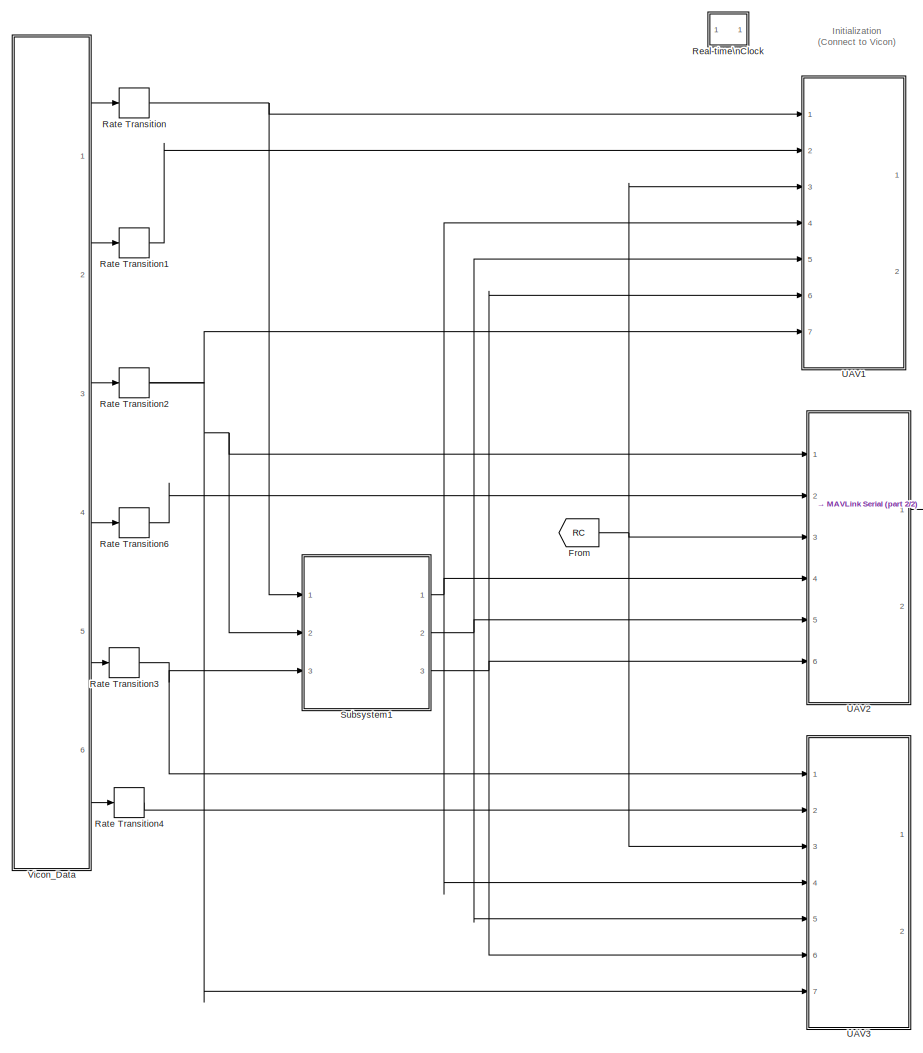
[diagram: root canvas - part 1/2, left side, full height]
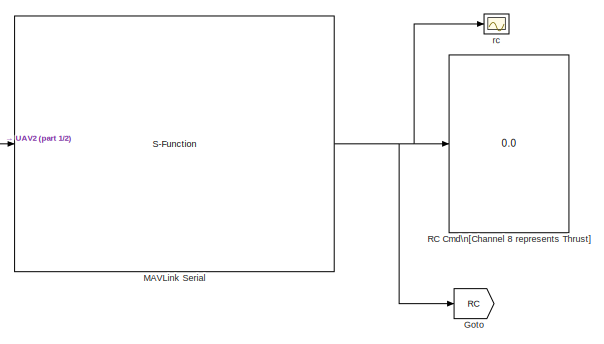
[diagram: root canvas - part 2/2, top right region]
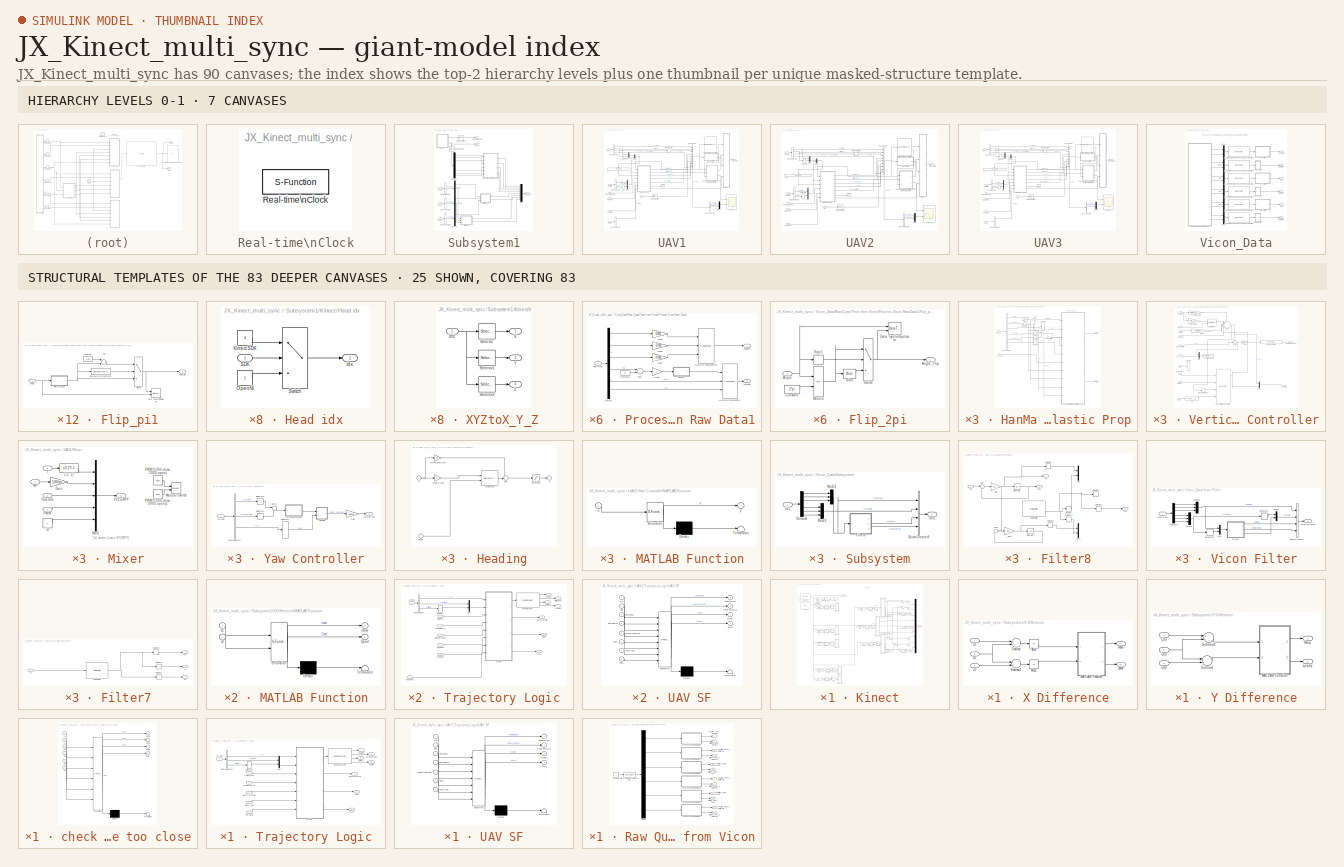
[diagram: thumbnail index - top-2 hierarchy levels (7 canvases) + 25 structural-template representatives of the remaining 83 canvases]
MODEL JX_Kinect_multi_sync
KIND model
CONFIG InitFcn = sample_time=0.005;%0.004;%0.0025;%0.02;\nDeltaT = 0.02;\ng = 9.81;\nH0 = g%0.3165;\nKl = 1;\n\nOmega_r = 1.6;%for Horizontal reference\nZeta_r = 1; %for Horizontal reference\nOmega = 1.8;%for Horizontal Control\nZeta = 0.5;    %for Horizontal Control\n\nOmega_h_r = 2.5; %for vertical reference\nZeta_h_r = 0.8;  %for vertical reference\nOmega_h = 2.7;    %for vertical control\nZeta_h = 0.8;        ...<+569ch>
BLOCK [From] From
  GotoTag = RC
  SID = 4
  TagVisibility = global
BLOCK [Goto] Goto
  GotoTag = RC
  SID = 5
  TagVisibility = global
BLOCK [S-Function] MAVLink Serial
  EnableBusSupport = off
  FunctionName = MAVLink_Interface_MultUAV
  MaskCallbackString = |||||
  MaskDisplay = % Block image\nimage(imread('10-inch Quad Heat Map.png'));\n\n%Label block\nfprintf('MAVLink Serial\\n%s\\n%dbps', COM_Port,  Baud_Rate)\n\n\n%Label input ports\n\nin = 1;\nif (Quad_1 == 1)\n    port_label('input', in, 'Quad 1');\n    in = in + 1;\nend\nif (Quad_2 == 1)\n    port_label('input', in, 'Quad 2');\n    in = in + 1;\nend\n\nif (Quad_3 == 1)\n    port_label('input', in, 'Quad 3');\n    i...<+141ch>
  MaskEnableString = on,on,on,on,on,on
  MaskIconFrame = on
  MaskIconOpaque = off
  MaskIconRotate = none
  MaskIconUnits = autoscale
  MaskInitialization = MSG_ID_NUM_INPUT = [uint8(196) uint8(197) uint8(198)];\nMSG_ID_NAME_INPUT = [Quad_1 Quad_2 Quad_3];\n\nMSG_ID_NUM_OUTPUT = [uint8(34)];\nMSG_ID_NAME_OUTPUT = [RC_SCALED];\n\nidx_input = find(MSG_ID_NAME_INPUT);\nMSG_INPUT = MSG_ID_NUM_INPUT(idx_input);\n\nidx_output = find(MSG_ID_NAME_OUTPUT);\nMSG_OUTPUT = MSG_ID_NUM_OUTPUT(idx_output);
  MaskPortRotate = default
  MaskPromptString = COM Port|Baud Rate|RC CHANNELS SCALED|Quad No 1|Quad No 2|Quad No 3
  MaskStyleString = edit,edit,checkbox,checkbox,checkbox,checkbox
  MaskTabNameString = Setting,Setting,Output Message,Input Message,Input Message,Input Message
  MaskToolTipString = on,on,on,on,on,on
  MaskTunableValueString = on,on,on,on,on,on
  MaskValueString = 'COM6'|57600|on|off|on|off
  MaskVariables = COM_Port=@1;Baud_Rate=@2;RC_SCALED=@3;Quad_1=@4;Quad_2=@5;Quad_3=@6;
  MaskVisibilityString = on,on,on,on,on,on
  Parameters = COM_Port,Baud_Rate,MSG_INPUT,MSG_OUTPUT
  Ports = [1, 1]
  SID = 54
BLOCK [Display] RC Cmd\n[Channel 8 represents Thrust]
  Decimation = 1
  Lockdown = off
  Ports = [1]
  SID = 55
BLOCK [RateTransition] Rate Transition
  OutPortSampleTime = 0.02
  SID = 1518
BLOCK [RateTransition] Rate Transition1
  OutPortSampleTime = 0.02
  SID = 1519
BLOCK [RateTransition] Rate Transition2
  OutPortSampleTime = 0.02
  SID = 1751
BLOCK [RateTransition] Rate Transition3
  OutPortSampleTime = 0.02
  SID = 4017
BLOCK [RateTransition] Rate Transition4
  OutPortSampleTime = 0.02
  SID = 4264
BLOCK [RateTransition] Rate Transition6
  OutPortSampleTime = 0.02
  SID = 3814
BLOCK [SubSystem] Real-time\nClock
  FunctionWithSeparateData = off
  MaskCallbackString = |
  MaskDescription = Real-time Synchronization Block
  MaskDisplay = plot(0,0,100,100,[40,60,60,54,54,64,69,76,82,77,81,83,83,81,78,74,70,64,57,49,41,35,32,30,30,31,34,40,47,47,40,40],[90,90,85,85,80,79,76,87,80,70,64,57,49,41,33,28,24,22,21,23,25,31,37,46,56,65,73,78,80,85,85,90],[69,53,53],[64,50,73])
  MaskEnableString = on,on
  MaskHelp = This block synchronizes simulation time with the PC real-time clock or UNIX system clock. The first dialog entry is the period at which the clock is checked to insure real-time synchronization. The second dialog entry is the number of seconds that the simulation time must be within real-time before a warning is printed.
  MaskHideContents = off
  MaskIconFrame = on
  MaskIconOpaque = on
  MaskIconRotate = none
  MaskIconUnits = autoscale
  MaskPortRotate = default
  MaskPromptString = Synchronize with real-time every n seconds:|Real-time warning tolerance (seconds):
  MaskStyleString = edit,edit
  MaskToolTipString = on,on
  MaskTunableValueString = on,on
  MaskType = Real-time Clock
  MaskValueString = 0.02|1
  MaskVariables = sample_time=@1;tolerance=@2;
  MaskVisibilityString = on,on
  MinAlgLoopOccurrences = off
  Opaque = off
  Ports = []
  PropExecContextOutsideSubsystem = off
  RTWSystemCode = Auto
  RequestExecContextInheritance = off
  SID = 607
  ShowPortLabels = none
BLOCK [S-Function] Real-time\nClock/Real-time\nClock
  EnableBusSupport = off
  FunctionName = rtclock
  Parameters = sample_time, tolerance
  Ports = []
  SID = 608
BLOCK [SubSystem] Subsystem1
  FunctionWithSeparateData = off
  MaskHideContents = off
  MinAlgLoopOccurrences = off
  Opaque = off
  Ports = [3, 3]
  PropExecContextOutsideSubsystem = off
  RTWSystemCode = Auto
  RequestExecContextInheritance = off
  SID = 4082
BLOCK [BusSelector] Subsystem1/Bus\nSelector
  OutputSignals = Position
  Ports = [1, 1]
  SID = 4093
BLOCK [BusSelector] Subsystem1/Bus\nSelector1
  OutputSignals = Position
  Ports = [1, 1]
  SID = 4094
BLOCK [BusSelector] Subsystem1/Bus\nSelector2
  OutputSignals = Position
  Ports = [1, 1]
  SID = 4095
BLOCK [Demux] Subsystem1/Demux
  DisplayOption = bar
  Outputs = 3
  Ports = [1, 3]
  SID = 4096
BLOCK [Demux] Subsystem1/Demux1
  DisplayOption = bar
  Outputs = 3
  Ports = [1, 3]
  SID = 4097
BLOCK [Demux] Subsystem1/Demux2
  DisplayOption = bar
  Outputs = 3
  Ports = [1, 3]
  SID = 4098
BLOCK [Demux] Subsystem1/Demux3
  DisplayOption = bar
  Outputs = 9
  Ports = [1, 9]
  SID = 4099
BLOCK [Outport] Subsystem1/KPos
  IconDisplay = Port number
  Port = 2
  SID = 4103
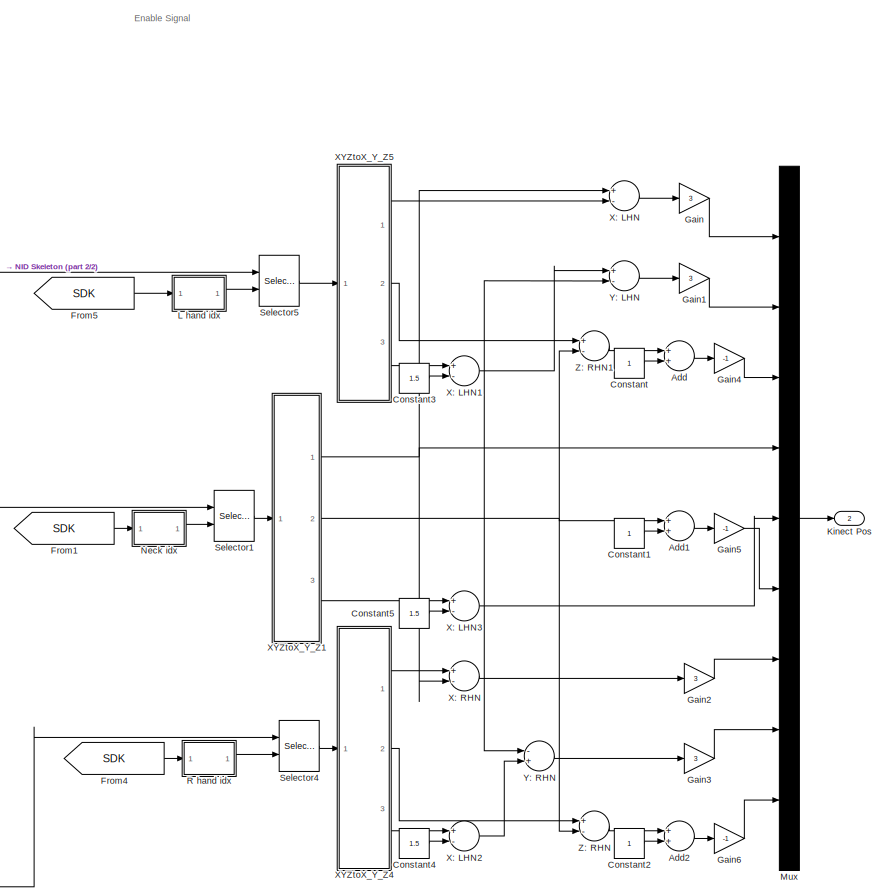
[diagram: Subsystem1/Kinect - part 1/2, middle right region]
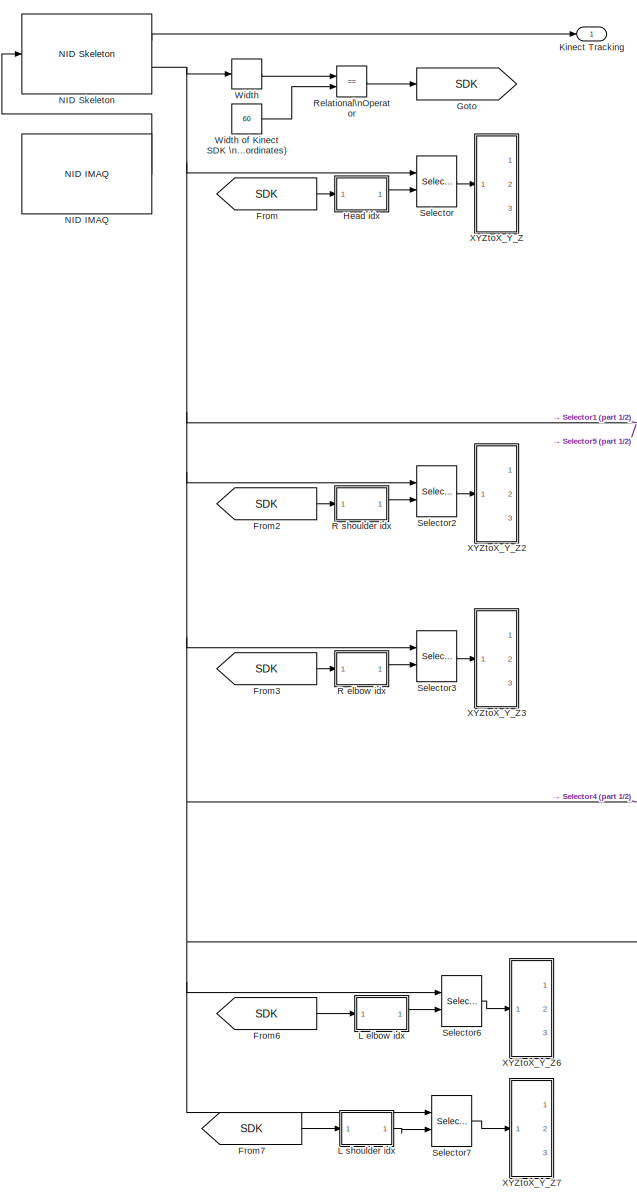
[diagram: Subsystem1/Kinect - part 2/2, left side, full height]
BLOCK [SubSystem] Subsystem1/Kinect
  FunctionWithSeparateData = off
  MaskHideContents = off
  MinAlgLoopOccurrences = off
  Opaque = off
  Ports = [0, 2]
  PropExecContextOutsideSubsystem = off
  RTWSystemCode = Auto
  RequestExecContextInheritance = off
  SID = 2087
BLOCK [Outport] Subsystem1/Kinect Tracking
  IconDisplay = Port number
  SID = 4083
BLOCK [Sum] Subsystem1/Kinect/Add
  InputSameDT = off
  OutDataTypeStr = Inherit: Inherit via internal rule
  Ports = [2, 1]
  SID = 3991
  SaturateOnIntegerOverflow = off
BLOCK [Sum] Subsystem1/Kinect/Add1
  InputSameDT = off
  OutDataTypeStr = Inherit: Inherit via internal rule
  Ports = [2, 1]
  SID = 3993
  SaturateOnIntegerOverflow = off
BLOCK [Sum] Subsystem1/Kinect/Add2
  InputSameDT = off
  OutDataTypeStr = Inherit: Inherit via internal rule
  Ports = [2, 1]
  SID = 3995
  SaturateOnIntegerOverflow = off
BLOCK [Constant] Subsystem1/Kinect/Constant
  SID = 3992
BLOCK [Constant] Subsystem1/Kinect/Constant1
  SID = 3994
BLOCK [Constant] Subsystem1/Kinect/Constant2
  SID = 3996
BLOCK [Constant] Subsystem1/Kinect/Constant3
  SID = 4509
  Value = 1.5
BLOCK [Constant] Subsystem1/Kinect/Constant4
  SID = 4511
  Value = 1.5
BLOCK [Constant] Subsystem1/Kinect/Constant5
  SID = 4513
  Value = 1.5
BLOCK [From] Subsystem1/Kinect/From
  GotoTag = SDK
  SID = 2120
BLOCK [From] Subsystem1/Kinect/From1
  GotoTag = SDK
  SID = 2121
BLOCK [From] Subsystem1/Kinect/From2
  GotoTag = SDK
  SID = 2122
BLOCK [From] Subsystem1/Kinect/From3
  GotoTag = SDK
  SID = 2123
BLOCK [From] Subsystem1/Kinect/From4
  GotoTag = SDK
  SID = 2124
BLOCK [From] Subsystem1/Kinect/From5
  GotoTag = SDK
  SID = 2125
BLOCK [From] Subsystem1/Kinect/From6
  GotoTag = SDK
  SID = 2126
BLOCK [From] Subsystem1/Kinect/From7
  GotoTag = SDK
  SID = 2127
BLOCK [Gain] Subsystem1/Kinect/Gain
  Gain = 3
  OutDataTypeStr = Inherit: Inherit via internal rule
  ParamDataTypeStr = Inherit: Inherit via internal rule
  SID = 4500
  SaturateOnIntegerOverflow = off
BLOCK [Gain] Subsystem1/Kinect/Gain1
  Gain = 3
  OutDataTypeStr = Inherit: Inherit via internal rule
  ParamDataTypeStr = Inherit: Inherit via internal rule
  SID = 4501
  SaturateOnIntegerOverflow = off
BLOCK [Gain] Subsystem1/Kinect/Gain2
  Gain = 3
  OutDataTypeStr = Inherit: Inherit via internal rule
  ParamDataTypeStr = Inherit: Inherit via internal rule
  SID = 4502
  SaturateOnIntegerOverflow = off
BLOCK [Gain] Subsystem1/Kinect/Gain3
  Gain = 3
  OutDataTypeStr = Inherit: Inherit via internal rule
  ParamDataTypeStr = Inherit: Inherit via internal rule
  SID = 4503
  SaturateOnIntegerOverflow = off
BLOCK [Gain] Subsystem1/Kinect/Gain4
  Gain = -1
  OutDataTypeStr = Inherit: Inherit via internal rule
  ParamDataTypeStr = Inherit: Inherit via internal rule
  SID = 4504
  SaturateOnIntegerOverflow = off
BLOCK [Gain] Subsystem1/Kinect/Gain5
  Gain = -1
  OutDataTypeStr = Inherit: Inherit via internal rule
  ParamDataTypeStr = Inherit: Inherit via internal rule
  SID = 4505
  SaturateOnIntegerOverflow = off
BLOCK [Gain] Subsystem1/Kinect/Gain6
  Gain = -1
  OutDataTypeStr = Inherit: Inherit via internal rule
  ParamDataTypeStr = Inherit: Inherit via internal rule
  SID = 4506
  SaturateOnIntegerOverflow = off
BLOCK [Goto] Subsystem1/Kinect/Goto
  GotoTag = SDK
  SID = 2128
  TagVisibility = local
BLOCK [SubSystem] Subsystem1/Kinect/Head idx
  FunctionWithSeparateData = off
  MaskHideContents = off
  MinAlgLoopOccurrences = off
  Opaque = off
  Ports = [1, 1]
  PropExecContextOutsideSubsystem = off
  RTWSystemCode = Auto
  RequestExecContextInheritance = off
  SID = 2173
BLOCK [Outport] Subsystem1/Kinect/Head idx/Idx
  IconDisplay = Port number
  SID = 2178
BLOCK [Constant] Subsystem1/Kinect/Head idx/Kinect SDK
  SID = 2175
  Value = 4
BLOCK [Constant] Subsystem1/Kinect/Head idx/OpenNI
  SID = 2176
BLOCK [Inport] Subsystem1/Kinect/Head idx/SDK
  IconDisplay = Port number
  SID = 2174
BLOCK [Switch] Subsystem1/Kinect/Head idx/Switch
  Criteria = u2 ~= 0
  InputSameDT = off
  SID = 2177
  SaturateOnIntegerOverflow = off
BLOCK [Outport] Subsystem1/Kinect/Kinect Pos
  IconDisplay = Port number
  Port = 2
  SID = 3971
BLOCK [Outport] Subsystem1/Kinect/Kinect Tracking
  IconDisplay = Port number
  SID = 4047
BLOCK [SubSystem] Subsystem1/Kinect/L elbow idx
  FunctionWithSeparateData = off
  MaskHideContents = off
  MinAlgLoopOccurrences = off
  Opaque = off
  Ports = [1, 1]
  PropExecContextOutsideSubsystem = off
  RTWSystemCode = Auto
  RequestExecContextInheritance = off
  SID = 2182
BLOCK [Outport] Subsystem1/Kinect/L elbow idx/Idx
  IconDisplay = Port number
  SID = 2187
BLOCK [Constant] Subsystem1/Kinect/L elbow idx/Kinect SDK
  SID = 2184
  Value = 6
BLOCK [Constant] Subsystem1/Kinect/L elbow idx/OpenNI
  SID = 2185
  Value = 8
BLOCK [Inport] Subsystem1/Kinect/L elbow idx/SDK
  IconDisplay = Port number
  SID = 2183
BLOCK [Switch] Subsystem1/Kinect/L elbow idx/Switch
  Criteria = u2 ~= 0
  InputSameDT = off
  SID = 2186
  SaturateOnIntegerOverflow = off
BLOCK [SubSystem] Subsystem1/Kinect/L hand idx
  FunctionWithSeparateData = off
  MaskHideContents = off
  MinAlgLoopOccurrences = off
  Opaque = off
  Ports = [1, 1]
  PropExecContextOutsideSubsystem = off
  RTWSystemCode = Auto
  RequestExecContextInheritance = off
  SID = 2191
BLOCK [Outport] Subsystem1/Kinect/L hand idx/Idx
  IconDisplay = Port number
  SID = 2196
BLOCK [Constant] Subsystem1/Kinect/L hand idx/Kinect SDK
  SID = 2193
  Value = 8
BLOCK [Constant] Subsystem1/Kinect/L hand idx/OpenNI
  SID = 2194
  Value = 9
BLOCK [Inport] Subsystem1/Kinect/L hand idx/SDK
  IconDisplay = Port number
  SID = 2192
BLOCK [Switch] Subsystem1/Kinect/L hand idx/Switch
  Criteria = u2 ~= 0
  InputSameDT = off
  SID = 2195
  SaturateOnIntegerOverflow = off
BLOCK [SubSystem] Subsystem1/Kinect/L shoulder idx
  FunctionWithSeparateData = off
  MaskHideContents = off
  MinAlgLoopOccurrences = off
  Opaque = off
  Ports = [1, 1]
  PropExecContextOutsideSubsystem = off
  RTWSystemCode = Auto
  RequestExecContextInheritance = off
  SID = 2200
BLOCK [Outport] Subsystem1/Kinect/L shoulder idx/Idx
  IconDisplay = Port number
  SID = 2205
BLOCK [Constant] Subsystem1/Kinect/L shoulder idx/Kinect SDK
  SID = 2202
  Value = 5
BLOCK [Constant] Subsystem1/Kinect/L shoulder idx/OpenNI
  SID = 2203
  Value = 7
BLOCK [Inport] Subsystem1/Kinect/L shoulder idx/SDK
  IconDisplay = Port number
  SID = 2201
BLOCK [Switch] Subsystem1/Kinect/L shoulder idx/Switch
  Criteria = u2 ~= 0
  InputSameDT = off
  SID = 2204
  SaturateOnIntegerOverflow = off
BLOCK [Mux] Subsystem1/Kinect/Mux
  DisplayOption = bar
  Inputs = 9
  Ports = [9, 1]
  SID = 4046
BLOCK [Reference] Subsystem1/Kinect/NID IMAQ  REF=nid_lib/NID IMAQ
  Ports = [0, 1]
  SID = 2207
  SourceBlock = nid_lib/NID IMAQ
  SourceType = NID IMAQ
  angle = 0
  angle_input = off
  angle_read = off
  imaq_depth = off
  imaq_image = off
  imaq_ir = off
  imaq_motion = off
  imaq_sample_time = 1/25
  imaq_skeleton = on
  infer_skeleton = off
  mirror_image = off
  near_mode = off
  needPsiPose = off
  res_fps = VGA (640x480): 30 FPS
  seated_mode = off
  skeleton_smooth = [0.5 0.5 0.5 0.05 0.04]
  view_point = off
BLOCK [Reference] Subsystem1/Kinect/NID Skeleton  REF=nid_lib/NID Skeleton
  Ports = [1, 2]
  SID = 2208
  SourceBlock = nid_lib/NID Skeleton
  SourceType = NID Skeleton
  conv_XYZ_RW = on
  num_of_skeleton_tracking = 1
  viewer = off
BLOCK [SubSystem] Subsystem1/Kinect/Neck idx
  FunctionWithSeparateData = off
  MaskHideContents = off
  MinAlgLoopOccurrences = off
  Opaque = off
  Ports = [1, 1]
  PropExecContextOutsideSubsystem = off
  RTWSystemCode = Auto
  RequestExecContextInheritance = off
  SID = 2213
BLOCK [Outport] Subsystem1/Kinect/Neck idx/Idx
  IconDisplay = Port number
  SID = 2218
BLOCK [Constant] Subsystem1/Kinect/Neck idx/Kinect SDK
  SID = 2215
  Value = 3
BLOCK [Constant] Subsystem1/Kinect/Neck idx/OpenNI
  SID = 2216
  Value = 2
BLOCK [Inport] Subsystem1/Kinect/Neck idx/SDK
  IconDisplay = Port number
  SID = 2214
BLOCK [Switch] Subsystem1/Kinect/Neck idx/Switch
  Criteria = u2 ~= 0
  InputSameDT = off
  SID = 2217
  SaturateOnIntegerOverflow = off
BLOCK [SubSystem] Subsystem1/Kinect/R elbow idx
  FunctionWithSeparateData = off
  MaskHideContents = off
  MinAlgLoopOccurrences = off
  Opaque = off
  Ports = [1, 1]
  PropExecContextOutsideSubsystem = off
  RTWSystemCode = Auto
  RequestExecContextInheritance = off
  SID = 2229
BLOCK [Outport] Subsystem1/Kinect/R elbow idx/Idx
  IconDisplay = Port number
  SID = 2234
BLOCK [Constant] Subsystem1/Kinect/R elbow idx/Kinect SDK
  SID = 2231
  Value = 10
BLOCK [Constant] Subsystem1/Kinect/R elbow idx/OpenNI
  SID = 2232
  Value = 5
BLOCK [Inport] Subsystem1/Kinect/R elbow idx/SDK
  IconDisplay = Port number
  SID = 2230
BLOCK [Switch] Subsystem1/Kinect/R elbow idx/Switch
  Criteria = u2 ~= 0
  InputSameDT = off
  SID = 2233
  SaturateOnIntegerOverflow = off
BLOCK [SubSystem] Subsystem1/Kinect/R hand idx
  FunctionWithSeparateData = off
  MaskHideContents = off
  MinAlgLoopOccurrences = off
  Opaque = off
  Ports = [1, 1]
  PropExecContextOutsideSubsystem = off
  RTWSystemCode = Auto
  RequestExecContextInheritance = off
  SID = 2238
BLOCK [Outport] Subsystem1/Kinect/R hand idx/Idx
  IconDisplay = Port number
  SID = 2243
BLOCK [Constant] Subsystem1/Kinect/R hand idx/Kinect SDK
  SID = 2240
  Value = 12
BLOCK [Constant] Subsystem1/Kinect/R hand idx/OpenNI
  SID = 2241
  Value = 6
BLOCK [Inport] Subsystem1/Kinect/R hand idx/SDK
  IconDisplay = Port number
  SID = 2239
BLOCK [Switch] Subsystem1/Kinect/R hand idx/Switch
  Criteria = u2 ~= 0
  InputSameDT = off
  SID = 2242
  SaturateOnIntegerOverflow = off
BLOCK [SubSystem] Subsystem1/Kinect/R shoulder idx
  FunctionWithSeparateData = off
  MaskHideContents = off
  MinAlgLoopOccurrences = off
  Opaque = off
  Ports = [1, 1]
  PropExecContextOutsideSubsystem = off
  RTWSystemCode = Auto
  RequestExecContextInheritance = off
  SID = 2248
BLOCK [Outport] Subsystem1/Kinect/R shoulder idx/Idx
  IconDisplay = Port number
  SID = 2253
BLOCK [Constant] Subsystem1/Kinect/R shoulder idx/Kinect SDK
  SID = 2250
  Value = 9
BLOCK [Constant] Subsystem1/Kinect/R shoulder idx/OpenNI
  SID = 2251
  Value = 4
BLOCK [Inport] Subsystem1/Kinect/R shoulder idx/SDK
  IconDisplay = Port number
  SID = 2249
BLOCK [Switch] Subsystem1/Kinect/R shoulder idx/Switch
  Criteria = u2 ~= 0
  InputSameDT = off
  SID = 2252
  SaturateOnIntegerOverflow = off
BLOCK [RelationalOperator] Subsystem1/Kinect/Relational\nOperator
  InputSameDT = off
  Operator = ==
  OutDataTypeStr = boolean
  Ports = [2, 1]
  SID = 2254
BLOCK [Selector] Subsystem1/Kinect/Selector
  IndexOptions = Select all,Index vector (port),Select all
  Indices = [1 3],1,1
  InputPortWidth = 3
  NumberOfDimensions = 3
  OutputSizes = 1,1,1
  Ports = [2, 1]
  SID = 2259
BLOCK [Selector] Subsystem1/Kinect/Selector1
  IndexOptions = Select all,Index vector (port),Select all
  Indices = [1 3],1,1
  InputPortWidth = 3
  NumberOfDimensions = 3
  OutputSizes = 1,1,1
  Ports = [2, 1]
  SID = 2260
BLOCK [Selector] Subsystem1/Kinect/Selector2
  IndexOptions = Select all,Index vector (port),Select all
  Indices = [1 3],1,1
  InputPortWidth = 3
  NumberOfDimensions = 3
  OutputSizes = 1,1,1
  Ports = [2, 1]
  SID = 2261
BLOCK [Selector] Subsystem1/Kinect/Selector3
  IndexOptions = Select all,Index vector (port),Select all
  Indices = [1 3],1,1
  InputPortWidth = 3
  NumberOfDimensions = 3
  OutputSizes = 1,1,1
  Ports = [2, 1]
  SID = 2262
BLOCK [Selector] Subsystem1/Kinect/Selector4
  IndexOptions = Select all,Index vector (port),Select all
  Indices = [1 3],1,1
  InputPortWidth = 3
  NumberOfDimensions = 3
  OutputSizes = 1,1,1
  Ports = [2, 1]
  SID = 2263
BLOCK [Selector] Subsystem1/Kinect/Selector5
  IndexOptions = Select all,Index vector (port),Select all
  Indices = [1 3],1,1
  InputPortWidth = 3
  NumberOfDimensions = 3
  OutputSizes = 1,1,1
  Ports = [2, 1]
  SID = 2264
BLOCK [Selector] Subsystem1/Kinect/Selector6
  IndexOptions = Select all,Index vector (port),Select all
  Indices = [1 3],1,1
  InputPortWidth = 3
  NumberOfDimensions = 3
  OutputSizes = 1,1,1
  Ports = [2, 1]
  SID = 2265
BLOCK [Selector] Subsystem1/Kinect/Selector7
  IndexOptions = Select all,Index vector (port),Select all
  Indices = [1 3],1,1
  InputPortWidth = 3
  NumberOfDimensions = 3
  OutputSizes = 1,1,1
  Ports = [2, 1]
  SID = 2266
BLOCK [Width] Subsystem1/Kinect/Width
  SID = 2478
BLOCK [Constant] Subsystem1/Kinect/Width of Kinect SDK \n(20 joints x 3 coordinates)
  SID = 2479
  Value = 60
BLOCK [Sum] Subsystem1/Kinect/X: LHN
  InputSameDT = off
  Inputs = +-
  OutDataTypeStr = Inherit: Inherit via internal rule
  Ports = [2, 1]
  SID = 4494
  SaturateOnIntegerOverflow = off
BLOCK [Sum] Subsystem1/Kinect/X: LHN1
  InputSameDT = off
  Inputs = +-
  OutDataTypeStr = Inherit: Inherit via internal rule
  Ports = [2, 1]
  SID = 4508
  SaturateOnIntegerOverflow = off
BLOCK [Sum] Subsystem1/Kinect/X: LHN2
  InputSameDT = off
  Inputs = +-
  OutDataTypeStr = Inherit: Inherit via internal rule
  Ports = [2, 1]
  SID = 4510
  SaturateOnIntegerOverflow = off
BLOCK [Sum] Subsystem1/Kinect/X: LHN3
  InputSameDT = off
  Inputs = +-
  OutDataTypeStr = Inherit: Inherit via internal rule
  Ports = [2, 1]
  SID = 4512
  SaturateOnIntegerOverflow = off
BLOCK [Sum] Subsystem1/Kinect/X: RHN
  InputSameDT = off
  Inputs = +-
  OutDataTypeStr = Inherit: Inherit via internal rule
  Ports = [2, 1]
  SID = 4495
  SaturateOnIntegerOverflow = off
BLOCK [SubSystem] Subsystem1/Kinect/XYZtoX_Y_Z
  FunctionWithSeparateData = off
  MaskHideContents = off
  MinAlgLoopOccurrences = off
  Opaque = off
  Ports = [1, 3]
  PropExecContextOutsideSubsystem = off
  RTWSystemCode = Auto
  RequestExecContextInheritance = off
  SID = 2480
BLOCK [Selector] Subsystem1/Kinect/XYZtoX_Y_Z/Selector
  IndexOptions = Index vector (dialog),Index vector (dialog),Index vector (dialog)
  Indices = 1,1,1
  InputPortWidth = 3
  NumberOfDimensions = 3
  OutputSizes = 1,1,1
  Ports = [1, 1]
  SID = 2482
BLOCK [Selector] Subsystem1/Kinect/XYZtoX_Y_Z/Selector1
  IndexOptions = Index vector (dialog),Index vector (dialog),Index vector (dialog)
  Indices = 1,1,2
  InputPortWidth = 3
  NumberOfDimensions = 3
  OutputSizes = 1,1,1
  Ports = [1, 1]
  SID = 2483
BLOCK [Selector] Subsystem1/Kinect/XYZtoX_Y_Z/Selector2
  IndexOptions = Index vector (dialog),Index vector (dialog),Index vector (dialog)
  Indices = 1,1,3
  InputPortWidth = 3
  NumberOfDimensions = 3
  OutputSizes = 1,1,1
  Ports = [1, 1]
  SID = 2484
BLOCK [Outport] Subsystem1/Kinect/XYZtoX_Y_Z/X
  IconDisplay = Port number
  SID = 2485
BLOCK [Inport] Subsystem1/Kinect/XYZtoX_Y_Z/XYZ
  IconDisplay = Port number
  SID = 2481
BLOCK [Outport] Subsystem1/Kinect/XYZtoX_Y_Z/Y
  IconDisplay = Port number
  Port = 2
  SID = 2486
BLOCK [Outport] Subsystem1/Kinect/XYZtoX_Y_Z/Z
  IconDisplay = Port number
  Port = 3
  SID = 2487
BLOCK [SubSystem] Subsystem1/Kinect/XYZtoX_Y_Z1
  FunctionWithSeparateData = off
  MaskHideContents = off
  MinAlgLoopOccurrences = off
  Opaque = off
  Ports = [1, 3]
  PropExecContextOutsideSubsystem = off
  RTWSystemCode = Auto
  RequestExecContextInheritance = off
  SID = 2488
BLOCK [Selector] Subsystem1/Kinect/XYZtoX_Y_Z1/Selector
  IndexOptions = Index vector (dialog),Index vector (dialog),Index vector (dialog)
  Indices = 1,1,1
  InputPortWidth = 3
  NumberOfDimensions = 3
  OutputSizes = 1,1,1
  Ports = [1, 1]
  SID = 2490
BLOCK [Selector] Subsystem1/Kinect/XYZtoX_Y_Z1/Selector1
  IndexOptions = Index vector (dialog),Index vector (dialog),Index vector (dialog)
  Indices = 1,1,2
  InputPortWidth = 3
  NumberOfDimensions = 3
  OutputSizes = 1,1,1
  Ports = [1, 1]
  SID = 2491
BLOCK [Selector] Subsystem1/Kinect/XYZtoX_Y_Z1/Selector2
  IndexOptions = Index vector (dialog),Index vector (dialog),Index vector (dialog)
  Indices = 1,1,3
  InputPortWidth = 3
  NumberOfDimensions = 3
  OutputSizes = 1,1,1
  Ports = [1, 1]
  SID = 2492
BLOCK [Outport] Subsystem1/Kinect/XYZtoX_Y_Z1/X
  IconDisplay = Port number
  SID = 2493
BLOCK [Inport] Subsystem1/Kinect/XYZtoX_Y_Z1/XYZ
  IconDisplay = Port number
  SID = 2489
BLOCK [Outport] Subsystem1/Kinect/XYZtoX_Y_Z1/Y
  IconDisplay = Port number
  Port = 2
  SID = 2494
BLOCK [Outport] Subsystem1/Kinect/XYZtoX_Y_Z1/Z
  IconDisplay = Port number
  Port = 3
  SID = 2495
BLOCK [SubSystem] Subsystem1/Kinect/XYZtoX_Y_Z2
  FunctionWithSeparateData = off
  MaskHideContents = off
  MinAlgLoopOccurrences = off
  Opaque = off
  Ports = [1, 3]
  PropExecContextOutsideSubsystem = off
  RTWSystemCode = Auto
  RequestExecContextInheritance = off
  SID = 2496
BLOCK [Selector] Subsystem1/Kinect/XYZtoX_Y_Z2/Selector
  IndexOptions = Index vector (dialog),Index vector (dialog),Index vector (dialog)
  Indices = 1,1,1
  InputPortWidth = 3
  NumberOfDimensions = 3
  OutputSizes = 1,1,1
  Ports = [1, 1]
  SID = 2498
BLOCK [Selector] Subsystem1/Kinect/XYZtoX_Y_Z2/Selector1
  IndexOptions = Index vector (dialog),Index vector (dialog),Index vector (dialog)
  Indices = 1,1,2
  InputPortWidth = 3
  NumberOfDimensions = 3
  OutputSizes = 1,1,1
  Ports = [1, 1]
  SID = 2499
BLOCK [Selector] Subsystem1/Kinect/XYZtoX_Y_Z2/Selector2
  IndexOptions = Index vector (dialog),Index vector (dialog),Index vector (dialog)
  Indices = 1,1,3
  InputPortWidth = 3
  NumberOfDimensions = 3
  OutputSizes = 1,1,1
  Ports = [1, 1]
  SID = 2500
BLOCK [Outport] Subsystem1/Kinect/XYZtoX_Y_Z2/X
  IconDisplay = Port number
  SID = 2501
BLOCK [Inport] Subsystem1/Kinect/XYZtoX_Y_Z2/XYZ
  IconDisplay = Port number
  SID = 2497
BLOCK [Outport] Subsystem1/Kinect/XYZtoX_Y_Z2/Y
  IconDisplay = Port number
  Port = 2
  SID = 2502
BLOCK [Outport] Subsystem1/Kinect/XYZtoX_Y_Z2/Z
  IconDisplay = Port number
  Port = 3
  SID = 2503
BLOCK [SubSystem] Subsystem1/Kinect/XYZtoX_Y_Z3
  FunctionWithSeparateData = off
  MaskHideContents = off
  MinAlgLoopOccurrences = off
  Opaque = off
  Ports = [1, 3]
  PropExecContextOutsideSubsystem = off
  RTWSystemCode = Auto
  RequestExecContextInheritance = off
  SID = 2504
BLOCK [Selector] Subsystem1/Kinect/XYZtoX_Y_Z3/Selector
  IndexOptions = Index vector (dialog),Index vector (dialog),Index vector (dialog)
  Indices = 1,1,1
  InputPortWidth = 3
  NumberOfDimensions = 3
  OutputSizes = 1,1,1
  Ports = [1, 1]
  SID = 2506
BLOCK [Selector] Subsystem1/Kinect/XYZtoX_Y_Z3/Selector1
  IndexOptions = Index vector (dialog),Index vector (dialog),Index vector (dialog)
  Indices = 1,1,2
  InputPortWidth = 3
  NumberOfDimensions = 3
  OutputSizes = 1,1,1
  Ports = [1, 1]
  SID = 2507
BLOCK [Selector] Subsystem1/Kinect/XYZtoX_Y_Z3/Selector2
  IndexOptions = Index vector (dialog),Index vector (dialog),Index vector (dialog)
  Indices = 1,1,3
  InputPortWidth = 3
  NumberOfDimensions = 3
  OutputSizes = 1,1,1
  Ports = [1, 1]
  SID = 2508
BLOCK [Outport] Subsystem1/Kinect/XYZtoX_Y_Z3/X
  IconDisplay = Port number
  SID = 2509
BLOCK [Inport] Subsystem1/Kinect/XYZtoX_Y_Z3/XYZ
  IconDisplay = Port number
  SID = 2505
BLOCK [Outport] Subsystem1/Kinect/XYZtoX_Y_Z3/Y
  IconDisplay = Port number
  Port = 2
  SID = 2510
BLOCK [Outport] Subsystem1/Kinect/XYZtoX_Y_Z3/Z
  IconDisplay = Port number
  Port = 3
  SID = 2511
BLOCK [SubSystem] Subsystem1/Kinect/XYZtoX_Y_Z4
  FunctionWithSeparateData = off
  MaskHideContents = off
  MinAlgLoopOccurrences = off
  Opaque = off
  Ports = [1, 3]
  PropExecContextOutsideSubsystem = off
  RTWSystemCode = Auto
  RequestExecContextInheritance = off
  SID = 2512
BLOCK [Selector] Subsystem1/Kinect/XYZtoX_Y_Z4/Selector
  IndexOptions = Index vector (dialog),Index vector (dialog),Index vector (dialog)
  Indices = 1,1,1
  InputPortWidth = 3
  NumberOfDimensions = 3
  OutputSizes = 1,1,1
  Ports = [1, 1]
  SID = 2514
BLOCK [Selector] Subsystem1/Kinect/XYZtoX_Y_Z4/Selector1
  IndexOptions = Index vector (dialog),Index vector (dialog),Index vector (dialog)
  Indices = 1,1,2
  InputPortWidth = 3
  NumberOfDimensions = 3
  OutputSizes = 1,1,1
  Ports = [1, 1]
  SID = 2515
BLOCK [Selector] Subsystem1/Kinect/XYZtoX_Y_Z4/Selector2
  IndexOptions = Index vector (dialog),Index vector (dialog),Index vector (dialog)
  Indices = 1,1,3
  InputPortWidth = 3
  NumberOfDimensions = 3
  OutputSizes = 1,1,1
  Ports = [1, 1]
  SID = 2516
BLOCK [Outport] Subsystem1/Kinect/XYZtoX_Y_Z4/X
  IconDisplay = Port number
  SID = 2517
BLOCK [Inport] Subsystem1/Kinect/XYZtoX_Y_Z4/XYZ
  IconDisplay = Port number
  SID = 2513
BLOCK [Outport] Subsystem1/Kinect/XYZtoX_Y_Z4/Y
  IconDisplay = Port number
  Port = 2
  SID = 2518
BLOCK [Outport] Subsystem1/Kinect/XYZtoX_Y_Z4/Z
  IconDisplay = Port number
  Port = 3
  SID = 2519
BLOCK [SubSystem] Subsystem1/Kinect/XYZtoX_Y_Z5
  FunctionWithSeparateData = off
  MaskHideContents = off
  MinAlgLoopOccurrences = off
  Opaque = off
  Ports = [1, 3]
  PropExecContextOutsideSubsystem = off
  RTWSystemCode = Auto
  RequestExecContextInheritance = off
  SID = 2520
BLOCK [Selector] Subsystem1/Kinect/XYZtoX_Y_Z5/Selector
  IndexOptions = Index vector (dialog),Index vector (dialog),Index vector (dialog)
  Indices = 1,1,1
  InputPortWidth = 3
  NumberOfDimensions = 3
  OutputSizes = 1,1,1
  Ports = [1, 1]
  SID = 2522
BLOCK [Selector] Subsystem1/Kinect/XYZtoX_Y_Z5/Selector1
  IndexOptions = Index vector (dialog),Index vector (dialog),Index vector (dialog)
  Indices = 1,1,2
  InputPortWidth = 3
  NumberOfDimensions = 3
  OutputSizes = 1,1,1
  Ports = [1, 1]
  SID = 2523
BLOCK [Selector] Subsystem1/Kinect/XYZtoX_Y_Z5/Selector2
  IndexOptions = Index vector (dialog),Index vector (dialog),Index vector (dialog)
  Indices = 1,1,3
  InputPortWidth = 3
  NumberOfDimensions = 3
  OutputSizes = 1,1,1
  Ports = [1, 1]
  SID = 2524
BLOCK [Outport] Subsystem1/Kinect/XYZtoX_Y_Z5/X
  IconDisplay = Port number
  SID = 2525
BLOCK [Inport] Subsystem1/Kinect/XYZtoX_Y_Z5/XYZ
  IconDisplay = Port number
  SID = 2521
BLOCK [Outport] Subsystem1/Kinect/XYZtoX_Y_Z5/Y
  IconDisplay = Port number
  Port = 2
  SID = 2526
BLOCK [Outport] Subsystem1/Kinect/XYZtoX_Y_Z5/Z
  IconDisplay = Port number
  Port = 3
  SID = 2527
BLOCK [SubSystem] Subsystem1/Kinect/XYZtoX_Y_Z6
  FunctionWithSeparateData = off
  MaskHideContents = off
  MinAlgLoopOccurrences = off
  Opaque = off
  Ports = [1, 3]
  PropExecContextOutsideSubsystem = off
  RTWSystemCode = Auto
  RequestExecContextInheritance = off
  SID = 2528
BLOCK [Selector] Subsystem1/Kinect/XYZtoX_Y_Z6/Selector
  IndexOptions = Index vector (dialog),Index vector (dialog),Index vector (dialog)
  Indices = 1,1,1
  InputPortWidth = 3
  NumberOfDimensions = 3
  OutputSizes = 1,1,1
  Ports = [1, 1]
  SID = 2530
BLOCK [Selector] Subsystem1/Kinect/XYZtoX_Y_Z6/Selector1
  IndexOptions = Index vector (dialog),Index vector (dialog),Index vector (dialog)
  Indices = 1,1,2
  InputPortWidth = 3
  NumberOfDimensions = 3
  OutputSizes = 1,1,1
  Ports = [1, 1]
  SID = 2531
BLOCK [Selector] Subsystem1/Kinect/XYZtoX_Y_Z6/Selector2
  IndexOptions = Index vector (dialog),Index vector (dialog),Index vector (dialog)
  Indices = 1,1,3
  InputPortWidth = 3
  NumberOfDimensions = 3
  OutputSizes = 1,1,1
  Ports = [1, 1]
  SID = 2532
BLOCK [Outport] Subsystem1/Kinect/XYZtoX_Y_Z6/X
  IconDisplay = Port number
  SID = 2533
BLOCK [Inport] Subsystem1/Kinect/XYZtoX_Y_Z6/XYZ
  IconDisplay = Port number
  SID = 2529
BLOCK [Outport] Subsystem1/Kinect/XYZtoX_Y_Z6/Y
  IconDisplay = Port number
  Port = 2
  SID = 2534
BLOCK [Outport] Subsystem1/Kinect/XYZtoX_Y_Z6/Z
  IconDisplay = Port number
  Port = 3
  SID = 2535
BLOCK [SubSystem] Subsystem1/Kinect/XYZtoX_Y_Z7
  FunctionWithSeparateData = off
  MaskHideContents = off
  MinAlgLoopOccurrences = off
  Opaque = off
  Ports = [1, 3]
  PropExecContextOutsideSubsystem = off
  RTWSystemCode = Auto
  RequestExecContextInheritance = off
  SID = 2536
BLOCK [Selector] Subsystem1/Kinect/XYZtoX_Y_Z7/Selector
  IndexOptions = Index vector (dialog),Index vector (dialog),Index vector (dialog)
  Indices = 1,1,1
  InputPortWidth = 3
  NumberOfDimensions = 3
  OutputSizes = 1,1,1
  Ports = [1, 1]
  SID = 2538
BLOCK [Selector] Subsystem1/Kinect/XYZtoX_Y_Z7/Selector1
  IndexOptions = Index vector (dialog),Index vector (dialog),Index vector (dialog)
  Indices = 1,1,2
  InputPortWidth = 3
  NumberOfDimensions = 3
  OutputSizes = 1,1,1
  Ports = [1, 1]
  SID = 2539
BLOCK [Selector] Subsystem1/Kinect/XYZtoX_Y_Z7/Selector2
  IndexOptions = Index vector (dialog),Index vector (dialog),Index vector (dialog)
  Indices = 1,1,3
  InputPortWidth = 3
  NumberOfDimensions = 3
  OutputSizes = 1,1,1
  Ports = [1, 1]
  SID = 2540
BLOCK [Outport] Subsystem1/Kinect/XYZtoX_Y_Z7/X
  IconDisplay = Port number
  SID = 2541
BLOCK [Inport] Subsystem1/Kinect/XYZtoX_Y_Z7/XYZ
  IconDisplay = Port number
  SID = 2537
BLOCK [Outport] Subsystem1/Kinect/XYZtoX_Y_Z7/Y
  IconDisplay = Port number
  Port = 2
  SID = 2542
BLOCK [Outport] Subsystem1/Kinect/XYZtoX_Y_Z7/Z
  IconDisplay = Port number
  Port = 3
  SID = 2543
BLOCK [Sum] Subsystem1/Kinect/Y: LHN
  InputSameDT = off
  Inputs = +-
  OutDataTypeStr = Inherit: Inherit via internal rule
  Ports = [2, 1]
  SID = 4497
  SaturateOnIntegerOverflow = off
BLOCK [Sum] Subsystem1/Kinect/Y: RHN
  InputSameDT = off
  Inputs = -+
  OutDataTypeStr = Inherit: Inherit via internal rule
  Ports = [2, 1]
  SID = 4496
  SaturateOnIntegerOverflow = off
BLOCK [Sum] Subsystem1/Kinect/Z: RHN
  InputSameDT = off
  Inputs = +-
  OutDataTypeStr = Inherit: Inherit via internal rule
  Ports = [2, 1]
  SID = 4498
  SaturateOnIntegerOverflow = off
BLOCK [Sum] Subsystem1/Kinect/Z: RHN1
  InputSameDT = off
  Inputs = +-
  OutDataTypeStr = Inherit: Inherit via internal rule
  Ports = [2, 1]
  SID = 4499
  SaturateOnIntegerOverflow = off
BLOCK [Mux] Subsystem1/Mux
  DisplayOption = bar
  Inputs = 8
  Ports = [8, 1]
  SID = 4100
BLOCK [Inport] Subsystem1/Quad1
  IconDisplay = Port number
  SID = 4090
BLOCK [Inport] Subsystem1/Quad2
  IconDisplay = Port number
  Port = 2
  SID = 4091
BLOCK [Inport] Subsystem1/Quad3
  IconDisplay = Port number
  Port = 3
  SID = 4092
BLOCK [RateTransition] Subsystem1/Rate Transition
  SID = 4507
BLOCK [RateTransition] Subsystem1/Rate Transition1
  SID = 4514
BLOCK [Outport] Subsystem1/Too Close
  IconDisplay = Port number
  Port = 3
  SID = 4102
BLOCK [SubSystem] Subsystem1/X Difference
  FunctionWithSeparateData = off
  MaskHideContents = off
  MinAlgLoopOccurrences = off
  Opaque = off
  Ports = [3, 2]
  PropExecContextOutsideSubsystem = off
  RTWSystemCode = Auto
  RequestExecContextInheritance = off
  SID = 4107
BLOCK [Abs] Subsystem1/X Difference/Abs
  SID = 4132
  SaturateOnIntegerOverflow = off
BLOCK [Abs] Subsystem1/X Difference/Abs2
  SID = 4134
  SaturateOnIntegerOverflow = off
BLOCK [SubSystem] Subsystem1/X Difference/MATLAB Function
  ErrorFcn = Stateflow.Translate.translate
  FunctionWithSeparateData = off
  MaskDescription = Embedded MATLAB block
  MaskDisplay = bgColor = Simulink.Root.ColorString2Rgb(get_param(gcbh, 'BackgroundColor')); image(imread('private/eml_membrane_16.png','png','BackgroundColor',bgColor(1:3)),'center'); disp([10 10 'xmax']);
  MaskHideContents = off
  MaskIconFrame = on
  MaskIconOpaque = off
  MaskIconRotate = none
  MaskIconUnits = normalized
  MaskPortRotate = default
  MaskSelfModifiable = on
  MaskType = Stateflow
  MinAlgLoopOccurrences = off
  Opaque = off
  PermitHierarchicalResolution = ExplicitOnly
  Ports = [2, 2]
  PropExecContextOutsideSubsystem = off
  RTWSystemCode = Auto
  RequestExecContextInheritance = off
  SID = 4137
  TreatAsAtomicUnit = on
BLOCK [Demux] Subsystem1/X Difference/MATLAB Function/ Demux 
  Outputs = 1
  Ports = [1, 1]
  SID = 4137::15
BLOCK [S-Function] Subsystem1/X Difference/MATLAB Function/ SFunction 
  EnableBusSupport = on
  FunctionName = sf_sfun
  PortCounts = [2 3]
  Ports = [2, 3]
  SID = 4137::14
  Tag = Stateflow S-Function JX_Kinect_multi_sync 5
BLOCK [Terminator] Subsystem1/X Difference/MATLAB Function/ Terminator 
  SID = 4137::17
BLOCK [Outport] Subsystem1/X Difference/MATLAB Function/Quad
  IconDisplay = Port number
  Port = 2
  SID = 4137::23
BLOCK [Outport] Subsystem1/X Difference/MATLAB Function/maxx
  IconDisplay = Port number
  SID = 4137::5
BLOCK [Inport] Subsystem1/X Difference/MATLAB Function/x1
  IconDisplay = Port number
  SID = 4137::1
BLOCK [Inport] Subsystem1/X Difference/MATLAB Function/x2
  IconDisplay = Port number
  Port = 2
  SID = 4137::18
BLOCK [Outport] Subsystem1/X Difference/Maxx
  IconDisplay = Port number
  SID = 4144
BLOCK [Inport] Subsystem1/X Difference/Q1
  IconDisplay = Port number
  SID = 4108
BLOCK [Inport] Subsystem1/X Difference/Q2
  IconDisplay = Port number
  Port = 2
  SID = 4109
BLOCK [Inport] Subsystem1/X Difference/Q3
  IconDisplay = Port number
  Port = 3
  SID = 4111
BLOCK [Sum] Subsystem1/X Difference/Subtract
  InputSameDT = off
  Inputs = +-
  OutDataTypeStr = Inherit: Inherit via internal rule
  Ports = [2, 1]
  SID = 4104
  SaturateOnIntegerOverflow = off
BLOCK [Sum] Subsystem1/X Difference/Subtract2
  InputSameDT = off
  Inputs = -+
  OutDataTypeStr = Inherit: Inherit via internal rule
  Ports = [2, 1]
  SID = 4106
  SaturateOnIntegerOverflow = off
BLOCK [Outport] Subsystem1/X Difference/quadx
  IconDisplay = Port number
  Port = 2
  SID = 4145
BLOCK [SubSystem] Subsystem1/Y Difference
  FunctionWithSeparateData = off
  MaskHideContents = off
  MinAlgLoopOccurrences = off
  Opaque = off
  Ports = [3, 2]
  PropExecContextOutsideSubsystem = off
  RTWSystemCode = Auto
  RequestExecContextInheritance = off
  SID = 4116
BLOCK [SubSystem] Subsystem1/Y Difference/MATLAB Function
  ErrorFcn = Stateflow.Translate.translate
  FunctionWithSeparateData = off
  MaskDescription = Embedded MATLAB block
  MaskDisplay = bgColor = Simulink.Root.ColorString2Rgb(get_param(gcbh, 'BackgroundColor')); image(imread('private/eml_membrane_16.png','png','BackgroundColor',bgColor(1:3)),'center'); disp([10 10 'xmax']);
  MaskHideContents = off
  MaskIconFrame = on
  MaskIconOpaque = off
  MaskIconRotate = none
  MaskIconUnits = normalized
  MaskPortRotate = default
  MaskSelfModifiable = on
  MaskType = Stateflow
  MinAlgLoopOccurrences = off
  Opaque = off
  PermitHierarchicalResolution = ExplicitOnly
  Ports = [2, 2]
  PropExecContextOutsideSubsystem = off
  RTWSystemCode = Auto
  RequestExecContextInheritance = off
  SID = 4141
  TreatAsAtomicUnit = on
BLOCK [Demux] Subsystem1/Y Difference/MATLAB Function/ Demux 
  Outputs = 1
  Ports = [1, 1]
  SID = 4141::15
BLOCK [S-Function] Subsystem1/Y Difference/MATLAB Function/ SFunction 
  EnableBusSupport = on
  FunctionName = sf_sfun
  PortCounts = [2 3]
  Ports = [2, 3]
  SID = 4141::14
  Tag = Stateflow S-Function JX_Kinect_multi_sync 6
BLOCK [Terminator] Subsystem1/Y Difference/MATLAB Function/ Terminator 
  SID = 4141::17
BLOCK [Outport] Subsystem1/Y Difference/MATLAB Function/maxy
  IconDisplay = Port number
  SID = 4141::5
BLOCK [Outport] Subsystem1/Y Difference/MATLAB Function/quady
  IconDisplay = Port number
  Port = 2
  SID = 4141::23
BLOCK [Inport] Subsystem1/Y Difference/MATLAB Function/y1
  IconDisplay = Port number
  SID = 4141::1
BLOCK [Inport] Subsystem1/Y Difference/MATLAB Function/y2
  IconDisplay = Port number
  Port = 2
  SID = 4141::18
BLOCK [Outport] Subsystem1/Y Difference/Maxy
  IconDisplay = Port number
  SID = 4142
BLOCK [Inport] Subsystem1/Y Difference/Q1y
  IconDisplay = Port number
  SID = 4117
BLOCK [Inport] Subsystem1/Y Difference/Q2y
  IconDisplay = Port number
  Port = 2
  SID = 4120
BLOCK [Inport] Subsystem1/Y Difference/Q3y
  IconDisplay = Port number
  Port = 3
  SID = 4121
BLOCK [Sum] Subsystem1/Y Difference/Subtract
  InputSameDT = off
  Inputs = -+
  OutDataTypeStr = Inherit: Inherit via internal rule
  Ports = [2, 1]
  SID = 4122
  SaturateOnIntegerOverflow = off
BLOCK [Sum] Subsystem1/Y Difference/Subtract2
  InputSameDT = off
  Inputs = +-
  OutDataTypeStr = Inherit: Inherit via internal rule
  Ports = [2, 1]
  SID = 4124
  SaturateOnIntegerOverflow = off
BLOCK [Outport] Subsystem1/Y Difference/quady
  IconDisplay = Port number
  Port = 2
  SID = 4146
BLOCK [SubSystem] Subsystem1/check if quad are too close
  ErrorFcn = Stateflow.Translate.translate
  FunctionWithSeparateData = off
  MaskDescription = Embedded MATLAB block
  MaskDisplay = bgColor = Simulink.Root.ColorString2Rgb(get_param(gcbh, 'BackgroundColor')); image(imread('private/eml_membrane_16.png','png','BackgroundColor',bgColor(1:3)),'center'); disp([10 10 'quad_dist']);
  MaskHideContents = off
  MaskIconFrame = on
  MaskIconOpaque = off
  MaskIconRotate = none
  MaskIconUnits = normalized
  MaskPortRotate = default
  MaskSelfModifiable = on
  MaskType = Stateflow
  MinAlgLoopOccurrences = off
  Opaque = off
  PermitHierarchicalResolution = ExplicitOnly
  Ports = [6, 4]
  PropExecContextOutsideSubsystem = off
  RTWSystemCode = Auto
  RequestExecContextInheritance = off
  SID = 4101
  TreatAsAtomicUnit = on
BLOCK [Demux] Subsystem1/check if quad are too close/ Demux 
  Outputs = 1
  Ports = [1, 1]
  SID = 4101::15
BLOCK [S-Function] Subsystem1/check if quad are too close/ SFunction 
  EnableBusSupport = on
  FunctionName = sf_sfun
  PortCounts = [6 5]
  Ports = [6, 5]
  SID = 4101::14
  Tag = Stateflow S-Function JX_Kinect_multi_sync 7
BLOCK [Terminator] Subsystem1/check if quad are too close/ Terminator 
  SID = 4101::17
BLOCK [Inport] Subsystem1/check if quad are too close/Lx
  IconDisplay = Port number
  SID = 4101::22
BLOCK [Inport] Subsystem1/check if quad are too close/Ly
  IconDisplay = Port number
  Port = 2
  SID = 4101::26
BLOCK [Inport] Subsystem1/check if quad are too close/Lz
  IconDisplay = Port number
  Port = 3
  SID = 4101::18
BLOCK [Outport] Subsystem1/check if quad are too close/Q1Q2
  IconDisplay = Port number
  SID = 4101::5
BLOCK [Outport] Subsystem1/check if quad are too close/Q1Q3
  IconDisplay = Port number
  Port = 2
  SID = 4101::23
BLOCK [Outport] Subsystem1/check if quad are too close/Q2Q3
  IconDisplay = Port number
  Port = 3
  SID = 4101::24
BLOCK [Inport] Subsystem1/check if quad are too close/Rx
  IconDisplay = Port number
  Port = 4
  SID = 4101::21
BLOCK [Inport] Subsystem1/check if quad are too close/Ry
  IconDisplay = Port number
  Port = 5
  SID = 4101::25
BLOCK [Inport] Subsystem1/check if quad are too close/Rz
  IconDisplay = Port number
  Port = 6
  SID = 4101::1
BLOCK [Outport] Subsystem1/check if quad are too close/TQB
  IconDisplay = Port number
  Port = 4
  SID = 4101::43
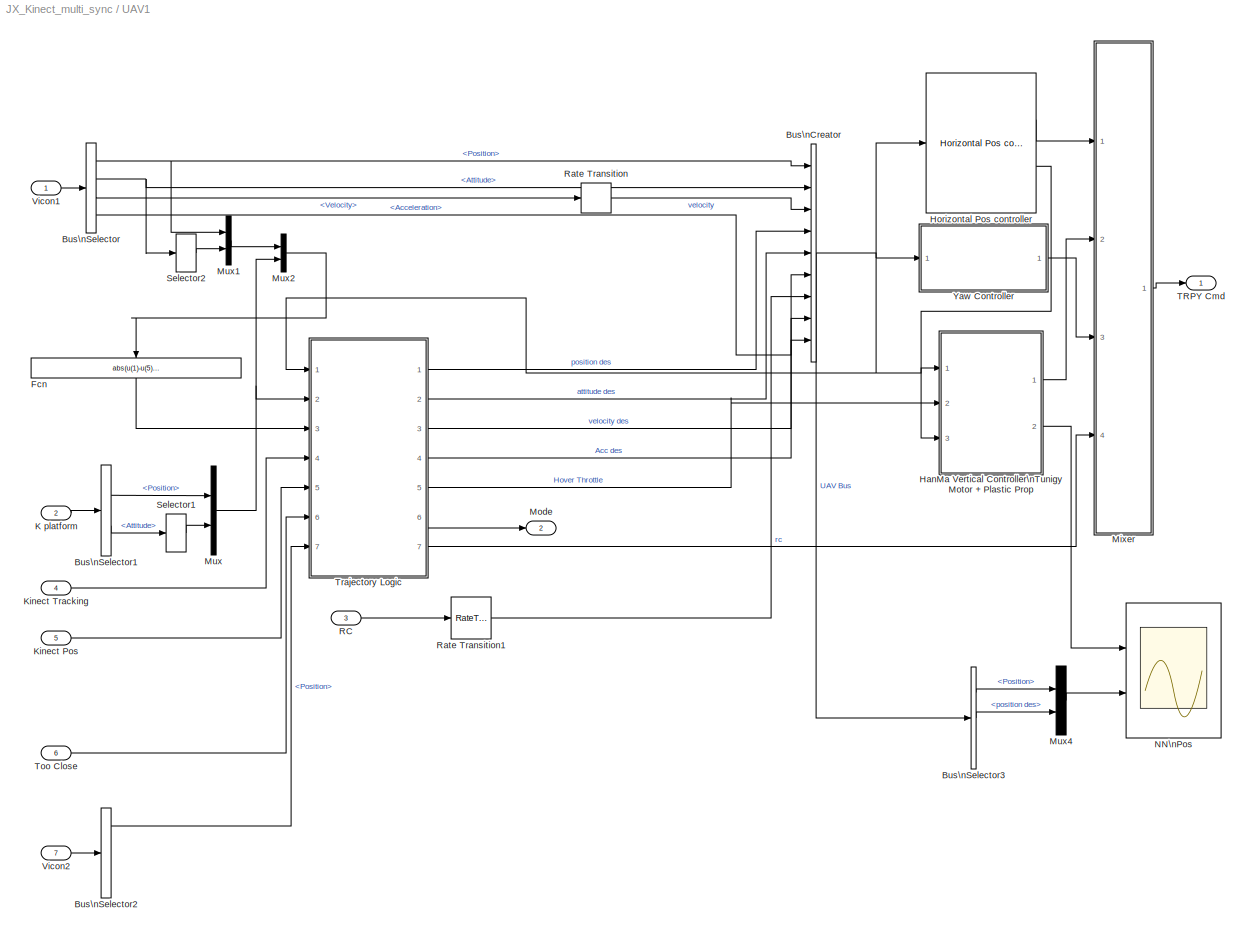
BLOCK [SubSystem] UAV1
  FunctionWithSeparateData = off
  MaskHideContents = off
  MinAlgLoopOccurrences = off
  Opaque = off
  Ports = [7, 2]
  PropExecContextOutsideSubsystem = off
  RTWSystemCode = Auto
  RequestExecContextInheritance = off
  SID = 1084
BLOCK [BusCreator] UAV1/Bus\nCreator
  DisplayOption = bar
  Inputs = 9
  Ports = [9, 1]
  SID = 2
BLOCK [BusSelector] UAV1/Bus\nSelector
  OutputSignals = Position,Attitude,Velocity,Acceleration
  Ports = [1, 4]
  SID = 1083
BLOCK [BusSelector] UAV1/Bus\nSelector1
  OutputSignals = Position,Attitude
  Ports = [1, 2]
  SID = 1508
BLOCK [BusSelector] UAV1/Bus\nSelector2
  OutputSignals = Position,Attitude,Velocity,Acceleration
  Ports = [1, 4]
  SID = 4490
BLOCK [BusSelector] UAV1/Bus\nSelector3
  OutputSignals = Position,position des,Attitude
  Ports = [1, 3]
  SID = 1767
BLOCK [Fcn] UAV1/Fcn
  Expr = abs(u(1)-u(5)) + abs(u(2)-u(6))
  SID = 1515
BLOCK [SubSystem] UAV1/HanMa Vertical Controller\nTunigy Motor + Plastic Prop
  FunctionWithSeparateData = off
  MaskCallbackString = |||
  MaskEnableString = on,on,on,on
  MaskHideContents = off
  MaskIconFrame = on
  MaskIconOpaque = on
  MaskIconRotate = none
  MaskIconUnits = autoscale
  MaskPortRotate = default
  MaskPromptString = Omega (P Gain  = Omega^2)|Zeta (D Gain = 2*Omega*Zeta)|I Gain|Mass
  MaskStyleString = edit,edit,edit,edit
  MaskTabNameString = Control Paramters,Control Paramters,Control Paramters,Mass
  MaskToolTipString = on,on,on,on
  MaskTunableValueString = on,on,on,on
  MaskValueString = Omega_h|Zeta_h|0|0.85
  MaskVariables = Omega_h=@1;Zeta_h=@2;PID_I_h=@3;mass=@4;
  MaskVisibilityString = on,on,on,on
  MinAlgLoopOccurrences = off
  Opaque = off
  Ports = [3, 2]
  PropExecContextOutsideSubsystem = off
  RTWSystemCode = Auto
  RequestExecContextInheritance = off
  SID = 2035
BLOCK [BusSelector] UAV1/HanMa Vertical Controller\nTunigy Motor + Plastic Prop/Bus\nSelector
  OutputSignals = Position,position des,rc,velocity,velocity des,Acc des
  Ports = [1, 6]
  SID = 2039
BLOCK [BusSelector] UAV1/HanMa Vertical Controller\nTunigy Motor + Plastic Prop/Bus\nSelector3
  OutputSignals = rc
  Ports = [1, 1]
  SID = 2040
BLOCK [Inport] UAV1/HanMa Vertical Controller\nTunigy Motor + Plastic Prop/Hover Throttle
  IconDisplay = Port number
  Port = 2
  SID = 2037
BLOCK [Outport] UAV1/HanMa Vertical Controller\nTunigy Motor + Plastic Prop/NN
  IconDisplay = Port number
  Port = 2
  SID = 2082
BLOCK [Selector] UAV1/HanMa Vertical Controller\nTunigy Motor + Plastic Prop/Selector1
  IndexOptions = Index vector (dialog)
  Indices = [3]
  InputPortWidth = 3
  OutputSizes = 1
  Ports = [1, 1]
  SID = 2041
BLOCK [Selector] UAV1/HanMa Vertical Controller\nTunigy Motor + Plastic Prop/Selector3
  IndexOptions = Index vector (dialog)
  Indices = [3]
  InputPortWidth = 3
  OutputSizes = 1
  Ports = [1, 1]
  SID = 2042
BLOCK [Selector] UAV1/HanMa Vertical Controller\nTunigy Motor + Plastic Prop/Selector4
  IndexOptions = Index vector (dialog)
  Indices = [3]
  InputPortWidth = 3
  OutputSizes = 1
  Ports = [1, 1]
  SID = 2043
BLOCK [Selector] UAV1/HanMa Vertical Controller\nTunigy Motor + Plastic Prop/Selector5
  IndexOptions = Index vector (dialog)
  Indices = [3]
  InputPortWidth = 3
  OutputSizes = 1
  Ports = [1, 1]
  SID = 2044
BLOCK [Selector] UAV1/HanMa Vertical Controller\nTunigy Motor + Plastic Prop/Selector6
  IndexOptions = Index vector (dialog)
  Indices = [3]
  InputPortWidth = 4
  OutputSizes = 1
  Ports = [1, 1]
  SID = 2045
BLOCK [Selector] UAV1/HanMa Vertical Controller\nTunigy Motor + Plastic Prop/Selector7
  IndexOptions = Index vector (dialog)
  Indices = [5]
  InputPortWidth = 8
  OutputSizes = 1
  Ports = [1, 1]
  SID = 2046
BLOCK [Sum] UAV1/HanMa Vertical Controller\nTunigy Motor + Plastic Prop/Sum
  IconShape = round
  InputSameDT = off
  Inputs = |-+
  OutDataTypeStr = Inherit: Inherit via internal rule
  Ports = [2, 1]
  SID = 2047
  SaturateOnIntegerOverflow = off
BLOCK [Sum] UAV1/HanMa Vertical Controller\nTunigy Motor + Plastic Prop/Sum1
  IconShape = round
  InputSameDT = off
  Inputs = |-+
  OutDataTypeStr = Inherit: Inherit via internal rule
  Ports = [2, 1]
  SID = 2048
  SaturateOnIntegerOverflow = off
BLOCK [Outport] UAV1/HanMa Vertical Controller\nTunigy Motor + Plastic Prop/T
  IconDisplay = Port number
  SID = 2080
BLOCK [Inport] UAV1/HanMa Vertical Controller\nTunigy Motor + Plastic Prop/UAV bus
  IconDisplay = Port number
  SID = 2036
BLOCK [SubSystem] UAV1/HanMa Vertical Controller\nTunigy Motor + Plastic Prop/Verticall Pos Controller
  FunctionWithSeparateData = off
  MaskHideContents = off
  MinAlgLoopOccurrences = off
  Opaque = off
  Ports = [10, 2]
  PropExecContextOutsideSubsystem = off
  RTWSystemCode = Auto
  RequestExecContextInheritance = off
  SID = 2049
BLOCK [Inport] UAV1/HanMa Vertical Controller\nTunigy Motor + Plastic Prop/Verticall Pos Controller/Acc des
  IconDisplay = Port number
  Port = 5
  SID = 2054
BLOCK [Gain] UAV1/HanMa Vertical Controller\nTunigy Motor + Plastic Prop/Verticall Pos Controller/D Gain
  Gain = 2*Omega_h*Zeta_h
  OutDataTypeStr = double
  ParamDataTypeStr = Inherit: Inherit via internal rule
  SID = 2061
  SaturateOnIntegerOverflow = off
BLOCK [Fcn] UAV1/HanMa Vertical Controller\nTunigy Motor + Plastic Prop/Verticall Pos Controller/Fcn1
  Expr = -0.04*c_y_tilt*u(1)
  SID = 2062
BLOCK [Fcn] UAV1/HanMa Vertical Controller\nTunigy Motor + Plastic Prop/Verticall Pos Controller/Force --> Control
  Expr = -0.0004*(u(1)^2) + 0.0334*u(1) + 0.0717
  SID = 2064
BLOCK [Inport] UAV1/HanMa Vertical Controller\nTunigy Motor + Plastic Prop/Verticall Pos Controller/Height
  IconDisplay = Port number
  Port = 8
  SID = 2057
BLOCK [Inport] UAV1/HanMa Vertical Controller\nTunigy Motor + Plastic Prop/Verticall Pos Controller/Height\nRef
  IconDisplay = Port number
  Port = 7
  SID = 2056
BLOCK [Inport] UAV1/HanMa Vertical Controller\nTunigy Motor + Plastic Prop/Verticall Pos Controller/Hover Throttle
  IconDisplay = Port number
  Port = 4
  SID = 2053
BLOCK [Gain] UAV1/HanMa Vertical Controller\nTunigy Motor + Plastic Prop/Verticall Pos Controller/Integral Gain
  DisableCoverage = on
  Gain = PID_I_h
  OutDataTypeStr = double
  ParamDataTypeStr = double
  SID = 2065
  SaturateOnIntegerOverflow = off
BLOCK [DiscreteIntegrator] UAV1/HanMa Vertical Controller\nTunigy Motor + Plastic Prop/Verticall Pos Controller/Integrator
  DisableCoverage = on
  ExternalReset = rising
  ICPrevOutput = DiscIntNeverNeededParam
  ICPrevScaledInput = DiscIntNeverNeededParam
  InitialConditionMode = State only (most efficient)
  InitialConditionSource = internal
  IntegratorMethod = Integration: Trapezoidal
  LowerSaturationLimit = -0.3
  OutDataTypeStr = double
  Ports = [2, 1]
  SID = 2066
  SampleTime = -1
  UpperSaturationLimit = 0.3
BLOCK [M-S-Function] UAV1/HanMa Vertical Controller\nTunigy Motor + Plastic Prop/Verticall Pos Controller/Level-2 M-file\nS-Function
  FunctionName = msfcn_Adaptive_NN_HeightOnly
  MaskDisplay = fprintf('Output Feedback NN \\n Control Block')
  MaskIconFrame = on
  MaskIconOpaque = on
  MaskIconRotate = none
  MaskIconUnits = autoscale
  MaskPortRotate = default
  Parameters = n,r,n2,NN_ST,GAMA_V,gama_V_e,GAMA_W,gama_W_e,alpha,c_f,c_y_tilt,NN_Deadzone_Z,NN_Z_y_min,NN_Z_y_max,NN_Z_v_min,NN_Z_v_max
  Ports = [4, 4]
  SID = 2067
BLOCK [Gain] UAV1/HanMa Vertical Controller\nTunigy Motor + Plastic Prop/Verticall Pos Controller/Mass
  DisableCoverage = on
  Gain = mass
  OutDataTypeStr = double
  ParamDataTypeStr = double
  SID = 2068
  SaturateOnIntegerOverflow = off
BLOCK [Mux] UAV1/HanMa Vertical Controller\nTunigy Motor + Plastic Prop/Verticall Pos Controller/Mux
  DisplayOption = bar
  Inputs = 2
  Ports = [2, 1]
  SID = 2069
BLOCK [Mux] UAV1/HanMa Vertical Controller\nTunigy Motor + Plastic Prop/Verticall Pos Controller/Mux1
  DisplayOption = bar
  Inputs = 2
  Ports = [2, 1]
  SID = 2070
BLOCK [Outport] UAV1/HanMa Vertical Controller\nTunigy Motor + Plastic Prop/Verticall Pos Controller/NN
  IconDisplay = Port number
  Port = 2
  SID = 2081
BLOCK [Inport] UAV1/HanMa Vertical Controller\nTunigy Motor + Plastic Prop/Verticall Pos Controller/Pos Error
  IconDisplay = Port number
  SID = 2050
BLOCK [Gain] UAV1/HanMa Vertical Controller\nTunigy Motor + Plastic Prop/Verticall Pos Controller/Proportional Gain
  DisableCoverage = on
  Gain = Omega_h^2
  OutDataTypeStr = double
  ParamDataTypeStr = double
  SID = 2071
  SaturateOnIntegerOverflow = off
BLOCK [Inport] UAV1/HanMa Vertical Controller\nTunigy Motor + Plastic Prop/Verticall Pos Controller/RC
  IconDisplay = Port number
  Port = 9
  SID = 2058
BLOCK [Inport] UAV1/HanMa Vertical Controller\nTunigy Motor + Plastic Prop/Verticall Pos Controller/Reset
  IconDisplay = Port number
  Port = 2
  SID = 2051
BLOCK [Selector] UAV1/HanMa Vertical Controller\nTunigy Motor + Plastic Prop/Verticall Pos Controller/Selector7
  IndexOptions = Index vector (dialog)
  Indices = [6]
  InputPortWidth = 8
  OutputSizes = 1
  Ports = [1, 1]
  SID = 2073
BLOCK [Sum] UAV1/HanMa Vertical Controller\nTunigy Motor + Plastic Prop/Verticall Pos Controller/Sum1
  AccumDataTypeStr = double
  DisableCoverage = on
  IconShape = round
  InputSameDT = off
  Inputs = ----+|
  OutDataTypeStr = double
  Ports = [5, 1]
  SID = 2074
  SampleTime = 0.02
  SaturateOnIntegerOverflow = off
BLOCK [Sum] UAV1/HanMa Vertical Controller\nTunigy Motor + Plastic Prop/Verticall Pos Controller/Sum2
  AccumDataTypeStr = double
  DisableCoverage = on
  IconShape = round
  InputSameDT = off
  Inputs = ++|
  OutDataTypeStr = double
  Ports = [2, 1]
  SID = 2075
  SampleTime = 0.02
  SaturateOnIntegerOverflow = off
BLOCK [Outport] UAV1/HanMa Vertical Controller\nTunigy Motor + Plastic Prop/Verticall Pos Controller/T  Commands [0, 1]
  IconDisplay = Port number
  SID = 2079
BLOCK [Fcn] UAV1/HanMa Vertical Controller\nTunigy Motor + Plastic Prop/Verticall Pos Controller/Total Acc des
  Expr = sqrt(u(1)^2+u(2)^2)
  SID = 2077
BLOCK [TransportDelay] UAV1/HanMa Vertical Controller\nTunigy Motor + Plastic Prop/Verticall Pos Controller/Transport\nDelay
  DelayTime = 0.02
  Ports = [1, 1]
  SID = 2078
BLOCK [Inport] UAV1/HanMa Vertical Controller\nTunigy Motor + Plastic Prop/Verticall Pos Controller/Vel
  IconDisplay = Port number
  Port = 10
  SID = 2059
BLOCK [Inport] UAV1/HanMa Vertical Controller\nTunigy Motor + Plastic Prop/Verticall Pos Controller/Vel Error
  IconDisplay = Port number
  Port = 3
  SID = 2052
BLOCK [Inport] UAV1/HanMa Vertical Controller\nTunigy Motor + Plastic Prop/Verticall Pos Controller/XY_Acc_d
  IconDisplay = Port number
  Port = 6
  SID = 2055
BLOCK [Inport] UAV1/HanMa Vertical Controller\nTunigy Motor + Plastic Prop/XY_Acc_d
  IconDisplay = Port number
  Port = 3
  SID = 2038
BLOCK [Reference] UAV1/Horizontal Pos controller  REF=X330_Control/Horizontal Pos controller
  FunctionWithSeparateData = off
  GeneratePreprocessorConditionals = off
  Max_RP = Max_RP
  Omega = Omega
  PID_i = 2
  Ports = [1, 2]
  RTWMemSecDataConstants = Inherit from model
  RTWMemSecDataInternal = Inherit from model
  RTWMemSecDataParameters = Inherit from model
  RTWMemSecFuncExecute = Inherit from model
  RTWMemSecFuncInitTerm = Inherit from model
  SID = 1970
  ShowPortLabels = FromPortIcon
  SourceBlock = X330_Control/Horizontal Pos controller
  SystemSampleTime = -1
  Zeta = Zeta
BLOCK [Inport] UAV1/K platform
  IconDisplay = Port number
  Port = 2
  SID = 1088
BLOCK [Inport] UAV1/Kinect Pos
  IconDisplay = Port number
  Port = 5
  SID = 4081
BLOCK [Inport] UAV1/Kinect Tracking
  IconDisplay = Port number
  Port = 4
  SID = 2721
BLOCK [SubSystem] UAV1/Mixer
  FunctionWithSeparateData = off
  MaskHideContents = off
  MinAlgLoopOccurrences = off
  Opaque = off
  Ports = [4, 1]
  PropExecContextOutsideSubsystem = off
  RTWSystemCode = Auto
  RequestExecContextInheritance = off
  SID = 60
BLOCK [Gain] UAV1/Mixer/Gain
  Gain = 180/pi
  OutDataTypeStr = Inherit: Inherit via internal rule
  ParamDataTypeStr = Inherit: Inherit via internal rule
  SID = 1540
  SaturateOnIntegerOverflow = off
BLOCK [Reference] UAV1/Mixer/Manual Switch  REF=simulink/Signal\nRouting/Manual Switch
  FunctionWithSeparateData = off
  GeneratePreprocessorConditionals = off
  Ports = [2, 1]
  RTWMemSecDataConstants = Inherit from model
  RTWMemSecDataInternal = Inherit from model
  RTWMemSecDataParameters = Inherit from model
  RTWMemSecFuncExecute = Inherit from model
  RTWMemSecFuncInitTerm = Inherit from model
  SID = 1434
  ShowPortLabels = FromPortIcon
  SourceBlock = simulink/Signal\nRouting/Manual Switch
  SourceType = Manual Switch
  SystemSampleTime = -1
  action = 0
  sw = 1
  varsize = off
BLOCK [Mux] UAV1/Mixer/Mux1
  DisplayOption = bar
  Inputs = 5
  Ports = [5, 1]
  SID = 64
BLOCK [Inport] UAV1/Mixer/PWM
  IconDisplay = Port number
  Port = 4
  SID = 1437
BLOCK [Constant] UAV1/Mixer/PWM (1000-close; 2000-open)
  SID = 621
  SampleTime = 0.02
  Value = 1600
BLOCK [Constant] UAV1/Mixer/PWM (1000-close; 2000-open)1
  SID = 1435
  SampleTime = 0.02
  Value = 1200
BLOCK [Inport] UAV1/Mixer/RP
  IconDisplay = Port number
  SID = 61
BLOCK [Inport] UAV1/Mixer/T
  IconDisplay = Port number
  Port = 2
  SID = 62
BLOCK [Outport] UAV1/Mixer/XYZ\nRPY
  IconDisplay = Port number
  SID = 68
BLOCK [Inport] UAV1/Mixer/Yaw rate
  IconDisplay = Port number
  Port = 3
  SID = 63
BLOCK [Fcn] UAV1/Mixer/[-1, 1]
  Expr = u(1)*2-1
  SID = 1612
BLOCK [Constant] UAV1/Mixer/id
  SID = 67
  SampleTime = 0.02
BLOCK [Outport] UAV1/Mode
  IconDisplay = Port number
  Port = 2
  SID = 1089
BLOCK [Mux] UAV1/Mux
  DisplayOption = bar
  Inputs = 2
  Ports = [2, 1]
  SID = 1509
BLOCK [Mux] UAV1/Mux1
  DisplayOption = bar
  Inputs = 2
  Ports = [2, 1]
  SID = 1512
BLOCK [Mux] UAV1/Mux2
  DisplayOption = bar
  Inputs = 2
  Ports = [2, 1]
  SID = 1514
BLOCK [Mux] UAV1/Mux4
  DisplayOption = bar
  Inputs = 2
  Ports = [2, 1]
  SID = 1768
BLOCK [Scope] UAV1/NN\nPos
  DataFormat = StructureWithTime
  Floating = off
  LimitDataPoints = off
  NumInputPorts = 2
  Ports = [2]
  SID = 2083
  SampleTime = 0
  SaveName = ScopeData3
  TimeRange = 90
  YMax = 10~2
  YMin = -5~-2
BLOCK [Inport] UAV1/RC
  IconDisplay = Port number
  Port = 3
  SID = 1090
BLOCK [RateTransition] UAV1/Rate Transition
  OutPortSampleTime = 0.02
  SID = 56
BLOCK [RateTransition] UAV1/Rate Transition1
  OutPortSampleTime = 0.02
  SID = 57
BLOCK [Selector] UAV1/Selector1
  IndexOptions = Index vector (dialog)
  Indices = [3]
  InputPortWidth = 3
  OutputSizes = 1
  Ports = [1, 1]
  SID = 1510
BLOCK [Selector] UAV1/Selector2
  IndexOptions = Index vector (dialog)
  Indices = [3]
  InputPortWidth = 3
  OutputSizes = 1
  Ports = [1, 1]
  SID = 1513
BLOCK [Outport] UAV1/TRPY Cmd
  IconDisplay = Port number
  SID = 1086
BLOCK [Inport] UAV1/Too Close
  IconDisplay = Port number
  Port = 6
  SID = 4077
BLOCK [SubSystem] UAV1/Trajectory Logic
  FunctionWithSeparateData = off
  MaskHideContents = off
  MinAlgLoopOccurrences = off
  Opaque = off
  Ports = [7, 7]
  PropExecContextOutsideSubsystem = off
  RTWSystemCode = Auto
  RequestExecContextInheritance = off
  SID = 573
BLOCK [Outport] UAV1/Trajectory Logic/AccRef
  IconDisplay = Port number
  Port = 4
  SID = 577
BLOCK [BusSelector] UAV1/Trajectory Logic/Bus\nSelector
  OutputSignals = rc,Position,Attitude
  Ports = [1, 3]
  SID = 583
BLOCK [Outport] UAV1/Trajectory Logic/HoverThrottle
  IconDisplay = Port number
  Port = 5
  SID = 579
BLOCK [Inport] UAV1/Trajectory Logic/K platform
  IconDisplay = Port number
  Port = 2
  SID = 580
BLOCK [Inport] UAV1/Trajectory Logic/Kinect Pos
  IconDisplay = Port number
  Port = 5
  SID = 4080
BLOCK [Inport] UAV1/Trajectory Logic/Kinect Tracking
  IconDisplay = Port number
  Port = 4
  SID = 2720
BLOCK [Inport] UAV1/Trajectory Logic/Landing Error
  IconDisplay = Port number
  Port = 3
  SID = 1517
BLOCK [Outport] UAV1/Trajectory Logic/Mode
  IconDisplay = Port number
  Port = 6
  SID = 581
BLOCK [Mux] UAV1/Trajectory Logic/Mux
  DisplayOption = bar
  Inputs = 2
  Ports = [2, 1]
  SID = 593
BLOCK [Outport] UAV1/Trajectory Logic/PWM
  IconDisplay = Port number
  Port = 7
  SID = 1436
BLOCK [Outport] UAV1/Trajectory Logic/PosRef
  IconDisplay = Port number
  SID = 574
BLOCK [Reference] UAV1/Trajectory Logic/PosRefSystem  REF=X330_Control/PosRefSystem
  Acc_Max = Acc_Max
  Acc_h_Max = Acc_Max_h
  FunctionWithSeparateData = off
  GeneratePreprocessorConditionals = off
  Omega_h_r = Omega_h_r
  Omega_r = Omega_r
  Ports = [1, 4]
  RTWMemSecDataConstants = Inherit from model
  RTWMemSecDataInternal = Inherit from model
  RTWMemSecDataParameters = Inherit from model
  RTWMemSecFuncExecute = Inherit from model
  RTWMemSecFuncInitTerm = Inherit from model
  SID = 2019
  ShowPortLabels = FromPortIcon
  SourceBlock = X330_Control/PosRefSystem
  SystemSampleTime = -1
  Zeta_h_r = Zeta_h_r
  Zeta_r = Zeta_r
BLOCK [Selector] UAV1/Trajectory Logic/Selector1
  IndexOptions = Index vector (dialog)
  Indices = [3]
  InputPortWidth = 3
  OutputSizes = 1
  Ports = [1, 1]
  SID = 592
BLOCK [Inport] UAV1/Trajectory Logic/Too Close
  IconDisplay = Port number
  Port = 6
  SID = 4079
BLOCK [Inport] UAV1/Trajectory Logic/UAV Bus
  IconDisplay = Port number
  SID = 582
BLOCK [SubSystem] UAV1/Trajectory Logic/UAV SF
  ErrorFcn = Stateflow.Translate.translate
  FunctionWithSeparateData = off
  MaskDescription = Stateflow diagram
  MaskDisplay = plot(sf('Private','sfblk','xIcon'),sf('Private','sfblk','yIcon'));text(0.5,0,sf('Private', 'sfblk', 'tIcon'),'HorizontalAl','Center','VerticalAl','Bottom');
  MaskHideContents = off
  MaskIconFrame = off
  MaskIconOpaque = off
  MaskIconRotate = none
  MaskIconUnits = autoscale
  MaskPortRotate = default
  MaskSelfModifiable = on
  MaskType = Stateflow
  MinAlgLoopOccurrences = off
  Opaque = off
  PermitHierarchicalResolution = ExplicitOnly
  Ports = [8, 4]
  PropExecContextOutsideSubsystem = off
  RTWSystemCode = Auto
  RequestExecContextInheritance = off
  SID = 572
  TreatAsAtomicUnit = on
BLOCK [Demux] UAV1/Trajectory Logic/UAV SF/ Demux 
  Outputs = 1
  Ports = [1, 1]
  SID = 572::8
BLOCK [S-Function] UAV1/Trajectory Logic/UAV SF/ SFunction 
  EnableBusSupport = on
  FunctionName = sf_sfun
  Parameters = DeltaT,H0,Kl,PI
  PortCounts = [8 5]
  Ports = [8, 5]
  SID = 572::7
  Tag = Stateflow S-Function JX_Kinect_multi_sync 3
BLOCK [Terminator] UAV1/Trajectory Logic/UAV SF/ Terminator 
  SID = 572::107
BLOCK [Outport] UAV1/Trajectory Logic/UAV SF/HoverThrottle
  IconDisplay = Port number
  Port = 2
  SID = 572::17
BLOCK [Inport] UAV1/Trajectory Logic/UAV SF/KPos
  IconDisplay = Port number
  Port = 6
  SID = 572::98
BLOCK [Inport] UAV1/Trajectory Logic/UAV SF/KinectTracking
  IconDisplay = Port number
  Port = 5
  SID = 572::99
BLOCK [Outport] UAV1/Trajectory Logic/UAV SF/Mode
  IconDisplay = Port number
  Port = 3
  SID = 572::18
BLOCK [Outport] UAV1/Trajectory Logic/UAV SF/PWM
  IconDisplay = Port number
  Port = 4
  SID = 572::35
BLOCK [Inport] UAV1/Trajectory Logic/UAV SF/PerchError
  IconDisplay = Port number
  Port = 4
  SID = 572::36
BLOCK [Inport] UAV1/Trajectory Logic/UAV SF/PerchPos
  IconDisplay = Port number
  Port = 3
  SID = 572::23
BLOCK [Inport] UAV1/Trajectory Logic/UAV SF/Pos
  IconDisplay = Port number
  Port = 2
  SID = 572::20
BLOCK [Inport] UAV1/Trajectory Logic/UAV SF/Pos2
  IconDisplay = Port number
  Port = 8
  SID = 572::108
BLOCK [Outport] UAV1/Trajectory Logic/UAV SF/PosDesired
  IconDisplay = Port number
  SID = 572::16
BLOCK [Inport] UAV1/Trajectory Logic/UAV SF/RC
  IconDisplay = Port number
  SID = 572::70
BLOCK [Inport] UAV1/Trajectory Logic/UAV SF/TooClose
  IconDisplay = Port number
  Port = 7
  SID = 572::100
BLOCK [Outport] UAV1/Trajectory Logic/VelRef
  IconDisplay = Port number
  Port = 3
  SID = 575
BLOCK [Inport] UAV1/Trajectory Logic/Vicon2Pos
  IconDisplay = Port number
  Port = 7
  SID = 4492
BLOCK [Outport] UAV1/Trajectory Logic/attitude des
  IconDisplay = Port number
  Port = 2
  SID = 591
BLOCK [Inport] UAV1/Vicon1
  IconDisplay = Port number
  SID = 1085
BLOCK [Inport] UAV1/Vicon2
  IconDisplay = Port number
  Port = 7
  SID = 4491
BLOCK [SubSystem] UAV1/Yaw Controller
  FunctionWithSeparateData = off
  MaskHideContents = off
  MinAlgLoopOccurrences = off
  Opaque = off
  Ports = [1, 1]
  PropExecContextOutsideSubsystem = off
  RTWSystemCode = Auto
  RequestExecContextInheritance = off
  SID = 328
BLOCK [BusSelector] UAV1/Yaw Controller/Bus\nSelector1
  OutputSignals = Attitude,attitude des,rc
  Ports = [1, 3]
  SID = 330
BLOCK [Gain] UAV1/Yaw Controller/Gain
  Gain = 180/pi
  OutDataTypeStr = Inherit: Inherit via internal rule
  ParamDataTypeStr = Inherit: Inherit via internal rule
  SID = 333
  SaturateOnIntegerOverflow = off
BLOCK [SubSystem] UAV1/Yaw Controller/Heading
  AncestorBlock = simulink/Continuous/PID Controller
  DeleteFcn = pidpack.PIDConfig.closeTuner(gcbh)
  DialogController = pidpack.PIDConfig.pidDDGCreate
  DialogControllerArgs = DataTag0
  FunctionWithSeparateData = off
  MaskCallbackString = |||||||||||||||||||||||||||||||||||||||||||||||||||||||||||||||||||||||||||||||||||||||||||||||||||||
  MaskCapabilities = slmaskedcaps(gcbh)
  MaskDescription = This block implements continuous- and discrete-time PID control algorithms and includes advanced features such as anti-windup, external reset, and signal tracking. You can tune the PID gains automatically using the 'Tune...' button (requires Simulink Control Design).  <repeated x3 — deduplicated; at blocks: Heading>
  MaskDisplay = disp('PI(z)')\nport_label('input',1, '');\nport_label('output',1, '');plot([0 4 4 7]+2,[0 0 8 8]+8);\nplot([1 4 6]+2,[3 6 3]+8);\nplot([0 4 6 10]+32,[0 0 8 8]+18);\n
  MaskEnableString = on,on,on,on,on,on,on,on,on,on,on,on,on,on,on,on,on,off,off,off,off,off,on,off,on,on,on,on,on,on,on,on,on,on,on,on,on,on,on,on,on,on,on,on,on,on,on,on,on,on,on,on,on,on,on,on,on,on,on,on,on,on,on,on,on,on,on,on,on,on,on,on,on,on,on,on,on,on,on,on,on,on,on,on,on,on,on,on,on,on,on,on,on,on,off,off,off,on,on,off,off,off  <repeated x3 — deduplicated; at blocks: Heading>
  MaskHideContents = off
  MaskIconFrame = on
  MaskIconOpaque = on
  MaskIconRotate = none
  MaskIconUnits = pixels
  MaskInitialization = pidpack.PIDConfig.configPID(gcbh);
  MaskPortRotate = default
  MaskPromptString = Controller:|Time domain:|Sample time (-1 for inherited):|Integrator method:|Filter method:|Form:|Proportional (P):|Integral (I):|Derivative (D):|Filter coefficient (N):|Source:|Integrator:|Filter:|External reset:|Ignore reset when linearizing|Enable zero-crossing detection|Limit output|Upper saturation limit:|Lower saturation limit:|Ignore saturation when linearizing|Anti-windup method:|Back-calcu...<+1875ch>  <repeated x3 — deduplicated; at blocks: Heading>
  MaskRunInitForIconRedraw = on
  MaskSelfModifiable = on
  MaskStyleString = popup(PID|PI|PD|P|I),popup(Continuous-time|Discrete-time),edit,popup(Forward Euler|Backward Euler|Trapezoidal),popup(Forward Euler|Backward Euler|Trapezoidal),popup(Ideal|Parallel),edit,edit,edit,edit,popup(internal|external),edit,edit,popup(none|rising|falling|either|level),checkbox,checkbox,checkbox,edit,edit,checkbox,popup(none|back-calculation|clamping),edit,checkbox,edit,popup(Ceiling|Converg...<+6354ch>  <repeated x3 — deduplicated; at blocks: Heading>
  MaskToolTipString = on,on,on,on,on,on,on,on,on,on,on,on,on,on,on,on,on,on,on,on,on,on,on,on,on,on,on,on,on,on,on,on,on,on,on,on,on,on,on,on,on,on,on,on,on,on,on,on,on,on,on,on,on,on,on,on,on,on,on,on,on,on,on,on,on,on,on,on,on,on,on,on,on,on,on,on,on,on,on,on,on,on,on,on,on,on,on,on,on,on,on,on,on,on,on,on,on,on,on,on,on,on  <repeated x3 — deduplicated; at blocks: Heading>
  MaskTunableValueString = off,off,off,off,off,off,on,on,on,on,off,off,off,off,off,off,off,off,off,off,off,on,off,on,off,off,off,off,off,off,off,off,off,off,off,off,off,off,off,off,off,off,off,off,off,off,off,off,off,off,off,off,off,off,off,off,off,off,off,off,off,off,off,off,off,off,off,off,off,off,off,off,off,off,off,off,off,off,off,off,off,off,off,off,off,off,off,off,off,off,off,off,off,off,off,off,off,off,off,off,off,of...<+1ch>  <repeated x3 — deduplicated; at blocks: Heading>
  MaskType = PID 1dof
  MaskValueString = PI|Discrete-time|0.02|Trapezoidal|Trapezoidal|Parallel|3|1|0|100|internal|0|0|rising|off|on|on|300*pi/180|-300*pi/180|off|none|1|off|1|Floor|off|off|[]|[]|Inherit: Inherit via internal rule|[]|[]|Inherit: Inherit via internal rule|[]|[]|Inherit: Inherit via internal rule|[]|[]|Inherit: Inherit via internal rule|[]|[]|Inherit: Inherit via internal rule|[]|[]|Inherit: Inherit via internal rule|[]|[]...<+759ch>  <repeated x3 — deduplicated; at blocks: Heading>
  MaskVariables = Controller=&1;TimeDomain=&2;SampleTime=@3;IntegratorMethod=&4;FilterMethod=&5;Form=&6;P=@7;I=@8;D=@9;N=@10;InitialConditionSource=&11;InitialConditionForIntegrator=@12;InitialConditionForFilter=@13;ExternalReset=&14;IgnoreLimit=&15;ZeroCross=&16;LimitOutput=&17;UpperSaturationLimit=@18;LowerSaturationLimit=@19;LinearizeAsGain=&20;AntiWindupMode=&21;Kb=@22;TrackingMode=&23;Kt=@24;RndMeth=&25;Satura...<+1582ch>  <repeated x3 — deduplicated; at blocks: Heading>
  MaskVisibilityString = on,on,off,off,off,on,on,on,on,on,on,on,on,on,on,on,on,on,on,on,on,off,on,on,on,on,on,on,on,on,on,on,on,on,on,on,on,on,on,off,off,off,off,off,off,on,on,on,on,on,on,on,on,on,on,on,on,off,off,off,off,off,off,off,off,off,off,off,off,on,on,on,off,off,off,off,off,off,off,off,off,on,on,on,on,off,off,off,on,off,off,off,on,off,off,off,off,on,off,off,off,off  <repeated x3 — deduplicated; at blocks: Heading>
  MinAlgLoopOccurrences = off
  ModelCloseFcn = pidpack.PIDConfig.closeTuner(gcbh)
  NameChangeFcn = pidpack.PIDConfig.updateTunerName(gcbh)
  Opaque = off
  Ports = [2, 1]
  PropExecContextOutsideSubsystem = off
  RTWSystemCode = Auto
  RequestExecContextInheritance = off
  SID = 334
BLOCK [Gain] UAV1/Yaw Controller/Heading/Integral Gain
  DisableCoverage = on
  Gain = I
  OutDataTypeStr = IOutDataTypeStr
  OutMax = IOutMax
  OutMin = IOutMin
  ParamDataTypeStr = IParamDataTypeStr
  ParamMax = IParamMax
  ParamMin = IParamMin
  SID = 334:1680
  SaturateOnIntegerOverflow = off
BLOCK [DiscreteIntegrator] UAV1/Yaw Controller/Heading/Integrator
  DisableCoverage = on
  ExternalReset = rising
  ICPrevOutput = DiscIntNeverNeededParam
  ICPrevScaledInput = DiscIntNeverNeededParam
  InitialCondition = InitialConditionForIntegrator
  InitialConditionMode = State only (most efficient)
  InitialConditionSource = internal
  IntegratorMethod = Integration: Trapezoidal
  OutDataTypeStr = IntegratorOutDataTypeStr
  OutMax = IntegratorOutMax
  OutMin = IntegratorOutMin
  Ports = [2, 1]
  SID = 334:1681
  SampleTime = -1
BLOCK [Gain] UAV1/Yaw Controller/Heading/Proportional Gain
  DisableCoverage = on
  Gain = P
  OutDataTypeStr = POutDataTypeStr
  OutMax = POutMax
  OutMin = POutMin
  ParamDataTypeStr = PParamDataTypeStr
  ParamMax = PParamMax
  ParamMin = PParamMin
  SID = 334:1679
  SaturateOnIntegerOverflow = off
BLOCK [Inport] UAV1/Yaw Controller/Heading/RESET
  IconDisplay = Port number
  Port = 2
  SID = 334:1677
  SampleTime = SampleTime
BLOCK [Saturate] UAV1/Yaw Controller/Heading/Saturation
  InputPortMap = u0
  LinearizeAsGain = off
  LowerLimit = LowerSaturationLimit
  OutDataTypeStr = SaturationOutDataTypeStr
  OutMax = SaturationOutMax
  OutMin = SaturationOutMin
  Ports = [1, 1]
  SID = 334:1682
  UpperLimit = UpperSaturationLimit
BLOCK [Sum] UAV1/Yaw Controller/Heading/Sum
  AccumDataTypeStr = SumAccumDataTypeStr
  DisableCoverage = on
  IconShape = round
  InputSameDT = off
  Inputs = ++|
  OutDataTypeStr = SumOutDataTypeStr
  OutMax = SumOutMax
  OutMin = SumOutMin
  Ports = [2, 1]
  SID = 334:1678
  SaturateOnIntegerOverflow = off
BLOCK [Inport] UAV1/Yaw Controller/Heading/u
  IconDisplay = Port number
  SID = 334:1
  SampleTime = SampleTime
BLOCK [Outport] UAV1/Yaw Controller/Heading/y
  IconDisplay = Port number
  InitialOutput = 0
  SID = 334:10
BLOCK [SubSystem] UAV1/Yaw Controller/MATLAB Function
  ErrorFcn = Stateflow.Translate.translate
  FunctionWithSeparateData = off
  MaskDescription = Embedded MATLAB block
  MaskDisplay = bgColor = Simulink.Root.ColorString2Rgb(get_param(gcbh, 'BackgroundColor')); image(imread('private/eml_membrane_16.png','png','BackgroundColor',bgColor(1:3)),'center'); disp([10 10 'fcn']);  <repeated x3 — deduplicated; at blocks: MATLAB Function>
  MaskHideContents = off
  MaskIconFrame = on
  MaskIconOpaque = off
  MaskIconRotate = none
  MaskIconUnits = normalized
  MaskPortRotate = default
  MaskSelfModifiable = on
  MaskType = Stateflow
  MinAlgLoopOccurrences = off
  Opaque = off
  PermitHierarchicalResolution = ExplicitOnly
  Ports = [1, 1]
  PropExecContextOutsideSubsystem = off
  RTWSystemCode = Auto
  RequestExecContextInheritance = off
  SID = 335
  TreatAsAtomicUnit = on
BLOCK [Demux] UAV1/Yaw Controller/MATLAB Function/ Demux 
  Outputs = 1
  Ports = [1, 1]
  SID = 335::15
BLOCK [S-Function] UAV1/Yaw Controller/MATLAB Function/ SFunction 
  EnableBusSupport = on
  FunctionName = sf_sfun
  PortCounts = [1 2]
  Ports = [1, 2]
  SID = 335::14
  Tag = Stateflow S-Function JX_Kinect_multi_sync 1
BLOCK [Terminator] UAV1/Yaw Controller/MATLAB Function/ Terminator 
  SID = 335::17
BLOCK [Inport] UAV1/Yaw Controller/MATLAB Function/u
  IconDisplay = Port number
  SID = 335::1
BLOCK [Outport] UAV1/Yaw Controller/MATLAB Function/y
  IconDisplay = Port number
  SID = 335::5
BLOCK [Selector] UAV1/Yaw Controller/Selector5
  IndexOptions = Index vector (dialog)
  Indices = [3]
  InputPortWidth = 3
  OutputSizes = 1
  Ports = [1, 1]
  SID = 336
BLOCK [Selector] UAV1/Yaw Controller/Selector6
  IndexOptions = Index vector (dialog)
  Indices = [3]
  InputPortWidth = 3
  OutputSizes = 1
  Ports = [1, 1]
  SID = 337
BLOCK [Selector] UAV1/Yaw Controller/Selector7
  IndexOptions = Index vector (dialog)
  Indices = [5]
  InputPortWidth = 8
  OutputSizes = 1
  Ports = [1, 1]
  SID = 338
BLOCK [Sum] UAV1/Yaw Controller/Sum1
  IconShape = round
  InputSameDT = off
  Inputs = |-+
  OutDataTypeStr = Inherit: Inherit via internal rule
  Ports = [2, 1]
  SID = 339
  SaturateOnIntegerOverflow = off
BLOCK [Inport] UAV1/Yaw Controller/UAV Bus
  IconDisplay = Port number
  SID = 329
BLOCK [Outport] UAV1/Yaw Controller/Yaw rate des
  IconDisplay = Port number
  SID = 340
BLOCK [SubSystem] UAV2
  FunctionWithSeparateData = off
  MaskHideContents = off
  MinAlgLoopOccurrences = off
  Opaque = off
  Ports = [6, 2]
  PropExecContextOutsideSubsystem = off
  RTWSystemCode = Auto
  RequestExecContextInheritance = off
  SID = 4376
BLOCK [BusCreator] UAV2/Bus\nCreator
  DisplayOption = bar
  Inputs = 9
  Ports = [9, 1]
  SID = 4383
BLOCK [BusSelector] UAV2/Bus\nSelector
  OutputSignals = Position,Attitude,Velocity,Acceleration
  Ports = [1, 4]
  SID = 4384
BLOCK [BusSelector] UAV2/Bus\nSelector1
  OutputSignals = Position,Attitude
  Ports = [1, 2]
  SID = 4385
BLOCK [BusSelector] UAV2/Bus\nSelector3
  OutputSignals = Position,position des,Attitude
  Ports = [1, 3]
  SID = 4386
BLOCK [Fcn] UAV2/Fcn
  Expr = abs(u(1)-u(5)) + abs(u(2)-u(6))
  SID = 4387
BLOCK [SubSystem] UAV2/HanMa Vertical Controller\nTunigy Motor + Plastic Prop
  FunctionWithSeparateData = off
  MaskCallbackString = |||
  MaskEnableString = on,on,on,on
  MaskHideContents = off
  MaskIconFrame = on
  MaskIconOpaque = on
  MaskIconRotate = none
  MaskIconUnits = autoscale
  MaskPortRotate = default
  MaskPromptString = Omega (P Gain  = Omega^2)|Zeta (D Gain = 2*Omega*Zeta)|I Gain|Mass
  MaskStyleString = edit,edit,edit,edit
  MaskTabNameString = Control Paramters,Control Paramters,Control Paramters,Mass
  MaskToolTipString = on,on,on,on
  MaskTunableValueString = on,on,on,on
  MaskValueString = Omega_h|Zeta_h|0|0.85
  MaskVariables = Omega_h=@1;Zeta_h=@2;PID_I_h=@3;mass=@4;
  MaskVisibilityString = on,on,on,on
  MinAlgLoopOccurrences = off
  Opaque = off
  Ports = [3, 2]
  PropExecContextOutsideSubsystem = off
  RTWSystemCode = Auto
  RequestExecContextInheritance = off
  SID = 4388
BLOCK [BusSelector] UAV2/HanMa Vertical Controller\nTunigy Motor + Plastic Prop/Bus\nSelector
  OutputSignals = Position,position des,rc,velocity,velocity des,Acc des
  Ports = [1, 6]
  SID = 4392
BLOCK [BusSelector] UAV2/HanMa Vertical Controller\nTunigy Motor + Plastic Prop/Bus\nSelector3
  OutputSignals = rc
  Ports = [1, 1]
  SID = 4393
BLOCK [Inport] UAV2/HanMa Vertical Controller\nTunigy Motor + Plastic Prop/Hover Throttle
  IconDisplay = Port number
  Port = 2
  SID = 4390
BLOCK [Outport] UAV2/HanMa Vertical Controller\nTunigy Motor + Plastic Prop/NN
  IconDisplay = Port number
  Port = 2
  SID = 4431
BLOCK [Selector] UAV2/HanMa Vertical Controller\nTunigy Motor + Plastic Prop/Selector1
  IndexOptions = Index vector (dialog)
  Indices = [3]
  InputPortWidth = 3
  OutputSizes = 1
  Ports = [1, 1]
  SID = 4394
BLOCK [Selector] UAV2/HanMa Vertical Controller\nTunigy Motor + Plastic Prop/Selector3
  IndexOptions = Index vector (dialog)
  Indices = [3]
  InputPortWidth = 3
  OutputSizes = 1
  Ports = [1, 1]
  SID = 4395
BLOCK [Selector] UAV2/HanMa Vertical Controller\nTunigy Motor + Plastic Prop/Selector4
  IndexOptions = Index vector (dialog)
  Indices = [3]
  InputPortWidth = 3
  OutputSizes = 1
  Ports = [1, 1]
  SID = 4396
BLOCK [Selector] UAV2/HanMa Vertical Controller\nTunigy Motor + Plastic Prop/Selector5
  IndexOptions = Index vector (dialog)
  Indices = [3]
  InputPortWidth = 3
  OutputSizes = 1
  Ports = [1, 1]
  SID = 4397
BLOCK [Selector] UAV2/HanMa Vertical Controller\nTunigy Motor + Plastic Prop/Selector6
  IndexOptions = Index vector (dialog)
  Indices = [3]
  InputPortWidth = 4
  OutputSizes = 1
  Ports = [1, 1]
  SID = 4398
BLOCK [Selector] UAV2/HanMa Vertical Controller\nTunigy Motor + Plastic Prop/Selector7
  IndexOptions = Index vector (dialog)
  Indices = [5]
  InputPortWidth = 8
  OutputSizes = 1
  Ports = [1, 1]
  SID = 4399
BLOCK [Sum] UAV2/HanMa Vertical Controller\nTunigy Motor + Plastic Prop/Sum
  IconShape = round
  InputSameDT = off
  Inputs = |-+
  OutDataTypeStr = Inherit: Inherit via internal rule
  Ports = [2, 1]
  SID = 4400
  SaturateOnIntegerOverflow = off
BLOCK [Sum] UAV2/HanMa Vertical Controller\nTunigy Motor + Plastic Prop/Sum1
  IconShape = round
  InputSameDT = off
  Inputs = |-+
  OutDataTypeStr = Inherit: Inherit via internal rule
  Ports = [2, 1]
  SID = 4401
  SaturateOnIntegerOverflow = off
BLOCK [Outport] UAV2/HanMa Vertical Controller\nTunigy Motor + Plastic Prop/T
  IconDisplay = Port number
  SID = 4430
BLOCK [Inport] UAV2/HanMa Vertical Controller\nTunigy Motor + Plastic Prop/UAV bus
  IconDisplay = Port number
  SID = 4389
BLOCK [SubSystem] UAV2/HanMa Vertical Controller\nTunigy Motor + Plastic Prop/Verticall Pos Controller
  FunctionWithSeparateData = off
  MaskHideContents = off
  MinAlgLoopOccurrences = off
  Opaque = off
  Ports = [10, 2]
  PropExecContextOutsideSubsystem = off
  RTWSystemCode = Auto
  RequestExecContextInheritance = off
  SID = 4402
BLOCK [Inport] UAV2/HanMa Vertical Controller\nTunigy Motor + Plastic Prop/Verticall Pos Controller/Acc des
  IconDisplay = Port number
  Port = 5
  SID = 4407
BLOCK [Gain] UAV2/HanMa Vertical Controller\nTunigy Motor + Plastic Prop/Verticall Pos Controller/D Gain
  Gain = 2*Omega_h*Zeta_h
  OutDataTypeStr = double
  ParamDataTypeStr = Inherit: Inherit via internal rule
  SID = 4413
  SaturateOnIntegerOverflow = off
BLOCK [Fcn] UAV2/HanMa Vertical Controller\nTunigy Motor + Plastic Prop/Verticall Pos Controller/Fcn1
  Expr = -0.04*c_y_tilt*u(1)
  SID = 4414
BLOCK [Fcn] UAV2/HanMa Vertical Controller\nTunigy Motor + Plastic Prop/Verticall Pos Controller/Force --> Control
  Expr = -0.0004*(u(1)^2) + 0.0334*u(1) + 0.0717
  SID = 4415
BLOCK [Inport] UAV2/HanMa Vertical Controller\nTunigy Motor + Plastic Prop/Verticall Pos Controller/Height
  IconDisplay = Port number
  Port = 8
  SID = 4410
BLOCK [Inport] UAV2/HanMa Vertical Controller\nTunigy Motor + Plastic Prop/Verticall Pos Controller/Height\nRef
  IconDisplay = Port number
  Port = 7
  SID = 4409
BLOCK [Inport] UAV2/HanMa Vertical Controller\nTunigy Motor + Plastic Prop/Verticall Pos Controller/Hover Throttle
  IconDisplay = Port number
  Port = 4
  SID = 4406
BLOCK [Gain] UAV2/HanMa Vertical Controller\nTunigy Motor + Plastic Prop/Verticall Pos Controller/Integral Gain
  DisableCoverage = on
  Gain = PID_I_h
  OutDataTypeStr = double
  ParamDataTypeStr = double
  SID = 4416
  SaturateOnIntegerOverflow = off
BLOCK [DiscreteIntegrator] UAV2/HanMa Vertical Controller\nTunigy Motor + Plastic Prop/Verticall Pos Controller/Integrator
  DisableCoverage = on
  ExternalReset = rising
  ICPrevOutput = DiscIntNeverNeededParam
  ICPrevScaledInput = DiscIntNeverNeededParam
  InitialConditionMode = State only (most efficient)
  InitialConditionSource = internal
  IntegratorMethod = Integration: Trapezoidal
  LowerSaturationLimit = -0.3
  OutDataTypeStr = double
  Ports = [2, 1]
  SID = 4417
  SampleTime = -1
  UpperSaturationLimit = 0.3
BLOCK [M-S-Function] UAV2/HanMa Vertical Controller\nTunigy Motor + Plastic Prop/Verticall Pos Controller/Level-2 M-file\nS-Function
  FunctionName = msfcn_Adaptive_NN_HeightOnly
  MaskDisplay = fprintf('Output Feedback NN \\n Control Block')
  MaskIconFrame = on
  MaskIconOpaque = on
  MaskIconRotate = none
  MaskIconUnits = autoscale
  MaskPortRotate = default
  Parameters = n,r,n2,NN_ST,GAMA_V,gama_V_e,GAMA_W,gama_W_e,alpha,c_f,c_y_tilt,NN_Deadzone_Z,NN_Z_y_min,NN_Z_y_max,NN_Z_v_min,NN_Z_v_max
  Ports = [4, 4]
  SID = 4418
BLOCK [Gain] UAV2/HanMa Vertical Controller\nTunigy Motor + Plastic Prop/Verticall Pos Controller/Mass
  DisableCoverage = on
  Gain = mass
  OutDataTypeStr = double
  ParamDataTypeStr = double
  SID = 4419
  SaturateOnIntegerOverflow = off
BLOCK [Mux] UAV2/HanMa Vertical Controller\nTunigy Motor + Plastic Prop/Verticall Pos Controller/Mux
  DisplayOption = bar
  Inputs = 2
  Ports = [2, 1]
  SID = 4420
BLOCK [Mux] UAV2/HanMa Vertical Controller\nTunigy Motor + Plastic Prop/Verticall Pos Controller/Mux1
  DisplayOption = bar
  Inputs = 2
  Ports = [2, 1]
  SID = 4421
BLOCK [Outport] UAV2/HanMa Vertical Controller\nTunigy Motor + Plastic Prop/Verticall Pos Controller/NN
  IconDisplay = Port number
  Port = 2
  SID = 4429
BLOCK [Inport] UAV2/HanMa Vertical Controller\nTunigy Motor + Plastic Prop/Verticall Pos Controller/Pos Error
  IconDisplay = Port number
  SID = 4403
BLOCK [Gain] UAV2/HanMa Vertical Controller\nTunigy Motor + Plastic Prop/Verticall Pos Controller/Proportional Gain
  DisableCoverage = on
  Gain = Omega_h^2
  OutDataTypeStr = double
  ParamDataTypeStr = double
  SID = 4422
  SaturateOnIntegerOverflow = off
BLOCK [Inport] UAV2/HanMa Vertical Controller\nTunigy Motor + Plastic Prop/Verticall Pos Controller/RC
  IconDisplay = Port number
  Port = 9
  SID = 4411
BLOCK [Inport] UAV2/HanMa Vertical Controller\nTunigy Motor + Plastic Prop/Verticall Pos Controller/Reset
  IconDisplay = Port number
  Port = 2
  SID = 4404
BLOCK [Selector] UAV2/HanMa Vertical Controller\nTunigy Motor + Plastic Prop/Verticall Pos Controller/Selector7
  IndexOptions = Index vector (dialog)
  Indices = [6]
  InputPortWidth = 8
  OutputSizes = 1
  Ports = [1, 1]
  SID = 4423
BLOCK [Sum] UAV2/HanMa Vertical Controller\nTunigy Motor + Plastic Prop/Verticall Pos Controller/Sum1
  AccumDataTypeStr = double
  DisableCoverage = on
  IconShape = round
  InputSameDT = off
  Inputs = ----+|
  OutDataTypeStr = double
  Ports = [5, 1]
  SID = 4424
  SampleTime = 0.02
  SaturateOnIntegerOverflow = off
BLOCK [Sum] UAV2/HanMa Vertical Controller\nTunigy Motor + Plastic Prop/Verticall Pos Controller/Sum2
  AccumDataTypeStr = double
  DisableCoverage = on
  IconShape = round
  InputSameDT = off
  Inputs = ++|
  OutDataTypeStr = double
  Ports = [2, 1]
  SID = 4425
  SampleTime = 0.02
  SaturateOnIntegerOverflow = off
BLOCK [Outport] UAV2/HanMa Vertical Controller\nTunigy Motor + Plastic Prop/Verticall Pos Controller/T  Commands [0, 1]
  IconDisplay = Port number
  SID = 4428
BLOCK [Fcn] UAV2/HanMa Vertical Controller\nTunigy Motor + Plastic Prop/Verticall Pos Controller/Total Acc des
  Expr = sqrt(u(1)^2+u(2)^2)
  SID = 4426
BLOCK [TransportDelay] UAV2/HanMa Vertical Controller\nTunigy Motor + Plastic Prop/Verticall Pos Controller/Transport\nDelay
  DelayTime = 0.02
  Ports = [1, 1]
  SID = 4427
BLOCK [Inport] UAV2/HanMa Vertical Controller\nTunigy Motor + Plastic Prop/Verticall Pos Controller/Vel
  IconDisplay = Port number
  Port = 10
  SID = 4412
BLOCK [Inport] UAV2/HanMa Vertical Controller\nTunigy Motor + Plastic Prop/Verticall Pos Controller/Vel Error
  IconDisplay = Port number
  Port = 3
  SID = 4405
BLOCK [Inport] UAV2/HanMa Vertical Controller\nTunigy Motor + Plastic Prop/Verticall Pos Controller/XY_Acc_d
  IconDisplay = Port number
  Port = 6
  SID = 4408
BLOCK [Inport] UAV2/HanMa Vertical Controller\nTunigy Motor + Plastic Prop/XY_Acc_d
  IconDisplay = Port number
  Port = 3
  SID = 4391
BLOCK [Reference] UAV2/Horizontal Pos controller  REF=X330_Control/Horizontal Pos controller
  FunctionWithSeparateData = off
  GeneratePreprocessorConditionals = off
  Max_RP = Max_RP
  Omega = Omega
  PID_i = 2
  Ports = [1, 2]
  RTWMemSecDataConstants = Inherit from model
  RTWMemSecDataInternal = Inherit from model
  RTWMemSecDataParameters = Inherit from model
  RTWMemSecFuncExecute = Inherit from model
  RTWMemSecFuncInitTerm = Inherit from model
  SID = 4432
  ShowPortLabels = FromPortIcon
  SourceBlock = X330_Control/Horizontal Pos controller
  SystemSampleTime = -1
  Zeta = Zeta
BLOCK [Inport] UAV2/K platform
  IconDisplay = Port number
  Port = 2
  SID = 4378
BLOCK [Inport] UAV2/Kinect Pos
  IconDisplay = Port number
  Port = 5
  SID = 4381
BLOCK [Inport] UAV2/Kinect Tracking
  IconDisplay = Port number
  Port = 4
  SID = 4380
BLOCK [SubSystem] UAV2/Mixer
  FunctionWithSeparateData = off
  MaskHideContents = off
  MinAlgLoopOccurrences = off
  Opaque = off
  Ports = [4, 1]
  PropExecContextOutsideSubsystem = off
  RTWSystemCode = Auto
  RequestExecContextInheritance = off
  SID = 4433
BLOCK [Gain] UAV2/Mixer/Gain
  Gain = 180/pi
  OutDataTypeStr = Inherit: Inherit via internal rule
  ParamDataTypeStr = Inherit: Inherit via internal rule
  SID = 4438
  SaturateOnIntegerOverflow = off
BLOCK [Reference] UAV2/Mixer/Manual Switch  REF=simulink/Signal\nRouting/Manual Switch
  FunctionWithSeparateData = off
  GeneratePreprocessorConditionals = off
  Ports = [2, 1]
  RTWMemSecDataConstants = Inherit from model
  RTWMemSecDataInternal = Inherit from model
  RTWMemSecDataParameters = Inherit from model
  RTWMemSecFuncExecute = Inherit from model
  RTWMemSecFuncInitTerm = Inherit from model
  SID = 4439
  ShowPortLabels = FromPortIcon
  SourceBlock = simulink/Signal\nRouting/Manual Switch
  SourceType = Manual Switch
  SystemSampleTime = -1
  action = 0
  sw = 1
  varsize = off
BLOCK [Mux] UAV2/Mixer/Mux1
  DisplayOption = bar
  Inputs = 5
  Ports = [5, 1]
  SID = 4440
BLOCK [Inport] UAV2/Mixer/PWM
  IconDisplay = Port number
  Port = 4
  SID = 4437
BLOCK [Constant] UAV2/Mixer/PWM (1000-close; 2000-open)
  SID = 4441
  SampleTime = 0.02
  Value = 1600
BLOCK [Constant] UAV2/Mixer/PWM (1000-close; 2000-open)1
  SID = 4442
  SampleTime = 0.02
  Value = 1200
BLOCK [Inport] UAV2/Mixer/RP
  IconDisplay = Port number
  SID = 4434
BLOCK [Inport] UAV2/Mixer/T
  IconDisplay = Port number
  Port = 2
  SID = 4435
BLOCK [Outport] UAV2/Mixer/XYZ\nRPY
  IconDisplay = Port number
  SID = 4445
BLOCK [Inport] UAV2/Mixer/Yaw rate
  IconDisplay = Port number
  Port = 3
  SID = 4436
BLOCK [Fcn] UAV2/Mixer/[-1, 1]
  Expr = u(1)*2-1
  SID = 4443
BLOCK [Constant] UAV2/Mixer/id
  SID = 4444
  SampleTime = 0.02
  Value = 2
BLOCK [Outport] UAV2/Mode
  IconDisplay = Port number
  Port = 2
  SID = 4486
BLOCK [Mux] UAV2/Mux
  DisplayOption = bar
  Inputs = 2
  Ports = [2, 1]
  SID = 4446
BLOCK [Mux] UAV2/Mux1
  DisplayOption = bar
  Inputs = 2
  Ports = [2, 1]
  SID = 4447
BLOCK [Mux] UAV2/Mux2
  DisplayOption = bar
  Inputs = 2
  Ports = [2, 1]
  SID = 4448
BLOCK [Mux] UAV2/Mux4
  DisplayOption = bar
  Inputs = 2
  Ports = [2, 1]
  SID = 4449
BLOCK [Scope] UAV2/NN\nPos
  DataFormat = StructureWithTime
  Floating = off
  LimitDataPoints = off
  NumInputPorts = 2
  Ports = [2]
  SID = 4450
  SampleTime = 0
  SaveName = ScopeData3
  TimeRange = 90
  YMax = 10~2
  YMin = -5~-2
BLOCK [Inport] UAV2/RC
  IconDisplay = Port number
  Port = 3
  SID = 4379
BLOCK [RateTransition] UAV2/Rate Transition
  OutPortSampleTime = 0.02
  SID = 4451
BLOCK [RateTransition] UAV2/Rate Transition1
  OutPortSampleTime = 0.02
  SID = 4452
BLOCK [Selector] UAV2/Selector1
  IndexOptions = Index vector (dialog)
  Indices = [3]
  InputPortWidth = 3
  OutputSizes = 1
  Ports = [1, 1]
  SID = 4453
BLOCK [Selector] UAV2/Selector2
  IndexOptions = Index vector (dialog)
  Indices = [3]
  InputPortWidth = 3
  OutputSizes = 1
  Ports = [1, 1]
  SID = 4454
BLOCK [Outport] UAV2/TRPY Cmd
  IconDisplay = Port number
  SID = 4485
BLOCK [Inport] UAV2/Too Close
  IconDisplay = Port number
  Port = 6
  SID = 4382
BLOCK [SubSystem] UAV2/Trajectory Logic
  FunctionWithSeparateData = off
  MaskHideContents = off
  MinAlgLoopOccurrences = off
  Opaque = off
  Ports = [6, 7]
  PropExecContextOutsideSubsystem = off
  RTWSystemCode = Auto
  RequestExecContextInheritance = off
  SID = 4455
BLOCK [Outport] UAV2/Trajectory Logic/AccRef
  IconDisplay = Port number
  Port = 4
  SID = 4470
BLOCK [BusSelector] UAV2/Trajectory Logic/Bus\nSelector
  OutputSignals = rc,Position,Attitude
  Ports = [1, 3]
  SID = 4462
BLOCK [Outport] UAV2/Trajectory Logic/HoverThrottle
  IconDisplay = Port number
  Port = 5
  SID = 4471
BLOCK [Inport] UAV2/Trajectory Logic/K platform
  IconDisplay = Port number
  Port = 2
  SID = 4457
BLOCK [Inport] UAV2/Trajectory Logic/Kinect Pos
  IconDisplay = Port number
  Port = 5
  SID = 4460
BLOCK [Inport] UAV2/Trajectory Logic/Kinect Tracking
  IconDisplay = Port number
  Port = 4
  SID = 4459
BLOCK [Inport] UAV2/Trajectory Logic/Landing Error
  IconDisplay = Port number
  Port = 3
  SID = 4458
BLOCK [Outport] UAV2/Trajectory Logic/Mode
  IconDisplay = Port number
  Port = 6
  SID = 4472
BLOCK [Mux] UAV2/Trajectory Logic/Mux
  DisplayOption = bar
  Inputs = 2
  Ports = [2, 1]
  SID = 4463
BLOCK [Outport] UAV2/Trajectory Logic/PWM
  IconDisplay = Port number
  Port = 7
  SID = 4473
BLOCK [Outport] UAV2/Trajectory Logic/PosRef
  IconDisplay = Port number
  SID = 4467
BLOCK [Reference] UAV2/Trajectory Logic/PosRefSystem  REF=X330_Control/PosRefSystem
  Acc_Max = Acc_Max
  Acc_h_Max = Acc_Max_h
  FunctionWithSeparateData = off
  GeneratePreprocessorConditionals = off
  Omega_h_r = Omega_h_r
  Omega_r = Omega_r
  Ports = [1, 4]
  RTWMemSecDataConstants = Inherit from model
  RTWMemSecDataInternal = Inherit from model
  RTWMemSecDataParameters = Inherit from model
  RTWMemSecFuncExecute = Inherit from model
  RTWMemSecFuncInitTerm = Inherit from model
  SID = 4464
  ShowPortLabels = FromPortIcon
  SourceBlock = X330_Control/PosRefSystem
  SystemSampleTime = -1
  Zeta_h_r = Zeta_h_r
  Zeta_r = Zeta_r
BLOCK [Selector] UAV2/Trajectory Logic/Selector1
  IndexOptions = Index vector (dialog)
  Indices = [3]
  InputPortWidth = 3
  OutputSizes = 1
  Ports = [1, 1]
  SID = 4465
BLOCK [Inport] UAV2/Trajectory Logic/Too Close
  IconDisplay = Port number
  Port = 6
  SID = 4461
BLOCK [Inport] UAV2/Trajectory Logic/UAV Bus
  IconDisplay = Port number
  SID = 4456
BLOCK [SubSystem] UAV2/Trajectory Logic/UAV SF
  ErrorFcn = Stateflow.Translate.translate
  FunctionWithSeparateData = off
  MaskDescription = Stateflow diagram
  MaskDisplay = plot(sf('Private','sfblk','xIcon'),sf('Private','sfblk','yIcon'));text(0.5,0,sf('Private', 'sfblk', 'tIcon'),'HorizontalAl','Center','VerticalAl','Bottom');
  MaskHideContents = off
  MaskIconFrame = off
  MaskIconOpaque = off
  MaskIconRotate = none
  MaskIconUnits = autoscale
  MaskPortRotate = default
  MaskSelfModifiable = on
  MaskType = Stateflow
  MinAlgLoopOccurrences = off
  Opaque = off
  PermitHierarchicalResolution = ExplicitOnly
  Ports = [7, 4]
  PropExecContextOutsideSubsystem = off
  RTWSystemCode = Auto
  RequestExecContextInheritance = off
  SID = 4466
  TreatAsAtomicUnit = on
BLOCK [Demux] UAV2/Trajectory Logic/UAV SF/ Demux 
  Outputs = 1
  Ports = [1, 1]
  SID = 4466::8
BLOCK [S-Function] UAV2/Trajectory Logic/UAV SF/ SFunction 
  EnableBusSupport = on
  FunctionName = sf_sfun
  Parameters = DeltaT,H0,Kl,PI
  PortCounts = [7 5]
  Ports = [7, 5]
  SID = 4466::7
  Tag = Stateflow S-Function JX_Kinect_multi_sync 2
BLOCK [Terminator] UAV2/Trajectory Logic/UAV SF/ Terminator 
  SID = 4466::107
BLOCK [Outport] UAV2/Trajectory Logic/UAV SF/HoverThrottle
  IconDisplay = Port number
  Port = 2
  SID = 4466::17
BLOCK [Inport] UAV2/Trajectory Logic/UAV SF/KPos
  IconDisplay = Port number
  Port = 6
  SID = 4466::98
BLOCK [Inport] UAV2/Trajectory Logic/UAV SF/KinectTracking
  IconDisplay = Port number
  Port = 5
  SID = 4466::99
BLOCK [Outport] UAV2/Trajectory Logic/UAV SF/Mode
  IconDisplay = Port number
  Port = 3
  SID = 4466::18
BLOCK [Outport] UAV2/Trajectory Logic/UAV SF/PWM
  IconDisplay = Port number
  Port = 4
  SID = 4466::35
BLOCK [Inport] UAV2/Trajectory Logic/UAV SF/PerchError
  IconDisplay = Port number
  Port = 4
  SID = 4466::36
BLOCK [Inport] UAV2/Trajectory Logic/UAV SF/PerchPos
  IconDisplay = Port number
  Port = 3
  SID = 4466::23
BLOCK [Inport] UAV2/Trajectory Logic/UAV SF/Pos
  IconDisplay = Port number
  Port = 2
  SID = 4466::20
BLOCK [Outport] UAV2/Trajectory Logic/UAV SF/PosDesired
  IconDisplay = Port number
  SID = 4466::16
BLOCK [Inport] UAV2/Trajectory Logic/UAV SF/RC
  IconDisplay = Port number
  SID = 4466::70
BLOCK [Inport] UAV2/Trajectory Logic/UAV SF/TooClose
  IconDisplay = Port number
  Port = 7
  SID = 4466::100
BLOCK [Outport] UAV2/Trajectory Logic/VelRef
  IconDisplay = Port number
  Port = 3
  SID = 4469
BLOCK [Outport] UAV2/Trajectory Logic/attitude des
  IconDisplay = Port number
  Port = 2
  SID = 4468
BLOCK [Inport] UAV2/Vicon2
  IconDisplay = Port number
  SID = 4377
BLOCK [SubSystem] UAV2/Yaw Controller
  FunctionWithSeparateData = off
  MaskHideContents = off
  MinAlgLoopOccurrences = off
  Opaque = off
  Ports = [1, 1]
  PropExecContextOutsideSubsystem = off
  RTWSystemCode = Auto
  RequestExecContextInheritance = off
  SID = 4474
BLOCK [BusSelector] UAV2/Yaw Controller/Bus\nSelector1
  OutputSignals = Attitude,attitude des,rc
  Ports = [1, 3]
  SID = 4476
BLOCK [Gain] UAV2/Yaw Controller/Gain
  Gain = 180/pi
  OutDataTypeStr = Inherit: Inherit via internal rule
  ParamDataTypeStr = Inherit: Inherit via internal rule
  SID = 4477
  SaturateOnIntegerOverflow = off
BLOCK [SubSystem] UAV2/Yaw Controller/Heading
  AncestorBlock = simulink/Continuous/PID Controller
  DeleteFcn = pidpack.PIDConfig.closeTuner(gcbh)
  DialogController = pidpack.PIDConfig.pidDDGCreate
  DialogControllerArgs = DataTag1
  FunctionWithSeparateData = off
  MaskCallbackString = |||||||||||||||||||||||||||||||||||||||||||||||||||||||||||||||||||||||||||||||||||||||||||||||||||||
  MaskCapabilities = slmaskedcaps(gcbh)
  MaskDisplay = disp('PI(z)')\nport_label('input',1, '');\nport_label('output',1, '');plot([0 4 4 7]+2,[0 0 8 8]+8);\nplot([1 4 6]+2,[3 6 3]+8);\nplot([0 4 6 10]+32,[0 0 8 8]+18);\n
  MaskHideContents = off
  MaskIconFrame = on
  MaskIconOpaque = on
  MaskIconRotate = none
  MaskIconUnits = pixels
  MaskInitialization = pidpack.PIDConfig.configPID(gcbh);
  MaskPortRotate = default
  MaskRunInitForIconRedraw = on
  MaskSelfModifiable = on
  MaskType = PID 1dof
  MinAlgLoopOccurrences = off
  ModelCloseFcn = pidpack.PIDConfig.closeTuner(gcbh)
  NameChangeFcn = pidpack.PIDConfig.updateTunerName(gcbh)
  Opaque = off
  Ports = [2, 1]
  PropExecContextOutsideSubsystem = off
  RTWSystemCode = Auto
  RequestExecContextInheritance = off
  SID = 4478
BLOCK [Gain] UAV2/Yaw Controller/Heading/Integral Gain
  DisableCoverage = on
  Gain = I
  OutDataTypeStr = IOutDataTypeStr
  OutMax = IOutMax
  OutMin = IOutMin
  ParamDataTypeStr = IParamDataTypeStr
  ParamMax = IParamMax
  ParamMin = IParamMin
  SID = 4478:1680
  SaturateOnIntegerOverflow = off
BLOCK [DiscreteIntegrator] UAV2/Yaw Controller/Heading/Integrator
  DisableCoverage = on
  ExternalReset = rising
  ICPrevOutput = DiscIntNeverNeededParam
  ICPrevScaledInput = DiscIntNeverNeededParam
  InitialCondition = InitialConditionForIntegrator
  InitialConditionMode = State only (most efficient)
  InitialConditionSource = internal
  IntegratorMethod = Integration: Trapezoidal
  OutDataTypeStr = IntegratorOutDataTypeStr
  OutMax = IntegratorOutMax
  OutMin = IntegratorOutMin
  Ports = [2, 1]
  SID = 4478:1681
  SampleTime = -1
BLOCK [Gain] UAV2/Yaw Controller/Heading/Proportional Gain
  DisableCoverage = on
  Gain = P
  OutDataTypeStr = POutDataTypeStr
  OutMax = POutMax
  OutMin = POutMin
  ParamDataTypeStr = PParamDataTypeStr
  ParamMax = PParamMax
  ParamMin = PParamMin
  SID = 4478:1679
  SaturateOnIntegerOverflow = off
BLOCK [Inport] UAV2/Yaw Controller/Heading/RESET
  IconDisplay = Port number
  Port = 2
  SID = 4478:1677
  SampleTime = SampleTime
BLOCK [Saturate] UAV2/Yaw Controller/Heading/Saturation
  InputPortMap = u0
  LinearizeAsGain = off
  LowerLimit = LowerSaturationLimit
  OutDataTypeStr = SaturationOutDataTypeStr
  OutMax = SaturationOutMax
  OutMin = SaturationOutMin
  Ports = [1, 1]
  SID = 4478:1682
  UpperLimit = UpperSaturationLimit
BLOCK [Sum] UAV2/Yaw Controller/Heading/Sum
  AccumDataTypeStr = SumAccumDataTypeStr
  DisableCoverage = on
  IconShape = round
  InputSameDT = off
  Inputs = ++|
  OutDataTypeStr = SumOutDataTypeStr
  OutMax = SumOutMax
  OutMin = SumOutMin
  Ports = [2, 1]
  SID = 4478:1678
  SaturateOnIntegerOverflow = off
BLOCK [Inport] UAV2/Yaw Controller/Heading/u
  IconDisplay = Port number
  SID = 4478:1
  SampleTime = SampleTime
BLOCK [Outport] UAV2/Yaw Controller/Heading/y
  IconDisplay = Port number
  InitialOutput = 0
  SID = 4478:10
BLOCK [SubSystem] UAV2/Yaw Controller/MATLAB Function
  ErrorFcn = Stateflow.Translate.translate
  FunctionWithSeparateData = off
  MaskDescription = Embedded MATLAB block
  MaskHideContents = off
  MaskIconFrame = on
  MaskIconOpaque = off
  MaskIconRotate = none
  MaskIconUnits = normalized
  MaskPortRotate = default
  MaskSelfModifiable = on
  MaskType = Stateflow
  MinAlgLoopOccurrences = off
  Opaque = off
  PermitHierarchicalResolution = ExplicitOnly
  Ports = [1, 1]
  PropExecContextOutsideSubsystem = off
  RTWSystemCode = Auto
  RequestExecContextInheritance = off
  SID = 4479
  TreatAsAtomicUnit = on
BLOCK [Demux] UAV2/Yaw Controller/MATLAB Function/ Demux 
  Outputs = 1
  Ports = [1, 1]
  SID = 4479::15
BLOCK [S-Function] UAV2/Yaw Controller/MATLAB Function/ SFunction 
  EnableBusSupport = on
  FunctionName = sf_sfun
  PortCounts = [1 2]
  Ports = [1, 2]
  SID = 4479::14
  Tag = Stateflow S-Function JX_Kinect_multi_sync 4
BLOCK [Terminator] UAV2/Yaw Controller/MATLAB Function/ Terminator 
  SID = 4479::17
BLOCK [Inport] UAV2/Yaw Controller/MATLAB Function/u
  IconDisplay = Port number
  SID = 4479::1
BLOCK [Outport] UAV2/Yaw Controller/MATLAB Function/y
  IconDisplay = Port number
  SID = 4479::5
BLOCK [Selector] UAV2/Yaw Controller/Selector5
  IndexOptions = Index vector (dialog)
  Indices = [3]
  InputPortWidth = 3
  OutputSizes = 1
  Ports = [1, 1]
  SID = 4480
BLOCK [Selector] UAV2/Yaw Controller/Selector6
  IndexOptions = Index vector (dialog)
  Indices = [3]
  InputPortWidth = 3
  OutputSizes = 1
  Ports = [1, 1]
  SID = 4481
BLOCK [Selector] UAV2/Yaw Controller/Selector7
  IndexOptions = Index vector (dialog)
  Indices = [5]
  InputPortWidth = 8
  OutputSizes = 1
  Ports = [1, 1]
  SID = 4482
BLOCK [Sum] UAV2/Yaw Controller/Sum1
  IconShape = round
  InputSameDT = off
  Inputs = |-+
  OutDataTypeStr = Inherit: Inherit via internal rule
  Ports = [2, 1]
  SID = 4483
  SaturateOnIntegerOverflow = off
BLOCK [Inport] UAV2/Yaw Controller/UAV Bus
  IconDisplay = Port number
  SID = 4475
BLOCK [Outport] UAV2/Yaw Controller/Yaw rate des
  IconDisplay = Port number
  SID = 4484
BLOCK [SubSystem] UAV3
  FunctionWithSeparateData = off
  MaskHideContents = off
  MinAlgLoopOccurrences = off
  Opaque = off
  Ports = [7, 2]
  PropExecContextOutsideSubsystem = off
  RTWSystemCode = Auto
  RequestExecContextInheritance = off
  SID = 4265
BLOCK [BusCreator] UAV3/Bus\nCreator
  DisplayOption = bar
  Inputs = 9
  Ports = [9, 1]
  SID = 4272
BLOCK [BusSelector] UAV3/Bus\nSelector
  OutputSignals = Position,Attitude,Velocity,Acceleration
  Ports = [1, 4]
  SID = 4273
BLOCK [BusSelector] UAV3/Bus\nSelector1
  OutputSignals = Position,Attitude
  Ports = [1, 2]
  SID = 4274
BLOCK [BusSelector] UAV3/Bus\nSelector2
  OutputSignals = Position,Attitude,Velocity,Acceleration
  Ports = [1, 4]
  SID = 4489
BLOCK [BusSelector] UAV3/Bus\nSelector3
  OutputSignals = Position,position des,Attitude
  Ports = [1, 3]
  SID = 4275
BLOCK [Fcn] UAV3/Fcn
  Expr = abs(u(1)-u(5)) + abs(u(2)-u(6))
  SID = 4276
BLOCK [SubSystem] UAV3/HanMa Vertical Controller\nTunigy Motor + Plastic Prop
  FunctionWithSeparateData = off
  MaskCallbackString = |||
  MaskEnableString = on,on,on,on
  MaskHideContents = off
  MaskIconFrame = on
  MaskIconOpaque = on
  MaskIconRotate = none
  MaskIconUnits = autoscale
  MaskPortRotate = default
  MaskPromptString = Omega (P Gain  = Omega^2)|Zeta (D Gain = 2*Omega*Zeta)|I Gain|Mass
  MaskStyleString = edit,edit,edit,edit
  MaskTabNameString = Control Paramters,Control Paramters,Control Paramters,Mass
  MaskToolTipString = on,on,on,on
  MaskTunableValueString = on,on,on,on
  MaskValueString = Omega_h|Zeta_h|0|0.85
  MaskVariables = Omega_h=@1;Zeta_h=@2;PID_I_h=@3;mass=@4;
  MaskVisibilityString = on,on,on,on
  MinAlgLoopOccurrences = off
  Opaque = off
  Ports = [3, 2]
  PropExecContextOutsideSubsystem = off
  RTWSystemCode = Auto
  RequestExecContextInheritance = off
  SID = 4277
BLOCK [BusSelector] UAV3/HanMa Vertical Controller\nTunigy Motor + Plastic Prop/Bus\nSelector
  OutputSignals = Position,position des,rc,velocity,velocity des,Acc des
  Ports = [1, 6]
  SID = 4281
BLOCK [BusSelector] UAV3/HanMa Vertical Controller\nTunigy Motor + Plastic Prop/Bus\nSelector3
  OutputSignals = rc
  Ports = [1, 1]
  SID = 4282
BLOCK [Inport] UAV3/HanMa Vertical Controller\nTunigy Motor + Plastic Prop/Hover Throttle
  IconDisplay = Port number
  Port = 2
  SID = 4279
BLOCK [Outport] UAV3/HanMa Vertical Controller\nTunigy Motor + Plastic Prop/NN
  IconDisplay = Port number
  Port = 2
  SID = 4320
BLOCK [Selector] UAV3/HanMa Vertical Controller\nTunigy Motor + Plastic Prop/Selector1
  IndexOptions = Index vector (dialog)
  Indices = [3]
  InputPortWidth = 3
  OutputSizes = 1
  Ports = [1, 1]
  SID = 4283
BLOCK [Selector] UAV3/HanMa Vertical Controller\nTunigy Motor + Plastic Prop/Selector3
  IndexOptions = Index vector (dialog)
  Indices = [3]
  InputPortWidth = 3
  OutputSizes = 1
  Ports = [1, 1]
  SID = 4284
BLOCK [Selector] UAV3/HanMa Vertical Controller\nTunigy Motor + Plastic Prop/Selector4
  IndexOptions = Index vector (dialog)
  Indices = [3]
  InputPortWidth = 3
  OutputSizes = 1
  Ports = [1, 1]
  SID = 4285
BLOCK [Selector] UAV3/HanMa Vertical Controller\nTunigy Motor + Plastic Prop/Selector5
  IndexOptions = Index vector (dialog)
  Indices = [3]
  InputPortWidth = 3
  OutputSizes = 1
  Ports = [1, 1]
  SID = 4286
BLOCK [Selector] UAV3/HanMa Vertical Controller\nTunigy Motor + Plastic Prop/Selector6
  IndexOptions = Index vector (dialog)
  Indices = [3]
  InputPortWidth = 4
  OutputSizes = 1
  Ports = [1, 1]
  SID = 4287
BLOCK [Selector] UAV3/HanMa Vertical Controller\nTunigy Motor + Plastic Prop/Selector7
  IndexOptions = Index vector (dialog)
  Indices = [5]
  InputPortWidth = 8
  OutputSizes = 1
  Ports = [1, 1]
  SID = 4288
BLOCK [Sum] UAV3/HanMa Vertical Controller\nTunigy Motor + Plastic Prop/Sum
  IconShape = round
  InputSameDT = off
  Inputs = |-+
  OutDataTypeStr = Inherit: Inherit via internal rule
  Ports = [2, 1]
  SID = 4289
  SaturateOnIntegerOverflow = off
BLOCK [Sum] UAV3/HanMa Vertical Controller\nTunigy Motor + Plastic Prop/Sum1
  IconShape = round
  InputSameDT = off
  Inputs = |-+
  OutDataTypeStr = Inherit: Inherit via internal rule
  Ports = [2, 1]
  SID = 4290
  SaturateOnIntegerOverflow = off
BLOCK [Outport] UAV3/HanMa Vertical Controller\nTunigy Motor + Plastic Prop/T
  IconDisplay = Port number
  SID = 4319
BLOCK [Inport] UAV3/HanMa Vertical Controller\nTunigy Motor + Plastic Prop/UAV bus
  IconDisplay = Port number
  SID = 4278
BLOCK [SubSystem] UAV3/HanMa Vertical Controller\nTunigy Motor + Plastic Prop/Verticall Pos Controller
  FunctionWithSeparateData = off
  MaskHideContents = off
  MinAlgLoopOccurrences = off
  Opaque = off
  Ports = [10, 2]
  PropExecContextOutsideSubsystem = off
  RTWSystemCode = Auto
  RequestExecContextInheritance = off
  SID = 4291
BLOCK [Inport] UAV3/HanMa Vertical Controller\nTunigy Motor + Plastic Prop/Verticall Pos Controller/Acc des
  IconDisplay = Port number
  Port = 5
  SID = 4296
BLOCK [Gain] UAV3/HanMa Vertical Controller\nTunigy Motor + Plastic Prop/Verticall Pos Controller/D Gain
  Gain = 2*Omega_h*Zeta_h
  OutDataTypeStr = double
  ParamDataTypeStr = Inherit: Inherit via internal rule
  SID = 4302
  SaturateOnIntegerOverflow = off
BLOCK [Fcn] UAV3/HanMa Vertical Controller\nTunigy Motor + Plastic Prop/Verticall Pos Controller/Fcn1
  Expr = -0.04*c_y_tilt*u(1)
  SID = 4303
BLOCK [Fcn] UAV3/HanMa Vertical Controller\nTunigy Motor + Plastic Prop/Verticall Pos Controller/Force --> Control
  Expr = -0.0004*(u(1)^2) + 0.0334*u(1) + 0.0717
  SID = 4304
BLOCK [Inport] UAV3/HanMa Vertical Controller\nTunigy Motor + Plastic Prop/Verticall Pos Controller/Height
  IconDisplay = Port number
  Port = 8
  SID = 4299
BLOCK [Inport] UAV3/HanMa Vertical Controller\nTunigy Motor + Plastic Prop/Verticall Pos Controller/Height\nRef
  IconDisplay = Port number
  Port = 7
  SID = 4298
BLOCK [Inport] UAV3/HanMa Vertical Controller\nTunigy Motor + Plastic Prop/Verticall Pos Controller/Hover Throttle
  IconDisplay = Port number
  Port = 4
  SID = 4295
BLOCK [Gain] UAV3/HanMa Vertical Controller\nTunigy Motor + Plastic Prop/Verticall Pos Controller/Integral Gain
  DisableCoverage = on
  Gain = PID_I_h
  OutDataTypeStr = double
  ParamDataTypeStr = double
  SID = 4305
  SaturateOnIntegerOverflow = off
BLOCK [DiscreteIntegrator] UAV3/HanMa Vertical Controller\nTunigy Motor + Plastic Prop/Verticall Pos Controller/Integrator
  DisableCoverage = on
  ExternalReset = rising
  ICPrevOutput = DiscIntNeverNeededParam
  ICPrevScaledInput = DiscIntNeverNeededParam
  InitialConditionMode = State only (most efficient)
  InitialConditionSource = internal
  IntegratorMethod = Integration: Trapezoidal
  LowerSaturationLimit = -0.3
  OutDataTypeStr = double
  Ports = [2, 1]
  SID = 4306
  SampleTime = -1
  UpperSaturationLimit = 0.3
BLOCK [M-S-Function] UAV3/HanMa Vertical Controller\nTunigy Motor + Plastic Prop/Verticall Pos Controller/Level-2 M-file\nS-Function
  FunctionName = msfcn_Adaptive_NN_HeightOnly
  MaskDisplay = fprintf('Output Feedback NN \\n Control Block')
  MaskIconFrame = on
  MaskIconOpaque = on
  MaskIconRotate = none
  MaskIconUnits = autoscale
  MaskPortRotate = default
  Parameters = n,r,n2,NN_ST,GAMA_V,gama_V_e,GAMA_W,gama_W_e,alpha,c_f,c_y_tilt,NN_Deadzone_Z,NN_Z_y_min,NN_Z_y_max,NN_Z_v_min,NN_Z_v_max
  Ports = [4, 4]
  SID = 4307
BLOCK [Gain] UAV3/HanMa Vertical Controller\nTunigy Motor + Plastic Prop/Verticall Pos Controller/Mass
  DisableCoverage = on
  Gain = mass
  OutDataTypeStr = double
  ParamDataTypeStr = double
  SID = 4308
  SaturateOnIntegerOverflow = off
BLOCK [Mux] UAV3/HanMa Vertical Controller\nTunigy Motor + Plastic Prop/Verticall Pos Controller/Mux
  DisplayOption = bar
  Inputs = 2
  Ports = [2, 1]
  SID = 4309
BLOCK [Mux] UAV3/HanMa Vertical Controller\nTunigy Motor + Plastic Prop/Verticall Pos Controller/Mux1
  DisplayOption = bar
  Inputs = 2
  Ports = [2, 1]
  SID = 4310
BLOCK [Outport] UAV3/HanMa Vertical Controller\nTunigy Motor + Plastic Prop/Verticall Pos Controller/NN
  IconDisplay = Port number
  Port = 2
  SID = 4318
BLOCK [Inport] UAV3/HanMa Vertical Controller\nTunigy Motor + Plastic Prop/Verticall Pos Controller/Pos Error
  IconDisplay = Port number
  SID = 4292
BLOCK [Gain] UAV3/HanMa Vertical Controller\nTunigy Motor + Plastic Prop/Verticall Pos Controller/Proportional Gain
  DisableCoverage = on
  Gain = Omega_h^2
  OutDataTypeStr = double
  ParamDataTypeStr = double
  SID = 4311
  SaturateOnIntegerOverflow = off
BLOCK [Inport] UAV3/HanMa Vertical Controller\nTunigy Motor + Plastic Prop/Verticall Pos Controller/RC
  IconDisplay = Port number
  Port = 9
  SID = 4300
BLOCK [Inport] UAV3/HanMa Vertical Controller\nTunigy Motor + Plastic Prop/Verticall Pos Controller/Reset
  IconDisplay = Port number
  Port = 2
  SID = 4293
BLOCK [Selector] UAV3/HanMa Vertical Controller\nTunigy Motor + Plastic Prop/Verticall Pos Controller/Selector7
  IndexOptions = Index vector (dialog)
  Indices = [6]
  InputPortWidth = 8
  OutputSizes = 1
  Ports = [1, 1]
  SID = 4312
BLOCK [Sum] UAV3/HanMa Vertical Controller\nTunigy Motor + Plastic Prop/Verticall Pos Controller/Sum1
  AccumDataTypeStr = double
  DisableCoverage = on
  IconShape = round
  InputSameDT = off
  Inputs = ----+|
  OutDataTypeStr = double
  Ports = [5, 1]
  SID = 4313
  SampleTime = 0.02
  SaturateOnIntegerOverflow = off
BLOCK [Sum] UAV3/HanMa Vertical Controller\nTunigy Motor + Plastic Prop/Verticall Pos Controller/Sum2
  AccumDataTypeStr = double
  DisableCoverage = on
  IconShape = round
  InputSameDT = off
  Inputs = ++|
  OutDataTypeStr = double
  Ports = [2, 1]
  SID = 4314
  SampleTime = 0.02
  SaturateOnIntegerOverflow = off
BLOCK [Outport] UAV3/HanMa Vertical Controller\nTunigy Motor + Plastic Prop/Verticall Pos Controller/T  Commands [0, 1]
  IconDisplay = Port number
  SID = 4317
BLOCK [Fcn] UAV3/HanMa Vertical Controller\nTunigy Motor + Plastic Prop/Verticall Pos Controller/Total Acc des
  Expr = sqrt(u(1)^2+u(2)^2)
  SID = 4315
BLOCK [TransportDelay] UAV3/HanMa Vertical Controller\nTunigy Motor + Plastic Prop/Verticall Pos Controller/Transport\nDelay
  DelayTime = 0.02
  Ports = [1, 1]
  SID = 4316
BLOCK [Inport] UAV3/HanMa Vertical Controller\nTunigy Motor + Plastic Prop/Verticall Pos Controller/Vel
  IconDisplay = Port number
  Port = 10
  SID = 4301
BLOCK [Inport] UAV3/HanMa Vertical Controller\nTunigy Motor + Plastic Prop/Verticall Pos Controller/Vel Error
  IconDisplay = Port number
  Port = 3
  SID = 4294
BLOCK [Inport] UAV3/HanMa Vertical Controller\nTunigy Motor + Plastic Prop/Verticall Pos Controller/XY_Acc_d
  IconDisplay = Port number
  Port = 6
  SID = 4297
BLOCK [Inport] UAV3/HanMa Vertical Controller\nTunigy Motor + Plastic Prop/XY_Acc_d
  IconDisplay = Port number
  Port = 3
  SID = 4280
BLOCK [Reference] UAV3/Horizontal Pos controller  REF=X330_Control/Horizontal Pos controller
  FunctionWithSeparateData = off
  GeneratePreprocessorConditionals = off
  Max_RP = Max_RP
  Omega = Omega
  PID_i = 2
  Ports = [1, 2]
  RTWMemSecDataConstants = Inherit from model
  RTWMemSecDataInternal = Inherit from model
  RTWMemSecDataParameters = Inherit from model
  RTWMemSecFuncExecute = Inherit from model
  RTWMemSecFuncInitTerm = Inherit from model
  SID = 4321
  ShowPortLabels = FromPortIcon
  SourceBlock = X330_Control/Horizontal Pos controller
  SystemSampleTime = -1
  Zeta = Zeta
BLOCK [Inport] UAV3/K platform
  IconDisplay = Port number
  Port = 2
  SID = 4267
BLOCK [Inport] UAV3/Kinect Pos
  IconDisplay = Port number
  Port = 5
  SID = 4270
BLOCK [Inport] UAV3/Kinect Tracking
  IconDisplay = Port number
  Port = 4
  SID = 4269
BLOCK [SubSystem] UAV3/Mixer
  FunctionWithSeparateData = off
  MaskHideContents = off
  MinAlgLoopOccurrences = off
  Opaque = off
  Ports = [4, 1]
  PropExecContextOutsideSubsystem = off
  RTWSystemCode = Auto
  RequestExecContextInheritance = off
  SID = 4322
BLOCK [Gain] UAV3/Mixer/Gain
  Gain = 180/pi
  OutDataTypeStr = Inherit: Inherit via internal rule
  ParamDataTypeStr = Inherit: Inherit via internal rule
  SID = 4327
  SaturateOnIntegerOverflow = off
BLOCK [Reference] UAV3/Mixer/Manual Switch  REF=simulink/Signal\nRouting/Manual Switch
  FunctionWithSeparateData = off
  GeneratePreprocessorConditionals = off
  Ports = [2, 1]
  RTWMemSecDataConstants = Inherit from model
  RTWMemSecDataInternal = Inherit from model
  RTWMemSecDataParameters = Inherit from model
  RTWMemSecFuncExecute = Inherit from model
  RTWMemSecFuncInitTerm = Inherit from model
  SID = 4328
  ShowPortLabels = FromPortIcon
  SourceBlock = simulink/Signal\nRouting/Manual Switch
  SourceType = Manual Switch
  SystemSampleTime = -1
  action = 0
  sw = 1
  varsize = off
BLOCK [Mux] UAV3/Mixer/Mux1
  DisplayOption = bar
  Inputs = 5
  Ports = [5, 1]
  SID = 4329
BLOCK [Inport] UAV3/Mixer/PWM
  IconDisplay = Port number
  Port = 4
  SID = 4326
BLOCK [Constant] UAV3/Mixer/PWM (1000-close; 2000-open)
  SID = 4330
  SampleTime = 0.02
  Value = 1600
BLOCK [Constant] UAV3/Mixer/PWM (1000-close; 2000-open)1
  SID = 4331
  SampleTime = 0.02
  Value = 1200
BLOCK [Inport] UAV3/Mixer/RP
  IconDisplay = Port number
  SID = 4323
BLOCK [Inport] UAV3/Mixer/T
  IconDisplay = Port number
  Port = 2
  SID = 4324
BLOCK [Outport] UAV3/Mixer/XYZ\nRPY
  IconDisplay = Port number
  SID = 4334
BLOCK [Inport] UAV3/Mixer/Yaw rate
  IconDisplay = Port number
  Port = 3
  SID = 4325
BLOCK [Fcn] UAV3/Mixer/[-1, 1]
  Expr = u(1)*2-1
  SID = 4332
BLOCK [Constant] UAV3/Mixer/id
  SID = 4333
  SampleTime = 0.02
  Value = 3
BLOCK [Outport] UAV3/Mode
  IconDisplay = Port number
  Port = 2
  SID = 4375
BLOCK [Mux] UAV3/Mux
  DisplayOption = bar
  Inputs = 2
  Ports = [2, 1]
  SID = 4335
BLOCK [Mux] UAV3/Mux1
  DisplayOption = bar
  Inputs = 2
  Ports = [2, 1]
  SID = 4336
BLOCK [Mux] UAV3/Mux2
  DisplayOption = bar
  Inputs = 2
  Ports = [2, 1]
  SID = 4337
BLOCK [Mux] UAV3/Mux4
  DisplayOption = bar
  Inputs = 2
  Ports = [2, 1]
  SID = 4338
BLOCK [Scope] UAV3/NN\nPos
  DataFormat = StructureWithTime
  Floating = off
  LimitDataPoints = off
  NumInputPorts = 2
  Ports = [2]
  SID = 4339
  SampleTime = 0
  SaveName = ScopeData3
  TimeRange = 90
  YMax = 10~2
  YMin = -5~-2
BLOCK [Inport] UAV3/RC
  IconDisplay = Port number
  Port = 3
  SID = 4268
BLOCK [RateTransition] UAV3/Rate Transition
  OutPortSampleTime = 0.02
  SID = 4340
BLOCK [RateTransition] UAV3/Rate Transition1
  OutPortSampleTime = 0.02
  SID = 4341
BLOCK [Selector] UAV3/Selector1
  IndexOptions = Index vector (dialog)
  Indices = [3]
  InputPortWidth = 3
  OutputSizes = 1
  Ports = [1, 1]
  SID = 4342
BLOCK [Selector] UAV3/Selector2
  IndexOptions = Index vector (dialog)
  Indices = [3]
  InputPortWidth = 3
  OutputSizes = 1
  Ports = [1, 1]
  SID = 4343
BLOCK [Outport] UAV3/TRPY Cmd
  IconDisplay = Port number
  SID = 4374
BLOCK [Inport] UAV3/Too Close
  IconDisplay = Port number
  Port = 6
  SID = 4271
BLOCK [SubSystem] UAV3/Trajectory Logic
  FunctionWithSeparateData = off
  MaskHideContents = off
  MinAlgLoopOccurrences = off
  Opaque = off
  Ports = [7, 7]
  PropExecContextOutsideSubsystem = off
  RTWSystemCode = Auto
  RequestExecContextInheritance = off
  SID = 4344
BLOCK [Outport] UAV3/Trajectory Logic/AccRef
  IconDisplay = Port number
  Port = 4
  SID = 4359
BLOCK [BusSelector] UAV3/Trajectory Logic/Bus\nSelector
  OutputSignals = rc,Position,Attitude
  Ports = [1, 3]
  SID = 4351
BLOCK [Outport] UAV3/Trajectory Logic/HoverThrottle
  IconDisplay = Port number
  Port = 5
  SID = 4360
BLOCK [Inport] UAV3/Trajectory Logic/K platform
  IconDisplay = Port number
  Port = 2
  SID = 4346
BLOCK [Inport] UAV3/Trajectory Logic/Kinect Pos
  IconDisplay = Port number
  Port = 5
  SID = 4349
BLOCK [Inport] UAV3/Trajectory Logic/Kinect Tracking
  IconDisplay = Port number
  Port = 4
  SID = 4348
BLOCK [Inport] UAV3/Trajectory Logic/Landing Error
  IconDisplay = Port number
  Port = 3
  SID = 4347
BLOCK [Outport] UAV3/Trajectory Logic/Mode
  IconDisplay = Port number
  Port = 6
  SID = 4361
BLOCK [Mux] UAV3/Trajectory Logic/Mux
  DisplayOption = bar
  Inputs = 2
  Ports = [2, 1]
  SID = 4352
BLOCK [Outport] UAV3/Trajectory Logic/PWM
  IconDisplay = Port number
  Port = 7
  SID = 4362
BLOCK [Outport] UAV3/Trajectory Logic/PosRef
  IconDisplay = Port number
  SID = 4356
BLOCK [Reference] UAV3/Trajectory Logic/PosRefSystem  REF=X330_Control/PosRefSystem
  Acc_Max = Acc_Max
  Acc_h_Max = Acc_Max_h
  FunctionWithSeparateData = off
  GeneratePreprocessorConditionals = off
  Omega_h_r = Omega_h_r
  Omega_r = Omega_r
  Ports = [1, 4]
  RTWMemSecDataConstants = Inherit from model
  RTWMemSecDataInternal = Inherit from model
  RTWMemSecDataParameters = Inherit from model
  RTWMemSecFuncExecute = Inherit from model
  RTWMemSecFuncInitTerm = Inherit from model
  SID = 4353
  ShowPortLabels = FromPortIcon
  SourceBlock = X330_Control/PosRefSystem
  SystemSampleTime = -1
  Zeta_h_r = Zeta_h_r
  Zeta_r = Zeta_r
BLOCK [Selector] UAV3/Trajectory Logic/Selector1
  IndexOptions = Index vector (dialog)
  Indices = [3]
  InputPortWidth = 3
  OutputSizes = 1
  Ports = [1, 1]
  SID = 4354
BLOCK [Inport] UAV3/Trajectory Logic/Too Close
  IconDisplay = Port number
  Port = 6
  SID = 4350
BLOCK [Inport] UAV3/Trajectory Logic/UAV Bus
  IconDisplay = Port number
  SID = 4345
BLOCK [SubSystem] UAV3/Trajectory Logic/UAV SF
  ErrorFcn = Stateflow.Translate.translate
  FunctionWithSeparateData = off
  MaskDescription = Stateflow diagram
  MaskDisplay = plot(sf('Private','sfblk','xIcon'),sf('Private','sfblk','yIcon'));text(0.5,0,sf('Private', 'sfblk', 'tIcon'),'HorizontalAl','Center','VerticalAl','Bottom');
  MaskHideContents = off
  MaskIconFrame = off
  MaskIconOpaque = off
  MaskIconRotate = none
  MaskIconUnits = autoscale
  MaskPortRotate = default
  MaskSelfModifiable = on
  MaskType = Stateflow
  MinAlgLoopOccurrences = off
  Opaque = off
  PermitHierarchicalResolution = ExplicitOnly
  Ports = [8, 4]
  PropExecContextOutsideSubsystem = off
  RTWSystemCode = Auto
  RequestExecContextInheritance = off
  SID = 4355
  TreatAsAtomicUnit = on
BLOCK [Demux] UAV3/Trajectory Logic/UAV SF/ Demux 
  Outputs = 1
  Ports = [1, 1]
  SID = 4355::8
BLOCK [S-Function] UAV3/Trajectory Logic/UAV SF/ SFunction 
  EnableBusSupport = on
  FunctionName = sf_sfun
  Parameters = DeltaT,H0,Kl,PI
  PortCounts = [8 5]
  Ports = [8, 5]
  SID = 4355::7
  Tag = Stateflow S-Function JX_Kinect_multi_sync 8
BLOCK [Terminator] UAV3/Trajectory Logic/UAV SF/ Terminator 
  SID = 4355::107
BLOCK [Outport] UAV3/Trajectory Logic/UAV SF/HoverThrottle
  IconDisplay = Port number
  Port = 2
  SID = 4355::17
BLOCK [Inport] UAV3/Trajectory Logic/UAV SF/KPos
  IconDisplay = Port number
  Port = 6
  SID = 4355::98
BLOCK [Inport] UAV3/Trajectory Logic/UAV SF/KinectTracking
  IconDisplay = Port number
  Port = 5
  SID = 4355::99
BLOCK [Outport] UAV3/Trajectory Logic/UAV SF/Mode
  IconDisplay = Port number
  Port = 3
  SID = 4355::18
BLOCK [Outport] UAV3/Trajectory Logic/UAV SF/PWM
  IconDisplay = Port number
  Port = 4
  SID = 4355::35
BLOCK [Inport] UAV3/Trajectory Logic/UAV SF/PerchError
  IconDisplay = Port number
  Port = 4
  SID = 4355::36
BLOCK [Inport] UAV3/Trajectory Logic/UAV SF/PerchPos
  IconDisplay = Port number
  Port = 3
  SID = 4355::23
BLOCK [Inport] UAV3/Trajectory Logic/UAV SF/Pos
  IconDisplay = Port number
  Port = 2
  SID = 4355::20
BLOCK [Inport] UAV3/Trajectory Logic/UAV SF/Pos2
  IconDisplay = Port number
  Port = 8
  SID = 4355::108
BLOCK [Outport] UAV3/Trajectory Logic/UAV SF/PosDesired
  IconDisplay = Port number
  SID = 4355::16
BLOCK [Inport] UAV3/Trajectory Logic/UAV SF/RC
  IconDisplay = Port number
  SID = 4355::70
BLOCK [Inport] UAV3/Trajectory Logic/UAV SF/TooClose
  IconDisplay = Port number
  Port = 7
  SID = 4355::100
BLOCK [Outport] UAV3/Trajectory Logic/VelRef
  IconDisplay = Port number
  Port = 3
  SID = 4358
BLOCK [Inport] UAV3/Trajectory Logic/Vicon2Pos
  IconDisplay = Port number
  Port = 7
  SID = 4493
BLOCK [Outport] UAV3/Trajectory Logic/attitude des
  IconDisplay = Port number
  Port = 2
  SID = 4357
BLOCK [Inport] UAV3/Vicon2
  IconDisplay = Port number
  Port = 7
  SID = 4488
BLOCK [Inport] UAV3/Vicon3
  IconDisplay = Port number
  SID = 4266
BLOCK [SubSystem] UAV3/Yaw Controller
  FunctionWithSeparateData = off
  MaskHideContents = off
  MinAlgLoopOccurrences = off
  Opaque = off
  Ports = [1, 1]
  PropExecContextOutsideSubsystem = off
  RTWSystemCode = Auto
  RequestExecContextInheritance = off
  SID = 4363
BLOCK [BusSelector] UAV3/Yaw Controller/Bus\nSelector1
  OutputSignals = Attitude,attitude des,rc
  Ports = [1, 3]
  SID = 4365
BLOCK [Gain] UAV3/Yaw Controller/Gain
  Gain = 180/pi
  OutDataTypeStr = Inherit: Inherit via internal rule
  ParamDataTypeStr = Inherit: Inherit via internal rule
  SID = 4366
  SaturateOnIntegerOverflow = off
BLOCK [SubSystem] UAV3/Yaw Controller/Heading
  AncestorBlock = simulink/Continuous/PID Controller
  DeleteFcn = pidpack.PIDConfig.closeTuner(gcbh)
  DialogController = pidpack.PIDConfig.pidDDGCreate
  DialogControllerArgs = DataTag2
  FunctionWithSeparateData = off
  MaskCallbackString = |||||||||||||||||||||||||||||||||||||||||||||||||||||||||||||||||||||||||||||||||||||||||||||||||||||
  MaskCapabilities = slmaskedcaps(gcbh)
  MaskDisplay = disp('PI(z)')\nport_label('input',1, '');\nport_label('output',1, '');plot([0 4 4 7]+2,[0 0 8 8]+8);\nplot([1 4 6]+2,[3 6 3]+8);\nplot([0 4 6 10]+32,[0 0 8 8]+18);\n
  MaskHideContents = off
  MaskIconFrame = on
  MaskIconOpaque = on
  MaskIconRotate = none
  MaskIconUnits = pixels
  MaskInitialization = pidpack.PIDConfig.configPID(gcbh);
  MaskPortRotate = default
  MaskRunInitForIconRedraw = on
  MaskSelfModifiable = on
  MaskType = PID 1dof
  MinAlgLoopOccurrences = off
  ModelCloseFcn = pidpack.PIDConfig.closeTuner(gcbh)
  NameChangeFcn = pidpack.PIDConfig.updateTunerName(gcbh)
  Opaque = off
  Ports = [2, 1]
  PropExecContextOutsideSubsystem = off
  RTWSystemCode = Auto
  RequestExecContextInheritance = off
  SID = 4367
BLOCK [Gain] UAV3/Yaw Controller/Heading/Integral Gain
  DisableCoverage = on
  Gain = I
  OutDataTypeStr = IOutDataTypeStr
  OutMax = IOutMax
  OutMin = IOutMin
  ParamDataTypeStr = IParamDataTypeStr
  ParamMax = IParamMax
  ParamMin = IParamMin
  SID = 4367:1680
  SaturateOnIntegerOverflow = off
BLOCK [DiscreteIntegrator] UAV3/Yaw Controller/Heading/Integrator
  DisableCoverage = on
  ExternalReset = rising
  ICPrevOutput = DiscIntNeverNeededParam
  ICPrevScaledInput = DiscIntNeverNeededParam
  InitialCondition = InitialConditionForIntegrator
  InitialConditionMode = State only (most efficient)
  InitialConditionSource = internal
  IntegratorMethod = Integration: Trapezoidal
  OutDataTypeStr = IntegratorOutDataTypeStr
  OutMax = IntegratorOutMax
  OutMin = IntegratorOutMin
  Ports = [2, 1]
  SID = 4367:1681
  SampleTime = -1
BLOCK [Gain] UAV3/Yaw Controller/Heading/Proportional Gain
  DisableCoverage = on
  Gain = P
  OutDataTypeStr = POutDataTypeStr
  OutMax = POutMax
  OutMin = POutMin
  ParamDataTypeStr = PParamDataTypeStr
  ParamMax = PParamMax
  ParamMin = PParamMin
  SID = 4367:1679
  SaturateOnIntegerOverflow = off
BLOCK [Inport] UAV3/Yaw Controller/Heading/RESET
  IconDisplay = Port number
  Port = 2
  SID = 4367:1677
  SampleTime = SampleTime
BLOCK [Saturate] UAV3/Yaw Controller/Heading/Saturation
  InputPortMap = u0
  LinearizeAsGain = off
  LowerLimit = LowerSaturationLimit
  OutDataTypeStr = SaturationOutDataTypeStr
  OutMax = SaturationOutMax
  OutMin = SaturationOutMin
  Ports = [1, 1]
  SID = 4367:1682
  UpperLimit = UpperSaturationLimit
BLOCK [Sum] UAV3/Yaw Controller/Heading/Sum
  AccumDataTypeStr = SumAccumDataTypeStr
  DisableCoverage = on
  IconShape = round
  InputSameDT = off
  Inputs = ++|
  OutDataTypeStr = SumOutDataTypeStr
  OutMax = SumOutMax
  OutMin = SumOutMin
  Ports = [2, 1]
  SID = 4367:1678
  SaturateOnIntegerOverflow = off
BLOCK [Inport] UAV3/Yaw Controller/Heading/u
  IconDisplay = Port number
  SID = 4367:1
  SampleTime = SampleTime
BLOCK [Outport] UAV3/Yaw Controller/Heading/y
  IconDisplay = Port number
  InitialOutput = 0
  SID = 4367:10
BLOCK [SubSystem] UAV3/Yaw Controller/MATLAB Function
  ErrorFcn = Stateflow.Translate.translate
  FunctionWithSeparateData = off
  MaskDescription = Embedded MATLAB block
  MaskHideContents = off
  MaskIconFrame = on
  MaskIconOpaque = off
  MaskIconRotate = none
  MaskIconUnits = normalized
  MaskPortRotate = default
  MaskSelfModifiable = on
  MaskType = Stateflow
  MinAlgLoopOccurrences = off
  Opaque = off
  PermitHierarchicalResolution = ExplicitOnly
  Ports = [1, 1]
  PropExecContextOutsideSubsystem = off
  RTWSystemCode = Auto
  RequestExecContextInheritance = off
  SID = 4368
  TreatAsAtomicUnit = on
BLOCK [Demux] UAV3/Yaw Controller/MATLAB Function/ Demux 
  Outputs = 1
  Ports = [1, 1]
  SID = 4368::15
BLOCK [S-Function] UAV3/Yaw Controller/MATLAB Function/ SFunction 
  EnableBusSupport = on
  FunctionName = sf_sfun
  PortCounts = [1 2]
  Ports = [1, 2]
  SID = 4368::14
  Tag = Stateflow S-Function JX_Kinect_multi_sync 9
BLOCK [Terminator] UAV3/Yaw Controller/MATLAB Function/ Terminator 
  SID = 4368::17
BLOCK [Inport] UAV3/Yaw Controller/MATLAB Function/u
  IconDisplay = Port number
  SID = 4368::1
BLOCK [Outport] UAV3/Yaw Controller/MATLAB Function/y
  IconDisplay = Port number
  SID = 4368::5
BLOCK [Selector] UAV3/Yaw Controller/Selector5
  IndexOptions = Index vector (dialog)
  Indices = [3]
  InputPortWidth = 3
  OutputSizes = 1
  Ports = [1, 1]
  SID = 4369
BLOCK [Selector] UAV3/Yaw Controller/Selector6
  IndexOptions = Index vector (dialog)
  Indices = [3]
  InputPortWidth = 3
  OutputSizes = 1
  Ports = [1, 1]
  SID = 4370
BLOCK [Selector] UAV3/Yaw Controller/Selector7
  IndexOptions = Index vector (dialog)
  Indices = [5]
  InputPortWidth = 8
  OutputSizes = 1
  Ports = [1, 1]
  SID = 4371
BLOCK [Sum] UAV3/Yaw Controller/Sum1
  IconShape = round
  InputSameDT = off
  Inputs = |-+
  OutDataTypeStr = Inherit: Inherit via internal rule
  Ports = [2, 1]
  SID = 4372
  SaturateOnIntegerOverflow = off
BLOCK [Inport] UAV3/Yaw Controller/UAV Bus
  IconDisplay = Port number
  SID = 4364
BLOCK [Outport] UAV3/Yaw Controller/Yaw rate des
  IconDisplay = Port number
  SID = 4373
BLOCK [SubSystem] Vicon_Data
  FunctionWithSeparateData = off
  MaskHideContents = off
  MinAlgLoopOccurrences = off
  Opaque = off
  Ports = [0, 6]
  PropExecContextOutsideSubsystem = off
  RTWSystemCode = Auto
  RequestExecContextInheritance = off
  SID = 1770
BLOCK [Outport] Vicon_Data/JX_400
  IconDisplay = Port number
  SID = 1967
BLOCK [Outport] Vicon_Data/K platform1
  IconDisplay = Port number
  Port = 2
  SID = 1968
BLOCK [Outport] Vicon_Data/K platform2
  IconDisplay = Port number
  Port = 4
  SID = 3813
BLOCK [Outport] Vicon_Data/K platform3
  IconDisplay = Port number
  Port = 6
  SID = 3948
BLOCK [M-S-Function] Vicon_Data/Logic to fix signal loss \nand object local axis flip1
  FunctionName = Vicon_Filter
  Ports = [1, 1]
  SID = 1827
BLOCK [M-S-Function] Vicon_Data/Logic to fix signal loss \nand object local axis flip2
  FunctionName = Vicon_Filter
  Ports = [1, 1]
  SID = 3784
BLOCK [M-S-Function] Vicon_Data/Logic to fix signal loss \nand object local axis flip3
  FunctionName = Vicon_Filter
  Ports = [1, 1]
  SID = 3895
BLOCK [M-S-Function] Vicon_Data/Logic to fix signal loss \nand object local axis flip4
  FunctionName = Vicon_Filter
  Ports = [1, 1]
  SID = 3896
BLOCK [M-S-Function] Vicon_Data/Logic to fix signal loss \nand object local axis flip7
  FunctionName = Vicon_Filter
  Ports = [1, 1]
  SID = 1828
BLOCK [M-S-Function] Vicon_Data/Logic to fix signal loss \nand object local axis flip8
  FunctionName = Vicon_Filter
  Ports = [1, 1]
  SID = 1829
BLOCK [Mux] Vicon_Data/Mux1
  DisplayOption = bar
  Inputs = 2
  Ports = [2, 1]
  SID = 3785
BLOCK [Mux] Vicon_Data/Mux19
  DisplayOption = bar
  Inputs = 2
  Ports = [2, 1]
  SID = 1832
BLOCK [Mux] Vicon_Data/Mux2
  DisplayOption = bar
  Inputs = 2
  Ports = [2, 1]
  SID = 1833
BLOCK [Mux] Vicon_Data/Mux22
  DisplayOption = bar
  Inputs = 2
  Ports = [2, 1]
  SID = 1836
BLOCK [Mux] Vicon_Data/Mux3
  DisplayOption = bar
  Inputs = 2
  Ports = [2, 1]
  SID = 3897
BLOCK [Mux] Vicon_Data/Mux4
  DisplayOption = bar
  Inputs = 2
  Ports = [2, 1]
  SID = 3898
BLOCK [SubSystem] Vicon_Data/Raw Quad Pose from Vicon
  FunctionWithSeparateData = off
  MaskHideContents = off
  MinAlgLoopOccurrences = off
  Opaque = off
  Ports = [0, 12]
  PropExecContextOutsideSubsystem = off
  RTWSystemCode = Auto
  RequestExecContextInheritance = off
  SID = 1841
BLOCK [Outport] Vicon_Data/Raw Quad Pose from Vicon/Attitude_Vicon_JianXing
  IconDisplay = Port number
  Port = 2
  SID = 1960
BLOCK [Outport] Vicon_Data/Raw Quad Pose from Vicon/Attitude_Vicon_K platform1
  IconDisplay = Port number
  Port = 4
  SID = 1962
BLOCK [Outport] Vicon_Data/Raw Quad Pose from Vicon/Attitude_Vicon_K platform2
  IconDisplay = Port number
  Port = 8
  SID = 3747
BLOCK [Outport] Vicon_Data/Raw Quad Pose from Vicon/Attitude_Vicon_K platform3
  IconDisplay = Port number
  Port = 12
  SID = 3894
BLOCK [Outport] Vicon_Data/Raw Quad Pose from Vicon/Attitude_Vicon_Test
  IconDisplay = Port number
  Port = 6
  SID = 1964
BLOCK [Outport] Vicon_Data/Raw Quad Pose from Vicon/Attitude_Vicon_Test1
  IconDisplay = Port number
  Port = 10
  SID = 3892
BLOCK [Constant] Vicon_Data/Raw Quad Pose from Vicon/Constant
  SID = 1842
BLOCK [Demux] Vicon_Data/Raw Quad Pose from Vicon/Demux
  DisplayOption = bar
  Outputs = 6
  Ports = [1, 6]
  SID = 1843
BLOCK [MATLABFcn] Vicon_Data/Raw Quad Pose from Vicon/Interpreted MATLAB\nFunction
  MATLABFcn = JXmultiSyncKinect14122013
  Ports = [1, 1]
  SID = 1844
BLOCK [Outport] Vicon_Data/Raw Quad Pose from Vicon/Position_Vicon_JianXing
  IconDisplay = Port number
  SID = 1959
BLOCK [Outport] Vicon_Data/Raw Quad Pose from Vicon/Position_Vicon_K platform1
  IconDisplay = Port number
  Port = 3
  SID = 1961
BLOCK [Outport] Vicon_Data/Raw Quad Pose from Vicon/Position_Vicon_K platform2
  IconDisplay = Port number
  Port = 7
  SID = 3746
BLOCK [Outport] Vicon_Data/Raw Quad Pose from Vicon/Position_Vicon_K platform3
  IconDisplay = Port number
  Port = 11
  SID = 3893
BLOCK [Outport] Vicon_Data/Raw Quad Pose from Vicon/Position_Vicon_Test
  IconDisplay = Port number
  Port = 5
  SID = 1963
BLOCK [Outport] Vicon_Data/Raw Quad Pose from Vicon/Position_Vicon_Test1
  IconDisplay = Port number
  Port = 9
  SID = 3891
BLOCK [SubSystem] Vicon_Data/Raw Quad Pose from Vicon/Process Vicon Raw Data1
  FunctionWithSeparateData = off
  MaskHideContents = off
  MinAlgLoopOccurrences = off
  Opaque = off
  Ports = [1, 2]
  PropExecContextOutsideSubsystem = off
  RTWSystemCode = Auto
  RequestExecContextInheritance = off
  SID = 1845
BLOCK [Sum] Vicon_Data/Raw Quad Pose from Vicon/Process Vicon Raw Data1/Add1
  InputSameDT = off
  Inputs = -+
  OutDataTypeStr = Inherit: Inherit via internal rule
  Ports = [2, 1]
  SID = 1847
  SaturateOnIntegerOverflow = off
BLOCK [Outport] Vicon_Data/Raw Quad Pose from Vicon/Process Vicon Raw Data1/Attitude
  IconDisplay = Port number
  Port = 2
  SID = 1882
BLOCK [Constant] Vicon_Data/Raw Quad Pose from Vicon/Process Vicon Raw Data1/Constant1
  OutDataTypeStr = double
  SID = 1848
  Value = pi
BLOCK [Demux] Vicon_Data/Raw Quad Pose from Vicon/Process Vicon Raw Data1/Demux
  DisplayOption = bar
  Outputs = 6
  Ports = [1, 6]
  SID = 1849
BLOCK [SubSystem] Vicon_Data/Raw Quad Pose from Vicon/Process Vicon Raw Data1/Flip_pi1
  FunctionWithSeparateData = off
  MaskDescription = Flips the inputs into the range -pi to pi
  MaskDisplay = disp('Flip_pi')
  MaskHelp = Flips the inputs into the range -pi to pi
  MaskHideContents = off
  MaskIconFrame = on
  MaskIconOpaque = on
  MaskIconRotate = none
  MaskIconUnits = autoscale
  MaskPortRotate = default
  MaskType = Flip -pi to pi
  MinAlgLoopOccurrences = off
  Opaque = off
  Ports = [1, 1]
  PropExecContextOutsideSubsystem = off
  RTWSystemCode = Auto
  RequestExecContextInheritance = off
  SID = 1850
BLOCK [Sum] Vicon_Data/Raw Quad Pose from Vicon/Process Vicon Raw Data1/Flip_pi1/Add
  InputSameDT = off
  Inputs = -+
  OutDataTypeStr = Inherit: Inherit via internal rule
  Ports = [2, 1]
  SID = 1852
  SaturateOnIntegerOverflow = off
BLOCK [Inport] Vicon_Data/Raw Quad Pose from Vicon/Process Vicon Raw Data1/Flip_pi1/Angle
  IconDisplay = Port number
  SID = 1851
BLOCK [Outport] Vicon_Data/Raw Quad Pose from Vicon/Process Vicon Raw Data1/Flip_pi1/Angle_Flip
  IconDisplay = Port number
  SID = 1874
BLOCK [Reference] Vicon_Data/Raw Quad Pose from Vicon/Process Vicon Raw Data1/Flip_pi1/Compare\nTo Constant1  REF=simulink/Logic and Bit\nOperations/Compare\nTo Constant
  FunctionWithSeparateData = off
  GeneratePreprocessorConditionals = off
  LogicOutDataTypeMode = uint8
  Ports = [1, 1]
  RTWMemSecDataConstants = Inherit from model
  RTWMemSecDataInternal = Inherit from model
  RTWMemSecDataParameters = Inherit from model
  RTWMemSecFuncExecute = Inherit from model
  RTWMemSecFuncInitTerm = Inherit from model
  SID = 1853
  ShowPortLabels = FromPortIcon
  SourceBlock = simulink/Logic and Bit\nOperations/Compare\nTo Constant
  SourceType = Compare To Constant
  SystemSampleTime = -1
  ZeroCross = off
  const = pi
  relop = >
BLOCK [Constant] Vicon_Data/Raw Quad Pose from Vicon/Process Vicon Raw Data1/Flip_pi1/Constant
  SID = 1854
  Value = 2*pi
BLOCK [DataTypeDuplicate] Vicon_Data/Raw Quad Pose from Vicon/Process Vicon Raw Data1/Flip_pi1/Data Type\nDuplicate
  Ports = [2]
  SID = 1855
BLOCK [SubSystem] Vicon_Data/Raw Quad Pose from Vicon/Process Vicon Raw Data1/Flip_pi1/Flip_0_to_2pi
  FunctionWithSeparateData = off
  MaskDescription = Flips the inputs into the range zero to +2pi
  MaskDisplay = disp('Flip_0_2pi')
  MaskHelp = Flips the inputs into the range zero to +2pi
  MaskHideContents = off
  MaskIconFrame = on
  MaskIconOpaque = on
  MaskIconRotate = none
  MaskIconUnits = autoscale
  MaskPortRotate = default
  MaskType = Flip zero to 2pi
  MinAlgLoopOccurrences = off
  Opaque = off
  Ports = [1, 1]
  PropExecContextOutsideSubsystem = off
  RTWSystemCode = Auto
  RequestExecContextInheritance = off
  SID = 1856
BLOCK [Sum] Vicon_Data/Raw Quad Pose from Vicon/Process Vicon Raw Data1/Flip_pi1/Flip_0_to_2pi/Add
  InputSameDT = off
  OutDataTypeStr = Inherit: Inherit via internal rule
  Ports = [2, 1]
  SID = 1858
  SaturateOnIntegerOverflow = off
BLOCK [Inport] Vicon_Data/Raw Quad Pose from Vicon/Process Vicon Raw Data1/Flip_pi1/Flip_0_to_2pi/Angle
  IconDisplay = Port number
  SID = 1857
BLOCK [Outport] Vicon_Data/Raw Quad Pose from Vicon/Process Vicon Raw Data1/Flip_pi1/Flip_0_to_2pi/Angle_Flip
  IconDisplay = Port number
  SID = 1872
BLOCK [Reference] Vicon_Data/Raw Quad Pose from Vicon/Process Vicon Raw Data1/Flip_pi1/Flip_0_to_2pi/Compare\nTo Constant1  REF=simulink/Logic and Bit\nOperations/Compare\nTo Constant
  FunctionWithSeparateData = off
  GeneratePreprocessorConditionals = off
  LogicOutDataTypeMode = uint8
  Ports = [1, 1]
  RTWMemSecDataConstants = Inherit from model
  RTWMemSecDataInternal = Inherit from model
  RTWMemSecDataParameters = Inherit from model
  RTWMemSecFuncExecute = Inherit from model
  RTWMemSecFuncInitTerm = Inherit from model
  SID = 1859
  ShowPortLabels = FromPortIcon
  SourceBlock = simulink/Logic and Bit\nOperations/Compare\nTo Constant
  SourceType = Compare To Constant
  SystemSampleTime = -1
  ZeroCross = off
  const = 0
  relop = <
BLOCK [Constant] Vicon_Data/Raw Quad Pose from Vicon/Process Vicon Raw Data1/Flip_pi1/Flip_0_to_2pi/Constant
  SID = 1860
  Value = 2*pi
BLOCK [DataTypeDuplicate] Vicon_Data/Raw Quad Pose from Vicon/Process Vicon Raw Data1/Flip_pi1/Flip_0_to_2pi/Data Type\nDuplicate
  Ports = [2]
  SID = 1861
BLOCK [SubSystem] Vicon_Data/Raw Quad Pose from Vicon/Process Vicon Raw Data1/Flip_pi1/Flip_0_to_2pi/Flip_2pi
  FunctionWithSeparateData = off
  MaskDescription = Flips the inputs into the range -2pi to +2pi
  MaskDisplay = disp('Flip_2pi')
  MaskHelp = Flips the inputs into the range -2pi to +2pi
  MaskHideContents = off
  MaskIconFrame = on
  MaskIconOpaque = on
  MaskIconRotate = none
  MaskIconUnits = autoscale
  MaskPortRotate = default
  MaskType = Flip -2pi to 2pi
  MinAlgLoopOccurrences = off
  Opaque = off
  Ports = [1, 1]
  PropExecContextOutsideSubsystem = off
  RTWSystemCode = Auto
  RequestExecContextInheritance = off
  SID = 1862
BLOCK [Inport] Vicon_Data/Raw Quad Pose from Vicon/Process Vicon Raw Data1/Flip_pi1/Flip_0_to_2pi/Flip_2pi/Angle
  IconDisplay = Port number
  SID = 1863
BLOCK [Outport] Vicon_Data/Raw Quad Pose from Vicon/Process Vicon Raw Data1/Flip_pi1/Flip_0_to_2pi/Flip_2pi/Angle_Flip
  IconDisplay = Port number
  SID = 1870
BLOCK [Bias] Vicon_Data/Raw Quad Pose from Vicon/Process Vicon Raw Data1/Flip_pi1/Flip_0_to_2pi/Flip_2pi/Bias
  Bias = -2*pi
  SID = 1864
  SaturateOnIntegerOverflow = off
BLOCK [Constant] Vicon_Data/Raw Quad Pose from Vicon/Process Vicon Raw Data1/Flip_pi1/Flip_0_to_2pi/Flip_2pi/Constant
  SID = 1865
  Value = 2*pi
BLOCK [DataTypeDuplicate] Vicon_Data/Raw Quad Pose from Vicon/Process Vicon Raw Data1/Flip_pi1/Flip_0_to_2pi/Flip_2pi/Data Type\nDuplicate
  Ports = [2]
  SID = 1866
BLOCK [Math] Vicon_Data/Raw Quad Pose from Vicon/Process Vicon Raw Data1/Flip_pi1/Flip_0_to_2pi/Flip_2pi/Modulo
  Operator = mod
  Ports = [2, 1]
  SID = 1867
BLOCK [Signum] Vicon_Data/Raw Quad Pose from Vicon/Process Vicon Raw Data1/Flip_pi1/Flip_0_to_2pi/Flip_2pi/Sign1
  SID = 1868
BLOCK [Switch] Vicon_Data/Raw Quad Pose from Vicon/Process Vicon Raw Data1/Flip_pi1/Flip_0_to_2pi/Flip_2pi/Switch
  InputSameDT = off
  SID = 1869
  SaturateOnIntegerOverflow = off
BLOCK [Switch] Vicon_Data/Raw Quad Pose from Vicon/Process Vicon Raw Data1/Flip_pi1/Flip_0_to_2pi/Switch
  Criteria = u2 ~= 0
  InputSameDT = off
  SID = 1871
  SaturateOnIntegerOverflow = off
BLOCK [Switch] Vicon_Data/Raw Quad Pose from Vicon/Process Vicon Raw Data1/Flip_pi1/Switch
  Criteria = u2 ~= 0
  InputSameDT = off
  SID = 1873
  SaturateOnIntegerOverflow = off
BLOCK [Gain] Vicon_Data/Raw Quad Pose from Vicon/Process Vicon Raw Data1/Gain1
  Gain = 0.001
  OutDataTypeStr = Inherit: Inherit via internal rule
  ParamDataTypeStr = Inherit: Inherit via internal rule
  SID = 1875
  SaturateOnIntegerOverflow = off
BLOCK [Gain] Vicon_Data/Raw Quad Pose from Vicon/Process Vicon Raw Data1/Gain3
  Gain = -1
  OutDataTypeStr = Inherit: Inherit via internal rule
  ParamDataTypeStr = Inherit: Inherit via internal rule
  SID = 1876
  SaturateOnIntegerOverflow = off
BLOCK [Gain] Vicon_Data/Raw Quad Pose from Vicon/Process Vicon Raw Data1/Gain6
  Gain = -0.001
  OutDataTypeStr = Inherit: Inherit via internal rule
  ParamDataTypeStr = Inherit: Inherit via internal rule
  SID = 1877
  SaturateOnIntegerOverflow = off
BLOCK [Gain] Vicon_Data/Raw Quad Pose from Vicon/Process Vicon Raw Data1/Gain7
  Gain = -0.001
  OutDataTypeStr = Inherit: Inherit via internal rule
  ParamDataTypeStr = Inherit: Inherit via internal rule
  SID = 1878
  SaturateOnIntegerOverflow = off
BLOCK [Concatenate] Vicon_Data/Raw Quad Pose from Vicon/Process Vicon Raw Data1/Matrix\nConcatenate1
  Mode = Multidimensional array
  NumInputs = 3
  Ports = [3, 1]
  SID = 1879
BLOCK [Concatenate] Vicon_Data/Raw Quad Pose from Vicon/Process Vicon Raw Data1/Matrix\nConcatenate13
  Mode = Multidimensional array
  NumInputs = 3
  Ports = [3, 1]
  SID = 1880
BLOCK [Outport] Vicon_Data/Raw Quad Pose from Vicon/Process Vicon Raw Data1/Position
  IconDisplay = Port number
  SID = 1881
BLOCK [Inport] Vicon_Data/Raw Quad Pose from Vicon/Process Vicon Raw Data1/Vicon Raw
  IconDisplay = Port number
  SID = 1846
BLOCK [SubSystem] Vicon_Data/Raw Quad Pose from Vicon/Process Vicon Raw Data2
  FunctionWithSeparateData = off
  MaskHideContents = off
  MinAlgLoopOccurrences = off
  Opaque = off
  Ports = [1, 2]
  PropExecContextOutsideSubsystem = off
  RTWSystemCode = Auto
  RequestExecContextInheritance = off
  SID = 3708
BLOCK [Sum] Vicon_Data/Raw Quad Pose from Vicon/Process Vicon Raw Data2/Add1
  InputSameDT = off
  Inputs = -+
  OutDataTypeStr = Inherit: Inherit via internal rule
  Ports = [2, 1]
  SID = 3710
  SaturateOnIntegerOverflow = off
BLOCK [Outport] Vicon_Data/Raw Quad Pose from Vicon/Process Vicon Raw Data2/Attitude
  IconDisplay = Port number
  Port = 2
  SID = 3745
BLOCK [Constant] Vicon_Data/Raw Quad Pose from Vicon/Process Vicon Raw Data2/Constant1
  OutDataTypeStr = double
  SID = 3711
  Value = pi
BLOCK [Demux] Vicon_Data/Raw Quad Pose from Vicon/Process Vicon Raw Data2/Demux
  DisplayOption = bar
  Outputs = 6
  Ports = [1, 6]
  SID = 3712
BLOCK [SubSystem] Vicon_Data/Raw Quad Pose from Vicon/Process Vicon Raw Data2/Flip_pi1
  FunctionWithSeparateData = off
  MaskDescription = Flips the inputs into the range -pi to pi
  MaskDisplay = disp('Flip_pi')
  MaskHelp = Flips the inputs into the range -pi to pi
  MaskHideContents = off
  MaskIconFrame = on
  MaskIconOpaque = on
  MaskIconRotate = none
  MaskIconUnits = autoscale
  MaskPortRotate = default
  MaskType = Flip -pi to pi
  MinAlgLoopOccurrences = off
  Opaque = off
  Ports = [1, 1]
  PropExecContextOutsideSubsystem = off
  RTWSystemCode = Auto
  RequestExecContextInheritance = off
  SID = 3713
BLOCK [Sum] Vicon_Data/Raw Quad Pose from Vicon/Process Vicon Raw Data2/Flip_pi1/Add
  InputSameDT = off
  Inputs = -+
  OutDataTypeStr = Inherit: Inherit via internal rule
  Ports = [2, 1]
  SID = 3715
  SaturateOnIntegerOverflow = off
BLOCK [Inport] Vicon_Data/Raw Quad Pose from Vicon/Process Vicon Raw Data2/Flip_pi1/Angle
  IconDisplay = Port number
  SID = 3714
BLOCK [Outport] Vicon_Data/Raw Quad Pose from Vicon/Process Vicon Raw Data2/Flip_pi1/Angle_Flip
  IconDisplay = Port number
  SID = 3737
BLOCK [Reference] Vicon_Data/Raw Quad Pose from Vicon/Process Vicon Raw Data2/Flip_pi1/Compare\nTo Constant1  REF=simulink/Logic and Bit\nOperations/Compare\nTo Constant
  FunctionWithSeparateData = off
  GeneratePreprocessorConditionals = off
  LogicOutDataTypeMode = uint8
  Ports = [1, 1]
  RTWMemSecDataConstants = Inherit from model
  RTWMemSecDataInternal = Inherit from model
  RTWMemSecDataParameters = Inherit from model
  RTWMemSecFuncExecute = Inherit from model
  RTWMemSecFuncInitTerm = Inherit from model
  SID = 3716
  ShowPortLabels = FromPortIcon
  SourceBlock = simulink/Logic and Bit\nOperations/Compare\nTo Constant
  SourceType = Compare To Constant
  SystemSampleTime = -1
  ZeroCross = off
  const = pi
  relop = >
BLOCK [Constant] Vicon_Data/Raw Quad Pose from Vicon/Process Vicon Raw Data2/Flip_pi1/Constant
  SID = 3717
  Value = 2*pi
BLOCK [DataTypeDuplicate] Vicon_Data/Raw Quad Pose from Vicon/Process Vicon Raw Data2/Flip_pi1/Data Type\nDuplicate
  Ports = [2]
  SID = 3718
BLOCK [SubSystem] Vicon_Data/Raw Quad Pose from Vicon/Process Vicon Raw Data2/Flip_pi1/Flip_0_to_2pi
  FunctionWithSeparateData = off
  MaskDescription = Flips the inputs into the range zero to +2pi
  MaskDisplay = disp('Flip_0_2pi')
  MaskHelp = Flips the inputs into the range zero to +2pi
  MaskHideContents = off
  MaskIconFrame = on
  MaskIconOpaque = on
  MaskIconRotate = none
  MaskIconUnits = autoscale
  MaskPortRotate = default
  MaskType = Flip zero to 2pi
  MinAlgLoopOccurrences = off
  Opaque = off
  Ports = [1, 1]
  PropExecContextOutsideSubsystem = off
  RTWSystemCode = Auto
  RequestExecContextInheritance = off
  SID = 3719
BLOCK [Sum] Vicon_Data/Raw Quad Pose from Vicon/Process Vicon Raw Data2/Flip_pi1/Flip_0_to_2pi/Add
  InputSameDT = off
  OutDataTypeStr = Inherit: Inherit via internal rule
  Ports = [2, 1]
  SID = 3721
  SaturateOnIntegerOverflow = off
BLOCK [Inport] Vicon_Data/Raw Quad Pose from Vicon/Process Vicon Raw Data2/Flip_pi1/Flip_0_to_2pi/Angle
  IconDisplay = Port number
  SID = 3720
BLOCK [Outport] Vicon_Data/Raw Quad Pose from Vicon/Process Vicon Raw Data2/Flip_pi1/Flip_0_to_2pi/Angle_Flip
  IconDisplay = Port number
  SID = 3735
BLOCK [Reference] Vicon_Data/Raw Quad Pose from Vicon/Process Vicon Raw Data2/Flip_pi1/Flip_0_to_2pi/Compare\nTo Constant1  REF=simulink/Logic and Bit\nOperations/Compare\nTo Constant
  FunctionWithSeparateData = off
  GeneratePreprocessorConditionals = off
  LogicOutDataTypeMode = uint8
  Ports = [1, 1]
  RTWMemSecDataConstants = Inherit from model
  RTWMemSecDataInternal = Inherit from model
  RTWMemSecDataParameters = Inherit from model
  RTWMemSecFuncExecute = Inherit from model
  RTWMemSecFuncInitTerm = Inherit from model
  SID = 3722
  ShowPortLabels = FromPortIcon
  SourceBlock = simulink/Logic and Bit\nOperations/Compare\nTo Constant
  SourceType = Compare To Constant
  SystemSampleTime = -1
  ZeroCross = off
  const = 0
  relop = <
BLOCK [Constant] Vicon_Data/Raw Quad Pose from Vicon/Process Vicon Raw Data2/Flip_pi1/Flip_0_to_2pi/Constant
  SID = 3723
  Value = 2*pi
BLOCK [DataTypeDuplicate] Vicon_Data/Raw Quad Pose from Vicon/Process Vicon Raw Data2/Flip_pi1/Flip_0_to_2pi/Data Type\nDuplicate
  Ports = [2]
  SID = 3724
BLOCK [SubSystem] Vicon_Data/Raw Quad Pose from Vicon/Process Vicon Raw Data2/Flip_pi1/Flip_0_to_2pi/Flip_2pi
  FunctionWithSeparateData = off
  MaskDescription = Flips the inputs into the range -2pi to +2pi
  MaskDisplay = disp('Flip_2pi')
  MaskHelp = Flips the inputs into the range -2pi to +2pi
  MaskHideContents = off
  MaskIconFrame = on
  MaskIconOpaque = on
  MaskIconRotate = none
  MaskIconUnits = autoscale
  MaskPortRotate = default
  MaskType = Flip -2pi to 2pi
  MinAlgLoopOccurrences = off
  Opaque = off
  Ports = [1, 1]
  PropExecContextOutsideSubsystem = off
  RTWSystemCode = Auto
  RequestExecContextInheritance = off
  SID = 3725
BLOCK [Inport] Vicon_Data/Raw Quad Pose from Vicon/Process Vicon Raw Data2/Flip_pi1/Flip_0_to_2pi/Flip_2pi/Angle
  IconDisplay = Port number
  SID = 3726
BLOCK [Outport] Vicon_Data/Raw Quad Pose from Vicon/Process Vicon Raw Data2/Flip_pi1/Flip_0_to_2pi/Flip_2pi/Angle_Flip
  IconDisplay = Port number
  SID = 3733
BLOCK [Bias] Vicon_Data/Raw Quad Pose from Vicon/Process Vicon Raw Data2/Flip_pi1/Flip_0_to_2pi/Flip_2pi/Bias
  Bias = -2*pi
  SID = 3727
  SaturateOnIntegerOverflow = off
BLOCK [Constant] Vicon_Data/Raw Quad Pose from Vicon/Process Vicon Raw Data2/Flip_pi1/Flip_0_to_2pi/Flip_2pi/Constant
  SID = 3728
  Value = 2*pi
BLOCK [DataTypeDuplicate] Vicon_Data/Raw Quad Pose from Vicon/Process Vicon Raw Data2/Flip_pi1/Flip_0_to_2pi/Flip_2pi/Data Type\nDuplicate
  Ports = [2]
  SID = 3729
BLOCK [Math] Vicon_Data/Raw Quad Pose from Vicon/Process Vicon Raw Data2/Flip_pi1/Flip_0_to_2pi/Flip_2pi/Modulo
  Operator = mod
  Ports = [2, 1]
  SID = 3730
BLOCK [Signum] Vicon_Data/Raw Quad Pose from Vicon/Process Vicon Raw Data2/Flip_pi1/Flip_0_to_2pi/Flip_2pi/Sign1
  SID = 3731
BLOCK [Switch] Vicon_Data/Raw Quad Pose from Vicon/Process Vicon Raw Data2/Flip_pi1/Flip_0_to_2pi/Flip_2pi/Switch
  InputSameDT = off
  SID = 3732
  SaturateOnIntegerOverflow = off
BLOCK [Switch] Vicon_Data/Raw Quad Pose from Vicon/Process Vicon Raw Data2/Flip_pi1/Flip_0_to_2pi/Switch
  Criteria = u2 ~= 0
  InputSameDT = off
  SID = 3734
  SaturateOnIntegerOverflow = off
BLOCK [Switch] Vicon_Data/Raw Quad Pose from Vicon/Process Vicon Raw Data2/Flip_pi1/Switch
  Criteria = u2 ~= 0
  InputSameDT = off
  SID = 3736
  SaturateOnIntegerOverflow = off
BLOCK [Gain] Vicon_Data/Raw Quad Pose from Vicon/Process Vicon Raw Data2/Gain1
  Gain = 0.001
  OutDataTypeStr = Inherit: Inherit via internal rule
  ParamDataTypeStr = Inherit: Inherit via internal rule
  SID = 3738
  SaturateOnIntegerOverflow = off
BLOCK [Gain] Vicon_Data/Raw Quad Pose from Vicon/Process Vicon Raw Data2/Gain3
  Gain = -1
  OutDataTypeStr = Inherit: Inherit via internal rule
  ParamDataTypeStr = Inherit: Inherit via internal rule
  SID = 3739
  SaturateOnIntegerOverflow = off
BLOCK [Gain] Vicon_Data/Raw Quad Pose from Vicon/Process Vicon Raw Data2/Gain6
  Gain = -0.001
  OutDataTypeStr = Inherit: Inherit via internal rule
  ParamDataTypeStr = Inherit: Inherit via internal rule
  SID = 3740
  SaturateOnIntegerOverflow = off
BLOCK [Gain] Vicon_Data/Raw Quad Pose from Vicon/Process Vicon Raw Data2/Gain7
  Gain = -0.001
  OutDataTypeStr = Inherit: Inherit via internal rule
  ParamDataTypeStr = Inherit: Inherit via internal rule
  SID = 3741
  SaturateOnIntegerOverflow = off
BLOCK [Concatenate] Vicon_Data/Raw Quad Pose from Vicon/Process Vicon Raw Data2/Matrix\nConcatenate1
  Mode = Multidimensional array
  NumInputs = 3
  Ports = [3, 1]
  SID = 3742
BLOCK [Concatenate] Vicon_Data/Raw Quad Pose from Vicon/Process Vicon Raw Data2/Matrix\nConcatenate13
  Mode = Multidimensional array
  NumInputs = 3
  Ports = [3, 1]
  SID = 3743
BLOCK [Outport] Vicon_Data/Raw Quad Pose from Vicon/Process Vicon Raw Data2/Position
  IconDisplay = Port number
  SID = 3744
BLOCK [Inport] Vicon_Data/Raw Quad Pose from Vicon/Process Vicon Raw Data2/Vicon Raw
  IconDisplay = Port number
  SID = 3709
BLOCK [SubSystem] Vicon_Data/Raw Quad Pose from Vicon/Process Vicon Raw Data3
  FunctionWithSeparateData = off
  MaskHideContents = off
  MinAlgLoopOccurrences = off
  Opaque = off
  Ports = [1, 2]
  PropExecContextOutsideSubsystem = off
  RTWSystemCode = Auto
  RequestExecContextInheritance = off
  SID = 3815
BLOCK [Sum] Vicon_Data/Raw Quad Pose from Vicon/Process Vicon Raw Data3/Add1
  InputSameDT = off
  Inputs = -+
  OutDataTypeStr = Inherit: Inherit via internal rule
  Ports = [2, 1]
  SID = 3817
  SaturateOnIntegerOverflow = off
BLOCK [Outport] Vicon_Data/Raw Quad Pose from Vicon/Process Vicon Raw Data3/Attitude
  IconDisplay = Port number
  Port = 2
  SID = 3852
BLOCK [Constant] Vicon_Data/Raw Quad Pose from Vicon/Process Vicon Raw Data3/Constant1
  OutDataTypeStr = double
  SID = 3818
  Value = pi
BLOCK [Demux] Vicon_Data/Raw Quad Pose from Vicon/Process Vicon Raw Data3/Demux
  DisplayOption = bar
  Outputs = 6
  Ports = [1, 6]
  SID = 3819
BLOCK [SubSystem] Vicon_Data/Raw Quad Pose from Vicon/Process Vicon Raw Data3/Flip_pi1
  FunctionWithSeparateData = off
  MaskDescription = Flips the inputs into the range -pi to pi
  MaskDisplay = disp('Flip_pi')
  MaskHelp = Flips the inputs into the range -pi to pi
  MaskHideContents = off
  MaskIconFrame = on
  MaskIconOpaque = on
  MaskIconRotate = none
  MaskIconUnits = autoscale
  MaskPortRotate = default
  MaskType = Flip -pi to pi
  MinAlgLoopOccurrences = off
  Opaque = off
  Ports = [1, 1]
  PropExecContextOutsideSubsystem = off
  RTWSystemCode = Auto
  RequestExecContextInheritance = off
  SID = 3820
BLOCK [Sum] Vicon_Data/Raw Quad Pose from Vicon/Process Vicon Raw Data3/Flip_pi1/Add
  InputSameDT = off
  Inputs = -+
  OutDataTypeStr = Inherit: Inherit via internal rule
  Ports = [2, 1]
  SID = 3822
  SaturateOnIntegerOverflow = off
BLOCK [Inport] Vicon_Data/Raw Quad Pose from Vicon/Process Vicon Raw Data3/Flip_pi1/Angle
  IconDisplay = Port number
  SID = 3821
BLOCK [Outport] Vicon_Data/Raw Quad Pose from Vicon/Process Vicon Raw Data3/Flip_pi1/Angle_Flip
  IconDisplay = Port number
  SID = 3844
BLOCK [Reference] Vicon_Data/Raw Quad Pose from Vicon/Process Vicon Raw Data3/Flip_pi1/Compare\nTo Constant1  REF=simulink/Logic and Bit\nOperations/Compare\nTo Constant
  FunctionWithSeparateData = off
  GeneratePreprocessorConditionals = off
  LogicOutDataTypeMode = uint8
  Ports = [1, 1]
  RTWMemSecDataConstants = Inherit from model
  RTWMemSecDataInternal = Inherit from model
  RTWMemSecDataParameters = Inherit from model
  RTWMemSecFuncExecute = Inherit from model
  RTWMemSecFuncInitTerm = Inherit from model
  SID = 3823
  ShowPortLabels = FromPortIcon
  SourceBlock = simulink/Logic and Bit\nOperations/Compare\nTo Constant
  SourceType = Compare To Constant
  SystemSampleTime = -1
  ZeroCross = off
  const = pi
  relop = >
BLOCK [Constant] Vicon_Data/Raw Quad Pose from Vicon/Process Vicon Raw Data3/Flip_pi1/Constant
  SID = 3824
  Value = 2*pi
BLOCK [DataTypeDuplicate] Vicon_Data/Raw Quad Pose from Vicon/Process Vicon Raw Data3/Flip_pi1/Data Type\nDuplicate
  Ports = [2]
  SID = 3825
BLOCK [SubSystem] Vicon_Data/Raw Quad Pose from Vicon/Process Vicon Raw Data3/Flip_pi1/Flip_0_to_2pi
  FunctionWithSeparateData = off
  MaskDescription = Flips the inputs into the range zero to +2pi
  MaskDisplay = disp('Flip_0_2pi')
  MaskHelp = Flips the inputs into the range zero to +2pi
  MaskHideContents = off
  MaskIconFrame = on
  MaskIconOpaque = on
  MaskIconRotate = none
  MaskIconUnits = autoscale
  MaskPortRotate = default
  MaskType = Flip zero to 2pi
  MinAlgLoopOccurrences = off
  Opaque = off
  Ports = [1, 1]
  PropExecContextOutsideSubsystem = off
  RTWSystemCode = Auto
  RequestExecContextInheritance = off
  SID = 3826
BLOCK [Sum] Vicon_Data/Raw Quad Pose from Vicon/Process Vicon Raw Data3/Flip_pi1/Flip_0_to_2pi/Add
  InputSameDT = off
  OutDataTypeStr = Inherit: Inherit via internal rule
  Ports = [2, 1]
  SID = 3828
  SaturateOnIntegerOverflow = off
BLOCK [Inport] Vicon_Data/Raw Quad Pose from Vicon/Process Vicon Raw Data3/Flip_pi1/Flip_0_to_2pi/Angle
  IconDisplay = Port number
  SID = 3827
BLOCK [Outport] Vicon_Data/Raw Quad Pose from Vicon/Process Vicon Raw Data3/Flip_pi1/Flip_0_to_2pi/Angle_Flip
  IconDisplay = Port number
  SID = 3842
BLOCK [Reference] Vicon_Data/Raw Quad Pose from Vicon/Process Vicon Raw Data3/Flip_pi1/Flip_0_to_2pi/Compare\nTo Constant1  REF=simulink/Logic and Bit\nOperations/Compare\nTo Constant
  FunctionWithSeparateData = off
  GeneratePreprocessorConditionals = off
  LogicOutDataTypeMode = uint8
  Ports = [1, 1]
  RTWMemSecDataConstants = Inherit from model
  RTWMemSecDataInternal = Inherit from model
  RTWMemSecDataParameters = Inherit from model
  RTWMemSecFuncExecute = Inherit from model
  RTWMemSecFuncInitTerm = Inherit from model
  SID = 3829
  ShowPortLabels = FromPortIcon
  SourceBlock = simulink/Logic and Bit\nOperations/Compare\nTo Constant
  SourceType = Compare To Constant
  SystemSampleTime = -1
  ZeroCross = off
  const = 0
  relop = <
BLOCK [Constant] Vicon_Data/Raw Quad Pose from Vicon/Process Vicon Raw Data3/Flip_pi1/Flip_0_to_2pi/Constant
  SID = 3830
  Value = 2*pi
BLOCK [DataTypeDuplicate] Vicon_Data/Raw Quad Pose from Vicon/Process Vicon Raw Data3/Flip_pi1/Flip_0_to_2pi/Data Type\nDuplicate
  Ports = [2]
  SID = 3831
BLOCK [SubSystem] Vicon_Data/Raw Quad Pose from Vicon/Process Vicon Raw Data3/Flip_pi1/Flip_0_to_2pi/Flip_2pi
  FunctionWithSeparateData = off
  MaskDescription = Flips the inputs into the range -2pi to +2pi
  MaskDisplay = disp('Flip_2pi')
  MaskHelp = Flips the inputs into the range -2pi to +2pi
  MaskHideContents = off
  MaskIconFrame = on
  MaskIconOpaque = on
  MaskIconRotate = none
  MaskIconUnits = autoscale
  MaskPortRotate = default
  MaskType = Flip -2pi to 2pi
  MinAlgLoopOccurrences = off
  Opaque = off
  Ports = [1, 1]
  PropExecContextOutsideSubsystem = off
  RTWSystemCode = Auto
  RequestExecContextInheritance = off
  SID = 3832
BLOCK [Inport] Vicon_Data/Raw Quad Pose from Vicon/Process Vicon Raw Data3/Flip_pi1/Flip_0_to_2pi/Flip_2pi/Angle
  IconDisplay = Port number
  SID = 3833
BLOCK [Outport] Vicon_Data/Raw Quad Pose from Vicon/Process Vicon Raw Data3/Flip_pi1/Flip_0_to_2pi/Flip_2pi/Angle_Flip
  IconDisplay = Port number
  SID = 3840
BLOCK [Bias] Vicon_Data/Raw Quad Pose from Vicon/Process Vicon Raw Data3/Flip_pi1/Flip_0_to_2pi/Flip_2pi/Bias
  Bias = -2*pi
  SID = 3834
  SaturateOnIntegerOverflow = off
BLOCK [Constant] Vicon_Data/Raw Quad Pose from Vicon/Process Vicon Raw Data3/Flip_pi1/Flip_0_to_2pi/Flip_2pi/Constant
  SID = 3835
  Value = 2*pi
BLOCK [DataTypeDuplicate] Vicon_Data/Raw Quad Pose from Vicon/Process Vicon Raw Data3/Flip_pi1/Flip_0_to_2pi/Flip_2pi/Data Type\nDuplicate
  Ports = [2]
  SID = 3836
BLOCK [Math] Vicon_Data/Raw Quad Pose from Vicon/Process Vicon Raw Data3/Flip_pi1/Flip_0_to_2pi/Flip_2pi/Modulo
  Operator = mod
  Ports = [2, 1]
  SID = 3837
BLOCK [Signum] Vicon_Data/Raw Quad Pose from Vicon/Process Vicon Raw Data3/Flip_pi1/Flip_0_to_2pi/Flip_2pi/Sign1
  SID = 3838
BLOCK [Switch] Vicon_Data/Raw Quad Pose from Vicon/Process Vicon Raw Data3/Flip_pi1/Flip_0_to_2pi/Flip_2pi/Switch
  InputSameDT = off
  SID = 3839
  SaturateOnIntegerOverflow = off
BLOCK [Switch] Vicon_Data/Raw Quad Pose from Vicon/Process Vicon Raw Data3/Flip_pi1/Flip_0_to_2pi/Switch
  Criteria = u2 ~= 0
  InputSameDT = off
  SID = 3841
  SaturateOnIntegerOverflow = off
BLOCK [Switch] Vicon_Data/Raw Quad Pose from Vicon/Process Vicon Raw Data3/Flip_pi1/Switch
  Criteria = u2 ~= 0
  InputSameDT = off
  SID = 3843
  SaturateOnIntegerOverflow = off
BLOCK [Gain] Vicon_Data/Raw Quad Pose from Vicon/Process Vicon Raw Data3/Gain1
  Gain = 0.001
  OutDataTypeStr = Inherit: Inherit via internal rule
  ParamDataTypeStr = Inherit: Inherit via internal rule
  SID = 3845
  SaturateOnIntegerOverflow = off
BLOCK [Gain] Vicon_Data/Raw Quad Pose from Vicon/Process Vicon Raw Data3/Gain3
  Gain = -1
  OutDataTypeStr = Inherit: Inherit via internal rule
  ParamDataTypeStr = Inherit: Inherit via internal rule
  SID = 3846
  SaturateOnIntegerOverflow = off
BLOCK [Gain] Vicon_Data/Raw Quad Pose from Vicon/Process Vicon Raw Data3/Gain6
  Gain = -0.001
  OutDataTypeStr = Inherit: Inherit via internal rule
  ParamDataTypeStr = Inherit: Inherit via internal rule
  SID = 3847
  SaturateOnIntegerOverflow = off
BLOCK [Gain] Vicon_Data/Raw Quad Pose from Vicon/Process Vicon Raw Data3/Gain7
  Gain = -0.001
  OutDataTypeStr = Inherit: Inherit via internal rule
  ParamDataTypeStr = Inherit: Inherit via internal rule
  SID = 3848
  SaturateOnIntegerOverflow = off
BLOCK [Concatenate] Vicon_Data/Raw Quad Pose from Vicon/Process Vicon Raw Data3/Matrix\nConcatenate1
  Mode = Multidimensional array
  NumInputs = 3
  Ports = [3, 1]
  SID = 3849
BLOCK [Concatenate] Vicon_Data/Raw Quad Pose from Vicon/Process Vicon Raw Data3/Matrix\nConcatenate13
  Mode = Multidimensional array
  NumInputs = 3
  Ports = [3, 1]
  SID = 3850
BLOCK [Outport] Vicon_Data/Raw Quad Pose from Vicon/Process Vicon Raw Data3/Position
  IconDisplay = Port number
  SID = 3851
BLOCK [Inport] Vicon_Data/Raw Quad Pose from Vicon/Process Vicon Raw Data3/Vicon Raw
  IconDisplay = Port number
  SID = 3816
BLOCK [SubSystem] Vicon_Data/Raw Quad Pose from Vicon/Process Vicon Raw Data4
  FunctionWithSeparateData = off
  MaskHideContents = off
  MinAlgLoopOccurrences = off
  Opaque = off
  Ports = [1, 2]
  PropExecContextOutsideSubsystem = off
  RTWSystemCode = Auto
  RequestExecContextInheritance = off
  SID = 3853
BLOCK [Sum] Vicon_Data/Raw Quad Pose from Vicon/Process Vicon Raw Data4/Add1
  InputSameDT = off
  Inputs = -+
  OutDataTypeStr = Inherit: Inherit via internal rule
  Ports = [2, 1]
  SID = 3855
  SaturateOnIntegerOverflow = off
BLOCK [Outport] Vicon_Data/Raw Quad Pose from Vicon/Process Vicon Raw Data4/Attitude
  IconDisplay = Port number
  Port = 2
  SID = 3890
BLOCK [Constant] Vicon_Data/Raw Quad Pose from Vicon/Process Vicon Raw Data4/Constant1
  OutDataTypeStr = double
  SID = 3856
  Value = pi
BLOCK [Demux] Vicon_Data/Raw Quad Pose from Vicon/Process Vicon Raw Data4/Demux
  DisplayOption = bar
  Outputs = 6
  Ports = [1, 6]
  SID = 3857
BLOCK [SubSystem] Vicon_Data/Raw Quad Pose from Vicon/Process Vicon Raw Data4/Flip_pi1
  FunctionWithSeparateData = off
  MaskDescription = Flips the inputs into the range -pi to pi
  MaskDisplay = disp('Flip_pi')
  MaskHelp = Flips the inputs into the range -pi to pi
  MaskHideContents = off
  MaskIconFrame = on
  MaskIconOpaque = on
  MaskIconRotate = none
  MaskIconUnits = autoscale
  MaskPortRotate = default
  MaskType = Flip -pi to pi
  MinAlgLoopOccurrences = off
  Opaque = off
  Ports = [1, 1]
  PropExecContextOutsideSubsystem = off
  RTWSystemCode = Auto
  RequestExecContextInheritance = off
  SID = 3858
BLOCK [Sum] Vicon_Data/Raw Quad Pose from Vicon/Process Vicon Raw Data4/Flip_pi1/Add
  InputSameDT = off
  Inputs = -+
  OutDataTypeStr = Inherit: Inherit via internal rule
  Ports = [2, 1]
  SID = 3860
  SaturateOnIntegerOverflow = off
BLOCK [Inport] Vicon_Data/Raw Quad Pose from Vicon/Process Vicon Raw Data4/Flip_pi1/Angle
  IconDisplay = Port number
  SID = 3859
BLOCK [Outport] Vicon_Data/Raw Quad Pose from Vicon/Process Vicon Raw Data4/Flip_pi1/Angle_Flip
  IconDisplay = Port number
  SID = 3882
BLOCK [Reference] Vicon_Data/Raw Quad Pose from Vicon/Process Vicon Raw Data4/Flip_pi1/Compare\nTo Constant1  REF=simulink/Logic and Bit\nOperations/Compare\nTo Constant
  FunctionWithSeparateData = off
  GeneratePreprocessorConditionals = off
  LogicOutDataTypeMode = uint8
  Ports = [1, 1]
  RTWMemSecDataConstants = Inherit from model
  RTWMemSecDataInternal = Inherit from model
  RTWMemSecDataParameters = Inherit from model
  RTWMemSecFuncExecute = Inherit from model
  RTWMemSecFuncInitTerm = Inherit from model
  SID = 3861
  ShowPortLabels = FromPortIcon
  SourceBlock = simulink/Logic and Bit\nOperations/Compare\nTo Constant
  SourceType = Compare To Constant
  SystemSampleTime = -1
  ZeroCross = off
  const = pi
  relop = >
BLOCK [Constant] Vicon_Data/Raw Quad Pose from Vicon/Process Vicon Raw Data4/Flip_pi1/Constant
  SID = 3862
  Value = 2*pi
BLOCK [DataTypeDuplicate] Vicon_Data/Raw Quad Pose from Vicon/Process Vicon Raw Data4/Flip_pi1/Data Type\nDuplicate
  Ports = [2]
  SID = 3863
BLOCK [SubSystem] Vicon_Data/Raw Quad Pose from Vicon/Process Vicon Raw Data4/Flip_pi1/Flip_0_to_2pi
  FunctionWithSeparateData = off
  MaskDescription = Flips the inputs into the range zero to +2pi
  MaskDisplay = disp('Flip_0_2pi')
  MaskHelp = Flips the inputs into the range zero to +2pi
  MaskHideContents = off
  MaskIconFrame = on
  MaskIconOpaque = on
  MaskIconRotate = none
  MaskIconUnits = autoscale
  MaskPortRotate = default
  MaskType = Flip zero to 2pi
  MinAlgLoopOccurrences = off
  Opaque = off
  Ports = [1, 1]
  PropExecContextOutsideSubsystem = off
  RTWSystemCode = Auto
  RequestExecContextInheritance = off
  SID = 3864
BLOCK [Sum] Vicon_Data/Raw Quad Pose from Vicon/Process Vicon Raw Data4/Flip_pi1/Flip_0_to_2pi/Add
  InputSameDT = off
  OutDataTypeStr = Inherit: Inherit via internal rule
  Ports = [2, 1]
  SID = 3866
  SaturateOnIntegerOverflow = off
BLOCK [Inport] Vicon_Data/Raw Quad Pose from Vicon/Process Vicon Raw Data4/Flip_pi1/Flip_0_to_2pi/Angle
  IconDisplay = Port number
  SID = 3865
BLOCK [Outport] Vicon_Data/Raw Quad Pose from Vicon/Process Vicon Raw Data4/Flip_pi1/Flip_0_to_2pi/Angle_Flip
  IconDisplay = Port number
  SID = 3880
BLOCK [Reference] Vicon_Data/Raw Quad Pose from Vicon/Process Vicon Raw Data4/Flip_pi1/Flip_0_to_2pi/Compare\nTo Constant1  REF=simulink/Logic and Bit\nOperations/Compare\nTo Constant
  FunctionWithSeparateData = off
  GeneratePreprocessorConditionals = off
  LogicOutDataTypeMode = uint8
  Ports = [1, 1]
  RTWMemSecDataConstants = Inherit from model
  RTWMemSecDataInternal = Inherit from model
  RTWMemSecDataParameters = Inherit from model
  RTWMemSecFuncExecute = Inherit from model
  RTWMemSecFuncInitTerm = Inherit from model
  SID = 3867
  ShowPortLabels = FromPortIcon
  SourceBlock = simulink/Logic and Bit\nOperations/Compare\nTo Constant
  SourceType = Compare To Constant
  SystemSampleTime = -1
  ZeroCross = off
  const = 0
  relop = <
BLOCK [Constant] Vicon_Data/Raw Quad Pose from Vicon/Process Vicon Raw Data4/Flip_pi1/Flip_0_to_2pi/Constant
  SID = 3868
  Value = 2*pi
BLOCK [DataTypeDuplicate] Vicon_Data/Raw Quad Pose from Vicon/Process Vicon Raw Data4/Flip_pi1/Flip_0_to_2pi/Data Type\nDuplicate
  Ports = [2]
  SID = 3869
BLOCK [SubSystem] Vicon_Data/Raw Quad Pose from Vicon/Process Vicon Raw Data4/Flip_pi1/Flip_0_to_2pi/Flip_2pi
  FunctionWithSeparateData = off
  MaskDescription = Flips the inputs into the range -2pi to +2pi
  MaskDisplay = disp('Flip_2pi')
  MaskHelp = Flips the inputs into the range -2pi to +2pi
  MaskHideContents = off
  MaskIconFrame = on
  MaskIconOpaque = on
  MaskIconRotate = none
  MaskIconUnits = autoscale
  MaskPortRotate = default
  MaskType = Flip -2pi to 2pi
  MinAlgLoopOccurrences = off
  Opaque = off
  Ports = [1, 1]
  PropExecContextOutsideSubsystem = off
  RTWSystemCode = Auto
  RequestExecContextInheritance = off
  SID = 3870
BLOCK [Inport] Vicon_Data/Raw Quad Pose from Vicon/Process Vicon Raw Data4/Flip_pi1/Flip_0_to_2pi/Flip_2pi/Angle
  IconDisplay = Port number
  SID = 3871
BLOCK [Outport] Vicon_Data/Raw Quad Pose from Vicon/Process Vicon Raw Data4/Flip_pi1/Flip_0_to_2pi/Flip_2pi/Angle_Flip
  IconDisplay = Port number
  SID = 3878
BLOCK [Bias] Vicon_Data/Raw Quad Pose from Vicon/Process Vicon Raw Data4/Flip_pi1/Flip_0_to_2pi/Flip_2pi/Bias
  Bias = -2*pi
  SID = 3872
  SaturateOnIntegerOverflow = off
BLOCK [Constant] Vicon_Data/Raw Quad Pose from Vicon/Process Vicon Raw Data4/Flip_pi1/Flip_0_to_2pi/Flip_2pi/Constant
  SID = 3873
  Value = 2*pi
BLOCK [DataTypeDuplicate] Vicon_Data/Raw Quad Pose from Vicon/Process Vicon Raw Data4/Flip_pi1/Flip_0_to_2pi/Flip_2pi/Data Type\nDuplicate
  Ports = [2]
  SID = 3874
BLOCK [Math] Vicon_Data/Raw Quad Pose from Vicon/Process Vicon Raw Data4/Flip_pi1/Flip_0_to_2pi/Flip_2pi/Modulo
  Operator = mod
  Ports = [2, 1]
  SID = 3875
BLOCK [Signum] Vicon_Data/Raw Quad Pose from Vicon/Process Vicon Raw Data4/Flip_pi1/Flip_0_to_2pi/Flip_2pi/Sign1
  SID = 3876
BLOCK [Switch] Vicon_Data/Raw Quad Pose from Vicon/Process Vicon Raw Data4/Flip_pi1/Flip_0_to_2pi/Flip_2pi/Switch
  InputSameDT = off
  SID = 3877
  SaturateOnIntegerOverflow = off
BLOCK [Switch] Vicon_Data/Raw Quad Pose from Vicon/Process Vicon Raw Data4/Flip_pi1/Flip_0_to_2pi/Switch
  Criteria = u2 ~= 0
  InputSameDT = off
  SID = 3879
  SaturateOnIntegerOverflow = off
BLOCK [Switch] Vicon_Data/Raw Quad Pose from Vicon/Process Vicon Raw Data4/Flip_pi1/Switch
  Criteria = u2 ~= 0
  InputSameDT = off
  SID = 3881
  SaturateOnIntegerOverflow = off
BLOCK [Gain] Vicon_Data/Raw Quad Pose from Vicon/Process Vicon Raw Data4/Gain1
  Gain = 0.001
  OutDataTypeStr = Inherit: Inherit via internal rule
  ParamDataTypeStr = Inherit: Inherit via internal rule
  SID = 3883
  SaturateOnIntegerOverflow = off
BLOCK [Gain] Vicon_Data/Raw Quad Pose from Vicon/Process Vicon Raw Data4/Gain3
  Gain = -1
  OutDataTypeStr = Inherit: Inherit via internal rule
  ParamDataTypeStr = Inherit: Inherit via internal rule
  SID = 3884
  SaturateOnIntegerOverflow = off
BLOCK [Gain] Vicon_Data/Raw Quad Pose from Vicon/Process Vicon Raw Data4/Gain6
  Gain = -0.001
  OutDataTypeStr = Inherit: Inherit via internal rule
  ParamDataTypeStr = Inherit: Inherit via internal rule
  SID = 3885
  SaturateOnIntegerOverflow = off
BLOCK [Gain] Vicon_Data/Raw Quad Pose from Vicon/Process Vicon Raw Data4/Gain7
  Gain = -0.001
  OutDataTypeStr = Inherit: Inherit via internal rule
  ParamDataTypeStr = Inherit: Inherit via internal rule
  SID = 3886
  SaturateOnIntegerOverflow = off
BLOCK [Concatenate] Vicon_Data/Raw Quad Pose from Vicon/Process Vicon Raw Data4/Matrix\nConcatenate1
  Mode = Multidimensional array
  NumInputs = 3
  Ports = [3, 1]
  SID = 3887
BLOCK [Concatenate] Vicon_Data/Raw Quad Pose from Vicon/Process Vicon Raw Data4/Matrix\nConcatenate13
  Mode = Multidimensional array
  NumInputs = 3
  Ports = [3, 1]
  SID = 3888
BLOCK [Outport] Vicon_Data/Raw Quad Pose from Vicon/Process Vicon Raw Data4/Position
  IconDisplay = Port number
  SID = 3889
BLOCK [Inport] Vicon_Data/Raw Quad Pose from Vicon/Process Vicon Raw Data4/Vicon Raw
  IconDisplay = Port number
  SID = 3854
BLOCK [SubSystem] Vicon_Data/Raw Quad Pose from Vicon/Process Vicon Raw Data6
  FunctionWithSeparateData = off
  MaskHideContents = off
  MinAlgLoopOccurrences = off
  Opaque = off
  Ports = [1, 2]
  PropExecContextOutsideSubsystem = off
  RTWSystemCode = Auto
  RequestExecContextInheritance = off
  SID = 1883
BLOCK [Sum] Vicon_Data/Raw Quad Pose from Vicon/Process Vicon Raw Data6/Add1
  InputSameDT = off
  Inputs = -+
  OutDataTypeStr = Inherit: Inherit via internal rule
  Ports = [2, 1]
  SID = 1885
  SaturateOnIntegerOverflow = off
BLOCK [Outport] Vicon_Data/Raw Quad Pose from Vicon/Process Vicon Raw Data6/Attitude
  IconDisplay = Port number
  Port = 2
  SID = 1920
BLOCK [Constant] Vicon_Data/Raw Quad Pose from Vicon/Process Vicon Raw Data6/Constant1
  OutDataTypeStr = double
  SID = 1886
  Value = pi
BLOCK [Demux] Vicon_Data/Raw Quad Pose from Vicon/Process Vicon Raw Data6/Demux
  DisplayOption = bar
  Outputs = 6
  Ports = [1, 6]
  SID = 1887
BLOCK [SubSystem] Vicon_Data/Raw Quad Pose from Vicon/Process Vicon Raw Data6/Flip_pi1
  FunctionWithSeparateData = off
  MaskDescription = Flips the inputs into the range -pi to pi
  MaskDisplay = disp('Flip_pi')
  MaskHelp = Flips the inputs into the range -pi to pi
  MaskHideContents = off
  MaskIconFrame = on
  MaskIconOpaque = on
  MaskIconRotate = none
  MaskIconUnits = autoscale
  MaskPortRotate = default
  MaskType = Flip -pi to pi
  MinAlgLoopOccurrences = off
  Opaque = off
  Ports = [1, 1]
  PropExecContextOutsideSubsystem = off
  RTWSystemCode = Auto
  RequestExecContextInheritance = off
  SID = 1888
BLOCK [Sum] Vicon_Data/Raw Quad Pose from Vicon/Process Vicon Raw Data6/Flip_pi1/Add
  InputSameDT = off
  Inputs = -+
  OutDataTypeStr = Inherit: Inherit via internal rule
  Ports = [2, 1]
  SID = 1890
  SaturateOnIntegerOverflow = off
BLOCK [Inport] Vicon_Data/Raw Quad Pose from Vicon/Process Vicon Raw Data6/Flip_pi1/Angle
  IconDisplay = Port number
  SID = 1889
BLOCK [Outport] Vicon_Data/Raw Quad Pose from Vicon/Process Vicon Raw Data6/Flip_pi1/Angle_Flip
  IconDisplay = Port number
  SID = 1912
BLOCK [Reference] Vicon_Data/Raw Quad Pose from Vicon/Process Vicon Raw Data6/Flip_pi1/Compare\nTo Constant1  REF=simulink/Logic and Bit\nOperations/Compare\nTo Constant
  FunctionWithSeparateData = off
  GeneratePreprocessorConditionals = off
  LogicOutDataTypeMode = uint8
  Ports = [1, 1]
  RTWMemSecDataConstants = Inherit from model
  RTWMemSecDataInternal = Inherit from model
  RTWMemSecDataParameters = Inherit from model
  RTWMemSecFuncExecute = Inherit from model
  RTWMemSecFuncInitTerm = Inherit from model
  SID = 1891
  ShowPortLabels = FromPortIcon
  SourceBlock = simulink/Logic and Bit\nOperations/Compare\nTo Constant
  SourceType = Compare To Constant
  SystemSampleTime = -1
  ZeroCross = off
  const = pi
  relop = >
BLOCK [Constant] Vicon_Data/Raw Quad Pose from Vicon/Process Vicon Raw Data6/Flip_pi1/Constant
  SID = 1892
  Value = 2*pi
BLOCK [DataTypeDuplicate] Vicon_Data/Raw Quad Pose from Vicon/Process Vicon Raw Data6/Flip_pi1/Data Type\nDuplicate
  Ports = [2]
  SID = 1893
BLOCK [SubSystem] Vicon_Data/Raw Quad Pose from Vicon/Process Vicon Raw Data6/Flip_pi1/Flip_0_to_2pi
  FunctionWithSeparateData = off
  MaskDescription = Flips the inputs into the range zero to +2pi
  MaskDisplay = disp('Flip_0_2pi')
  MaskHelp = Flips the inputs into the range zero to +2pi
  MaskHideContents = off
  MaskIconFrame = on
  MaskIconOpaque = on
  MaskIconRotate = none
  MaskIconUnits = autoscale
  MaskPortRotate = default
  MaskType = Flip zero to 2pi
  MinAlgLoopOccurrences = off
  Opaque = off
  Ports = [1, 1]
  PropExecContextOutsideSubsystem = off
  RTWSystemCode = Auto
  RequestExecContextInheritance = off
  SID = 1894
BLOCK [Sum] Vicon_Data/Raw Quad Pose from Vicon/Process Vicon Raw Data6/Flip_pi1/Flip_0_to_2pi/Add
  InputSameDT = off
  OutDataTypeStr = Inherit: Inherit via internal rule
  Ports = [2, 1]
  SID = 1896
  SaturateOnIntegerOverflow = off
BLOCK [Inport] Vicon_Data/Raw Quad Pose from Vicon/Process Vicon Raw Data6/Flip_pi1/Flip_0_to_2pi/Angle
  IconDisplay = Port number
  SID = 1895
BLOCK [Outport] Vicon_Data/Raw Quad Pose from Vicon/Process Vicon Raw Data6/Flip_pi1/Flip_0_to_2pi/Angle_Flip
  IconDisplay = Port number
  SID = 1910
BLOCK [Reference] Vicon_Data/Raw Quad Pose from Vicon/Process Vicon Raw Data6/Flip_pi1/Flip_0_to_2pi/Compare\nTo Constant1  REF=simulink/Logic and Bit\nOperations/Compare\nTo Constant
  FunctionWithSeparateData = off
  GeneratePreprocessorConditionals = off
  LogicOutDataTypeMode = uint8
  Ports = [1, 1]
  RTWMemSecDataConstants = Inherit from model
  RTWMemSecDataInternal = Inherit from model
  RTWMemSecDataParameters = Inherit from model
  RTWMemSecFuncExecute = Inherit from model
  RTWMemSecFuncInitTerm = Inherit from model
  SID = 1897
  ShowPortLabels = FromPortIcon
  SourceBlock = simulink/Logic and Bit\nOperations/Compare\nTo Constant
  SourceType = Compare To Constant
  SystemSampleTime = -1
  ZeroCross = off
  const = 0
  relop = <
BLOCK [Constant] Vicon_Data/Raw Quad Pose from Vicon/Process Vicon Raw Data6/Flip_pi1/Flip_0_to_2pi/Constant
  SID = 1898
  Value = 2*pi
BLOCK [DataTypeDuplicate] Vicon_Data/Raw Quad Pose from Vicon/Process Vicon Raw Data6/Flip_pi1/Flip_0_to_2pi/Data Type\nDuplicate
  Ports = [2]
  SID = 1899
BLOCK [SubSystem] Vicon_Data/Raw Quad Pose from Vicon/Process Vicon Raw Data6/Flip_pi1/Flip_0_to_2pi/Flip_2pi
  FunctionWithSeparateData = off
  MaskDescription = Flips the inputs into the range -2pi to +2pi
  MaskDisplay = disp('Flip_2pi')
  MaskHelp = Flips the inputs into the range -2pi to +2pi
  MaskHideContents = off
  MaskIconFrame = on
  MaskIconOpaque = on
  MaskIconRotate = none
  MaskIconUnits = autoscale
  MaskPortRotate = default
  MaskType = Flip -2pi to 2pi
  MinAlgLoopOccurrences = off
  Opaque = off
  Ports = [1, 1]
  PropExecContextOutsideSubsystem = off
  RTWSystemCode = Auto
  RequestExecContextInheritance = off
  SID = 1900
BLOCK [Inport] Vicon_Data/Raw Quad Pose from Vicon/Process Vicon Raw Data6/Flip_pi1/Flip_0_to_2pi/Flip_2pi/Angle
  IconDisplay = Port number
  SID = 1901
BLOCK [Outport] Vicon_Data/Raw Quad Pose from Vicon/Process Vicon Raw Data6/Flip_pi1/Flip_0_to_2pi/Flip_2pi/Angle_Flip
  IconDisplay = Port number
  SID = 1908
BLOCK [Bias] Vicon_Data/Raw Quad Pose from Vicon/Process Vicon Raw Data6/Flip_pi1/Flip_0_to_2pi/Flip_2pi/Bias
  Bias = -2*pi
  SID = 1902
  SaturateOnIntegerOverflow = off
BLOCK [Constant] Vicon_Data/Raw Quad Pose from Vicon/Process Vicon Raw Data6/Flip_pi1/Flip_0_to_2pi/Flip_2pi/Constant
  SID = 1903
  Value = 2*pi
BLOCK [DataTypeDuplicate] Vicon_Data/Raw Quad Pose from Vicon/Process Vicon Raw Data6/Flip_pi1/Flip_0_to_2pi/Flip_2pi/Data Type\nDuplicate
  Ports = [2]
  SID = 1904
BLOCK [Math] Vicon_Data/Raw Quad Pose from Vicon/Process Vicon Raw Data6/Flip_pi1/Flip_0_to_2pi/Flip_2pi/Modulo
  Operator = mod
  Ports = [2, 1]
  SID = 1905
BLOCK [Signum] Vicon_Data/Raw Quad Pose from Vicon/Process Vicon Raw Data6/Flip_pi1/Flip_0_to_2pi/Flip_2pi/Sign1
  SID = 1906
BLOCK [Switch] Vicon_Data/Raw Quad Pose from Vicon/Process Vicon Raw Data6/Flip_pi1/Flip_0_to_2pi/Flip_2pi/Switch
  InputSameDT = off
  SID = 1907
  SaturateOnIntegerOverflow = off
BLOCK [Switch] Vicon_Data/Raw Quad Pose from Vicon/Process Vicon Raw Data6/Flip_pi1/Flip_0_to_2pi/Switch
  Criteria = u2 ~= 0
  InputSameDT = off
  SID = 1909
  SaturateOnIntegerOverflow = off
BLOCK [Switch] Vicon_Data/Raw Quad Pose from Vicon/Process Vicon Raw Data6/Flip_pi1/Switch
  Criteria = u2 ~= 0
  InputSameDT = off
  SID = 1911
  SaturateOnIntegerOverflow = off
BLOCK [Gain] Vicon_Data/Raw Quad Pose from Vicon/Process Vicon Raw Data6/Gain1
  Gain = 0.001
  OutDataTypeStr = Inherit: Inherit via internal rule
  ParamDataTypeStr = Inherit: Inherit via internal rule
  SID = 1913
  SaturateOnIntegerOverflow = off
BLOCK [Gain] Vicon_Data/Raw Quad Pose from Vicon/Process Vicon Raw Data6/Gain3
  Gain = -1
  OutDataTypeStr = Inherit: Inherit via internal rule
  ParamDataTypeStr = Inherit: Inherit via internal rule
  SID = 1914
  SaturateOnIntegerOverflow = off
BLOCK [Gain] Vicon_Data/Raw Quad Pose from Vicon/Process Vicon Raw Data6/Gain6
  Gain = -0.001
  OutDataTypeStr = Inherit: Inherit via internal rule
  ParamDataTypeStr = Inherit: Inherit via internal rule
  SID = 1915
  SaturateOnIntegerOverflow = off
BLOCK [Gain] Vicon_Data/Raw Quad Pose from Vicon/Process Vicon Raw Data6/Gain7
  Gain = -0.001
  OutDataTypeStr = Inherit: Inherit via internal rule
  ParamDataTypeStr = Inherit: Inherit via internal rule
  SID = 1916
  SaturateOnIntegerOverflow = off
BLOCK [Concatenate] Vicon_Data/Raw Quad Pose from Vicon/Process Vicon Raw Data6/Matrix\nConcatenate1
  Mode = Multidimensional array
  NumInputs = 3
  Ports = [3, 1]
  SID = 1917
BLOCK [Concatenate] Vicon_Data/Raw Quad Pose from Vicon/Process Vicon Raw Data6/Matrix\nConcatenate13
  Mode = Multidimensional array
  NumInputs = 3
  Ports = [3, 1]
  SID = 1918
BLOCK [Outport] Vicon_Data/Raw Quad Pose from Vicon/Process Vicon Raw Data6/Position
  IconDisplay = Port number
  SID = 1919
BLOCK [Inport] Vicon_Data/Raw Quad Pose from Vicon/Process Vicon Raw Data6/Vicon Raw
  IconDisplay = Port number
  SID = 1884
BLOCK [SubSystem] Vicon_Data/Raw Quad Pose from Vicon/Process Vicon Raw Data7
  FunctionWithSeparateData = off
  MaskHideContents = off
  MinAlgLoopOccurrences = off
  Opaque = off
  Ports = [1, 2]
  PropExecContextOutsideSubsystem = off
  RTWSystemCode = Auto
  RequestExecContextInheritance = off
  SID = 1921
BLOCK [Sum] Vicon_Data/Raw Quad Pose from Vicon/Process Vicon Raw Data7/Add1
  InputSameDT = off
  Inputs = -+
  OutDataTypeStr = Inherit: Inherit via internal rule
  Ports = [2, 1]
  SID = 1923
  SaturateOnIntegerOverflow = off
BLOCK [Outport] Vicon_Data/Raw Quad Pose from Vicon/Process Vicon Raw Data7/Attitude
  IconDisplay = Port number
  Port = 2
  SID = 1958
BLOCK [Constant] Vicon_Data/Raw Quad Pose from Vicon/Process Vicon Raw Data7/Constant1
  OutDataTypeStr = double
  SID = 1924
  Value = pi
BLOCK [Demux] Vicon_Data/Raw Quad Pose from Vicon/Process Vicon Raw Data7/Demux
  DisplayOption = bar
  Outputs = 6
  Ports = [1, 6]
  SID = 1925
BLOCK [SubSystem] Vicon_Data/Raw Quad Pose from Vicon/Process Vicon Raw Data7/Flip_pi1
  FunctionWithSeparateData = off
  MaskDescription = Flips the inputs into the range -pi to pi
  MaskDisplay = disp('Flip_pi')
  MaskHelp = Flips the inputs into the range -pi to pi
  MaskHideContents = off
  MaskIconFrame = on
  MaskIconOpaque = on
  MaskIconRotate = none
  MaskIconUnits = autoscale
  MaskPortRotate = default
  MaskType = Flip -pi to pi
  MinAlgLoopOccurrences = off
  Opaque = off
  Ports = [1, 1]
  PropExecContextOutsideSubsystem = off
  RTWSystemCode = Auto
  RequestExecContextInheritance = off
  SID = 1926
BLOCK [Sum] Vicon_Data/Raw Quad Pose from Vicon/Process Vicon Raw Data7/Flip_pi1/Add
  InputSameDT = off
  Inputs = -+
  OutDataTypeStr = Inherit: Inherit via internal rule
  Ports = [2, 1]
  SID = 1928
  SaturateOnIntegerOverflow = off
BLOCK [Inport] Vicon_Data/Raw Quad Pose from Vicon/Process Vicon Raw Data7/Flip_pi1/Angle
  IconDisplay = Port number
  SID = 1927
BLOCK [Outport] Vicon_Data/Raw Quad Pose from Vicon/Process Vicon Raw Data7/Flip_pi1/Angle_Flip
  IconDisplay = Port number
  SID = 1950
BLOCK [Reference] Vicon_Data/Raw Quad Pose from Vicon/Process Vicon Raw Data7/Flip_pi1/Compare\nTo Constant1  REF=simulink/Logic and Bit\nOperations/Compare\nTo Constant
  FunctionWithSeparateData = off
  GeneratePreprocessorConditionals = off
  LogicOutDataTypeMode = uint8
  Ports = [1, 1]
  RTWMemSecDataConstants = Inherit from model
  RTWMemSecDataInternal = Inherit from model
  RTWMemSecDataParameters = Inherit from model
  RTWMemSecFuncExecute = Inherit from model
  RTWMemSecFuncInitTerm = Inherit from model
  SID = 1929
  ShowPortLabels = FromPortIcon
  SourceBlock = simulink/Logic and Bit\nOperations/Compare\nTo Constant
  SourceType = Compare To Constant
  SystemSampleTime = -1
  ZeroCross = off
  const = pi
  relop = >
BLOCK [Constant] Vicon_Data/Raw Quad Pose from Vicon/Process Vicon Raw Data7/Flip_pi1/Constant
  SID = 1930
  Value = 2*pi
BLOCK [DataTypeDuplicate] Vicon_Data/Raw Quad Pose from Vicon/Process Vicon Raw Data7/Flip_pi1/Data Type\nDuplicate
  Ports = [2]
  SID = 1931
BLOCK [SubSystem] Vicon_Data/Raw Quad Pose from Vicon/Process Vicon Raw Data7/Flip_pi1/Flip_0_to_2pi
  FunctionWithSeparateData = off
  MaskDescription = Flips the inputs into the range zero to +2pi
  MaskDisplay = disp('Flip_0_2pi')
  MaskHelp = Flips the inputs into the range zero to +2pi
  MaskHideContents = off
  MaskIconFrame = on
  MaskIconOpaque = on
  MaskIconRotate = none
  MaskIconUnits = autoscale
  MaskPortRotate = default
  MaskType = Flip zero to 2pi
  MinAlgLoopOccurrences = off
  Opaque = off
  Ports = [1, 1]
  PropExecContextOutsideSubsystem = off
  RTWSystemCode = Auto
  RequestExecContextInheritance = off
  SID = 1932
BLOCK [Sum] Vicon_Data/Raw Quad Pose from Vicon/Process Vicon Raw Data7/Flip_pi1/Flip_0_to_2pi/Add
  InputSameDT = off
  OutDataTypeStr = Inherit: Inherit via internal rule
  Ports = [2, 1]
  SID = 1934
  SaturateOnIntegerOverflow = off
BLOCK [Inport] Vicon_Data/Raw Quad Pose from Vicon/Process Vicon Raw Data7/Flip_pi1/Flip_0_to_2pi/Angle
  IconDisplay = Port number
  SID = 1933
BLOCK [Outport] Vicon_Data/Raw Quad Pose from Vicon/Process Vicon Raw Data7/Flip_pi1/Flip_0_to_2pi/Angle_Flip
  IconDisplay = Port number
  SID = 1948
BLOCK [Reference] Vicon_Data/Raw Quad Pose from Vicon/Process Vicon Raw Data7/Flip_pi1/Flip_0_to_2pi/Compare\nTo Constant1  REF=simulink/Logic and Bit\nOperations/Compare\nTo Constant
  FunctionWithSeparateData = off
  GeneratePreprocessorConditionals = off
  LogicOutDataTypeMode = uint8
  Ports = [1, 1]
  RTWMemSecDataConstants = Inherit from model
  RTWMemSecDataInternal = Inherit from model
  RTWMemSecDataParameters = Inherit from model
  RTWMemSecFuncExecute = Inherit from model
  RTWMemSecFuncInitTerm = Inherit from model
  SID = 1935
  ShowPortLabels = FromPortIcon
  SourceBlock = simulink/Logic and Bit\nOperations/Compare\nTo Constant
  SourceType = Compare To Constant
  SystemSampleTime = -1
  ZeroCross = off
  const = 0
  relop = <
BLOCK [Constant] Vicon_Data/Raw Quad Pose from Vicon/Process Vicon Raw Data7/Flip_pi1/Flip_0_to_2pi/Constant
  SID = 1936
  Value = 2*pi
BLOCK [DataTypeDuplicate] Vicon_Data/Raw Quad Pose from Vicon/Process Vicon Raw Data7/Flip_pi1/Flip_0_to_2pi/Data Type\nDuplicate
  Ports = [2]
  SID = 1937
BLOCK [SubSystem] Vicon_Data/Raw Quad Pose from Vicon/Process Vicon Raw Data7/Flip_pi1/Flip_0_to_2pi/Flip_2pi
  FunctionWithSeparateData = off
  MaskDescription = Flips the inputs into the range -2pi to +2pi
  MaskDisplay = disp('Flip_2pi')
  MaskHelp = Flips the inputs into the range -2pi to +2pi
  MaskHideContents = off
  MaskIconFrame = on
  MaskIconOpaque = on
  MaskIconRotate = none
  MaskIconUnits = autoscale
  MaskPortRotate = default
  MaskType = Flip -2pi to 2pi
  MinAlgLoopOccurrences = off
  Opaque = off
  Ports = [1, 1]
  PropExecContextOutsideSubsystem = off
  RTWSystemCode = Auto
  RequestExecContextInheritance = off
  SID = 1938
BLOCK [Inport] Vicon_Data/Raw Quad Pose from Vicon/Process Vicon Raw Data7/Flip_pi1/Flip_0_to_2pi/Flip_2pi/Angle
  IconDisplay = Port number
  SID = 1939
BLOCK [Outport] Vicon_Data/Raw Quad Pose from Vicon/Process Vicon Raw Data7/Flip_pi1/Flip_0_to_2pi/Flip_2pi/Angle_Flip
  IconDisplay = Port number
  SID = 1946
BLOCK [Bias] Vicon_Data/Raw Quad Pose from Vicon/Process Vicon Raw Data7/Flip_pi1/Flip_0_to_2pi/Flip_2pi/Bias
  Bias = -2*pi
  SID = 1940
  SaturateOnIntegerOverflow = off
BLOCK [Constant] Vicon_Data/Raw Quad Pose from Vicon/Process Vicon Raw Data7/Flip_pi1/Flip_0_to_2pi/Flip_2pi/Constant
  SID = 1941
  Value = 2*pi
BLOCK [DataTypeDuplicate] Vicon_Data/Raw Quad Pose from Vicon/Process Vicon Raw Data7/Flip_pi1/Flip_0_to_2pi/Flip_2pi/Data Type\nDuplicate
  Ports = [2]
  SID = 1942
BLOCK [Math] Vicon_Data/Raw Quad Pose from Vicon/Process Vicon Raw Data7/Flip_pi1/Flip_0_to_2pi/Flip_2pi/Modulo
  Operator = mod
  Ports = [2, 1]
  SID = 1943
BLOCK [Signum] Vicon_Data/Raw Quad Pose from Vicon/Process Vicon Raw Data7/Flip_pi1/Flip_0_to_2pi/Flip_2pi/Sign1
  SID = 1944
BLOCK [Switch] Vicon_Data/Raw Quad Pose from Vicon/Process Vicon Raw Data7/Flip_pi1/Flip_0_to_2pi/Flip_2pi/Switch
  InputSameDT = off
  SID = 1945
  SaturateOnIntegerOverflow = off
BLOCK [Switch] Vicon_Data/Raw Quad Pose from Vicon/Process Vicon Raw Data7/Flip_pi1/Flip_0_to_2pi/Switch
  Criteria = u2 ~= 0
  InputSameDT = off
  SID = 1947
  SaturateOnIntegerOverflow = off
BLOCK [Switch] Vicon_Data/Raw Quad Pose from Vicon/Process Vicon Raw Data7/Flip_pi1/Switch
  Criteria = u2 ~= 0
  InputSameDT = off
  SID = 1949
  SaturateOnIntegerOverflow = off
BLOCK [Gain] Vicon_Data/Raw Quad Pose from Vicon/Process Vicon Raw Data7/Gain1
  Gain = 0.001
  OutDataTypeStr = Inherit: Inherit via internal rule
  ParamDataTypeStr = Inherit: Inherit via internal rule
  SID = 1951
  SaturateOnIntegerOverflow = off
BLOCK [Gain] Vicon_Data/Raw Quad Pose from Vicon/Process Vicon Raw Data7/Gain3
  Gain = -1
  OutDataTypeStr = Inherit: Inherit via internal rule
  ParamDataTypeStr = Inherit: Inherit via internal rule
  SID = 1952
  SaturateOnIntegerOverflow = off
BLOCK [Gain] Vicon_Data/Raw Quad Pose from Vicon/Process Vicon Raw Data7/Gain6
  Gain = -0.001
  OutDataTypeStr = Inherit: Inherit via internal rule
  ParamDataTypeStr = Inherit: Inherit via internal rule
  SID = 1953
  SaturateOnIntegerOverflow = off
BLOCK [Gain] Vicon_Data/Raw Quad Pose from Vicon/Process Vicon Raw Data7/Gain7
  Gain = -0.001
  OutDataTypeStr = Inherit: Inherit via internal rule
  ParamDataTypeStr = Inherit: Inherit via internal rule
  SID = 1954
  SaturateOnIntegerOverflow = off
BLOCK [Concatenate] Vicon_Data/Raw Quad Pose from Vicon/Process Vicon Raw Data7/Matrix\nConcatenate1
  Mode = Multidimensional array
  NumInputs = 3
  Ports = [3, 1]
  SID = 1955
BLOCK [Concatenate] Vicon_Data/Raw Quad Pose from Vicon/Process Vicon Raw Data7/Matrix\nConcatenate13
  Mode = Multidimensional array
  NumInputs = 3
  Ports = [3, 1]
  SID = 1956
BLOCK [Outport] Vicon_Data/Raw Quad Pose from Vicon/Process Vicon Raw Data7/Position
  IconDisplay = Port number
  SID = 1957
BLOCK [Inport] Vicon_Data/Raw Quad Pose from Vicon/Process Vicon Raw Data7/Vicon Raw
  IconDisplay = Port number
  SID = 1922
BLOCK [SubSystem] Vicon_Data/Subsystem
  FunctionWithSeparateData = off
  MaskHideContents = off
  MinAlgLoopOccurrences = off
  Opaque = off
  Ports = [1, 1]
  PropExecContextOutsideSubsystem = off
  RTWSystemCode = Auto
  RequestExecContextInheritance = off
  SID = 3780
BLOCK [BusCreator] Vicon_Data/Subsystem/Bus\nCreator8
  DisplayOption = bar
  Ports = [4, 1]
  SID = 3756
BLOCK [Demux] Vicon_Data/Subsystem/Demux8
  DisplayOption = bar
  Outputs = 6
  Ports = [1, 6]
  SID = 3757
BLOCK [SubSystem] Vicon_Data/Subsystem/Filter8
  FunctionWithSeparateData = off
  MaskHideContents = off
  MinAlgLoopOccurrences = off
  Opaque = off
  Ports = [1, 3]
  PropExecContextOutsideSubsystem = off
  RTWSystemCode = Auto
  RequestExecContextInheritance = off
  SID = 3758
BLOCK [Outport] Vicon_Data/Subsystem/Filter8/Acc
  IconDisplay = Port number
  Port = 3
  SID = 3777
BLOCK [Gain] Vicon_Data/Subsystem/Filter8/Gain
  Gain = 15
  OutDataTypeStr = Inherit: Inherit via internal rule
  ParamDataTypeStr = Inherit: Inherit via internal rule
  SID = 3760
  SaturateOnIntegerOverflow = off
BLOCK [Gain] Vicon_Data/Subsystem/Filter8/Gain1
  Gain = 20
  OutDataTypeStr = Inherit: Inherit via internal rule
  ParamDataTypeStr = Inherit: Inherit via internal rule
  SID = 3761
  SaturateOnIntegerOverflow = off
BLOCK [Inport] Vicon_Data/Subsystem/Filter8/In1
  IconDisplay = Port number
  SID = 3759
BLOCK [Integrator] Vicon_Data/Subsystem/Filter8/Integrator
  Ports = [1, 1]
  SID = 3762
BLOCK [Integrator] Vicon_Data/Subsystem/Filter8/Integrator1
  Ports = [1, 1]
  SID = 3763
BLOCK [Reference] Vicon_Data/Subsystem/Filter8/Kalman Filter  REF=dspadpt3/Kalman Filter
  A = [1 sample_time sample_time*sample_time/2 zeros(1,6);0 1 sample_time zeros(1,6);0 0 1 zeros(1,6);0 0 0 1 sample_time sample_time*sample_time/2 0 0 0;zeros(1,4) 1 sample_time zeros(1,3);zeros(1,5) 1 zeros(1,3);zeros(1,6) 1 sample_time sample_time*sample_time/2;zeros(1,7) 1 sample_time;zeros(1,8) 1]  <repeated x3 — deduplicated; at blocks: Kalman Filter>
  FunctionWithSeparateData = off
  GeneratePreprocessorConditionals = off
  H = [1 zeros(1,8); zeros(1,3) 1 zeros(1,5);zeros(1,6) 1 0 0]
  P = zeros(9)
  Ports = [1, 2]
  Q = diag([0 0.001 0.001 0 0.001 0.001 0 0.001 0.001])
  R = 0.001*eye(3)
  RTWMemSecDataConstants = Inherit from model
  RTWMemSecDataInternal = Inherit from model
  RTWMemSecDataParameters = Inherit from model
  RTWMemSecFuncExecute = Inherit from model
  RTWMemSecFuncInitTerm = Inherit from model
  SID = 3764
  ShowPortLabels = FromPortIcon
  SourceBlock = dspadpt3/Kalman Filter
  SourceType = Kalman Filter
  SystemSampleTime = -1
  X = zeros([9, 1])
  isOutputEstError = off
  isOutputEstMeasure = on
  isOutputEstState = on
  isOutputPrdError = off
  isOutputPrdMeasure = off
  isOutputPrdState = off
  isReset = on
  num_targets = 1
  sourceEnable = Always
  sourceMeasure = Specify via Dialog
BLOCK [Mux] Vicon_Data/Subsystem/Filter8/Mux
  DisplayOption = bar
  Inputs = 2
  Ports = [2, 1]
  SID = 3765
BLOCK [Mux] Vicon_Data/Subsystem/Filter8/Mux1
  DisplayOption = bar
  Inputs = 2
  Ports = [2, 1]
  SID = 3766
BLOCK [Outport] Vicon_Data/Subsystem/Filter8/Pos
  IconDisplay = Port number
  SID = 3775
BLOCK [Selector] Vicon_Data/Subsystem/Filter8/Selector1
  IndexOptions = Index vector (dialog)
  Indices = [2]
  InputPortWidth = 3
  OutputSizes = 1
  Ports = [1, 1]
  SID = 3767
BLOCK [Selector] Vicon_Data/Subsystem/Filter8/Selector2
  IndexOptions = Index vector (dialog)
  Indices = [5]
  InputPortWidth = 9
  OutputSizes = 1
  Ports = [1, 1]
  SID = 3768
BLOCK [Selector] Vicon_Data/Subsystem/Filter8/Selector3
  IndexOptions = Index vector (dialog)
  Indices = [2]
  InputPortWidth = 3
  OutputSizes = 1
  Ports = [1, 1]
  SID = 3769
BLOCK [Selector] Vicon_Data/Subsystem/Filter8/Selector4
  IndexOptions = Index vector (dialog)
  Indices = [6]
  InputPortWidth = 9
  OutputSizes = 1
  Ports = [1, 1]
  SID = 3770
BLOCK [Selector] Vicon_Data/Subsystem/Filter8/Selector5
  IndexOptions = Index vector (dialog)
  Indices = [2 5 8]
  InputPortWidth = 9
  OutputSizes = 1
  Ports = [1, 1]
  SID = 3771
BLOCK [Selector] Vicon_Data/Subsystem/Filter8/Selector6
  IndexOptions = Index vector (dialog)
  Indices = [3 6 9]
  InputPortWidth = 9
  OutputSizes = 1
  Ports = [1, 1]
  SID = 3772
BLOCK [Sum] Vicon_Data/Subsystem/Filter8/Sum
  IconShape = round
  InputSameDT = off
  Inputs = |+-
  OutDataTypeStr = Inherit: Inherit via internal rule
  Ports = [2, 1]
  SID = 3773
  SaturateOnIntegerOverflow = off
BLOCK [Sum] Vicon_Data/Subsystem/Filter8/Sum1
  IconShape = round
  InputSameDT = off
  Inputs = |+-
  OutDataTypeStr = Inherit: Inherit via internal rule
  Ports = [2, 1]
  SID = 3774
  SaturateOnIntegerOverflow = off
BLOCK [Outport] Vicon_Data/Subsystem/Filter8/Vel
  IconDisplay = Port number
  Port = 2
  SID = 3776
BLOCK [Inport] Vicon_Data/Subsystem/In1
  IconDisplay = Port number
  SID = 3781
BLOCK [Mux] Vicon_Data/Subsystem/Mux23
  DisplayOption = bar
  Inputs = 3
  Ports = [3, 1]
  SID = 3778
BLOCK [Mux] Vicon_Data/Subsystem/Mux24
  DisplayOption = bar
  Inputs = 3
  Ports = [3, 1]
  SID = 3779
BLOCK [Outport] Vicon_Data/Subsystem/Out1
  IconDisplay = Port number
  SID = 3782
BLOCK [SubSystem] Vicon_Data/Subsystem1
  FunctionWithSeparateData = off
  MaskHideContents = off
  MinAlgLoopOccurrences = off
  Opaque = off
  Ports = [1, 1]
  PropExecContextOutsideSubsystem = off
  RTWSystemCode = Auto
  RequestExecContextInheritance = off
  SID = 3786
BLOCK [BusCreator] Vicon_Data/Subsystem1/Bus\nCreator8
  DisplayOption = bar
  Ports = [4, 1]
  SID = 3788
BLOCK [Demux] Vicon_Data/Subsystem1/Demux8
  DisplayOption = bar
  Outputs = 6
  Ports = [1, 6]
  SID = 3789
BLOCK [SubSystem] Vicon_Data/Subsystem1/Filter8
  FunctionWithSeparateData = off
  MaskHideContents = off
  MinAlgLoopOccurrences = off
  Opaque = off
  Ports = [1, 3]
  PropExecContextOutsideSubsystem = off
  RTWSystemCode = Auto
  RequestExecContextInheritance = off
  SID = 3790
BLOCK [Outport] Vicon_Data/Subsystem1/Filter8/Acc
  IconDisplay = Port number
  Port = 3
  SID = 3809
BLOCK [Gain] Vicon_Data/Subsystem1/Filter8/Gain
  Gain = 15
  OutDataTypeStr = Inherit: Inherit via internal rule
  ParamDataTypeStr = Inherit: Inherit via internal rule
  SID = 3792
  SaturateOnIntegerOverflow = off
BLOCK [Gain] Vicon_Data/Subsystem1/Filter8/Gain1
  Gain = 20
  OutDataTypeStr = Inherit: Inherit via internal rule
  ParamDataTypeStr = Inherit: Inherit via internal rule
  SID = 3793
  SaturateOnIntegerOverflow = off
BLOCK [Inport] Vicon_Data/Subsystem1/Filter8/In1
  IconDisplay = Port number
  SID = 3791
BLOCK [Integrator] Vicon_Data/Subsystem1/Filter8/Integrator
  Ports = [1, 1]
  SID = 3794
BLOCK [Integrator] Vicon_Data/Subsystem1/Filter8/Integrator1
  Ports = [1, 1]
  SID = 3795
BLOCK [Reference] Vicon_Data/Subsystem1/Filter8/Kalman Filter  REF=dspadpt3/Kalman Filter
  FunctionWithSeparateData = off
  GeneratePreprocessorConditionals = off
  H = [1 zeros(1,8); zeros(1,3) 1 zeros(1,5);zeros(1,6) 1 0 0]
  P = zeros(9)
  Ports = [1, 2]
  Q = diag([0 0.001 0.001 0 0.001 0.001 0 0.001 0.001])
  R = 0.001*eye(3)
  RTWMemSecDataConstants = Inherit from model
  RTWMemSecDataInternal = Inherit from model
  RTWMemSecDataParameters = Inherit from model
  RTWMemSecFuncExecute = Inherit from model
  RTWMemSecFuncInitTerm = Inherit from model
  SID = 3796
  ShowPortLabels = FromPortIcon
  SourceBlock = dspadpt3/Kalman Filter
  SourceType = Kalman Filter
  SystemSampleTime = -1
  X = zeros([9, 1])
  isOutputEstError = off
  isOutputEstMeasure = on
  isOutputEstState = on
  isOutputPrdError = off
  isOutputPrdMeasure = off
  isOutputPrdState = off
  isReset = on
  num_targets = 1
  sourceEnable = Always
  sourceMeasure = Specify via Dialog
BLOCK [Mux] Vicon_Data/Subsystem1/Filter8/Mux
  DisplayOption = bar
  Inputs = 2
  Ports = [2, 1]
  SID = 3797
BLOCK [Mux] Vicon_Data/Subsystem1/Filter8/Mux1
  DisplayOption = bar
  Inputs = 2
  Ports = [2, 1]
  SID = 3798
BLOCK [Outport] Vicon_Data/Subsystem1/Filter8/Pos
  IconDisplay = Port number
  SID = 3807
BLOCK [Selector] Vicon_Data/Subsystem1/Filter8/Selector1
  IndexOptions = Index vector (dialog)
  Indices = [2]
  InputPortWidth = 3
  OutputSizes = 1
  Ports = [1, 1]
  SID = 3799
BLOCK [Selector] Vicon_Data/Subsystem1/Filter8/Selector2
  IndexOptions = Index vector (dialog)
  Indices = [5]
  InputPortWidth = 9
  OutputSizes = 1
  Ports = [1, 1]
  SID = 3800
BLOCK [Selector] Vicon_Data/Subsystem1/Filter8/Selector3
  IndexOptions = Index vector (dialog)
  Indices = [2]
  InputPortWidth = 3
  OutputSizes = 1
  Ports = [1, 1]
  SID = 3801
BLOCK [Selector] Vicon_Data/Subsystem1/Filter8/Selector4
  IndexOptions = Index vector (dialog)
  Indices = [6]
  InputPortWidth = 9
  OutputSizes = 1
  Ports = [1, 1]
  SID = 3802
BLOCK [Selector] Vicon_Data/Subsystem1/Filter8/Selector5
  IndexOptions = Index vector (dialog)
  Indices = [2 5 8]
  InputPortWidth = 9
  OutputSizes = 1
  Ports = [1, 1]
  SID = 3803
BLOCK [Selector] Vicon_Data/Subsystem1/Filter8/Selector6
  IndexOptions = Index vector (dialog)
  Indices = [3 6 9]
  InputPortWidth = 9
  OutputSizes = 1
  Ports = [1, 1]
  SID = 3804
BLOCK [Sum] Vicon_Data/Subsystem1/Filter8/Sum
  IconShape = round
  InputSameDT = off
  Inputs = |+-
  OutDataTypeStr = Inherit: Inherit via internal rule
  Ports = [2, 1]
  SID = 3805
  SaturateOnIntegerOverflow = off
BLOCK [Sum] Vicon_Data/Subsystem1/Filter8/Sum1
  IconShape = round
  InputSameDT = off
  Inputs = |+-
  OutDataTypeStr = Inherit: Inherit via internal rule
  Ports = [2, 1]
  SID = 3806
  SaturateOnIntegerOverflow = off
BLOCK [Outport] Vicon_Data/Subsystem1/Filter8/Vel
  IconDisplay = Port number
  Port = 2
  SID = 3808
BLOCK [Inport] Vicon_Data/Subsystem1/In1
  IconDisplay = Port number
  SID = 3787
BLOCK [Mux] Vicon_Data/Subsystem1/Mux23
  DisplayOption = bar
  Inputs = 3
  Ports = [3, 1]
  SID = 3810
BLOCK [Mux] Vicon_Data/Subsystem1/Mux24
  DisplayOption = bar
  Inputs = 3
  Ports = [3, 1]
  SID = 3811
BLOCK [Outport] Vicon_Data/Subsystem1/Out1
  IconDisplay = Port number
  SID = 3812
BLOCK [SubSystem] Vicon_Data/Subsystem2
  FunctionWithSeparateData = off
  MaskHideContents = off
  MinAlgLoopOccurrences = off
  Opaque = off
  Ports = [1, 1]
  PropExecContextOutsideSubsystem = off
  RTWSystemCode = Auto
  RequestExecContextInheritance = off
  SID = 3899
BLOCK [BusCreator] Vicon_Data/Subsystem2/Bus\nCreator8
  DisplayOption = bar
  Ports = [4, 1]
  SID = 3901
BLOCK [Demux] Vicon_Data/Subsystem2/Demux8
  DisplayOption = bar
  Outputs = 6
  Ports = [1, 6]
  SID = 3902
BLOCK [SubSystem] Vicon_Data/Subsystem2/Filter8
  FunctionWithSeparateData = off
  MaskHideContents = off
  MinAlgLoopOccurrences = off
  Opaque = off
  Ports = [1, 3]
  PropExecContextOutsideSubsystem = off
  RTWSystemCode = Auto
  RequestExecContextInheritance = off
  SID = 3903
BLOCK [Outport] Vicon_Data/Subsystem2/Filter8/Acc
  IconDisplay = Port number
  Port = 3
  SID = 3922
BLOCK [Gain] Vicon_Data/Subsystem2/Filter8/Gain
  Gain = 15
  OutDataTypeStr = Inherit: Inherit via internal rule
  ParamDataTypeStr = Inherit: Inherit via internal rule
  SID = 3905
  SaturateOnIntegerOverflow = off
BLOCK [Gain] Vicon_Data/Subsystem2/Filter8/Gain1
  Gain = 20
  OutDataTypeStr = Inherit: Inherit via internal rule
  ParamDataTypeStr = Inherit: Inherit via internal rule
  SID = 3906
  SaturateOnIntegerOverflow = off
BLOCK [Inport] Vicon_Data/Subsystem2/Filter8/In1
  IconDisplay = Port number
  SID = 3904
BLOCK [Integrator] Vicon_Data/Subsystem2/Filter8/Integrator
  Ports = [1, 1]
  SID = 3907
BLOCK [Integrator] Vicon_Data/Subsystem2/Filter8/Integrator1
  Ports = [1, 1]
  SID = 3908
BLOCK [Reference] Vicon_Data/Subsystem2/Filter8/Kalman Filter  REF=dspadpt3/Kalman Filter
  FunctionWithSeparateData = off
  GeneratePreprocessorConditionals = off
  H = [1 zeros(1,8); zeros(1,3) 1 zeros(1,5);zeros(1,6) 1 0 0]
  P = zeros(9)
  Ports = [1, 2]
  Q = diag([0 0.001 0.001 0 0.001 0.001 0 0.001 0.001])
  R = 0.001*eye(3)
  RTWMemSecDataConstants = Inherit from model
  RTWMemSecDataInternal = Inherit from model
  RTWMemSecDataParameters = Inherit from model
  RTWMemSecFuncExecute = Inherit from model
  RTWMemSecFuncInitTerm = Inherit from model
  SID = 3909
  ShowPortLabels = FromPortIcon
  SourceBlock = dspadpt3/Kalman Filter
  SourceType = Kalman Filter
  SystemSampleTime = -1
  X = zeros([9, 1])
  isOutputEstError = off
  isOutputEstMeasure = on
  isOutputEstState = on
  isOutputPrdError = off
  isOutputPrdMeasure = off
  isOutputPrdState = off
  isReset = on
  num_targets = 1
  sourceEnable = Always
  sourceMeasure = Specify via Dialog
BLOCK [Mux] Vicon_Data/Subsystem2/Filter8/Mux
  DisplayOption = bar
  Inputs = 2
  Ports = [2, 1]
  SID = 3910
BLOCK [Mux] Vicon_Data/Subsystem2/Filter8/Mux1
  DisplayOption = bar
  Inputs = 2
  Ports = [2, 1]
  SID = 3911
BLOCK [Outport] Vicon_Data/Subsystem2/Filter8/Pos
  IconDisplay = Port number
  SID = 3920
BLOCK [Selector] Vicon_Data/Subsystem2/Filter8/Selector1
  IndexOptions = Index vector (dialog)
  Indices = [2]
  InputPortWidth = 3
  OutputSizes = 1
  Ports = [1, 1]
  SID = 3912
BLOCK [Selector] Vicon_Data/Subsystem2/Filter8/Selector2
  IndexOptions = Index vector (dialog)
  Indices = [5]
  InputPortWidth = 9
  OutputSizes = 1
  Ports = [1, 1]
  SID = 3913
BLOCK [Selector] Vicon_Data/Subsystem2/Filter8/Selector3
  IndexOptions = Index vector (dialog)
  Indices = [2]
  InputPortWidth = 3
  OutputSizes = 1
  Ports = [1, 1]
  SID = 3914
BLOCK [Selector] Vicon_Data/Subsystem2/Filter8/Selector4
  IndexOptions = Index vector (dialog)
  Indices = [6]
  InputPortWidth = 9
  OutputSizes = 1
  Ports = [1, 1]
  SID = 3915
BLOCK [Selector] Vicon_Data/Subsystem2/Filter8/Selector5
  IndexOptions = Index vector (dialog)
  Indices = [2 5 8]
  InputPortWidth = 9
  OutputSizes = 1
  Ports = [1, 1]
  SID = 3916
BLOCK [Selector] Vicon_Data/Subsystem2/Filter8/Selector6
  IndexOptions = Index vector (dialog)
  Indices = [3 6 9]
  InputPortWidth = 9
  OutputSizes = 1
  Ports = [1, 1]
  SID = 3917
BLOCK [Sum] Vicon_Data/Subsystem2/Filter8/Sum
  IconShape = round
  InputSameDT = off
  Inputs = |+-
  OutDataTypeStr = Inherit: Inherit via internal rule
  Ports = [2, 1]
  SID = 3918
  SaturateOnIntegerOverflow = off
BLOCK [Sum] Vicon_Data/Subsystem2/Filter8/Sum1
  IconShape = round
  InputSameDT = off
  Inputs = |+-
  OutDataTypeStr = Inherit: Inherit via internal rule
  Ports = [2, 1]
  SID = 3919
  SaturateOnIntegerOverflow = off
BLOCK [Outport] Vicon_Data/Subsystem2/Filter8/Vel
  IconDisplay = Port number
  Port = 2
  SID = 3921
BLOCK [Inport] Vicon_Data/Subsystem2/In1
  IconDisplay = Port number
  SID = 3900
BLOCK [Mux] Vicon_Data/Subsystem2/Mux23
  DisplayOption = bar
  Inputs = 3
  Ports = [3, 1]
  SID = 3923
BLOCK [Mux] Vicon_Data/Subsystem2/Mux24
  DisplayOption = bar
  Inputs = 3
  Ports = [3, 1]
  SID = 3924
BLOCK [Outport] Vicon_Data/Subsystem2/Out1
  IconDisplay = Port number
  SID = 3925
BLOCK [SubSystem] Vicon_Data/Vicon Filter
  FunctionWithSeparateData = off
  MaskHideContents = off
  MinAlgLoopOccurrences = off
  Opaque = off
  Ports = [1, 1]
  PropExecContextOutsideSubsystem = off
  RTWSystemCode = Auto
  RequestExecContextInheritance = off
  SID = 3171
BLOCK [BusCreator] Vicon_Data/Vicon Filter/Bus\nCreator7
  DisplayOption = bar
  Ports = [4, 1]
  SID = 1772
BLOCK [Demux] Vicon_Data/Vicon Filter/Demux7
  DisplayOption = bar
  Outputs = 6
  Ports = [1, 6]
  SID = 1775
BLOCK [SubSystem] Vicon_Data/Vicon Filter/Filter7
  FunctionWithSeparateData = off
  MaskHideContents = off
  MinAlgLoopOccurrences = off
  Opaque = off
  Ports = [1, 3]
  PropExecContextOutsideSubsystem = off
  RTWSystemCode = Auto
  RequestExecContextInheritance = off
  SID = 1797
BLOCK [Outport] Vicon_Data/Vicon Filter/Filter7/Acc
  IconDisplay = Port number
  Port = 2
  SID = 1804
BLOCK [Inport] Vicon_Data/Vicon Filter/Filter7/In1
  IconDisplay = Port number
  SID = 1798
BLOCK [Reference] Vicon_Data/Vicon Filter/Filter7/Kalman Filter  REF=dspadpt3/Kalman Filter
  A = [1 sample_time sample_time*sample_time/2 zeros(1,9);0 1 sample_time zeros(1,9);0 0 1 zeros(1,9);0 0 0 1 sample_time sample_time*sample_time/2 zeros(1,6);zeros(1,4) 1 sample_time zeros(1,6);zeros(1,5) 1 zeros(1,6);zeros(1,6) 1 sample_time sample_time*sample_time/2 zeros(1,3);zeros(1,7) 1 sample_time zeros(1,3);zeros(1,8) 1 zeros(1,3);zeros(1,9) 1 sample_time sample_time*sample_time/2;zeros(1,10) 1 ...<+27ch>  <repeated x3 — deduplicated; at blocks: Kalman Filter>
  FunctionWithSeparateData = off
  GeneratePreprocessorConditionals = off
  H = [1 zeros(1,11); zeros(1,3) 1 zeros(1,8);zeros(1,6) 1 zeros(1,5);zeros(1,9) 1 0 0]
  P = zeros(12)
  Ports = [1, 1]
  Q = diag([0 0.001 0.001 0 0.001 0.001 0 0.001 0.001 0 0.001 0.001]);
  R = diag([0.001 0.001 0.001 0.05])
  RTWMemSecDataConstants = Inherit from model
  RTWMemSecDataInternal = Inherit from model
  RTWMemSecDataParameters = Inherit from model
  RTWMemSecFuncExecute = Inherit from model
  RTWMemSecFuncInitTerm = Inherit from model
  SID = 1799
  ShowPortLabels = FromPortIcon
  SourceBlock = dspadpt3/Kalman Filter
  SourceType = Kalman Filter
  SystemSampleTime = -1
  X = zeros([12, 1])
  isOutputEstError = off
  isOutputEstMeasure = off
  isOutputEstState = on
  isOutputPrdError = off
  isOutputPrdMeasure = off
  isOutputPrdState = off
  isReset = on
  num_targets = 1
  sourceEnable = Always
  sourceMeasure = Specify via Dialog
BLOCK [Outport] Vicon_Data/Vicon Filter/Filter7/Psi
  IconDisplay = Port number
  Port = 3
  SID = 1805
BLOCK [Selector] Vicon_Data/Vicon Filter/Filter7/Selector1
  IndexOptions = Index vector (dialog)
  Indices = [10]
  InputPortWidth = 12
  OutputSizes = 1
  Ports = [1, 1]
  SID = 1800
BLOCK [Selector] Vicon_Data/Vicon Filter/Filter7/Selector5
  IndexOptions = Index vector (dialog)
  Indices = [2 5 8]
  InputPortWidth = 12
  OutputSizes = 1
  Ports = [1, 1]
  SID = 1801
BLOCK [Selector] Vicon_Data/Vicon Filter/Filter7/Selector6
  IndexOptions = Index vector (dialog)
  Indices = [3 6 9]
  InputPortWidth = 12
  OutputSizes = 1
  Ports = [1, 1]
  SID = 1802
BLOCK [Outport] Vicon_Data/Vicon Filter/Filter7/Vel
  IconDisplay = Port number
  SID = 1803
BLOCK [Mux] Vicon_Data/Vicon Filter/Mux
  DisplayOption = bar
  Inputs = 2
  Ports = [2, 1]
  SID = 1830
BLOCK [Mux] Vicon_Data/Vicon Filter/Mux1
  DisplayOption = bar
  Inputs = 2
  Ports = [2, 1]
  SID = 1831
BLOCK [Mux] Vicon_Data/Vicon Filter/Mux20
  DisplayOption = bar
  Inputs = 3
  Ports = [3, 1]
  SID = 1834
BLOCK [Mux] Vicon_Data/Vicon Filter/Mux21
  DisplayOption = bar
  Inputs = 3
  Ports = [3, 1]
  SID = 1835
BLOCK [Selector] Vicon_Data/Vicon Filter/Selector1
  IndexOptions = Index vector (dialog)
  Indices = [1 2]
  InputPortWidth = 3
  OutputSizes = 1
  Ports = [1, 1]
  SID = 1965
BLOCK [Selector] Vicon_Data/Vicon Filter/Selector2
  IndexOptions = Index vector (dialog)
  Indices = [3]
  InputPortWidth = 3
  OutputSizes = 1
  Ports = [1, 1]
  SID = 1966
BLOCK [Outport] Vicon_Data/Vicon Filter/Vicon Filtered
  IconDisplay = Port number
  SID = 3173
BLOCK [Inport] Vicon_Data/Vicon Filter/Vicon Raw
  IconDisplay = Port number
  SID = 3172
BLOCK [SubSystem] Vicon_Data/Vicon Filter1
  FunctionWithSeparateData = off
  MaskHideContents = off
  MinAlgLoopOccurrences = off
  Opaque = off
  Ports = [1, 1]
  PropExecContextOutsideSubsystem = off
  RTWSystemCode = Auto
  RequestExecContextInheritance = off
  SID = 3174
BLOCK [BusCreator] Vicon_Data/Vicon Filter1/Bus\nCreator7
  DisplayOption = bar
  Ports = [4, 1]
  SID = 3176
BLOCK [Demux] Vicon_Data/Vicon Filter1/Demux7
  DisplayOption = bar
  Outputs = 6
  Ports = [1, 6]
  SID = 3177
BLOCK [SubSystem] Vicon_Data/Vicon Filter1/Filter7
  FunctionWithSeparateData = off
  MaskHideContents = off
  MinAlgLoopOccurrences = off
  Opaque = off
  Ports = [1, 3]
  PropExecContextOutsideSubsystem = off
  RTWSystemCode = Auto
  RequestExecContextInheritance = off
  SID = 3178
BLOCK [Outport] Vicon_Data/Vicon Filter1/Filter7/Acc
  IconDisplay = Port number
  Port = 2
  SID = 3185
BLOCK [Inport] Vicon_Data/Vicon Filter1/Filter7/In1
  IconDisplay = Port number
  SID = 3179
BLOCK [Reference] Vicon_Data/Vicon Filter1/Filter7/Kalman Filter  REF=dspadpt3/Kalman Filter
  FunctionWithSeparateData = off
  GeneratePreprocessorConditionals = off
  H = [1 zeros(1,11); zeros(1,3) 1 zeros(1,8);zeros(1,6) 1 zeros(1,5);zeros(1,9) 1 0 0]
  P = zeros(12)
  Ports = [1, 1]
  Q = diag([0 0.001 0.001 0 0.001 0.001 0 0.001 0.001 0 0.001 0.001]);
  R = diag([0.001 0.001 0.001 0.05])
  RTWMemSecDataConstants = Inherit from model
  RTWMemSecDataInternal = Inherit from model
  RTWMemSecDataParameters = Inherit from model
  RTWMemSecFuncExecute = Inherit from model
  RTWMemSecFuncInitTerm = Inherit from model
  SID = 3180
  ShowPortLabels = FromPortIcon
  SourceBlock = dspadpt3/Kalman Filter
  SourceType = Kalman Filter
  SystemSampleTime = -1
  X = zeros([12, 1])
  isOutputEstError = off
  isOutputEstMeasure = off
  isOutputEstState = on
  isOutputPrdError = off
  isOutputPrdMeasure = off
  isOutputPrdState = off
  isReset = on
  num_targets = 1
  sourceEnable = Always
  sourceMeasure = Specify via Dialog
BLOCK [Outport] Vicon_Data/Vicon Filter1/Filter7/Psi
  IconDisplay = Port number
  Port = 3
  SID = 3186
BLOCK [Selector] Vicon_Data/Vicon Filter1/Filter7/Selector1
  IndexOptions = Index vector (dialog)
  Indices = [10]
  InputPortWidth = 12
  OutputSizes = 1
  Ports = [1, 1]
  SID = 3181
BLOCK [Selector] Vicon_Data/Vicon Filter1/Filter7/Selector5
  IndexOptions = Index vector (dialog)
  Indices = [2 5 8]
  InputPortWidth = 12
  OutputSizes = 1
  Ports = [1, 1]
  SID = 3182
BLOCK [Selector] Vicon_Data/Vicon Filter1/Filter7/Selector6
  IndexOptions = Index vector (dialog)
  Indices = [3 6 9]
  InputPortWidth = 12
  OutputSizes = 1
  Ports = [1, 1]
  SID = 3183
BLOCK [Outport] Vicon_Data/Vicon Filter1/Filter7/Vel
  IconDisplay = Port number
  SID = 3184
BLOCK [Mux] Vicon_Data/Vicon Filter1/Mux
  DisplayOption = bar
  Inputs = 2
  Ports = [2, 1]
  SID = 3188
BLOCK [Mux] Vicon_Data/Vicon Filter1/Mux1
  DisplayOption = bar
  Inputs = 2
  Ports = [2, 1]
  SID = 3189
BLOCK [Mux] Vicon_Data/Vicon Filter1/Mux20
  DisplayOption = bar
  Inputs = 3
  Ports = [3, 1]
  SID = 3190
BLOCK [Mux] Vicon_Data/Vicon Filter1/Mux21
  DisplayOption = bar
  Inputs = 3
  Ports = [3, 1]
  SID = 3191
BLOCK [Selector] Vicon_Data/Vicon Filter1/Selector1
  IndexOptions = Index vector (dialog)
  Indices = [1 2]
  InputPortWidth = 3
  OutputSizes = 1
  Ports = [1, 1]
  SID = 3192
BLOCK [Selector] Vicon_Data/Vicon Filter1/Selector2
  IndexOptions = Index vector (dialog)
  Indices = [3]
  InputPortWidth = 3
  OutputSizes = 1
  Ports = [1, 1]
  SID = 3193
BLOCK [Outport] Vicon_Data/Vicon Filter1/Vicon Filtered
  IconDisplay = Port number
  SID = 3194
BLOCK [Inport] Vicon_Data/Vicon Filter1/Vicon Raw
  IconDisplay = Port number
  SID = 3175
BLOCK [SubSystem] Vicon_Data/Vicon Filter2
  FunctionWithSeparateData = off
  MaskHideContents = off
  MinAlgLoopOccurrences = off
  Opaque = off
  Ports = [1, 1]
  PropExecContextOutsideSubsystem = off
  RTWSystemCode = Auto
  RequestExecContextInheritance = off
  SID = 3926
BLOCK [BusCreator] Vicon_Data/Vicon Filter2/Bus\nCreator7
  DisplayOption = bar
  Ports = [4, 1]
  SID = 3928
BLOCK [Demux] Vicon_Data/Vicon Filter2/Demux7
  DisplayOption = bar
  Outputs = 6
  Ports = [1, 6]
  SID = 3929
BLOCK [SubSystem] Vicon_Data/Vicon Filter2/Filter7
  FunctionWithSeparateData = off
  MaskHideContents = off
  MinAlgLoopOccurrences = off
  Opaque = off
  Ports = [1, 3]
  PropExecContextOutsideSubsystem = off
  RTWSystemCode = Auto
  RequestExecContextInheritance = off
  SID = 3930
BLOCK [Outport] Vicon_Data/Vicon Filter2/Filter7/Acc
  IconDisplay = Port number
  Port = 2
  SID = 3937
BLOCK [Inport] Vicon_Data/Vicon Filter2/Filter7/In1
  IconDisplay = Port number
  SID = 3931
BLOCK [Reference] Vicon_Data/Vicon Filter2/Filter7/Kalman Filter  REF=dspadpt3/Kalman Filter
  FunctionWithSeparateData = off
  GeneratePreprocessorConditionals = off
  H = [1 zeros(1,11); zeros(1,3) 1 zeros(1,8);zeros(1,6) 1 zeros(1,5);zeros(1,9) 1 0 0]
  P = zeros(12)
  Ports = [1, 1]
  Q = diag([0 0.001 0.001 0 0.001 0.001 0 0.001 0.001 0 0.001 0.001]);
  R = diag([0.001 0.001 0.001 0.05])
  RTWMemSecDataConstants = Inherit from model
  RTWMemSecDataInternal = Inherit from model
  RTWMemSecDataParameters = Inherit from model
  RTWMemSecFuncExecute = Inherit from model
  RTWMemSecFuncInitTerm = Inherit from model
  SID = 3932
  ShowPortLabels = FromPortIcon
  SourceBlock = dspadpt3/Kalman Filter
  SourceType = Kalman Filter
  SystemSampleTime = -1
  X = zeros([12, 1])
  isOutputEstError = off
  isOutputEstMeasure = off
  isOutputEstState = on
  isOutputPrdError = off
  isOutputPrdMeasure = off
  isOutputPrdState = off
  isReset = on
  num_targets = 1
  sourceEnable = Always
  sourceMeasure = Specify via Dialog
BLOCK [Outport] Vicon_Data/Vicon Filter2/Filter7/Psi
  IconDisplay = Port number
  Port = 3
  SID = 3938
BLOCK [Selector] Vicon_Data/Vicon Filter2/Filter7/Selector1
  IndexOptions = Index vector (dialog)
  Indices = [10]
  InputPortWidth = 12
  OutputSizes = 1
  Ports = [1, 1]
  SID = 3933
BLOCK [Selector] Vicon_Data/Vicon Filter2/Filter7/Selector5
  IndexOptions = Index vector (dialog)
  Indices = [2 5 8]
  InputPortWidth = 12
  OutputSizes = 1
  Ports = [1, 1]
  SID = 3934
BLOCK [Selector] Vicon_Data/Vicon Filter2/Filter7/Selector6
  IndexOptions = Index vector (dialog)
  Indices = [3 6 9]
  InputPortWidth = 12
  OutputSizes = 1
  Ports = [1, 1]
  SID = 3935
BLOCK [Outport] Vicon_Data/Vicon Filter2/Filter7/Vel
  IconDisplay = Port number
  SID = 3936
BLOCK [Mux] Vicon_Data/Vicon Filter2/Mux
  DisplayOption = bar
  Inputs = 2
  Ports = [2, 1]
  SID = 3940
BLOCK [Mux] Vicon_Data/Vicon Filter2/Mux1
  DisplayOption = bar
  Inputs = 2
  Ports = [2, 1]
  SID = 3941
BLOCK [Mux] Vicon_Data/Vicon Filter2/Mux20
  DisplayOption = bar
  Inputs = 3
  Ports = [3, 1]
  SID = 3942
BLOCK [Mux] Vicon_Data/Vicon Filter2/Mux21
  DisplayOption = bar
  Inputs = 3
  Ports = [3, 1]
  SID = 3943
BLOCK [Selector] Vicon_Data/Vicon Filter2/Selector1
  IndexOptions = Index vector (dialog)
  Indices = [1 2]
  InputPortWidth = 3
  OutputSizes = 1
  Ports = [1, 1]
  SID = 3944
BLOCK [Selector] Vicon_Data/Vicon Filter2/Selector2
  IndexOptions = Index vector (dialog)
  Indices = [3]
  InputPortWidth = 3
  OutputSizes = 1
  Ports = [1, 1]
  SID = 3945
BLOCK [Outport] Vicon_Data/Vicon Filter2/Vicon Filtered
  IconDisplay = Port number
  SID = 3946
BLOCK [Inport] Vicon_Data/Vicon Filter2/Vicon Raw
  IconDisplay = Port number
  SID = 3927
BLOCK [Outport] Vicon_Data/test
  IconDisplay = Port number
  Port = 3
  SID = 3195
BLOCK [Outport] Vicon_Data/test1
  IconDisplay = Port number
  Port = 5
  SID = 3947
BLOCK [Scope] rc
  DataFormat = StructureWithTime
  Floating = off
  LimitDataPoints = off
  NumInputPorts = 1
  Ports = [1]
  SID = 1363
  SampleTime = 0
  SaveName = ScopeData1
  TimeRange = 10
  YMax = 0.1
  YMin = -1
ANNOTATION (root): Initialization\n(Connect to Vicon)
ANNOTATION Subsystem1/Kinect: Enable Signal
ANNOTATION UAV1/HanMa Vertical Controller\nTunigy Motor + Plastic Prop: Manual Thrust
ANNOTATION UAV1/Mixer: 7x1 vector (usec, XYZRPY)
ANNOTATION UAV2/HanMa Vertical Controller\nTunigy Motor + Plastic Prop: Manual Thrust
ANNOTATION UAV2/Mixer: 7x1 vector (usec, XYZRPY)
ANNOTATION UAV3/HanMa Vertical Controller\nTunigy Motor + Plastic Prop: Manual Thrust
ANNOTATION UAV3/Mixer: 7x1 vector (usec, XYZRPY)
ANNOTATION Vicon_Data: Process Vicon Raw Data to take care of signal loss and object local axis flip
ANNOTATION Vicon_Data/Raw Quad Pose from Vicon/Process Vicon Raw Data1: X
ANNOTATION Vicon_Data/Raw Quad Pose from Vicon/Process Vicon Raw Data1: Y
ANNOTATION Vicon_Data/Raw Quad Pose from Vicon/Process Vicon Raw Data1: Z
ANNOTATION Vicon_Data/Raw Quad Pose from Vicon/Process Vicon Raw Data2: X
ANNOTATION Vicon_Data/Raw Quad Pose from Vicon/Process Vicon Raw Data2: Y
ANNOTATION Vicon_Data/Raw Quad Pose from Vicon/Process Vicon Raw Data2: Z
ANNOTATION Vicon_Data/Raw Quad Pose from Vicon/Process Vicon Raw Data3: X
ANNOTATION Vicon_Data/Raw Quad Pose from Vicon/Process Vicon Raw Data3: Y
ANNOTATION Vicon_Data/Raw Quad Pose from Vicon/Process Vicon Raw Data3: Z
ANNOTATION Vicon_Data/Raw Quad Pose from Vicon/Process Vicon Raw Data4: X
ANNOTATION Vicon_Data/Raw Quad Pose from Vicon/Process Vicon Raw Data4: Y
ANNOTATION Vicon_Data/Raw Quad Pose from Vicon/Process Vicon Raw Data4: Z
ANNOTATION Vicon_Data/Raw Quad Pose from Vicon/Process Vicon Raw Data6: X
ANNOTATION Vicon_Data/Raw Quad Pose from Vicon/Process Vicon Raw Data6: Y
ANNOTATION Vicon_Data/Raw Quad Pose from Vicon/Process Vicon Raw Data6: Z
ANNOTATION Vicon_Data/Raw Quad Pose from Vicon/Process Vicon Raw Data7: X
ANNOTATION Vicon_Data/Raw Quad Pose from Vicon/Process Vicon Raw Data7: Y
ANNOTATION Vicon_Data/Raw Quad Pose from Vicon/Process Vicon Raw Data7: Z
NET From:1 -> UAV1:3, UAV2:3, UAV3:3
NET MAVLink Serial:1 -> Goto:1, RC Cmd\n[Channel 8 represents Thrust]:1, rc:1
LINE Rate Transition1:1 -> UAV1:2
NET Rate Transition2:1 -> Subsystem1:2, UAV1:7, UAV2:1, UAV3:7
NET Rate Transition3:1 -> Subsystem1:3, UAV3:1
LINE Rate Transition4:1 -> UAV3:2
LINE Rate Transition6:1 -> UAV2:2
NET Rate Transition:1 -> Subsystem1:1, UAV1:1
LINE Subsystem1/Bus\nSelector1:1 -> Subsystem1/Demux1:1
LINE Subsystem1/Bus\nSelector2:1 -> Subsystem1/Demux2:1
LINE Subsystem1/Bus\nSelector:1 -> Subsystem1/Demux:1
LINE Subsystem1/Demux1:1 -> Subsystem1/X Difference:2
LINE Subsystem1/Demux1:2 -> Subsystem1/Y Difference:2
LINE Subsystem1/Demux2:1 -> Subsystem1/X Difference:3
LINE Subsystem1/Demux2:2 -> Subsystem1/Y Difference:3
LINE Subsystem1/Demux3:1 -> Subsystem1/check if quad are too close:1
LINE Subsystem1/Demux3:2 -> Subsystem1/check if quad are too close:2
LINE Subsystem1/Demux3:3 -> Subsystem1/check if quad are too close:3
LINE Subsystem1/Demux3:7 -> Subsystem1/check if quad are too close:4
LINE Subsystem1/Demux3:8 -> Subsystem1/check if quad are too close:5
LINE Subsystem1/Demux3:9 -> Subsystem1/check if quad are too close:6
LINE Subsystem1/Demux:1 -> Subsystem1/X Difference:1
LINE Subsystem1/Demux:2 -> Subsystem1/Y Difference:1
LINE Subsystem1/Kinect/Add1:1 -> Subsystem1/Kinect/Gain5:1
LINE Subsystem1/Kinect/Add2:1 -> Subsystem1/Kinect/Gain6:1
LINE Subsystem1/Kinect/Add:1 -> Subsystem1/Kinect/Gain4:1
LINE Subsystem1/Kinect/Constant1:1 -> Subsystem1/Kinect/Add1:2
LINE Subsystem1/Kinect/Constant2:1 -> Subsystem1/Kinect/Add2:2
LINE Subsystem1/Kinect/Constant3:1 -> Subsystem1/Kinect/X: LHN1:2
LINE Subsystem1/Kinect/Constant4:1 -> Subsystem1/Kinect/X: LHN2:2
LINE Subsystem1/Kinect/Constant5:1 -> Subsystem1/Kinect/X: LHN3:2
LINE Subsystem1/Kinect/Constant:1 -> Subsystem1/Kinect/Add:2
LINE Subsystem1/Kinect/From1:1 -> Subsystem1/Kinect/Neck idx:1
LINE Subsystem1/Kinect/From2:1 -> Subsystem1/Kinect/R shoulder idx:1
LINE Subsystem1/Kinect/From3:1 -> Subsystem1/Kinect/R elbow idx:1
LINE Subsystem1/Kinect/From4:1 -> Subsystem1/Kinect/R hand idx:1
LINE Subsystem1/Kinect/From5:1 -> Subsystem1/Kinect/L hand idx:1
LINE Subsystem1/Kinect/From6:1 -> Subsystem1/Kinect/L elbow idx:1
LINE Subsystem1/Kinect/From7:1 -> Subsystem1/Kinect/L shoulder idx:1
LINE Subsystem1/Kinect/From:1 -> Subsystem1/Kinect/Head idx:1
LINE Subsystem1/Kinect/Gain1:1 -> Subsystem1/Kinect/Mux:2
LINE Subsystem1/Kinect/Gain2:1 -> Subsystem1/Kinect/Mux:7
LINE Subsystem1/Kinect/Gain3:1 -> Subsystem1/Kinect/Mux:8
LINE Subsystem1/Kinect/Gain4:1 -> Subsystem1/Kinect/Mux:3
LINE Subsystem1/Kinect/Gain5:1 -> Subsystem1/Kinect/Mux:6
LINE Subsystem1/Kinect/Gain6:1 -> Subsystem1/Kinect/Mux:9
LINE Subsystem1/Kinect/Gain:1 -> Subsystem1/Kinect/Mux:1
LINE Subsystem1/Kinect/Head idx/Kinect SDK:1 -> Subsystem1/Kinect/Head idx/Switch:1
LINE Subsystem1/Kinect/Head idx/OpenNI:1 -> Subsystem1/Kinect/Head idx/Switch:3
LINE Subsystem1/Kinect/Head idx/SDK:1 -> Subsystem1/Kinect/Head idx/Switch:2
LINE Subsystem1/Kinect/Head idx/Switch:1 -> Subsystem1/Kinect/Head idx/Idx:1
LINE Subsystem1/Kinect/Head idx:1 -> Subsystem1/Kinect/Selector:2
LINE Subsystem1/Kinect/L elbow idx/Kinect SDK:1 -> Subsystem1/Kinect/L elbow idx/Switch:1
LINE Subsystem1/Kinect/L elbow idx/OpenNI:1 -> Subsystem1/Kinect/L elbow idx/Switch:3
LINE Subsystem1/Kinect/L elbow idx/SDK:1 -> Subsystem1/Kinect/L elbow idx/Switch:2
LINE Subsystem1/Kinect/L elbow idx/Switch:1 -> Subsystem1/Kinect/L elbow idx/Idx:1
LINE Subsystem1/Kinect/L elbow idx:1 -> Subsystem1/Kinect/Selector6:2
LINE Subsystem1/Kinect/L hand idx/Kinect SDK:1 -> Subsystem1/Kinect/L hand idx/Switch:1
LINE Subsystem1/Kinect/L hand idx/OpenNI:1 -> Subsystem1/Kinect/L hand idx/Switch:3
LINE Subsystem1/Kinect/L hand idx/SDK:1 -> Subsystem1/Kinect/L hand idx/Switch:2
LINE Subsystem1/Kinect/L hand idx/Switch:1 -> Subsystem1/Kinect/L hand idx/Idx:1
LINE Subsystem1/Kinect/L hand idx:1 -> Subsystem1/Kinect/Selector5:2
LINE Subsystem1/Kinect/L shoulder idx/Kinect SDK:1 -> Subsystem1/Kinect/L shoulder idx/Switch:1
LINE Subsystem1/Kinect/L shoulder idx/OpenNI:1 -> Subsystem1/Kinect/L shoulder idx/Switch:3
LINE Subsystem1/Kinect/L shoulder idx/SDK:1 -> Subsystem1/Kinect/L shoulder idx/Switch:2
LINE Subsystem1/Kinect/L shoulder idx/Switch:1 -> Subsystem1/Kinect/L shoulder idx/Idx:1
LINE Subsystem1/Kinect/L shoulder idx:1 -> Subsystem1/Kinect/Selector7:2
LINE Subsystem1/Kinect/Mux:1 -> Subsystem1/Kinect/Kinect Pos:1
LINE Subsystem1/Kinect/NID IMAQ:1 -> Subsystem1/Kinect/NID Skeleton:1
LINE Subsystem1/Kinect/NID Skeleton:1 -> Subsystem1/Kinect/Kinect Tracking:1
NET Subsystem1/Kinect/NID Skeleton:2 -> Subsystem1/Kinect/Selector1:1, Subsystem1/Kinect/Selector2:1, Subsystem1/Kinect/Selector3:1, Subsystem1/Kinect/Selector4:1, Subsystem1/Kinect/Selector5:1, Subsystem1/Kinect/Selector6:1, Subsystem1/Kinect/Selector7:1, Subsystem1/Kinect/Selector:1, Subsystem1/Kinect/Width:1
LINE Subsystem1/Kinect/Neck idx/Kinect SDK:1 -> Subsystem1/Kinect/Neck idx/Switch:1
LINE Subsystem1/Kinect/Neck idx/OpenNI:1 -> Subsystem1/Kinect/Neck idx/Switch:3
LINE Subsystem1/Kinect/Neck idx/SDK:1 -> Subsystem1/Kinect/Neck idx/Switch:2
LINE Subsystem1/Kinect/Neck idx/Switch:1 -> Subsystem1/Kinect/Neck idx/Idx:1
LINE Subsystem1/Kinect/Neck idx:1 -> Subsystem1/Kinect/Selector1:2
LINE Subsystem1/Kinect/R elbow idx/Kinect SDK:1 -> Subsystem1/Kinect/R elbow idx/Switch:1
LINE Subsystem1/Kinect/R elbow idx/OpenNI:1 -> Subsystem1/Kinect/R elbow idx/Switch:3
LINE Subsystem1/Kinect/R elbow idx/SDK:1 -> Subsystem1/Kinect/R elbow idx/Switch:2
LINE Subsystem1/Kinect/R elbow idx/Switch:1 -> Subsystem1/Kinect/R elbow idx/Idx:1
LINE Subsystem1/Kinect/R elbow idx:1 -> Subsystem1/Kinect/Selector3:2
LINE Subsystem1/Kinect/R hand idx/Kinect SDK:1 -> Subsystem1/Kinect/R hand idx/Switch:1
LINE Subsystem1/Kinect/R hand idx/OpenNI:1 -> Subsystem1/Kinect/R hand idx/Switch:3
LINE Subsystem1/Kinect/R hand idx/SDK:1 -> Subsystem1/Kinect/R hand idx/Switch:2
LINE Subsystem1/Kinect/R hand idx/Switch:1 -> Subsystem1/Kinect/R hand idx/Idx:1
LINE Subsystem1/Kinect/R hand idx:1 -> Subsystem1/Kinect/Selector4:2
LINE Subsystem1/Kinect/R shoulder idx/Kinect SDK:1 -> Subsystem1/Kinect/R shoulder idx/Switch:1
LINE Subsystem1/Kinect/R shoulder idx/OpenNI:1 -> Subsystem1/Kinect/R shoulder idx/Switch:3
LINE Subsystem1/Kinect/R shoulder idx/SDK:1 -> Subsystem1/Kinect/R shoulder idx/Switch:2
LINE Subsystem1/Kinect/R shoulder idx/Switch:1 -> Subsystem1/Kinect/R shoulder idx/Idx:1
LINE Subsystem1/Kinect/R shoulder idx:1 -> Subsystem1/Kinect/Selector2:2
LINE Subsystem1/Kinect/Relational\nOperator:1 -> Subsystem1/Kinect/Goto:1
LINE Subsystem1/Kinect/Selector1:1 -> Subsystem1/Kinect/XYZtoX_Y_Z1:1
LINE Subsystem1/Kinect/Selector2:1 -> Subsystem1/Kinect/XYZtoX_Y_Z2:1
LINE Subsystem1/Kinect/Selector3:1 -> Subsystem1/Kinect/XYZtoX_Y_Z3:1
LINE Subsystem1/Kinect/Selector4:1 -> Subsystem1/Kinect/XYZtoX_Y_Z4:1
LINE Subsystem1/Kinect/Selector5:1 -> Subsystem1/Kinect/XYZtoX_Y_Z5:1
LINE Subsystem1/Kinect/Selector6:1 -> Subsystem1/Kinect/XYZtoX_Y_Z6:1
LINE Subsystem1/Kinect/Selector7:1 -> Subsystem1/Kinect/XYZtoX_Y_Z7:1
LINE Subsystem1/Kinect/Selector:1 -> Subsystem1/Kinect/XYZtoX_Y_Z:1
LINE Subsystem1/Kinect/Width of Kinect SDK \n(20 joints x 3 coordinates):1 -> Subsystem1/Kinect/Relational\nOperator:2
LINE Subsystem1/Kinect/Width:1 -> Subsystem1/Kinect/Relational\nOperator:1
LINE Subsystem1/Kinect/X: LHN1:1 -> Subsystem1/Kinect/Y: LHN:1
LINE Subsystem1/Kinect/X: LHN2:1 -> Subsystem1/Kinect/Y: RHN:2
NET Subsystem1/Kinect/X: LHN3:1 -> Subsystem1/Kinect/Mux:5, Subsystem1/Kinect/Y: LHN:2, Subsystem1/Kinect/Y: RHN:1
LINE Subsystem1/Kinect/X: LHN:1 -> Subsystem1/Kinect/Gain:1
LINE Subsystem1/Kinect/X: RHN:1 -> Subsystem1/Kinect/Gain2:1
LINE Subsystem1/Kinect/XYZtoX_Y_Z/Selector1:1 -> Subsystem1/Kinect/XYZtoX_Y_Z/Y:1
LINE Subsystem1/Kinect/XYZtoX_Y_Z/Selector2:1 -> Subsystem1/Kinect/XYZtoX_Y_Z/Z:1
LINE Subsystem1/Kinect/XYZtoX_Y_Z/Selector:1 -> Subsystem1/Kinect/XYZtoX_Y_Z/X:1
NET Subsystem1/Kinect/XYZtoX_Y_Z/XYZ:1 -> Subsystem1/Kinect/XYZtoX_Y_Z/Selector1:1, Subsystem1/Kinect/XYZtoX_Y_Z/Selector2:1, Subsystem1/Kinect/XYZtoX_Y_Z/Selector:1
LINE Subsystem1/Kinect/XYZtoX_Y_Z1/Selector1:1 -> Subsystem1/Kinect/XYZtoX_Y_Z1/Y:1
LINE Subsystem1/Kinect/XYZtoX_Y_Z1/Selector2:1 -> Subsystem1/Kinect/XYZtoX_Y_Z1/Z:1
LINE Subsystem1/Kinect/XYZtoX_Y_Z1/Selector:1 -> Subsystem1/Kinect/XYZtoX_Y_Z1/X:1
NET Subsystem1/Kinect/XYZtoX_Y_Z1/XYZ:1 -> Subsystem1/Kinect/XYZtoX_Y_Z1/Selector1:1, Subsystem1/Kinect/XYZtoX_Y_Z1/Selector2:1, Subsystem1/Kinect/XYZtoX_Y_Z1/Selector:1
NET Subsystem1/Kinect/XYZtoX_Y_Z1:1 -> Subsystem1/Kinect/Mux:4, Subsystem1/Kinect/X: LHN:1, Subsystem1/Kinect/X: RHN:2
NET Subsystem1/Kinect/XYZtoX_Y_Z1:2 -> Subsystem1/Kinect/Add1:1, Subsystem1/Kinect/Z: RHN1:2, Subsystem1/Kinect/Z: RHN:2
LINE Subsystem1/Kinect/XYZtoX_Y_Z1:3 -> Subsystem1/Kinect/X: LHN3:1
LINE Subsystem1/Kinect/XYZtoX_Y_Z2/Selector1:1 -> Subsystem1/Kinect/XYZtoX_Y_Z2/Y:1
LINE Subsystem1/Kinect/XYZtoX_Y_Z2/Selector2:1 -> Subsystem1/Kinect/XYZtoX_Y_Z2/Z:1
LINE Subsystem1/Kinect/XYZtoX_Y_Z2/Selector:1 -> Subsystem1/Kinect/XYZtoX_Y_Z2/X:1
NET Subsystem1/Kinect/XYZtoX_Y_Z2/XYZ:1 -> Subsystem1/Kinect/XYZtoX_Y_Z2/Selector1:1, Subsystem1/Kinect/XYZtoX_Y_Z2/Selector2:1, Subsystem1/Kinect/XYZtoX_Y_Z2/Selector:1
LINE Subsystem1/Kinect/XYZtoX_Y_Z3/Selector1:1 -> Subsystem1/Kinect/XYZtoX_Y_Z3/Y:1
LINE Subsystem1/Kinect/XYZtoX_Y_Z3/Selector2:1 -> Subsystem1/Kinect/XYZtoX_Y_Z3/Z:1
LINE Subsystem1/Kinect/XYZtoX_Y_Z3/Selector:1 -> Subsystem1/Kinect/XYZtoX_Y_Z3/X:1
NET Subsystem1/Kinect/XYZtoX_Y_Z3/XYZ:1 -> Subsystem1/Kinect/XYZtoX_Y_Z3/Selector1:1, Subsystem1/Kinect/XYZtoX_Y_Z3/Selector2:1, Subsystem1/Kinect/XYZtoX_Y_Z3/Selector:1
LINE Subsystem1/Kinect/XYZtoX_Y_Z4/Selector1:1 -> Subsystem1/Kinect/XYZtoX_Y_Z4/Y:1
LINE Subsystem1/Kinect/XYZtoX_Y_Z4/Selector2:1 -> Subsystem1/Kinect/XYZtoX_Y_Z4/Z:1
LINE Subsystem1/Kinect/XYZtoX_Y_Z4/Selector:1 -> Subsystem1/Kinect/XYZtoX_Y_Z4/X:1
NET Subsystem1/Kinect/XYZtoX_Y_Z4/XYZ:1 -> Subsystem1/Kinect/XYZtoX_Y_Z4/Selector1:1, Subsystem1/Kinect/XYZtoX_Y_Z4/Selector2:1, Subsystem1/Kinect/XYZtoX_Y_Z4/Selector:1
LINE Subsystem1/Kinect/XYZtoX_Y_Z4:1 -> Subsystem1/Kinect/X: RHN:1
LINE Subsystem1/Kinect/XYZtoX_Y_Z4:2 -> Subsystem1/Kinect/Z: RHN:1
LINE Subsystem1/Kinect/XYZtoX_Y_Z4:3 -> Subsystem1/Kinect/X: LHN2:1
LINE Subsystem1/Kinect/XYZtoX_Y_Z5/Selector1:1 -> Subsystem1/Kinect/XYZtoX_Y_Z5/Y:1
LINE Subsystem1/Kinect/XYZtoX_Y_Z5/Selector2:1 -> Subsystem1/Kinect/XYZtoX_Y_Z5/Z:1
LINE Subsystem1/Kinect/XYZtoX_Y_Z5/Selector:1 -> Subsystem1/Kinect/XYZtoX_Y_Z5/X:1
NET Subsystem1/Kinect/XYZtoX_Y_Z5/XYZ:1 -> Subsystem1/Kinect/XYZtoX_Y_Z5/Selector1:1, Subsystem1/Kinect/XYZtoX_Y_Z5/Selector2:1, Subsystem1/Kinect/XYZtoX_Y_Z5/Selector:1
LINE Subsystem1/Kinect/XYZtoX_Y_Z5:1 -> Subsystem1/Kinect/X: LHN:2
LINE Subsystem1/Kinect/XYZtoX_Y_Z5:2 -> Subsystem1/Kinect/Z: RHN1:1
LINE Subsystem1/Kinect/XYZtoX_Y_Z5:3 -> Subsystem1/Kinect/X: LHN1:1
LINE Subsystem1/Kinect/XYZtoX_Y_Z6/Selector1:1 -> Subsystem1/Kinect/XYZtoX_Y_Z6/Y:1
LINE Subsystem1/Kinect/XYZtoX_Y_Z6/Selector2:1 -> Subsystem1/Kinect/XYZtoX_Y_Z6/Z:1
LINE Subsystem1/Kinect/XYZtoX_Y_Z6/Selector:1 -> Subsystem1/Kinect/XYZtoX_Y_Z6/X:1
NET Subsystem1/Kinect/XYZtoX_Y_Z6/XYZ:1 -> Subsystem1/Kinect/XYZtoX_Y_Z6/Selector1:1, Subsystem1/Kinect/XYZtoX_Y_Z6/Selector2:1, Subsystem1/Kinect/XYZtoX_Y_Z6/Selector:1
LINE Subsystem1/Kinect/XYZtoX_Y_Z7/Selector1:1 -> Subsystem1/Kinect/XYZtoX_Y_Z7/Y:1
LINE Subsystem1/Kinect/XYZtoX_Y_Z7/Selector2:1 -> Subsystem1/Kinect/XYZtoX_Y_Z7/Z:1
LINE Subsystem1/Kinect/XYZtoX_Y_Z7/Selector:1 -> Subsystem1/Kinect/XYZtoX_Y_Z7/X:1
NET Subsystem1/Kinect/XYZtoX_Y_Z7/XYZ:1 -> Subsystem1/Kinect/XYZtoX_Y_Z7/Selector1:1, Subsystem1/Kinect/XYZtoX_Y_Z7/Selector2:1, Subsystem1/Kinect/XYZtoX_Y_Z7/Selector:1
LINE Subsystem1/Kinect/Y: LHN:1 -> Subsystem1/Kinect/Gain1:1
LINE Subsystem1/Kinect/Y: RHN:1 -> Subsystem1/Kinect/Gain3:1
LINE Subsystem1/Kinect/Z: RHN1:1 -> Subsystem1/Kinect/Add:1
LINE Subsystem1/Kinect/Z: RHN:1 -> Subsystem1/Kinect/Add2:1
LINE Subsystem1/Kinect:1 -> Subsystem1/Rate Transition1:1
NET Subsystem1/Kinect:2 -> Subsystem1/KPos:1, Subsystem1/Rate Transition:1
LINE Subsystem1/Mux:1 -> Subsystem1/Too Close:1
LINE Subsystem1/Quad1:1 -> Subsystem1/Bus\nSelector:1
LINE Subsystem1/Quad2:1 -> Subsystem1/Bus\nSelector1:1
LINE Subsystem1/Quad3:1 -> Subsystem1/Bus\nSelector2:1
LINE Subsystem1/Rate Transition1:1 -> Subsystem1/Kinect Tracking:1
LINE Subsystem1/Rate Transition:1 -> Subsystem1/Demux3:1
LINE Subsystem1/X Difference/Abs2:1 -> Subsystem1/X Difference/MATLAB Function:2
LINE Subsystem1/X Difference/Abs:1 -> Subsystem1/X Difference/MATLAB Function:1
LINE Subsystem1/X Difference/MATLAB Function/ Demux :1 -> Subsystem1/X Difference/MATLAB Function/ Terminator :1
LINE Subsystem1/X Difference/MATLAB Function/ SFunction :1 -> Subsystem1/X Difference/MATLAB Function/ Demux :1
LINE Subsystem1/X Difference/MATLAB Function/ SFunction :2 -> Subsystem1/X Difference/MATLAB Function/maxx:1
LINE Subsystem1/X Difference/MATLAB Function/ SFunction :3 -> Subsystem1/X Difference/MATLAB Function/Quad:1
LINE Subsystem1/X Difference/MATLAB Function/x1:1 -> Subsystem1/X Difference/MATLAB Function/ SFunction :1
LINE Subsystem1/X Difference/MATLAB Function/x2:1 -> Subsystem1/X Difference/MATLAB Function/ SFunction :2
LINE Subsystem1/X Difference/MATLAB Function:1 -> Subsystem1/X Difference/Maxx:1
LINE Subsystem1/X Difference/MATLAB Function:2 -> Subsystem1/X Difference/quadx:1
LINE Subsystem1/X Difference/Q1:1 -> Subsystem1/X Difference/Subtract:1
NET Subsystem1/X Difference/Q2:1 -> Subsystem1/X Difference/Subtract2:1, Subsystem1/X Difference/Subtract:2
LINE Subsystem1/X Difference/Q3:1 -> Subsystem1/X Difference/Subtract2:2
LINE Subsystem1/X Difference/Subtract2:1 -> Subsystem1/X Difference/Abs2:1
LINE Subsystem1/X Difference/Subtract:1 -> Subsystem1/X Difference/Abs:1
LINE Subsystem1/X Difference:1 -> Subsystem1/Mux:5
LINE Subsystem1/X Difference:2 -> Subsystem1/Mux:7
LINE Subsystem1/Y Difference/MATLAB Function/ Demux :1 -> Subsystem1/Y Difference/MATLAB Function/ Terminator :1
LINE Subsystem1/Y Difference/MATLAB Function/ SFunction :1 -> Subsystem1/Y Difference/MATLAB Function/ Demux :1
LINE Subsystem1/Y Difference/MATLAB Function/ SFunction :2 -> Subsystem1/Y Difference/MATLAB Function/maxy:1
LINE Subsystem1/Y Difference/MATLAB Function/ SFunction :3 -> Subsystem1/Y Difference/MATLAB Function/quady:1
LINE Subsystem1/Y Difference/MATLAB Function/y1:1 -> Subsystem1/Y Difference/MATLAB Function/ SFunction :1
LINE Subsystem1/Y Difference/MATLAB Function/y2:1 -> Subsystem1/Y Difference/MATLAB Function/ SFunction :2
LINE Subsystem1/Y Difference/MATLAB Function:1 -> Subsystem1/Y Difference/Maxy:1
LINE Subsystem1/Y Difference/MATLAB Function:2 -> Subsystem1/Y Difference/quady:1
LINE Subsystem1/Y Difference/Q1y:1 -> Subsystem1/Y Difference/Subtract2:1
NET Subsystem1/Y Difference/Q2y:1 -> Subsystem1/Y Difference/Subtract2:2, Subsystem1/Y Difference/Subtract:1
LINE Subsystem1/Y Difference/Q3y:1 -> Subsystem1/Y Difference/Subtract:2
LINE Subsystem1/Y Difference/Subtract2:1 -> Subsystem1/Y Difference/MATLAB Function:1
LINE Subsystem1/Y Difference/Subtract:1 -> Subsystem1/Y Difference/MATLAB Function:2
LINE Subsystem1/Y Difference:1 -> Subsystem1/Mux:6
LINE Subsystem1/Y Difference:2 -> Subsystem1/Mux:8
LINE Subsystem1/check if quad are too close/ Demux :1 -> Subsystem1/check if quad are too close/ Terminator :1
LINE Subsystem1/check if quad are too close/ SFunction :1 -> Subsystem1/check if quad are too close/ Demux :1
LINE Subsystem1/check if quad are too close/ SFunction :2 -> Subsystem1/check if quad are too close/Q1Q2:1
LINE Subsystem1/check if quad are too close/ SFunction :3 -> Subsystem1/check if quad are too close/Q1Q3:1
LINE Subsystem1/check if quad are too close/ SFunction :4 -> Subsystem1/check if quad are too close/Q2Q3:1
LINE Subsystem1/check if quad are too close/ SFunction :5 -> Subsystem1/check if quad are too close/TQB:1
LINE Subsystem1/check if quad are too close/Lx:1 -> Subsystem1/check if quad are too close/ SFunction :1
LINE Subsystem1/check if quad are too close/Ly:1 -> Subsystem1/check if quad are too close/ SFunction :2
LINE Subsystem1/check if quad are too close/Lz:1 -> Subsystem1/check if quad are too close/ SFunction :3
LINE Subsystem1/check if quad are too close/Rx:1 -> Subsystem1/check if quad are too close/ SFunction :4
LINE Subsystem1/check if quad are too close/Ry:1 -> Subsystem1/check if quad are too close/ SFunction :5
LINE Subsystem1/check if quad are too close/Rz:1 -> Subsystem1/check if quad are too close/ SFunction :6
LINE Subsystem1/check if quad are too close:1 -> Subsystem1/Mux:1
LINE Subsystem1/check if quad are too close:2 -> Subsystem1/Mux:2
LINE Subsystem1/check if quad are too close:3 -> Subsystem1/Mux:3
LINE Subsystem1/check if quad are too close:4 -> Subsystem1/Mux:4
NET Subsystem1:1 -> UAV1:4, UAV2:4, UAV3:4
NET Subsystem1:2 -> UAV1:5, UAV2:5, UAV3:5
NET Subsystem1:3 -> UAV1:6, UAV2:6, UAV3:6
NET UAV1/Bus\nCreator:1 -> UAV1/Bus\nSelector3:1, UAV1/HanMa Vertical Controller\nTunigy Motor + Plastic Prop:1, UAV1/Horizontal Pos controller:1, UAV1/Trajectory Logic:1, UAV1/Yaw Controller:1
LINE UAV1/Bus\nSelector1:1 -> UAV1/Mux:1
LINE UAV1/Bus\nSelector1:2 -> UAV1/Selector1:1
LINE UAV1/Bus\nSelector2:1 -> UAV1/Trajectory Logic:7
LINE UAV1/Bus\nSelector3:1 -> UAV1/Mux4:1
LINE UAV1/Bus\nSelector3:2 -> UAV1/Mux4:2
NET UAV1/Bus\nSelector:1 -> UAV1/Bus\nCreator:1, UAV1/Mux1:1
NET UAV1/Bus\nSelector:2 -> UAV1/Bus\nCreator:2, UAV1/Selector2:1
LINE UAV1/Bus\nSelector:3 -> UAV1/Rate Transition:1
LINE UAV1/Bus\nSelector:4 -> UAV1/Bus\nCreator:8
LINE UAV1/Fcn:1 -> UAV1/Trajectory Logic:3
NET UAV1/HanMa Vertical Controller\nTunigy Motor + Plastic Prop/Bus\nSelector3:1 -> UAV1/HanMa Vertical Controller\nTunigy Motor + Plastic Prop/Selector7:1, UAV1/HanMa Vertical Controller\nTunigy Motor + Plastic Prop/Verticall Pos Controller:9
LINE UAV1/HanMa Vertical Controller\nTunigy Motor + Plastic Prop/Bus\nSelector:1 -> UAV1/HanMa Vertical Controller\nTunigy Motor + Plastic Prop/Selector4:1
LINE UAV1/HanMa Vertical Controller\nTunigy Motor + Plastic Prop/Bus\nSelector:2 -> UAV1/HanMa Vertical Controller\nTunigy Motor + Plastic Prop/Selector1:1
LINE UAV1/HanMa Vertical Controller\nTunigy Motor + Plastic Prop/Bus\nSelector:3 -> UAV1/HanMa Vertical Controller\nTunigy Motor + Plastic Prop/Bus\nSelector3:1
LINE UAV1/HanMa Vertical Controller\nTunigy Motor + Plastic Prop/Bus\nSelector:4 -> UAV1/HanMa Vertical Controller\nTunigy Motor + Plastic Prop/Selector3:1
LINE UAV1/HanMa Vertical Controller\nTunigy Motor + Plastic Prop/Bus\nSelector:5 -> UAV1/HanMa Vertical Controller\nTunigy Motor + Plastic Prop/Selector5:1
LINE UAV1/HanMa Vertical Controller\nTunigy Motor + Plastic Prop/Bus\nSelector:6 -> UAV1/HanMa Vertical Controller\nTunigy Motor + Plastic Prop/Selector6:1
LINE UAV1/HanMa Vertical Controller\nTunigy Motor + Plastic Prop/Hover Throttle:1 -> UAV1/HanMa Vertical Controller\nTunigy Motor + Plastic Prop/Verticall Pos Controller:4
NET UAV1/HanMa Vertical Controller\nTunigy Motor + Plastic Prop/Selector1:1 -> UAV1/HanMa Vertical Controller\nTunigy Motor + Plastic Prop/Sum:2, UAV1/HanMa Vertical Controller\nTunigy Motor + Plastic Prop/Verticall Pos Controller:7
LINE UAV1/HanMa Vertical Controller\nTunigy Motor + Plastic Prop/Selector3:1 -> UAV1/HanMa Vertical Controller\nTunigy Motor + Plastic Prop/Sum1:1
NET UAV1/HanMa Vertical Controller\nTunigy Motor + Plastic Prop/Selector4:1 -> UAV1/HanMa Vertical Controller\nTunigy Motor + Plastic Prop/Sum:1, UAV1/HanMa Vertical Controller\nTunigy Motor + Plastic Prop/Verticall Pos Controller:8
LINE UAV1/HanMa Vertical Controller\nTunigy Motor + Plastic Prop/Selector5:1 -> UAV1/HanMa Vertical Controller\nTunigy Motor + Plastic Prop/Sum1:2
LINE UAV1/HanMa Vertical Controller\nTunigy Motor + Plastic Prop/Selector6:1 -> UAV1/HanMa Vertical Controller\nTunigy Motor + Plastic Prop/Verticall Pos Controller:5
LINE UAV1/HanMa Vertical Controller\nTunigy Motor + Plastic Prop/Selector7:1 -> UAV1/HanMa Vertical Controller\nTunigy Motor + Plastic Prop/Verticall Pos Controller:2
NET UAV1/HanMa Vertical Controller\nTunigy Motor + Plastic Prop/Sum1:1 -> UAV1/HanMa Vertical Controller\nTunigy Motor + Plastic Prop/Verticall Pos Controller:10, UAV1/HanMa Vertical Controller\nTunigy Motor + Plastic Prop/Verticall Pos Controller:3
LINE UAV1/HanMa Vertical Controller\nTunigy Motor + Plastic Prop/Sum:1 -> UAV1/HanMa Vertical Controller\nTunigy Motor + Plastic Prop/Verticall Pos Controller:1
LINE UAV1/HanMa Vertical Controller\nTunigy Motor + Plastic Prop/UAV bus:1 -> UAV1/HanMa Vertical Controller\nTunigy Motor + Plastic Prop/Bus\nSelector:1
LINE UAV1/HanMa Vertical Controller\nTunigy Motor + Plastic Prop/Verticall Pos Controller/Acc des:1 -> UAV1/HanMa Vertical Controller\nTunigy Motor + Plastic Prop/Verticall Pos Controller/Sum1:4
LINE UAV1/HanMa Vertical Controller\nTunigy Motor + Plastic Prop/Verticall Pos Controller/D Gain:1 -> UAV1/HanMa Vertical Controller\nTunigy Motor + Plastic Prop/Verticall Pos Controller/Sum1:3
LINE UAV1/HanMa Vertical Controller\nTunigy Motor + Plastic Prop/Verticall Pos Controller/Fcn1:1 -> UAV1/HanMa Vertical Controller\nTunigy Motor + Plastic Prop/Verticall Pos Controller/Level-2 M-file\nS-Function:4
LINE UAV1/HanMa Vertical Controller\nTunigy Motor + Plastic Prop/Verticall Pos Controller/Force --> Control:1 -> UAV1/HanMa Vertical Controller\nTunigy Motor + Plastic Prop/Verticall Pos Controller/T  Commands [0, 1]:1
LINE UAV1/HanMa Vertical Controller\nTunigy Motor + Plastic Prop/Verticall Pos Controller/Height:1 -> UAV1/HanMa Vertical Controller\nTunigy Motor + Plastic Prop/Verticall Pos Controller/Level-2 M-file\nS-Function:2
LINE UAV1/HanMa Vertical Controller\nTunigy Motor + Plastic Prop/Verticall Pos Controller/Height\nRef:1 -> UAV1/HanMa Vertical Controller\nTunigy Motor + Plastic Prop/Verticall Pos Controller/Level-2 M-file\nS-Function:1
LINE UAV1/HanMa Vertical Controller\nTunigy Motor + Plastic Prop/Verticall Pos Controller/Hover Throttle:1 -> UAV1/HanMa Vertical Controller\nTunigy Motor + Plastic Prop/Verticall Pos Controller/Sum2:2
LINE UAV1/HanMa Vertical Controller\nTunigy Motor + Plastic Prop/Verticall Pos Controller/Integral Gain:1 -> UAV1/HanMa Vertical Controller\nTunigy Motor + Plastic Prop/Verticall Pos Controller/Integrator:1
LINE UAV1/HanMa Vertical Controller\nTunigy Motor + Plastic Prop/Verticall Pos Controller/Integrator:1 -> UAV1/HanMa Vertical Controller\nTunigy Motor + Plastic Prop/Verticall Pos Controller/Sum1:2
NET UAV1/HanMa Vertical Controller\nTunigy Motor + Plastic Prop/Verticall Pos Controller/Level-2 M-file\nS-Function:1 -> UAV1/HanMa Vertical Controller\nTunigy Motor + Plastic Prop/Verticall Pos Controller/Mux1:2, UAV1/HanMa Vertical Controller\nTunigy Motor + Plastic Prop/Verticall Pos Controller/Sum1:5
LINE UAV1/HanMa Vertical Controller\nTunigy Motor + Plastic Prop/Verticall Pos Controller/Mass:1 -> UAV1/HanMa Vertical Controller\nTunigy Motor + Plastic Prop/Verticall Pos Controller/Force --> Control:1
LINE UAV1/HanMa Vertical Controller\nTunigy Motor + Plastic Prop/Verticall Pos Controller/Mux1:1 -> UAV1/HanMa Vertical Controller\nTunigy Motor + Plastic Prop/Verticall Pos Controller/NN:1
LINE UAV1/HanMa Vertical Controller\nTunigy Motor + Plastic Prop/Verticall Pos Controller/Mux:1 -> UAV1/HanMa Vertical Controller\nTunigy Motor + Plastic Prop/Verticall Pos Controller/Total Acc des:1
NET UAV1/HanMa Vertical Controller\nTunigy Motor + Plastic Prop/Verticall Pos Controller/Pos Error:1 -> UAV1/HanMa Vertical Controller\nTunigy Motor + Plastic Prop/Verticall Pos Controller/Integral Gain:1, UAV1/HanMa Vertical Controller\nTunigy Motor + Plastic Prop/Verticall Pos Controller/Proportional Gain:1
LINE UAV1/HanMa Vertical Controller\nTunigy Motor + Plastic Prop/Verticall Pos Controller/Proportional Gain:1 -> UAV1/HanMa Vertical Controller\nTunigy Motor + Plastic Prop/Verticall Pos Controller/Sum1:1
LINE UAV1/HanMa Vertical Controller\nTunigy Motor + Plastic Prop/Verticall Pos Controller/RC:1 -> UAV1/HanMa Vertical Controller\nTunigy Motor + Plastic Prop/Verticall Pos Controller/Selector7:1
LINE UAV1/HanMa Vertical Controller\nTunigy Motor + Plastic Prop/Verticall Pos Controller/Reset:1 -> UAV1/HanMa Vertical Controller\nTunigy Motor + Plastic Prop/Verticall Pos Controller/Integrator:2
NET UAV1/HanMa Vertical Controller\nTunigy Motor + Plastic Prop/Verticall Pos Controller/Sum1:1 -> UAV1/HanMa Vertical Controller\nTunigy Motor + Plastic Prop/Verticall Pos Controller/Mux1:1, UAV1/HanMa Vertical Controller\nTunigy Motor + Plastic Prop/Verticall Pos Controller/Sum2:1, UAV1/HanMa Vertical Controller\nTunigy Motor + Plastic Prop/Verticall Pos Controller/Transport\nDelay:1
NET UAV1/HanMa Vertical Controller\nTunigy Motor + Plastic Prop/Verticall Pos Controller/Sum2:1 -> UAV1/HanMa Vertical Controller\nTunigy Motor + Plastic Prop/Verticall Pos Controller/Mass:1, UAV1/HanMa Vertical Controller\nTunigy Motor + Plastic Prop/Verticall Pos Controller/Mux:1
LINE UAV1/HanMa Vertical Controller\nTunigy Motor + Plastic Prop/Verticall Pos Controller/Transport\nDelay:1 -> UAV1/HanMa Vertical Controller\nTunigy Motor + Plastic Prop/Verticall Pos Controller/Level-2 M-file\nS-Function:3
LINE UAV1/HanMa Vertical Controller\nTunigy Motor + Plastic Prop/Verticall Pos Controller/Vel Error:1 -> UAV1/HanMa Vertical Controller\nTunigy Motor + Plastic Prop/Verticall Pos Controller/D Gain:1
LINE UAV1/HanMa Vertical Controller\nTunigy Motor + Plastic Prop/Verticall Pos Controller/Vel:1 -> UAV1/HanMa Vertical Controller\nTunigy Motor + Plastic Prop/Verticall Pos Controller/Fcn1:1
LINE UAV1/HanMa Vertical Controller\nTunigy Motor + Plastic Prop/Verticall Pos Controller/XY_Acc_d:1 -> UAV1/HanMa Vertical Controller\nTunigy Motor + Plastic Prop/Verticall Pos Controller/Mux:2
LINE UAV1/HanMa Vertical Controller\nTunigy Motor + Plastic Prop/Verticall Pos Controller:1 -> UAV1/HanMa Vertical Controller\nTunigy Motor + Plastic Prop/T:1
LINE UAV1/HanMa Vertical Controller\nTunigy Motor + Plastic Prop/Verticall Pos Controller:2 -> UAV1/HanMa Vertical Controller\nTunigy Motor + Plastic Prop/NN:1
LINE UAV1/HanMa Vertical Controller\nTunigy Motor + Plastic Prop/XY_Acc_d:1 -> UAV1/HanMa Vertical Controller\nTunigy Motor + Plastic Prop/Verticall Pos Controller:6
LINE UAV1/HanMa Vertical Controller\nTunigy Motor + Plastic Prop:1 -> UAV1/Mixer:2
LINE UAV1/HanMa Vertical Controller\nTunigy Motor + Plastic Prop:2 -> UAV1/NN\nPos:1
LINE UAV1/Horizontal Pos controller:1 -> UAV1/Mixer:1
LINE UAV1/Horizontal Pos controller:2 -> UAV1/HanMa Vertical Controller\nTunigy Motor + Plastic Prop:3
LINE UAV1/K platform:1 -> UAV1/Bus\nSelector1:1
LINE UAV1/Kinect Pos:1 -> UAV1/Trajectory Logic:5
LINE UAV1/Kinect Tracking:1 -> UAV1/Trajectory Logic:4
LINE UAV1/Mixer/Gain:1 -> UAV1/Mixer/Mux1:2
LINE UAV1/Mixer/Mux1:1 -> UAV1/Mixer/XYZ\nRPY:1
LINE UAV1/Mixer/PWM (1000-close; 2000-open)1:1 -> UAV1/Mixer/Manual Switch:2
LINE UAV1/Mixer/PWM (1000-close; 2000-open):1 -> UAV1/Mixer/Manual Switch:1
LINE UAV1/Mixer/PWM:1 -> UAV1/Mixer/Mux1:4
LINE UAV1/Mixer/RP:1 -> UAV1/Mixer/Gain:1
LINE UAV1/Mixer/T:1 -> UAV1/Mixer/[-1, 1]:1
LINE UAV1/Mixer/Yaw rate:1 -> UAV1/Mixer/Mux1:3
LINE UAV1/Mixer/[-1, 1]:1 -> UAV1/Mixer/Mux1:1
LINE UAV1/Mixer/id:1 -> UAV1/Mixer/Mux1:5
LINE UAV1/Mixer:1 -> UAV1/TRPY Cmd:1
LINE UAV1/Mux1:1 -> UAV1/Mux2:1
LINE UAV1/Mux2:1 -> UAV1/Fcn:1
LINE UAV1/Mux4:1 -> UAV1/NN\nPos:2
NET UAV1/Mux:1 -> UAV1/Mux2:2, UAV1/Trajectory Logic:2
LINE UAV1/RC:1 -> UAV1/Rate Transition1:1
LINE UAV1/Rate Transition1:1 -> UAV1/Bus\nCreator:7
LINE UAV1/Rate Transition:1 -> UAV1/Bus\nCreator:3
LINE UAV1/Selector1:1 -> UAV1/Mux:2
LINE UAV1/Selector2:1 -> UAV1/Mux1:2
LINE UAV1/Too Close:1 -> UAV1/Trajectory Logic:6
LINE UAV1/Trajectory Logic/Bus\nSelector:1 -> UAV1/Trajectory Logic/UAV SF:1
LINE UAV1/Trajectory Logic/Bus\nSelector:2 -> UAV1/Trajectory Logic/Mux:1
LINE UAV1/Trajectory Logic/Bus\nSelector:3 -> UAV1/Trajectory Logic/Selector1:1
LINE UAV1/Trajectory Logic/K platform:1 -> UAV1/Trajectory Logic/UAV SF:3
LINE UAV1/Trajectory Logic/Kinect Pos:1 -> UAV1/Trajectory Logic/UAV SF:6
LINE UAV1/Trajectory Logic/Kinect Tracking:1 -> UAV1/Trajectory Logic/UAV SF:5
LINE UAV1/Trajectory Logic/Landing Error:1 -> UAV1/Trajectory Logic/UAV SF:4
LINE UAV1/Trajectory Logic/Mux:1 -> UAV1/Trajectory Logic/UAV SF:2
LINE UAV1/Trajectory Logic/PosRefSystem:1 -> UAV1/Trajectory Logic/PosRef:1
LINE UAV1/Trajectory Logic/PosRefSystem:2 -> UAV1/Trajectory Logic/attitude des:1
LINE UAV1/Trajectory Logic/PosRefSystem:3 -> UAV1/Trajectory Logic/VelRef:1
LINE UAV1/Trajectory Logic/PosRefSystem:4 -> UAV1/Trajectory Logic/AccRef:1
LINE UAV1/Trajectory Logic/Selector1:1 -> UAV1/Trajectory Logic/Mux:2
LINE UAV1/Trajectory Logic/Too Close:1 -> UAV1/Trajectory Logic/UAV SF:7
LINE UAV1/Trajectory Logic/UAV Bus:1 -> UAV1/Trajectory Logic/Bus\nSelector:1
LINE UAV1/Trajectory Logic/UAV SF/ Demux :1 -> UAV1/Trajectory Logic/UAV SF/ Terminator :1
LINE UAV1/Trajectory Logic/UAV SF/ SFunction :1 -> UAV1/Trajectory Logic/UAV SF/ Demux :1
LINE UAV1/Trajectory Logic/UAV SF/ SFunction :2 -> UAV1/Trajectory Logic/UAV SF/PosDesired:1
LINE UAV1/Trajectory Logic/UAV SF/ SFunction :3 -> UAV1/Trajectory Logic/UAV SF/HoverThrottle:1
LINE UAV1/Trajectory Logic/UAV SF/ SFunction :4 -> UAV1/Trajectory Logic/UAV SF/Mode:1
LINE UAV1/Trajectory Logic/UAV SF/ SFunction :5 -> UAV1/Trajectory Logic/UAV SF/PWM:1
LINE UAV1/Trajectory Logic/UAV SF/KPos:1 -> UAV1/Trajectory Logic/UAV SF/ SFunction :6
LINE UAV1/Trajectory Logic/UAV SF/KinectTracking:1 -> UAV1/Trajectory Logic/UAV SF/ SFunction :5
LINE UAV1/Trajectory Logic/UAV SF/PerchError:1 -> UAV1/Trajectory Logic/UAV SF/ SFunction :4
LINE UAV1/Trajectory Logic/UAV SF/PerchPos:1 -> UAV1/Trajectory Logic/UAV SF/ SFunction :3
LINE UAV1/Trajectory Logic/UAV SF/Pos2:1 -> UAV1/Trajectory Logic/UAV SF/ SFunction :8
LINE UAV1/Trajectory Logic/UAV SF/Pos:1 -> UAV1/Trajectory Logic/UAV SF/ SFunction :2
LINE UAV1/Trajectory Logic/UAV SF/RC:1 -> UAV1/Trajectory Logic/UAV SF/ SFunction :1
LINE UAV1/Trajectory Logic/UAV SF/TooClose:1 -> UAV1/Trajectory Logic/UAV SF/ SFunction :7
LINE UAV1/Trajectory Logic/UAV SF:1 -> UAV1/Trajectory Logic/PosRefSystem:1
LINE UAV1/Trajectory Logic/UAV SF:2 -> UAV1/Trajectory Logic/HoverThrottle:1
LINE UAV1/Trajectory Logic/UAV SF:3 -> UAV1/Trajectory Logic/Mode:1
LINE UAV1/Trajectory Logic/UAV SF:4 -> UAV1/Trajectory Logic/PWM:1
LINE UAV1/Trajectory Logic/Vicon2Pos:1 -> UAV1/Trajectory Logic/UAV SF:8
LINE UAV1/Trajectory Logic:1 -> UAV1/Bus\nCreator:4
LINE UAV1/Trajectory Logic:2 -> UAV1/Bus\nCreator:5
LINE UAV1/Trajectory Logic:3 -> UAV1/Bus\nCreator:6
LINE UAV1/Trajectory Logic:4 -> UAV1/Bus\nCreator:9
LINE UAV1/Trajectory Logic:5 -> UAV1/HanMa Vertical Controller\nTunigy Motor + Plastic Prop:2
LINE UAV1/Trajectory Logic:6 -> UAV1/Mode:1
LINE UAV1/Trajectory Logic:7 -> UAV1/Mixer:4
LINE UAV1/Vicon1:1 -> UAV1/Bus\nSelector:1
LINE UAV1/Vicon2:1 -> UAV1/Bus\nSelector2:1
LINE UAV1/Yaw Controller/Bus\nSelector1:1 -> UAV1/Yaw Controller/Selector5:1
LINE UAV1/Yaw Controller/Bus\nSelector1:2 -> UAV1/Yaw Controller/Selector6:1
LINE UAV1/Yaw Controller/Bus\nSelector1:3 -> UAV1/Yaw Controller/Selector7:1
LINE UAV1/Yaw Controller/Gain:1 -> UAV1/Yaw Controller/Yaw rate des:1
LINE UAV1/Yaw Controller/Heading/Integral Gain:1 -> UAV1/Yaw Controller/Heading/Integrator:1
LINE UAV1/Yaw Controller/Heading/Integrator:1 -> UAV1/Yaw Controller/Heading/Sum:2
LINE UAV1/Yaw Controller/Heading/Proportional Gain:1 -> UAV1/Yaw Controller/Heading/Sum:1
LINE UAV1/Yaw Controller/Heading/RESET:1 -> UAV1/Yaw Controller/Heading/Integrator:2
LINE UAV1/Yaw Controller/Heading/Saturation:1 -> UAV1/Yaw Controller/Heading/y:1
LINE UAV1/Yaw Controller/Heading/Sum:1 -> UAV1/Yaw Controller/Heading/Saturation:1
NET UAV1/Yaw Controller/Heading/u:1 -> UAV1/Yaw Controller/Heading/Integral Gain:1, UAV1/Yaw Controller/Heading/Proportional Gain:1
LINE UAV1/Yaw Controller/Heading:1 -> UAV1/Yaw Controller/Gain:1
LINE UAV1/Yaw Controller/MATLAB Function/ Demux :1 -> UAV1/Yaw Controller/MATLAB Function/ Terminator :1
LINE UAV1/Yaw Controller/MATLAB Function/ SFunction :1 -> UAV1/Yaw Controller/MATLAB Function/ Demux :1
LINE UAV1/Yaw Controller/MATLAB Function/ SFunction :2 -> UAV1/Yaw Controller/MATLAB Function/y:1
LINE UAV1/Yaw Controller/MATLAB Function/u:1 -> UAV1/Yaw Controller/MATLAB Function/ SFunction :1
LINE UAV1/Yaw Controller/MATLAB Function:1 -> UAV1/Yaw Controller/Heading:1
LINE UAV1/Yaw Controller/Selector5:1 -> UAV1/Yaw Controller/Sum1:1
LINE UAV1/Yaw Controller/Selector6:1 -> UAV1/Yaw Controller/Sum1:2
LINE UAV1/Yaw Controller/Selector7:1 -> UAV1/Yaw Controller/Heading:2
LINE UAV1/Yaw Controller/Sum1:1 -> UAV1/Yaw Controller/MATLAB Function:1
LINE UAV1/Yaw Controller/UAV Bus:1 -> UAV1/Yaw Controller/Bus\nSelector1:1
LINE UAV1/Yaw Controller:1 -> UAV1/Mixer:3
NET UAV2/Bus\nCreator:1 -> UAV2/Bus\nSelector3:1, UAV2/HanMa Vertical Controller\nTunigy Motor + Plastic Prop:1, UAV2/Horizontal Pos controller:1, UAV2/Trajectory Logic:1, UAV2/Yaw Controller:1
LINE UAV2/Bus\nSelector1:1 -> UAV2/Mux:1
LINE UAV2/Bus\nSelector1:2 -> UAV2/Selector1:1
LINE UAV2/Bus\nSelector3:1 -> UAV2/Mux4:1
LINE UAV2/Bus\nSelector3:2 -> UAV2/Mux4:2
NET UAV2/Bus\nSelector:1 -> UAV2/Bus\nCreator:1, UAV2/Mux1:1
NET UAV2/Bus\nSelector:2 -> UAV2/Bus\nCreator:2, UAV2/Selector2:1
LINE UAV2/Bus\nSelector:3 -> UAV2/Rate Transition:1
LINE UAV2/Bus\nSelector:4 -> UAV2/Bus\nCreator:8
LINE UAV2/Fcn:1 -> UAV2/Trajectory Logic:3
NET UAV2/HanMa Vertical Controller\nTunigy Motor + Plastic Prop/Bus\nSelector3:1 -> UAV2/HanMa Vertical Controller\nTunigy Motor + Plastic Prop/Selector7:1, UAV2/HanMa Vertical Controller\nTunigy Motor + Plastic Prop/Verticall Pos Controller:9
LINE UAV2/HanMa Vertical Controller\nTunigy Motor + Plastic Prop/Bus\nSelector:1 -> UAV2/HanMa Vertical Controller\nTunigy Motor + Plastic Prop/Selector4:1
LINE UAV2/HanMa Vertical Controller\nTunigy Motor + Plastic Prop/Bus\nSelector:2 -> UAV2/HanMa Vertical Controller\nTunigy Motor + Plastic Prop/Selector1:1
LINE UAV2/HanMa Vertical Controller\nTunigy Motor + Plastic Prop/Bus\nSelector:3 -> UAV2/HanMa Vertical Controller\nTunigy Motor + Plastic Prop/Bus\nSelector3:1
LINE UAV2/HanMa Vertical Controller\nTunigy Motor + Plastic Prop/Bus\nSelector:4 -> UAV2/HanMa Vertical Controller\nTunigy Motor + Plastic Prop/Selector3:1
LINE UAV2/HanMa Vertical Controller\nTunigy Motor + Plastic Prop/Bus\nSelector:5 -> UAV2/HanMa Vertical Controller\nTunigy Motor + Plastic Prop/Selector5:1
LINE UAV2/HanMa Vertical Controller\nTunigy Motor + Plastic Prop/Bus\nSelector:6 -> UAV2/HanMa Vertical Controller\nTunigy Motor + Plastic Prop/Selector6:1
LINE UAV2/HanMa Vertical Controller\nTunigy Motor + Plastic Prop/Hover Throttle:1 -> UAV2/HanMa Vertical Controller\nTunigy Motor + Plastic Prop/Verticall Pos Controller:4
NET UAV2/HanMa Vertical Controller\nTunigy Motor + Plastic Prop/Selector1:1 -> UAV2/HanMa Vertical Controller\nTunigy Motor + Plastic Prop/Sum:2, UAV2/HanMa Vertical Controller\nTunigy Motor + Plastic Prop/Verticall Pos Controller:7
LINE UAV2/HanMa Vertical Controller\nTunigy Motor + Plastic Prop/Selector3:1 -> UAV2/HanMa Vertical Controller\nTunigy Motor + Plastic Prop/Sum1:1
NET UAV2/HanMa Vertical Controller\nTunigy Motor + Plastic Prop/Selector4:1 -> UAV2/HanMa Vertical Controller\nTunigy Motor + Plastic Prop/Sum:1, UAV2/HanMa Vertical Controller\nTunigy Motor + Plastic Prop/Verticall Pos Controller:8
LINE UAV2/HanMa Vertical Controller\nTunigy Motor + Plastic Prop/Selector5:1 -> UAV2/HanMa Vertical Controller\nTunigy Motor + Plastic Prop/Sum1:2
LINE UAV2/HanMa Vertical Controller\nTunigy Motor + Plastic Prop/Selector6:1 -> UAV2/HanMa Vertical Controller\nTunigy Motor + Plastic Prop/Verticall Pos Controller:5
LINE UAV2/HanMa Vertical Controller\nTunigy Motor + Plastic Prop/Selector7:1 -> UAV2/HanMa Vertical Controller\nTunigy Motor + Plastic Prop/Verticall Pos Controller:2
NET UAV2/HanMa Vertical Controller\nTunigy Motor + Plastic Prop/Sum1:1 -> UAV2/HanMa Vertical Controller\nTunigy Motor + Plastic Prop/Verticall Pos Controller:10, UAV2/HanMa Vertical Controller\nTunigy Motor + Plastic Prop/Verticall Pos Controller:3
LINE UAV2/HanMa Vertical Controller\nTunigy Motor + Plastic Prop/Sum:1 -> UAV2/HanMa Vertical Controller\nTunigy Motor + Plastic Prop/Verticall Pos Controller:1
LINE UAV2/HanMa Vertical Controller\nTunigy Motor + Plastic Prop/UAV bus:1 -> UAV2/HanMa Vertical Controller\nTunigy Motor + Plastic Prop/Bus\nSelector:1
LINE UAV2/HanMa Vertical Controller\nTunigy Motor + Plastic Prop/Verticall Pos Controller/Acc des:1 -> UAV2/HanMa Vertical Controller\nTunigy Motor + Plastic Prop/Verticall Pos Controller/Sum1:4
LINE UAV2/HanMa Vertical Controller\nTunigy Motor + Plastic Prop/Verticall Pos Controller/D Gain:1 -> UAV2/HanMa Vertical Controller\nTunigy Motor + Plastic Prop/Verticall Pos Controller/Sum1:3
LINE UAV2/HanMa Vertical Controller\nTunigy Motor + Plastic Prop/Verticall Pos Controller/Fcn1:1 -> UAV2/HanMa Vertical Controller\nTunigy Motor + Plastic Prop/Verticall Pos Controller/Level-2 M-file\nS-Function:4
LINE UAV2/HanMa Vertical Controller\nTunigy Motor + Plastic Prop/Verticall Pos Controller/Force --> Control:1 -> UAV2/HanMa Vertical Controller\nTunigy Motor + Plastic Prop/Verticall Pos Controller/T  Commands [0, 1]:1
LINE UAV2/HanMa Vertical Controller\nTunigy Motor + Plastic Prop/Verticall Pos Controller/Height:1 -> UAV2/HanMa Vertical Controller\nTunigy Motor + Plastic Prop/Verticall Pos Controller/Level-2 M-file\nS-Function:2
LINE UAV2/HanMa Vertical Controller\nTunigy Motor + Plastic Prop/Verticall Pos Controller/Height\nRef:1 -> UAV2/HanMa Vertical Controller\nTunigy Motor + Plastic Prop/Verticall Pos Controller/Level-2 M-file\nS-Function:1
LINE UAV2/HanMa Vertical Controller\nTunigy Motor + Plastic Prop/Verticall Pos Controller/Hover Throttle:1 -> UAV2/HanMa Vertical Controller\nTunigy Motor + Plastic Prop/Verticall Pos Controller/Sum2:2
LINE UAV2/HanMa Vertical Controller\nTunigy Motor + Plastic Prop/Verticall Pos Controller/Integral Gain:1 -> UAV2/HanMa Vertical Controller\nTunigy Motor + Plastic Prop/Verticall Pos Controller/Integrator:1
LINE UAV2/HanMa Vertical Controller\nTunigy Motor + Plastic Prop/Verticall Pos Controller/Integrator:1 -> UAV2/HanMa Vertical Controller\nTunigy Motor + Plastic Prop/Verticall Pos Controller/Sum1:2
NET UAV2/HanMa Vertical Controller\nTunigy Motor + Plastic Prop/Verticall Pos Controller/Level-2 M-file\nS-Function:1 -> UAV2/HanMa Vertical Controller\nTunigy Motor + Plastic Prop/Verticall Pos Controller/Mux1:2, UAV2/HanMa Vertical Controller\nTunigy Motor + Plastic Prop/Verticall Pos Controller/Sum1:5
LINE UAV2/HanMa Vertical Controller\nTunigy Motor + Plastic Prop/Verticall Pos Controller/Mass:1 -> UAV2/HanMa Vertical Controller\nTunigy Motor + Plastic Prop/Verticall Pos Controller/Force --> Control:1
LINE UAV2/HanMa Vertical Controller\nTunigy Motor + Plastic Prop/Verticall Pos Controller/Mux1:1 -> UAV2/HanMa Vertical Controller\nTunigy Motor + Plastic Prop/Verticall Pos Controller/NN:1
LINE UAV2/HanMa Vertical Controller\nTunigy Motor + Plastic Prop/Verticall Pos Controller/Mux:1 -> UAV2/HanMa Vertical Controller\nTunigy Motor + Plastic Prop/Verticall Pos Controller/Total Acc des:1
NET UAV2/HanMa Vertical Controller\nTunigy Motor + Plastic Prop/Verticall Pos Controller/Pos Error:1 -> UAV2/HanMa Vertical Controller\nTunigy Motor + Plastic Prop/Verticall Pos Controller/Integral Gain:1, UAV2/HanMa Vertical Controller\nTunigy Motor + Plastic Prop/Verticall Pos Controller/Proportional Gain:1
LINE UAV2/HanMa Vertical Controller\nTunigy Motor + Plastic Prop/Verticall Pos Controller/Proportional Gain:1 -> UAV2/HanMa Vertical Controller\nTunigy Motor + Plastic Prop/Verticall Pos Controller/Sum1:1
LINE UAV2/HanMa Vertical Controller\nTunigy Motor + Plastic Prop/Verticall Pos Controller/RC:1 -> UAV2/HanMa Vertical Controller\nTunigy Motor + Plastic Prop/Verticall Pos Controller/Selector7:1
LINE UAV2/HanMa Vertical Controller\nTunigy Motor + Plastic Prop/Verticall Pos Controller/Reset:1 -> UAV2/HanMa Vertical Controller\nTunigy Motor + Plastic Prop/Verticall Pos Controller/Integrator:2
NET UAV2/HanMa Vertical Controller\nTunigy Motor + Plastic Prop/Verticall Pos Controller/Sum1:1 -> UAV2/HanMa Vertical Controller\nTunigy Motor + Plastic Prop/Verticall Pos Controller/Mux1:1, UAV2/HanMa Vertical Controller\nTunigy Motor + Plastic Prop/Verticall Pos Controller/Sum2:1, UAV2/HanMa Vertical Controller\nTunigy Motor + Plastic Prop/Verticall Pos Controller/Transport\nDelay:1
NET UAV2/HanMa Vertical Controller\nTunigy Motor + Plastic Prop/Verticall Pos Controller/Sum2:1 -> UAV2/HanMa Vertical Controller\nTunigy Motor + Plastic Prop/Verticall Pos Controller/Mass:1, UAV2/HanMa Vertical Controller\nTunigy Motor + Plastic Prop/Verticall Pos Controller/Mux:1
LINE UAV2/HanMa Vertical Controller\nTunigy Motor + Plastic Prop/Verticall Pos Controller/Transport\nDelay:1 -> UAV2/HanMa Vertical Controller\nTunigy Motor + Plastic Prop/Verticall Pos Controller/Level-2 M-file\nS-Function:3
LINE UAV2/HanMa Vertical Controller\nTunigy Motor + Plastic Prop/Verticall Pos Controller/Vel Error:1 -> UAV2/HanMa Vertical Controller\nTunigy Motor + Plastic Prop/Verticall Pos Controller/D Gain:1
LINE UAV2/HanMa Vertical Controller\nTunigy Motor + Plastic Prop/Verticall Pos Controller/Vel:1 -> UAV2/HanMa Vertical Controller\nTunigy Motor + Plastic Prop/Verticall Pos Controller/Fcn1:1
LINE UAV2/HanMa Vertical Controller\nTunigy Motor + Plastic Prop/Verticall Pos Controller/XY_Acc_d:1 -> UAV2/HanMa Vertical Controller\nTunigy Motor + Plastic Prop/Verticall Pos Controller/Mux:2
LINE UAV2/HanMa Vertical Controller\nTunigy Motor + Plastic Prop/Verticall Pos Controller:1 -> UAV2/HanMa Vertical Controller\nTunigy Motor + Plastic Prop/T:1
LINE UAV2/HanMa Vertical Controller\nTunigy Motor + Plastic Prop/Verticall Pos Controller:2 -> UAV2/HanMa Vertical Controller\nTunigy Motor + Plastic Prop/NN:1
LINE UAV2/HanMa Vertical Controller\nTunigy Motor + Plastic Prop/XY_Acc_d:1 -> UAV2/HanMa Vertical Controller\nTunigy Motor + Plastic Prop/Verticall Pos Controller:6
LINE UAV2/HanMa Vertical Controller\nTunigy Motor + Plastic Prop:1 -> UAV2/Mixer:2
LINE UAV2/HanMa Vertical Controller\nTunigy Motor + Plastic Prop:2 -> UAV2/NN\nPos:1
LINE UAV2/Horizontal Pos controller:1 -> UAV2/Mixer:1
LINE UAV2/Horizontal Pos controller:2 -> UAV2/HanMa Vertical Controller\nTunigy Motor + Plastic Prop:3
LINE UAV2/K platform:1 -> UAV2/Bus\nSelector1:1
LINE UAV2/Kinect Pos:1 -> UAV2/Trajectory Logic:5
LINE UAV2/Kinect Tracking:1 -> UAV2/Trajectory Logic:4
LINE UAV2/Mixer/Gain:1 -> UAV2/Mixer/Mux1:2
LINE UAV2/Mixer/Mux1:1 -> UAV2/Mixer/XYZ\nRPY:1
LINE UAV2/Mixer/PWM (1000-close; 2000-open)1:1 -> UAV2/Mixer/Manual Switch:2
LINE UAV2/Mixer/PWM (1000-close; 2000-open):1 -> UAV2/Mixer/Manual Switch:1
LINE UAV2/Mixer/PWM:1 -> UAV2/Mixer/Mux1:4
LINE UAV2/Mixer/RP:1 -> UAV2/Mixer/Gain:1
LINE UAV2/Mixer/T:1 -> UAV2/Mixer/[-1, 1]:1
LINE UAV2/Mixer/Yaw rate:1 -> UAV2/Mixer/Mux1:3
LINE UAV2/Mixer/[-1, 1]:1 -> UAV2/Mixer/Mux1:1
LINE UAV2/Mixer/id:1 -> UAV2/Mixer/Mux1:5
LINE UAV2/Mixer:1 -> UAV2/TRPY Cmd:1
LINE UAV2/Mux1:1 -> UAV2/Mux2:1
LINE UAV2/Mux2:1 -> UAV2/Fcn:1
LINE UAV2/Mux4:1 -> UAV2/NN\nPos:2
NET UAV2/Mux:1 -> UAV2/Mux2:2, UAV2/Trajectory Logic:2
LINE UAV2/RC:1 -> UAV2/Rate Transition1:1
LINE UAV2/Rate Transition1:1 -> UAV2/Bus\nCreator:7
LINE UAV2/Rate Transition:1 -> UAV2/Bus\nCreator:3
LINE UAV2/Selector1:1 -> UAV2/Mux:2
LINE UAV2/Selector2:1 -> UAV2/Mux1:2
LINE UAV2/Too Close:1 -> UAV2/Trajectory Logic:6
LINE UAV2/Trajectory Logic/Bus\nSelector:1 -> UAV2/Trajectory Logic/UAV SF:1
LINE UAV2/Trajectory Logic/Bus\nSelector:2 -> UAV2/Trajectory Logic/Mux:1
LINE UAV2/Trajectory Logic/Bus\nSelector:3 -> UAV2/Trajectory Logic/Selector1:1
LINE UAV2/Trajectory Logic/K platform:1 -> UAV2/Trajectory Logic/UAV SF:3
LINE UAV2/Trajectory Logic/Kinect Pos:1 -> UAV2/Trajectory Logic/UAV SF:6
LINE UAV2/Trajectory Logic/Kinect Tracking:1 -> UAV2/Trajectory Logic/UAV SF:5
LINE UAV2/Trajectory Logic/Landing Error:1 -> UAV2/Trajectory Logic/UAV SF:4
LINE UAV2/Trajectory Logic/Mux:1 -> UAV2/Trajectory Logic/UAV SF:2
LINE UAV2/Trajectory Logic/PosRefSystem:1 -> UAV2/Trajectory Logic/PosRef:1
LINE UAV2/Trajectory Logic/PosRefSystem:2 -> UAV2/Trajectory Logic/attitude des:1
LINE UAV2/Trajectory Logic/PosRefSystem:3 -> UAV2/Trajectory Logic/VelRef:1
LINE UAV2/Trajectory Logic/PosRefSystem:4 -> UAV2/Trajectory Logic/AccRef:1
LINE UAV2/Trajectory Logic/Selector1:1 -> UAV2/Trajectory Logic/Mux:2
LINE UAV2/Trajectory Logic/Too Close:1 -> UAV2/Trajectory Logic/UAV SF:7
LINE UAV2/Trajectory Logic/UAV Bus:1 -> UAV2/Trajectory Logic/Bus\nSelector:1
LINE UAV2/Trajectory Logic/UAV SF/ Demux :1 -> UAV2/Trajectory Logic/UAV SF/ Terminator :1
LINE UAV2/Trajectory Logic/UAV SF/ SFunction :1 -> UAV2/Trajectory Logic/UAV SF/ Demux :1
LINE UAV2/Trajectory Logic/UAV SF/ SFunction :2 -> UAV2/Trajectory Logic/UAV SF/PosDesired:1
LINE UAV2/Trajectory Logic/UAV SF/ SFunction :3 -> UAV2/Trajectory Logic/UAV SF/HoverThrottle:1
LINE UAV2/Trajectory Logic/UAV SF/ SFunction :4 -> UAV2/Trajectory Logic/UAV SF/Mode:1
LINE UAV2/Trajectory Logic/UAV SF/ SFunction :5 -> UAV2/Trajectory Logic/UAV SF/PWM:1
LINE UAV2/Trajectory Logic/UAV SF/KPos:1 -> UAV2/Trajectory Logic/UAV SF/ SFunction :6
LINE UAV2/Trajectory Logic/UAV SF/KinectTracking:1 -> UAV2/Trajectory Logic/UAV SF/ SFunction :5
LINE UAV2/Trajectory Logic/UAV SF/PerchError:1 -> UAV2/Trajectory Logic/UAV SF/ SFunction :4
LINE UAV2/Trajectory Logic/UAV SF/PerchPos:1 -> UAV2/Trajectory Logic/UAV SF/ SFunction :3
LINE UAV2/Trajectory Logic/UAV SF/Pos:1 -> UAV2/Trajectory Logic/UAV SF/ SFunction :2
LINE UAV2/Trajectory Logic/UAV SF/RC:1 -> UAV2/Trajectory Logic/UAV SF/ SFunction :1
LINE UAV2/Trajectory Logic/UAV SF/TooClose:1 -> UAV2/Trajectory Logic/UAV SF/ SFunction :7
LINE UAV2/Trajectory Logic/UAV SF:1 -> UAV2/Trajectory Logic/PosRefSystem:1
LINE UAV2/Trajectory Logic/UAV SF:2 -> UAV2/Trajectory Logic/HoverThrottle:1
LINE UAV2/Trajectory Logic/UAV SF:3 -> UAV2/Trajectory Logic/Mode:1
LINE UAV2/Trajectory Logic/UAV SF:4 -> UAV2/Trajectory Logic/PWM:1
LINE UAV2/Trajectory Logic:1 -> UAV2/Bus\nCreator:4
LINE UAV2/Trajectory Logic:2 -> UAV2/Bus\nCreator:5
LINE UAV2/Trajectory Logic:3 -> UAV2/Bus\nCreator:6
LINE UAV2/Trajectory Logic:4 -> UAV2/Bus\nCreator:9
LINE UAV2/Trajectory Logic:5 -> UAV2/HanMa Vertical Controller\nTunigy Motor + Plastic Prop:2
LINE UAV2/Trajectory Logic:6 -> UAV2/Mode:1
LINE UAV2/Trajectory Logic:7 -> UAV2/Mixer:4
LINE UAV2/Vicon2:1 -> UAV2/Bus\nSelector:1
LINE UAV2/Yaw Controller/Bus\nSelector1:1 -> UAV2/Yaw Controller/Selector5:1
LINE UAV2/Yaw Controller/Bus\nSelector1:2 -> UAV2/Yaw Controller/Selector6:1
LINE UAV2/Yaw Controller/Bus\nSelector1:3 -> UAV2/Yaw Controller/Selector7:1
LINE UAV2/Yaw Controller/Gain:1 -> UAV2/Yaw Controller/Yaw rate des:1
LINE UAV2/Yaw Controller/Heading/Integral Gain:1 -> UAV2/Yaw Controller/Heading/Integrator:1
LINE UAV2/Yaw Controller/Heading/Integrator:1 -> UAV2/Yaw Controller/Heading/Sum:2
LINE UAV2/Yaw Controller/Heading/Proportional Gain:1 -> UAV2/Yaw Controller/Heading/Sum:1
LINE UAV2/Yaw Controller/Heading/RESET:1 -> UAV2/Yaw Controller/Heading/Integrator:2
LINE UAV2/Yaw Controller/Heading/Saturation:1 -> UAV2/Yaw Controller/Heading/y:1
LINE UAV2/Yaw Controller/Heading/Sum:1 -> UAV2/Yaw Controller/Heading/Saturation:1
NET UAV2/Yaw Controller/Heading/u:1 -> UAV2/Yaw Controller/Heading/Integral Gain:1, UAV2/Yaw Controller/Heading/Proportional Gain:1
LINE UAV2/Yaw Controller/Heading:1 -> UAV2/Yaw Controller/Gain:1
LINE UAV2/Yaw Controller/MATLAB Function/ Demux :1 -> UAV2/Yaw Controller/MATLAB Function/ Terminator :1
LINE UAV2/Yaw Controller/MATLAB Function/ SFunction :1 -> UAV2/Yaw Controller/MATLAB Function/ Demux :1
LINE UAV2/Yaw Controller/MATLAB Function/ SFunction :2 -> UAV2/Yaw Controller/MATLAB Function/y:1
LINE UAV2/Yaw Controller/MATLAB Function/u:1 -> UAV2/Yaw Controller/MATLAB Function/ SFunction :1
LINE UAV2/Yaw Controller/MATLAB Function:1 -> UAV2/Yaw Controller/Heading:1
LINE UAV2/Yaw Controller/Selector5:1 -> UAV2/Yaw Controller/Sum1:1
LINE UAV2/Yaw Controller/Selector6:1 -> UAV2/Yaw Controller/Sum1:2
LINE UAV2/Yaw Controller/Selector7:1 -> UAV2/Yaw Controller/Heading:2
LINE UAV2/Yaw Controller/Sum1:1 -> UAV2/Yaw Controller/MATLAB Function:1
LINE UAV2/Yaw Controller/UAV Bus:1 -> UAV2/Yaw Controller/Bus\nSelector1:1
LINE UAV2/Yaw Controller:1 -> UAV2/Mixer:3
LINE UAV2:1 -> MAVLink Serial:1
NET UAV3/Bus\nCreator:1 -> UAV3/Bus\nSelector3:1, UAV3/HanMa Vertical Controller\nTunigy Motor + Plastic Prop:1, UAV3/Horizontal Pos controller:1, UAV3/Trajectory Logic:1, UAV3/Yaw Controller:1
LINE UAV3/Bus\nSelector1:1 -> UAV3/Mux:1
LINE UAV3/Bus\nSelector1:2 -> UAV3/Selector1:1
LINE UAV3/Bus\nSelector2:1 -> UAV3/Trajectory Logic:7
LINE UAV3/Bus\nSelector3:1 -> UAV3/Mux4:1
LINE UAV3/Bus\nSelector3:2 -> UAV3/Mux4:2
NET UAV3/Bus\nSelector:1 -> UAV3/Bus\nCreator:1, UAV3/Mux1:1
NET UAV3/Bus\nSelector:2 -> UAV3/Bus\nCreator:2, UAV3/Selector2:1
LINE UAV3/Bus\nSelector:3 -> UAV3/Rate Transition:1
LINE UAV3/Bus\nSelector:4 -> UAV3/Bus\nCreator:8
LINE UAV3/Fcn:1 -> UAV3/Trajectory Logic:3
NET UAV3/HanMa Vertical Controller\nTunigy Motor + Plastic Prop/Bus\nSelector3:1 -> UAV3/HanMa Vertical Controller\nTunigy Motor + Plastic Prop/Selector7:1, UAV3/HanMa Vertical Controller\nTunigy Motor + Plastic Prop/Verticall Pos Controller:9
LINE UAV3/HanMa Vertical Controller\nTunigy Motor + Plastic Prop/Bus\nSelector:1 -> UAV3/HanMa Vertical Controller\nTunigy Motor + Plastic Prop/Selector4:1
LINE UAV3/HanMa Vertical Controller\nTunigy Motor + Plastic Prop/Bus\nSelector:2 -> UAV3/HanMa Vertical Controller\nTunigy Motor + Plastic Prop/Selector1:1
LINE UAV3/HanMa Vertical Controller\nTunigy Motor + Plastic Prop/Bus\nSelector:3 -> UAV3/HanMa Vertical Controller\nTunigy Motor + Plastic Prop/Bus\nSelector3:1
LINE UAV3/HanMa Vertical Controller\nTunigy Motor + Plastic Prop/Bus\nSelector:4 -> UAV3/HanMa Vertical Controller\nTunigy Motor + Plastic Prop/Selector3:1
LINE UAV3/HanMa Vertical Controller\nTunigy Motor + Plastic Prop/Bus\nSelector:5 -> UAV3/HanMa Vertical Controller\nTunigy Motor + Plastic Prop/Selector5:1
LINE UAV3/HanMa Vertical Controller\nTunigy Motor + Plastic Prop/Bus\nSelector:6 -> UAV3/HanMa Vertical Controller\nTunigy Motor + Plastic Prop/Selector6:1
LINE UAV3/HanMa Vertical Controller\nTunigy Motor + Plastic Prop/Hover Throttle:1 -> UAV3/HanMa Vertical Controller\nTunigy Motor + Plastic Prop/Verticall Pos Controller:4
NET UAV3/HanMa Vertical Controller\nTunigy Motor + Plastic Prop/Selector1:1 -> UAV3/HanMa Vertical Controller\nTunigy Motor + Plastic Prop/Sum:2, UAV3/HanMa Vertical Controller\nTunigy Motor + Plastic Prop/Verticall Pos Controller:7
LINE UAV3/HanMa Vertical Controller\nTunigy Motor + Plastic Prop/Selector3:1 -> UAV3/HanMa Vertical Controller\nTunigy Motor + Plastic Prop/Sum1:1
NET UAV3/HanMa Vertical Controller\nTunigy Motor + Plastic Prop/Selector4:1 -> UAV3/HanMa Vertical Controller\nTunigy Motor + Plastic Prop/Sum:1, UAV3/HanMa Vertical Controller\nTunigy Motor + Plastic Prop/Verticall Pos Controller:8
LINE UAV3/HanMa Vertical Controller\nTunigy Motor + Plastic Prop/Selector5:1 -> UAV3/HanMa Vertical Controller\nTunigy Motor + Plastic Prop/Sum1:2
LINE UAV3/HanMa Vertical Controller\nTunigy Motor + Plastic Prop/Selector6:1 -> UAV3/HanMa Vertical Controller\nTunigy Motor + Plastic Prop/Verticall Pos Controller:5
LINE UAV3/HanMa Vertical Controller\nTunigy Motor + Plastic Prop/Selector7:1 -> UAV3/HanMa Vertical Controller\nTunigy Motor + Plastic Prop/Verticall Pos Controller:2
NET UAV3/HanMa Vertical Controller\nTunigy Motor + Plastic Prop/Sum1:1 -> UAV3/HanMa Vertical Controller\nTunigy Motor + Plastic Prop/Verticall Pos Controller:10, UAV3/HanMa Vertical Controller\nTunigy Motor + Plastic Prop/Verticall Pos Controller:3
LINE UAV3/HanMa Vertical Controller\nTunigy Motor + Plastic Prop/Sum:1 -> UAV3/HanMa Vertical Controller\nTunigy Motor + Plastic Prop/Verticall Pos Controller:1
LINE UAV3/HanMa Vertical Controller\nTunigy Motor + Plastic Prop/UAV bus:1 -> UAV3/HanMa Vertical Controller\nTunigy Motor + Plastic Prop/Bus\nSelector:1
LINE UAV3/HanMa Vertical Controller\nTunigy Motor + Plastic Prop/Verticall Pos Controller/Acc des:1 -> UAV3/HanMa Vertical Controller\nTunigy Motor + Plastic Prop/Verticall Pos Controller/Sum1:4
LINE UAV3/HanMa Vertical Controller\nTunigy Motor + Plastic Prop/Verticall Pos Controller/D Gain:1 -> UAV3/HanMa Vertical Controller\nTunigy Motor + Plastic Prop/Verticall Pos Controller/Sum1:3
LINE UAV3/HanMa Vertical Controller\nTunigy Motor + Plastic Prop/Verticall Pos Controller/Fcn1:1 -> UAV3/HanMa Vertical Controller\nTunigy Motor + Plastic Prop/Verticall Pos Controller/Level-2 M-file\nS-Function:4
LINE UAV3/HanMa Vertical Controller\nTunigy Motor + Plastic Prop/Verticall Pos Controller/Force --> Control:1 -> UAV3/HanMa Vertical Controller\nTunigy Motor + Plastic Prop/Verticall Pos Controller/T  Commands [0, 1]:1
LINE UAV3/HanMa Vertical Controller\nTunigy Motor + Plastic Prop/Verticall Pos Controller/Height:1 -> UAV3/HanMa Vertical Controller\nTunigy Motor + Plastic Prop/Verticall Pos Controller/Level-2 M-file\nS-Function:2
LINE UAV3/HanMa Vertical Controller\nTunigy Motor + Plastic Prop/Verticall Pos Controller/Height\nRef:1 -> UAV3/HanMa Vertical Controller\nTunigy Motor + Plastic Prop/Verticall Pos Controller/Level-2 M-file\nS-Function:1
LINE UAV3/HanMa Vertical Controller\nTunigy Motor + Plastic Prop/Verticall Pos Controller/Hover Throttle:1 -> UAV3/HanMa Vertical Controller\nTunigy Motor + Plastic Prop/Verticall Pos Controller/Sum2:2
LINE UAV3/HanMa Vertical Controller\nTunigy Motor + Plastic Prop/Verticall Pos Controller/Integral Gain:1 -> UAV3/HanMa Vertical Controller\nTunigy Motor + Plastic Prop/Verticall Pos Controller/Integrator:1
LINE UAV3/HanMa Vertical Controller\nTunigy Motor + Plastic Prop/Verticall Pos Controller/Integrator:1 -> UAV3/HanMa Vertical Controller\nTunigy Motor + Plastic Prop/Verticall Pos Controller/Sum1:2
NET UAV3/HanMa Vertical Controller\nTunigy Motor + Plastic Prop/Verticall Pos Controller/Level-2 M-file\nS-Function:1 -> UAV3/HanMa Vertical Controller\nTunigy Motor + Plastic Prop/Verticall Pos Controller/Mux1:2, UAV3/HanMa Vertical Controller\nTunigy Motor + Plastic Prop/Verticall Pos Controller/Sum1:5
LINE UAV3/HanMa Vertical Controller\nTunigy Motor + Plastic Prop/Verticall Pos Controller/Mass:1 -> UAV3/HanMa Vertical Controller\nTunigy Motor + Plastic Prop/Verticall Pos Controller/Force --> Control:1
LINE UAV3/HanMa Vertical Controller\nTunigy Motor + Plastic Prop/Verticall Pos Controller/Mux1:1 -> UAV3/HanMa Vertical Controller\nTunigy Motor + Plastic Prop/Verticall Pos Controller/NN:1
LINE UAV3/HanMa Vertical Controller\nTunigy Motor + Plastic Prop/Verticall Pos Controller/Mux:1 -> UAV3/HanMa Vertical Controller\nTunigy Motor + Plastic Prop/Verticall Pos Controller/Total Acc des:1
NET UAV3/HanMa Vertical Controller\nTunigy Motor + Plastic Prop/Verticall Pos Controller/Pos Error:1 -> UAV3/HanMa Vertical Controller\nTunigy Motor + Plastic Prop/Verticall Pos Controller/Integral Gain:1, UAV3/HanMa Vertical Controller\nTunigy Motor + Plastic Prop/Verticall Pos Controller/Proportional Gain:1
LINE UAV3/HanMa Vertical Controller\nTunigy Motor + Plastic Prop/Verticall Pos Controller/Proportional Gain:1 -> UAV3/HanMa Vertical Controller\nTunigy Motor + Plastic Prop/Verticall Pos Controller/Sum1:1
LINE UAV3/HanMa Vertical Controller\nTunigy Motor + Plastic Prop/Verticall Pos Controller/RC:1 -> UAV3/HanMa Vertical Controller\nTunigy Motor + Plastic Prop/Verticall Pos Controller/Selector7:1
LINE UAV3/HanMa Vertical Controller\nTunigy Motor + Plastic Prop/Verticall Pos Controller/Reset:1 -> UAV3/HanMa Vertical Controller\nTunigy Motor + Plastic Prop/Verticall Pos Controller/Integrator:2
NET UAV3/HanMa Vertical Controller\nTunigy Motor + Plastic Prop/Verticall Pos Controller/Sum1:1 -> UAV3/HanMa Vertical Controller\nTunigy Motor + Plastic Prop/Verticall Pos Controller/Mux1:1, UAV3/HanMa Vertical Controller\nTunigy Motor + Plastic Prop/Verticall Pos Controller/Sum2:1, UAV3/HanMa Vertical Controller\nTunigy Motor + Plastic Prop/Verticall Pos Controller/Transport\nDelay:1
NET UAV3/HanMa Vertical Controller\nTunigy Motor + Plastic Prop/Verticall Pos Controller/Sum2:1 -> UAV3/HanMa Vertical Controller\nTunigy Motor + Plastic Prop/Verticall Pos Controller/Mass:1, UAV3/HanMa Vertical Controller\nTunigy Motor + Plastic Prop/Verticall Pos Controller/Mux:1
LINE UAV3/HanMa Vertical Controller\nTunigy Motor + Plastic Prop/Verticall Pos Controller/Transport\nDelay:1 -> UAV3/HanMa Vertical Controller\nTunigy Motor + Plastic Prop/Verticall Pos Controller/Level-2 M-file\nS-Function:3
LINE UAV3/HanMa Vertical Controller\nTunigy Motor + Plastic Prop/Verticall Pos Controller/Vel Error:1 -> UAV3/HanMa Vertical Controller\nTunigy Motor + Plastic Prop/Verticall Pos Controller/D Gain:1
LINE UAV3/HanMa Vertical Controller\nTunigy Motor + Plastic Prop/Verticall Pos Controller/Vel:1 -> UAV3/HanMa Vertical Controller\nTunigy Motor + Plastic Prop/Verticall Pos Controller/Fcn1:1
LINE UAV3/HanMa Vertical Controller\nTunigy Motor + Plastic Prop/Verticall Pos Controller/XY_Acc_d:1 -> UAV3/HanMa Vertical Controller\nTunigy Motor + Plastic Prop/Verticall Pos Controller/Mux:2
LINE UAV3/HanMa Vertical Controller\nTunigy Motor + Plastic Prop/Verticall Pos Controller:1 -> UAV3/HanMa Vertical Controller\nTunigy Motor + Plastic Prop/T:1
LINE UAV3/HanMa Vertical Controller\nTunigy Motor + Plastic Prop/Verticall Pos Controller:2 -> UAV3/HanMa Vertical Controller\nTunigy Motor + Plastic Prop/NN:1
LINE UAV3/HanMa Vertical Controller\nTunigy Motor + Plastic Prop/XY_Acc_d:1 -> UAV3/HanMa Vertical Controller\nTunigy Motor + Plastic Prop/Verticall Pos Controller:6
LINE UAV3/HanMa Vertical Controller\nTunigy Motor + Plastic Prop:1 -> UAV3/Mixer:2
LINE UAV3/HanMa Vertical Controller\nTunigy Motor + Plastic Prop:2 -> UAV3/NN\nPos:1
LINE UAV3/Horizontal Pos controller:1 -> UAV3/Mixer:1
LINE UAV3/Horizontal Pos controller:2 -> UAV3/HanMa Vertical Controller\nTunigy Motor + Plastic Prop:3
LINE UAV3/K platform:1 -> UAV3/Bus\nSelector1:1
LINE UAV3/Kinect Pos:1 -> UAV3/Trajectory Logic:5
LINE UAV3/Kinect Tracking:1 -> UAV3/Trajectory Logic:4
LINE UAV3/Mixer/Gain:1 -> UAV3/Mixer/Mux1:2
LINE UAV3/Mixer/Mux1:1 -> UAV3/Mixer/XYZ\nRPY:1
LINE UAV3/Mixer/PWM (1000-close; 2000-open)1:1 -> UAV3/Mixer/Manual Switch:2
LINE UAV3/Mixer/PWM (1000-close; 2000-open):1 -> UAV3/Mixer/Manual Switch:1
LINE UAV3/Mixer/PWM:1 -> UAV3/Mixer/Mux1:4
LINE UAV3/Mixer/RP:1 -> UAV3/Mixer/Gain:1
LINE UAV3/Mixer/T:1 -> UAV3/Mixer/[-1, 1]:1
LINE UAV3/Mixer/Yaw rate:1 -> UAV3/Mixer/Mux1:3
LINE UAV3/Mixer/[-1, 1]:1 -> UAV3/Mixer/Mux1:1
LINE UAV3/Mixer/id:1 -> UAV3/Mixer/Mux1:5
LINE UAV3/Mixer:1 -> UAV3/TRPY Cmd:1
LINE UAV3/Mux1:1 -> UAV3/Mux2:1
LINE UAV3/Mux2:1 -> UAV3/Fcn:1
LINE UAV3/Mux4:1 -> UAV3/NN\nPos:2
NET UAV3/Mux:1 -> UAV3/Mux2:2, UAV3/Trajectory Logic:2
LINE UAV3/RC:1 -> UAV3/Rate Transition1:1
LINE UAV3/Rate Transition1:1 -> UAV3/Bus\nCreator:7
LINE UAV3/Rate Transition:1 -> UAV3/Bus\nCreator:3
LINE UAV3/Selector1:1 -> UAV3/Mux:2
LINE UAV3/Selector2:1 -> UAV3/Mux1:2
LINE UAV3/Too Close:1 -> UAV3/Trajectory Logic:6
LINE UAV3/Trajectory Logic/Bus\nSelector:1 -> UAV3/Trajectory Logic/UAV SF:1
LINE UAV3/Trajectory Logic/Bus\nSelector:2 -> UAV3/Trajectory Logic/Mux:1
LINE UAV3/Trajectory Logic/Bus\nSelector:3 -> UAV3/Trajectory Logic/Selector1:1
LINE UAV3/Trajectory Logic/K platform:1 -> UAV3/Trajectory Logic/UAV SF:3
LINE UAV3/Trajectory Logic/Kinect Pos:1 -> UAV3/Trajectory Logic/UAV SF:6
LINE UAV3/Trajectory Logic/Kinect Tracking:1 -> UAV3/Trajectory Logic/UAV SF:5
LINE UAV3/Trajectory Logic/Landing Error:1 -> UAV3/Trajectory Logic/UAV SF:4
LINE UAV3/Trajectory Logic/Mux:1 -> UAV3/Trajectory Logic/UAV SF:2
LINE UAV3/Trajectory Logic/PosRefSystem:1 -> UAV3/Trajectory Logic/PosRef:1
LINE UAV3/Trajectory Logic/PosRefSystem:2 -> UAV3/Trajectory Logic/attitude des:1
LINE UAV3/Trajectory Logic/PosRefSystem:3 -> UAV3/Trajectory Logic/VelRef:1
LINE UAV3/Trajectory Logic/PosRefSystem:4 -> UAV3/Trajectory Logic/AccRef:1
LINE UAV3/Trajectory Logic/Selector1:1 -> UAV3/Trajectory Logic/Mux:2
LINE UAV3/Trajectory Logic/Too Close:1 -> UAV3/Trajectory Logic/UAV SF:7
LINE UAV3/Trajectory Logic/UAV Bus:1 -> UAV3/Trajectory Logic/Bus\nSelector:1
LINE UAV3/Trajectory Logic/UAV SF/ Demux :1 -> UAV3/Trajectory Logic/UAV SF/ Terminator :1
LINE UAV3/Trajectory Logic/UAV SF/ SFunction :1 -> UAV3/Trajectory Logic/UAV SF/ Demux :1
LINE UAV3/Trajectory Logic/UAV SF/ SFunction :2 -> UAV3/Trajectory Logic/UAV SF/PosDesired:1
LINE UAV3/Trajectory Logic/UAV SF/ SFunction :3 -> UAV3/Trajectory Logic/UAV SF/HoverThrottle:1
LINE UAV3/Trajectory Logic/UAV SF/ SFunction :4 -> UAV3/Trajectory Logic/UAV SF/Mode:1
LINE UAV3/Trajectory Logic/UAV SF/ SFunction :5 -> UAV3/Trajectory Logic/UAV SF/PWM:1
LINE UAV3/Trajectory Logic/UAV SF/KPos:1 -> UAV3/Trajectory Logic/UAV SF/ SFunction :6
LINE UAV3/Trajectory Logic/UAV SF/KinectTracking:1 -> UAV3/Trajectory Logic/UAV SF/ SFunction :5
LINE UAV3/Trajectory Logic/UAV SF/PerchError:1 -> UAV3/Trajectory Logic/UAV SF/ SFunction :4
LINE UAV3/Trajectory Logic/UAV SF/PerchPos:1 -> UAV3/Trajectory Logic/UAV SF/ SFunction :3
LINE UAV3/Trajectory Logic/UAV SF/Pos2:1 -> UAV3/Trajectory Logic/UAV SF/ SFunction :8
LINE UAV3/Trajectory Logic/UAV SF/Pos:1 -> UAV3/Trajectory Logic/UAV SF/ SFunction :2
LINE UAV3/Trajectory Logic/UAV SF/RC:1 -> UAV3/Trajectory Logic/UAV SF/ SFunction :1
LINE UAV3/Trajectory Logic/UAV SF/TooClose:1 -> UAV3/Trajectory Logic/UAV SF/ SFunction :7
LINE UAV3/Trajectory Logic/UAV SF:1 -> UAV3/Trajectory Logic/PosRefSystem:1
LINE UAV3/Trajectory Logic/UAV SF:2 -> UAV3/Trajectory Logic/HoverThrottle:1
LINE UAV3/Trajectory Logic/UAV SF:3 -> UAV3/Trajectory Logic/Mode:1
LINE UAV3/Trajectory Logic/UAV SF:4 -> UAV3/Trajectory Logic/PWM:1
LINE UAV3/Trajectory Logic/Vicon2Pos:1 -> UAV3/Trajectory Logic/UAV SF:8
LINE UAV3/Trajectory Logic:1 -> UAV3/Bus\nCreator:4
LINE UAV3/Trajectory Logic:2 -> UAV3/Bus\nCreator:5
LINE UAV3/Trajectory Logic:3 -> UAV3/Bus\nCreator:6
LINE UAV3/Trajectory Logic:4 -> UAV3/Bus\nCreator:9
LINE UAV3/Trajectory Logic:5 -> UAV3/HanMa Vertical Controller\nTunigy Motor + Plastic Prop:2
LINE UAV3/Trajectory Logic:6 -> UAV3/Mode:1
LINE UAV3/Trajectory Logic:7 -> UAV3/Mixer:4
LINE UAV3/Vicon2:1 -> UAV3/Bus\nSelector2:1
LINE UAV3/Vicon3:1 -> UAV3/Bus\nSelector:1
LINE UAV3/Yaw Controller/Bus\nSelector1:1 -> UAV3/Yaw Controller/Selector5:1
LINE UAV3/Yaw Controller/Bus\nSelector1:2 -> UAV3/Yaw Controller/Selector6:1
LINE UAV3/Yaw Controller/Bus\nSelector1:3 -> UAV3/Yaw Controller/Selector7:1
LINE UAV3/Yaw Controller/Gain:1 -> UAV3/Yaw Controller/Yaw rate des:1
LINE UAV3/Yaw Controller/Heading/Integral Gain:1 -> UAV3/Yaw Controller/Heading/Integrator:1
LINE UAV3/Yaw Controller/Heading/Integrator:1 -> UAV3/Yaw Controller/Heading/Sum:2
LINE UAV3/Yaw Controller/Heading/Proportional Gain:1 -> UAV3/Yaw Controller/Heading/Sum:1
LINE UAV3/Yaw Controller/Heading/RESET:1 -> UAV3/Yaw Controller/Heading/Integrator:2
LINE UAV3/Yaw Controller/Heading/Saturation:1 -> UAV3/Yaw Controller/Heading/y:1
LINE UAV3/Yaw Controller/Heading/Sum:1 -> UAV3/Yaw Controller/Heading/Saturation:1
NET UAV3/Yaw Controller/Heading/u:1 -> UAV3/Yaw Controller/Heading/Integral Gain:1, UAV3/Yaw Controller/Heading/Proportional Gain:1
LINE UAV3/Yaw Controller/Heading:1 -> UAV3/Yaw Controller/Gain:1
LINE UAV3/Yaw Controller/MATLAB Function/ Demux :1 -> UAV3/Yaw Controller/MATLAB Function/ Terminator :1
LINE UAV3/Yaw Controller/MATLAB Function/ SFunction :1 -> UAV3/Yaw Controller/MATLAB Function/ Demux :1
LINE UAV3/Yaw Controller/MATLAB Function/ SFunction :2 -> UAV3/Yaw Controller/MATLAB Function/y:1
LINE UAV3/Yaw Controller/MATLAB Function/u:1 -> UAV3/Yaw Controller/MATLAB Function/ SFunction :1
LINE UAV3/Yaw Controller/MATLAB Function:1 -> UAV3/Yaw Controller/Heading:1
LINE UAV3/Yaw Controller/Selector5:1 -> UAV3/Yaw Controller/Sum1:1
LINE UAV3/Yaw Controller/Selector6:1 -> UAV3/Yaw Controller/Sum1:2
LINE UAV3/Yaw Controller/Selector7:1 -> UAV3/Yaw Controller/Heading:2
LINE UAV3/Yaw Controller/Sum1:1 -> UAV3/Yaw Controller/MATLAB Function:1
LINE UAV3/Yaw Controller/UAV Bus:1 -> UAV3/Yaw Controller/Bus\nSelector1:1
LINE UAV3/Yaw Controller:1 -> UAV3/Mixer:3
LINE Vicon_Data/Logic to fix signal loss \nand object local axis flip1:1 -> Vicon_Data/Vicon Filter1:1
LINE Vicon_Data/Logic to fix signal loss \nand object local axis flip2:1 -> Vicon_Data/Subsystem1:1
LINE Vicon_Data/Logic to fix signal loss \nand object local axis flip3:1 -> Vicon_Data/Vicon Filter2:1
LINE Vicon_Data/Logic to fix signal loss \nand object local axis flip4:1 -> Vicon_Data/Subsystem2:1
LINE Vicon_Data/Logic to fix signal loss \nand object local axis flip7:1 -> Vicon_Data/Vicon Filter:1
LINE Vicon_Data/Logic to fix signal loss \nand object local axis flip8:1 -> Vicon_Data/Subsystem:1
LINE Vicon_Data/Mux19:1 -> Vicon_Data/Logic to fix signal loss \nand object local axis flip7:1
LINE Vicon_Data/Mux1:1 -> Vicon_Data/Logic to fix signal loss \nand object local axis flip2:1
LINE Vicon_Data/Mux22:1 -> Vicon_Data/Logic to fix signal loss \nand object local axis flip8:1
LINE Vicon_Data/Mux2:1 -> Vicon_Data/Logic to fix signal loss \nand object local axis flip1:1
LINE Vicon_Data/Mux3:1 -> Vicon_Data/Logic to fix signal loss \nand object local axis flip4:1
LINE Vicon_Data/Mux4:1 -> Vicon_Data/Logic to fix signal loss \nand object local axis flip3:1
LINE Vicon_Data/Raw Quad Pose from Vicon/Constant:1 -> Vicon_Data/Raw Quad Pose from Vicon/Interpreted MATLAB\nFunction:1
LINE Vicon_Data/Raw Quad Pose from Vicon/Demux:1 -> Vicon_Data/Raw Quad Pose from Vicon/Process Vicon Raw Data6:1
LINE Vicon_Data/Raw Quad Pose from Vicon/Demux:2 -> Vicon_Data/Raw Quad Pose from Vicon/Process Vicon Raw Data7:1
LINE Vicon_Data/Raw Quad Pose from Vicon/Demux:3 -> Vicon_Data/Raw Quad Pose from Vicon/Process Vicon Raw Data1:1
LINE Vicon_Data/Raw Quad Pose from Vicon/Demux:4 -> Vicon_Data/Raw Quad Pose from Vicon/Process Vicon Raw Data2:1
LINE Vicon_Data/Raw Quad Pose from Vicon/Demux:5 -> Vicon_Data/Raw Quad Pose from Vicon/Process Vicon Raw Data3:1
LINE Vicon_Data/Raw Quad Pose from Vicon/Demux:6 -> Vicon_Data/Raw Quad Pose from Vicon/Process Vicon Raw Data4:1
LINE Vicon_Data/Raw Quad Pose from Vicon/Interpreted MATLAB\nFunction:1 -> Vicon_Data/Raw Quad Pose from Vicon/Demux:1
LINE Vicon_Data/Raw Quad Pose from Vicon/Process Vicon Raw Data1/Add1:1 -> Vicon_Data/Raw Quad Pose from Vicon/Process Vicon Raw Data1/Gain3:1
LINE Vicon_Data/Raw Quad Pose from Vicon/Process Vicon Raw Data1/Constant1:1 -> Vicon_Data/Raw Quad Pose from Vicon/Process Vicon Raw Data1/Add1:2
LINE Vicon_Data/Raw Quad Pose from Vicon/Process Vicon Raw Data1/Demux:1 -> Vicon_Data/Raw Quad Pose from Vicon/Process Vicon Raw Data1/Gain1:1
LINE Vicon_Data/Raw Quad Pose from Vicon/Process Vicon Raw Data1/Demux:2 -> Vicon_Data/Raw Quad Pose from Vicon/Process Vicon Raw Data1/Gain6:1
LINE Vicon_Data/Raw Quad Pose from Vicon/Process Vicon Raw Data1/Demux:3 -> Vicon_Data/Raw Quad Pose from Vicon/Process Vicon Raw Data1/Gain7:1
LINE Vicon_Data/Raw Quad Pose from Vicon/Process Vicon Raw Data1/Demux:4 -> Vicon_Data/Raw Quad Pose from Vicon/Process Vicon Raw Data1/Add1:1
LINE Vicon_Data/Raw Quad Pose from Vicon/Process Vicon Raw Data1/Demux:5 -> Vicon_Data/Raw Quad Pose from Vicon/Process Vicon Raw Data1/Matrix\nConcatenate1:2
LINE Vicon_Data/Raw Quad Pose from Vicon/Process Vicon Raw Data1/Demux:6 -> Vicon_Data/Raw Quad Pose from Vicon/Process Vicon Raw Data1/Matrix\nConcatenate1:3
LINE Vicon_Data/Raw Quad Pose from Vicon/Process Vicon Raw Data1/Flip_pi1/Add:1 -> Vicon_Data/Raw Quad Pose from Vicon/Process Vicon Raw Data1/Flip_pi1/Switch:1
NET Vicon_Data/Raw Quad Pose from Vicon/Process Vicon Raw Data1/Flip_pi1/Angle:1 -> Vicon_Data/Raw Quad Pose from Vicon/Process Vicon Raw Data1/Flip_pi1/Data Type\nDuplicate:2, Vicon_Data/Raw Quad Pose from Vicon/Process Vicon Raw Data1/Flip_pi1/Flip_0_to_2pi:1
LINE Vicon_Data/Raw Quad Pose from Vicon/Process Vicon Raw Data1/Flip_pi1/Compare\nTo Constant1:1 -> Vicon_Data/Raw Quad Pose from Vicon/Process Vicon Raw Data1/Flip_pi1/Switch:2
LINE Vicon_Data/Raw Quad Pose from Vicon/Process Vicon Raw Data1/Flip_pi1/Constant:1 -> Vicon_Data/Raw Quad Pose from Vicon/Process Vicon Raw Data1/Flip_pi1/Add:1
LINE Vicon_Data/Raw Quad Pose from Vicon/Process Vicon Raw Data1/Flip_pi1/Flip_0_to_2pi/Add:1 -> Vicon_Data/Raw Quad Pose from Vicon/Process Vicon Raw Data1/Flip_pi1/Flip_0_to_2pi/Switch:1
NET Vicon_Data/Raw Quad Pose from Vicon/Process Vicon Raw Data1/Flip_pi1/Flip_0_to_2pi/Angle:1 -> Vicon_Data/Raw Quad Pose from Vicon/Process Vicon Raw Data1/Flip_pi1/Flip_0_to_2pi/Data Type\nDuplicate:2, Vicon_Data/Raw Quad Pose from Vicon/Process Vicon Raw Data1/Flip_pi1/Flip_0_to_2pi/Flip_2pi:1
LINE Vicon_Data/Raw Quad Pose from Vicon/Process Vicon Raw Data1/Flip_pi1/Flip_0_to_2pi/Compare\nTo Constant1:1 -> Vicon_Data/Raw Quad Pose from Vicon/Process Vicon Raw Data1/Flip_pi1/Flip_0_to_2pi/Switch:2
LINE Vicon_Data/Raw Quad Pose from Vicon/Process Vicon Raw Data1/Flip_pi1/Flip_0_to_2pi/Constant:1 -> Vicon_Data/Raw Quad Pose from Vicon/Process Vicon Raw Data1/Flip_pi1/Flip_0_to_2pi/Add:1
NET Vicon_Data/Raw Quad Pose from Vicon/Process Vicon Raw Data1/Flip_pi1/Flip_0_to_2pi/Flip_2pi/Angle:1 -> Vicon_Data/Raw Quad Pose from Vicon/Process Vicon Raw Data1/Flip_pi1/Flip_0_to_2pi/Flip_2pi/Data Type\nDuplicate:1, Vicon_Data/Raw Quad Pose from Vicon/Process Vicon Raw Data1/Flip_pi1/Flip_0_to_2pi/Flip_2pi/Modulo:1, Vicon_Data/Raw Quad Pose from Vicon/Process Vicon Raw Data1/Flip_pi1/Flip_0_to_2pi/Flip_2pi/Sign1:1
LINE Vicon_Data/Raw Quad Pose from Vicon/Process Vicon Raw Data1/Flip_pi1/Flip_0_to_2pi/Flip_2pi/Bias:1 -> Vicon_Data/Raw Quad Pose from Vicon/Process Vicon Raw Data1/Flip_pi1/Flip_0_to_2pi/Flip_2pi/Switch:3
LINE Vicon_Data/Raw Quad Pose from Vicon/Process Vicon Raw Data1/Flip_pi1/Flip_0_to_2pi/Flip_2pi/Constant:1 -> Vicon_Data/Raw Quad Pose from Vicon/Process Vicon Raw Data1/Flip_pi1/Flip_0_to_2pi/Flip_2pi/Modulo:2
NET Vicon_Data/Raw Quad Pose from Vicon/Process Vicon Raw Data1/Flip_pi1/Flip_0_to_2pi/Flip_2pi/Modulo:1 -> Vicon_Data/Raw Quad Pose from Vicon/Process Vicon Raw Data1/Flip_pi1/Flip_0_to_2pi/Flip_2pi/Bias:1, Vicon_Data/Raw Quad Pose from Vicon/Process Vicon Raw Data1/Flip_pi1/Flip_0_to_2pi/Flip_2pi/Switch:1
LINE Vicon_Data/Raw Quad Pose from Vicon/Process Vicon Raw Data1/Flip_pi1/Flip_0_to_2pi/Flip_2pi/Sign1:1 -> Vicon_Data/Raw Quad Pose from Vicon/Process Vicon Raw Data1/Flip_pi1/Flip_0_to_2pi/Flip_2pi/Switch:2
NET Vicon_Data/Raw Quad Pose from Vicon/Process Vicon Raw Data1/Flip_pi1/Flip_0_to_2pi/Flip_2pi/Switch:1 -> Vicon_Data/Raw Quad Pose from Vicon/Process Vicon Raw Data1/Flip_pi1/Flip_0_to_2pi/Flip_2pi/Angle_Flip:1, Vicon_Data/Raw Quad Pose from Vicon/Process Vicon Raw Data1/Flip_pi1/Flip_0_to_2pi/Flip_2pi/Data Type\nDuplicate:2
NET Vicon_Data/Raw Quad Pose from Vicon/Process Vicon Raw Data1/Flip_pi1/Flip_0_to_2pi/Flip_2pi:1 -> Vicon_Data/Raw Quad Pose from Vicon/Process Vicon Raw Data1/Flip_pi1/Flip_0_to_2pi/Add:2, Vicon_Data/Raw Quad Pose from Vicon/Process Vicon Raw Data1/Flip_pi1/Flip_0_to_2pi/Compare\nTo Constant1:1, Vicon_Data/Raw Quad Pose from Vicon/Process Vicon Raw Data1/Flip_pi1/Flip_0_to_2pi/Switch:3
NET Vicon_Data/Raw Quad Pose from Vicon/Process Vicon Raw Data1/Flip_pi1/Flip_0_to_2pi/Switch:1 -> Vicon_Data/Raw Quad Pose from Vicon/Process Vicon Raw Data1/Flip_pi1/Flip_0_to_2pi/Angle_Flip:1, Vicon_Data/Raw Quad Pose from Vicon/Process Vicon Raw Data1/Flip_pi1/Flip_0_to_2pi/Data Type\nDuplicate:1
NET Vicon_Data/Raw Quad Pose from Vicon/Process Vicon Raw Data1/Flip_pi1/Flip_0_to_2pi:1 -> Vicon_Data/Raw Quad Pose from Vicon/Process Vicon Raw Data1/Flip_pi1/Add:2, Vicon_Data/Raw Quad Pose from Vicon/Process Vicon Raw Data1/Flip_pi1/Compare\nTo Constant1:1, Vicon_Data/Raw Quad Pose from Vicon/Process Vicon Raw Data1/Flip_pi1/Switch:3
NET Vicon_Data/Raw Quad Pose from Vicon/Process Vicon Raw Data1/Flip_pi1/Switch:1 -> Vicon_Data/Raw Quad Pose from Vicon/Process Vicon Raw Data1/Flip_pi1/Angle_Flip:1, Vicon_Data/Raw Quad Pose from Vicon/Process Vicon Raw Data1/Flip_pi1/Data Type\nDuplicate:1
LINE Vicon_Data/Raw Quad Pose from Vicon/Process Vicon Raw Data1/Flip_pi1:1 -> Vicon_Data/Raw Quad Pose from Vicon/Process Vicon Raw Data1/Matrix\nConcatenate1:1
LINE Vicon_Data/Raw Quad Pose from Vicon/Process Vicon Raw Data1/Gain1:1 -> Vicon_Data/Raw Quad Pose from Vicon/Process Vicon Raw Data1/Matrix\nConcatenate13:1
LINE Vicon_Data/Raw Quad Pose from Vicon/Process Vicon Raw Data1/Gain3:1 -> Vicon_Data/Raw Quad Pose from Vicon/Process Vicon Raw Data1/Flip_pi1:1
LINE Vicon_Data/Raw Quad Pose from Vicon/Process Vicon Raw Data1/Gain6:1 -> Vicon_Data/Raw Quad Pose from Vicon/Process Vicon Raw Data1/Matrix\nConcatenate13:2
LINE Vicon_Data/Raw Quad Pose from Vicon/Process Vicon Raw Data1/Gain7:1 -> Vicon_Data/Raw Quad Pose from Vicon/Process Vicon Raw Data1/Matrix\nConcatenate13:3
LINE Vicon_Data/Raw Quad Pose from Vicon/Process Vicon Raw Data1/Matrix\nConcatenate13:1 -> Vicon_Data/Raw Quad Pose from Vicon/Process Vicon Raw Data1/Position:1
LINE Vicon_Data/Raw Quad Pose from Vicon/Process Vicon Raw Data1/Matrix\nConcatenate1:1 -> Vicon_Data/Raw Quad Pose from Vicon/Process Vicon Raw Data1/Attitude:1
LINE Vicon_Data/Raw Quad Pose from Vicon/Process Vicon Raw Data1/Vicon Raw:1 -> Vicon_Data/Raw Quad Pose from Vicon/Process Vicon Raw Data1/Demux:1
LINE Vicon_Data/Raw Quad Pose from Vicon/Process Vicon Raw Data1:1 -> Vicon_Data/Raw Quad Pose from Vicon/Position_Vicon_Test:1
LINE Vicon_Data/Raw Quad Pose from Vicon/Process Vicon Raw Data1:2 -> Vicon_Data/Raw Quad Pose from Vicon/Attitude_Vicon_Test:1
LINE Vicon_Data/Raw Quad Pose from Vicon/Process Vicon Raw Data2/Add1:1 -> Vicon_Data/Raw Quad Pose from Vicon/Process Vicon Raw Data2/Gain3:1
LINE Vicon_Data/Raw Quad Pose from Vicon/Process Vicon Raw Data2/Constant1:1 -> Vicon_Data/Raw Quad Pose from Vicon/Process Vicon Raw Data2/Add1:2
LINE Vicon_Data/Raw Quad Pose from Vicon/Process Vicon Raw Data2/Demux:1 -> Vicon_Data/Raw Quad Pose from Vicon/Process Vicon Raw Data2/Gain1:1
LINE Vicon_Data/Raw Quad Pose from Vicon/Process Vicon Raw Data2/Demux:2 -> Vicon_Data/Raw Quad Pose from Vicon/Process Vicon Raw Data2/Gain6:1
LINE Vicon_Data/Raw Quad Pose from Vicon/Process Vicon Raw Data2/Demux:3 -> Vicon_Data/Raw Quad Pose from Vicon/Process Vicon Raw Data2/Gain7:1
LINE Vicon_Data/Raw Quad Pose from Vicon/Process Vicon Raw Data2/Demux:4 -> Vicon_Data/Raw Quad Pose from Vicon/Process Vicon Raw Data2/Add1:1
LINE Vicon_Data/Raw Quad Pose from Vicon/Process Vicon Raw Data2/Demux:5 -> Vicon_Data/Raw Quad Pose from Vicon/Process Vicon Raw Data2/Matrix\nConcatenate1:2
LINE Vicon_Data/Raw Quad Pose from Vicon/Process Vicon Raw Data2/Demux:6 -> Vicon_Data/Raw Quad Pose from Vicon/Process Vicon Raw Data2/Matrix\nConcatenate1:3
LINE Vicon_Data/Raw Quad Pose from Vicon/Process Vicon Raw Data2/Flip_pi1/Add:1 -> Vicon_Data/Raw Quad Pose from Vicon/Process Vicon Raw Data2/Flip_pi1/Switch:1
NET Vicon_Data/Raw Quad Pose from Vicon/Process Vicon Raw Data2/Flip_pi1/Angle:1 -> Vicon_Data/Raw Quad Pose from Vicon/Process Vicon Raw Data2/Flip_pi1/Data Type\nDuplicate:2, Vicon_Data/Raw Quad Pose from Vicon/Process Vicon Raw Data2/Flip_pi1/Flip_0_to_2pi:1
LINE Vicon_Data/Raw Quad Pose from Vicon/Process Vicon Raw Data2/Flip_pi1/Compare\nTo Constant1:1 -> Vicon_Data/Raw Quad Pose from Vicon/Process Vicon Raw Data2/Flip_pi1/Switch:2
LINE Vicon_Data/Raw Quad Pose from Vicon/Process Vicon Raw Data2/Flip_pi1/Constant:1 -> Vicon_Data/Raw Quad Pose from Vicon/Process Vicon Raw Data2/Flip_pi1/Add:1
LINE Vicon_Data/Raw Quad Pose from Vicon/Process Vicon Raw Data2/Flip_pi1/Flip_0_to_2pi/Add:1 -> Vicon_Data/Raw Quad Pose from Vicon/Process Vicon Raw Data2/Flip_pi1/Flip_0_to_2pi/Switch:1
NET Vicon_Data/Raw Quad Pose from Vicon/Process Vicon Raw Data2/Flip_pi1/Flip_0_to_2pi/Angle:1 -> Vicon_Data/Raw Quad Pose from Vicon/Process Vicon Raw Data2/Flip_pi1/Flip_0_to_2pi/Data Type\nDuplicate:2, Vicon_Data/Raw Quad Pose from Vicon/Process Vicon Raw Data2/Flip_pi1/Flip_0_to_2pi/Flip_2pi:1
LINE Vicon_Data/Raw Quad Pose from Vicon/Process Vicon Raw Data2/Flip_pi1/Flip_0_to_2pi/Compare\nTo Constant1:1 -> Vicon_Data/Raw Quad Pose from Vicon/Process Vicon Raw Data2/Flip_pi1/Flip_0_to_2pi/Switch:2
LINE Vicon_Data/Raw Quad Pose from Vicon/Process Vicon Raw Data2/Flip_pi1/Flip_0_to_2pi/Constant:1 -> Vicon_Data/Raw Quad Pose from Vicon/Process Vicon Raw Data2/Flip_pi1/Flip_0_to_2pi/Add:1
NET Vicon_Data/Raw Quad Pose from Vicon/Process Vicon Raw Data2/Flip_pi1/Flip_0_to_2pi/Flip_2pi/Angle:1 -> Vicon_Data/Raw Quad Pose from Vicon/Process Vicon Raw Data2/Flip_pi1/Flip_0_to_2pi/Flip_2pi/Data Type\nDuplicate:1, Vicon_Data/Raw Quad Pose from Vicon/Process Vicon Raw Data2/Flip_pi1/Flip_0_to_2pi/Flip_2pi/Modulo:1, Vicon_Data/Raw Quad Pose from Vicon/Process Vicon Raw Data2/Flip_pi1/Flip_0_to_2pi/Flip_2pi/Sign1:1
LINE Vicon_Data/Raw Quad Pose from Vicon/Process Vicon Raw Data2/Flip_pi1/Flip_0_to_2pi/Flip_2pi/Bias:1 -> Vicon_Data/Raw Quad Pose from Vicon/Process Vicon Raw Data2/Flip_pi1/Flip_0_to_2pi/Flip_2pi/Switch:3
LINE Vicon_Data/Raw Quad Pose from Vicon/Process Vicon Raw Data2/Flip_pi1/Flip_0_to_2pi/Flip_2pi/Constant:1 -> Vicon_Data/Raw Quad Pose from Vicon/Process Vicon Raw Data2/Flip_pi1/Flip_0_to_2pi/Flip_2pi/Modulo:2
NET Vicon_Data/Raw Quad Pose from Vicon/Process Vicon Raw Data2/Flip_pi1/Flip_0_to_2pi/Flip_2pi/Modulo:1 -> Vicon_Data/Raw Quad Pose from Vicon/Process Vicon Raw Data2/Flip_pi1/Flip_0_to_2pi/Flip_2pi/Bias:1, Vicon_Data/Raw Quad Pose from Vicon/Process Vicon Raw Data2/Flip_pi1/Flip_0_to_2pi/Flip_2pi/Switch:1
LINE Vicon_Data/Raw Quad Pose from Vicon/Process Vicon Raw Data2/Flip_pi1/Flip_0_to_2pi/Flip_2pi/Sign1:1 -> Vicon_Data/Raw Quad Pose from Vicon/Process Vicon Raw Data2/Flip_pi1/Flip_0_to_2pi/Flip_2pi/Switch:2
NET Vicon_Data/Raw Quad Pose from Vicon/Process Vicon Raw Data2/Flip_pi1/Flip_0_to_2pi/Flip_2pi/Switch:1 -> Vicon_Data/Raw Quad Pose from Vicon/Process Vicon Raw Data2/Flip_pi1/Flip_0_to_2pi/Flip_2pi/Angle_Flip:1, Vicon_Data/Raw Quad Pose from Vicon/Process Vicon Raw Data2/Flip_pi1/Flip_0_to_2pi/Flip_2pi/Data Type\nDuplicate:2
NET Vicon_Data/Raw Quad Pose from Vicon/Process Vicon Raw Data2/Flip_pi1/Flip_0_to_2pi/Flip_2pi:1 -> Vicon_Data/Raw Quad Pose from Vicon/Process Vicon Raw Data2/Flip_pi1/Flip_0_to_2pi/Add:2, Vicon_Data/Raw Quad Pose from Vicon/Process Vicon Raw Data2/Flip_pi1/Flip_0_to_2pi/Compare\nTo Constant1:1, Vicon_Data/Raw Quad Pose from Vicon/Process Vicon Raw Data2/Flip_pi1/Flip_0_to_2pi/Switch:3
NET Vicon_Data/Raw Quad Pose from Vicon/Process Vicon Raw Data2/Flip_pi1/Flip_0_to_2pi/Switch:1 -> Vicon_Data/Raw Quad Pose from Vicon/Process Vicon Raw Data2/Flip_pi1/Flip_0_to_2pi/Angle_Flip:1, Vicon_Data/Raw Quad Pose from Vicon/Process Vicon Raw Data2/Flip_pi1/Flip_0_to_2pi/Data Type\nDuplicate:1
NET Vicon_Data/Raw Quad Pose from Vicon/Process Vicon Raw Data2/Flip_pi1/Flip_0_to_2pi:1 -> Vicon_Data/Raw Quad Pose from Vicon/Process Vicon Raw Data2/Flip_pi1/Add:2, Vicon_Data/Raw Quad Pose from Vicon/Process Vicon Raw Data2/Flip_pi1/Compare\nTo Constant1:1, Vicon_Data/Raw Quad Pose from Vicon/Process Vicon Raw Data2/Flip_pi1/Switch:3
NET Vicon_Data/Raw Quad Pose from Vicon/Process Vicon Raw Data2/Flip_pi1/Switch:1 -> Vicon_Data/Raw Quad Pose from Vicon/Process Vicon Raw Data2/Flip_pi1/Angle_Flip:1, Vicon_Data/Raw Quad Pose from Vicon/Process Vicon Raw Data2/Flip_pi1/Data Type\nDuplicate:1
LINE Vicon_Data/Raw Quad Pose from Vicon/Process Vicon Raw Data2/Flip_pi1:1 -> Vicon_Data/Raw Quad Pose from Vicon/Process Vicon Raw Data2/Matrix\nConcatenate1:1
LINE Vicon_Data/Raw Quad Pose from Vicon/Process Vicon Raw Data2/Gain1:1 -> Vicon_Data/Raw Quad Pose from Vicon/Process Vicon Raw Data2/Matrix\nConcatenate13:1
LINE Vicon_Data/Raw Quad Pose from Vicon/Process Vicon Raw Data2/Gain3:1 -> Vicon_Data/Raw Quad Pose from Vicon/Process Vicon Raw Data2/Flip_pi1:1
LINE Vicon_Data/Raw Quad Pose from Vicon/Process Vicon Raw Data2/Gain6:1 -> Vicon_Data/Raw Quad Pose from Vicon/Process Vicon Raw Data2/Matrix\nConcatenate13:2
LINE Vicon_Data/Raw Quad Pose from Vicon/Process Vicon Raw Data2/Gain7:1 -> Vicon_Data/Raw Quad Pose from Vicon/Process Vicon Raw Data2/Matrix\nConcatenate13:3
LINE Vicon_Data/Raw Quad Pose from Vicon/Process Vicon Raw Data2/Matrix\nConcatenate13:1 -> Vicon_Data/Raw Quad Pose from Vicon/Process Vicon Raw Data2/Position:1
LINE Vicon_Data/Raw Quad Pose from Vicon/Process Vicon Raw Data2/Matrix\nConcatenate1:1 -> Vicon_Data/Raw Quad Pose from Vicon/Process Vicon Raw Data2/Attitude:1
LINE Vicon_Data/Raw Quad Pose from Vicon/Process Vicon Raw Data2/Vicon Raw:1 -> Vicon_Data/Raw Quad Pose from Vicon/Process Vicon Raw Data2/Demux:1
LINE Vicon_Data/Raw Quad Pose from Vicon/Process Vicon Raw Data2:1 -> Vicon_Data/Raw Quad Pose from Vicon/Position_Vicon_K platform2:1
LINE Vicon_Data/Raw Quad Pose from Vicon/Process Vicon Raw Data2:2 -> Vicon_Data/Raw Quad Pose from Vicon/Attitude_Vicon_K platform2:1
LINE Vicon_Data/Raw Quad Pose from Vicon/Process Vicon Raw Data3/Add1:1 -> Vicon_Data/Raw Quad Pose from Vicon/Process Vicon Raw Data3/Gain3:1
LINE Vicon_Data/Raw Quad Pose from Vicon/Process Vicon Raw Data3/Constant1:1 -> Vicon_Data/Raw Quad Pose from Vicon/Process Vicon Raw Data3/Add1:2
LINE Vicon_Data/Raw Quad Pose from Vicon/Process Vicon Raw Data3/Demux:1 -> Vicon_Data/Raw Quad Pose from Vicon/Process Vicon Raw Data3/Gain1:1
LINE Vicon_Data/Raw Quad Pose from Vicon/Process Vicon Raw Data3/Demux:2 -> Vicon_Data/Raw Quad Pose from Vicon/Process Vicon Raw Data3/Gain6:1
LINE Vicon_Data/Raw Quad Pose from Vicon/Process Vicon Raw Data3/Demux:3 -> Vicon_Data/Raw Quad Pose from Vicon/Process Vicon Raw Data3/Gain7:1
LINE Vicon_Data/Raw Quad Pose from Vicon/Process Vicon Raw Data3/Demux:4 -> Vicon_Data/Raw Quad Pose from Vicon/Process Vicon Raw Data3/Add1:1
LINE Vicon_Data/Raw Quad Pose from Vicon/Process Vicon Raw Data3/Demux:5 -> Vicon_Data/Raw Quad Pose from Vicon/Process Vicon Raw Data3/Matrix\nConcatenate1:2
LINE Vicon_Data/Raw Quad Pose from Vicon/Process Vicon Raw Data3/Demux:6 -> Vicon_Data/Raw Quad Pose from Vicon/Process Vicon Raw Data3/Matrix\nConcatenate1:3
LINE Vicon_Data/Raw Quad Pose from Vicon/Process Vicon Raw Data3/Flip_pi1/Add:1 -> Vicon_Data/Raw Quad Pose from Vicon/Process Vicon Raw Data3/Flip_pi1/Switch:1
NET Vicon_Data/Raw Quad Pose from Vicon/Process Vicon Raw Data3/Flip_pi1/Angle:1 -> Vicon_Data/Raw Quad Pose from Vicon/Process Vicon Raw Data3/Flip_pi1/Data Type\nDuplicate:2, Vicon_Data/Raw Quad Pose from Vicon/Process Vicon Raw Data3/Flip_pi1/Flip_0_to_2pi:1
LINE Vicon_Data/Raw Quad Pose from Vicon/Process Vicon Raw Data3/Flip_pi1/Compare\nTo Constant1:1 -> Vicon_Data/Raw Quad Pose from Vicon/Process Vicon Raw Data3/Flip_pi1/Switch:2
LINE Vicon_Data/Raw Quad Pose from Vicon/Process Vicon Raw Data3/Flip_pi1/Constant:1 -> Vicon_Data/Raw Quad Pose from Vicon/Process Vicon Raw Data3/Flip_pi1/Add:1
LINE Vicon_Data/Raw Quad Pose from Vicon/Process Vicon Raw Data3/Flip_pi1/Flip_0_to_2pi/Add:1 -> Vicon_Data/Raw Quad Pose from Vicon/Process Vicon Raw Data3/Flip_pi1/Flip_0_to_2pi/Switch:1
NET Vicon_Data/Raw Quad Pose from Vicon/Process Vicon Raw Data3/Flip_pi1/Flip_0_to_2pi/Angle:1 -> Vicon_Data/Raw Quad Pose from Vicon/Process Vicon Raw Data3/Flip_pi1/Flip_0_to_2pi/Data Type\nDuplicate:2, Vicon_Data/Raw Quad Pose from Vicon/Process Vicon Raw Data3/Flip_pi1/Flip_0_to_2pi/Flip_2pi:1
LINE Vicon_Data/Raw Quad Pose from Vicon/Process Vicon Raw Data3/Flip_pi1/Flip_0_to_2pi/Compare\nTo Constant1:1 -> Vicon_Data/Raw Quad Pose from Vicon/Process Vicon Raw Data3/Flip_pi1/Flip_0_to_2pi/Switch:2
LINE Vicon_Data/Raw Quad Pose from Vicon/Process Vicon Raw Data3/Flip_pi1/Flip_0_to_2pi/Constant:1 -> Vicon_Data/Raw Quad Pose from Vicon/Process Vicon Raw Data3/Flip_pi1/Flip_0_to_2pi/Add:1
NET Vicon_Data/Raw Quad Pose from Vicon/Process Vicon Raw Data3/Flip_pi1/Flip_0_to_2pi/Flip_2pi/Angle:1 -> Vicon_Data/Raw Quad Pose from Vicon/Process Vicon Raw Data3/Flip_pi1/Flip_0_to_2pi/Flip_2pi/Data Type\nDuplicate:1, Vicon_Data/Raw Quad Pose from Vicon/Process Vicon Raw Data3/Flip_pi1/Flip_0_to_2pi/Flip_2pi/Modulo:1, Vicon_Data/Raw Quad Pose from Vicon/Process Vicon Raw Data3/Flip_pi1/Flip_0_to_2pi/Flip_2pi/Sign1:1
LINE Vicon_Data/Raw Quad Pose from Vicon/Process Vicon Raw Data3/Flip_pi1/Flip_0_to_2pi/Flip_2pi/Bias:1 -> Vicon_Data/Raw Quad Pose from Vicon/Process Vicon Raw Data3/Flip_pi1/Flip_0_to_2pi/Flip_2pi/Switch:3
LINE Vicon_Data/Raw Quad Pose from Vicon/Process Vicon Raw Data3/Flip_pi1/Flip_0_to_2pi/Flip_2pi/Constant:1 -> Vicon_Data/Raw Quad Pose from Vicon/Process Vicon Raw Data3/Flip_pi1/Flip_0_to_2pi/Flip_2pi/Modulo:2
NET Vicon_Data/Raw Quad Pose from Vicon/Process Vicon Raw Data3/Flip_pi1/Flip_0_to_2pi/Flip_2pi/Modulo:1 -> Vicon_Data/Raw Quad Pose from Vicon/Process Vicon Raw Data3/Flip_pi1/Flip_0_to_2pi/Flip_2pi/Bias:1, Vicon_Data/Raw Quad Pose from Vicon/Process Vicon Raw Data3/Flip_pi1/Flip_0_to_2pi/Flip_2pi/Switch:1
LINE Vicon_Data/Raw Quad Pose from Vicon/Process Vicon Raw Data3/Flip_pi1/Flip_0_to_2pi/Flip_2pi/Sign1:1 -> Vicon_Data/Raw Quad Pose from Vicon/Process Vicon Raw Data3/Flip_pi1/Flip_0_to_2pi/Flip_2pi/Switch:2
NET Vicon_Data/Raw Quad Pose from Vicon/Process Vicon Raw Data3/Flip_pi1/Flip_0_to_2pi/Flip_2pi/Switch:1 -> Vicon_Data/Raw Quad Pose from Vicon/Process Vicon Raw Data3/Flip_pi1/Flip_0_to_2pi/Flip_2pi/Angle_Flip:1, Vicon_Data/Raw Quad Pose from Vicon/Process Vicon Raw Data3/Flip_pi1/Flip_0_to_2pi/Flip_2pi/Data Type\nDuplicate:2
NET Vicon_Data/Raw Quad Pose from Vicon/Process Vicon Raw Data3/Flip_pi1/Flip_0_to_2pi/Flip_2pi:1 -> Vicon_Data/Raw Quad Pose from Vicon/Process Vicon Raw Data3/Flip_pi1/Flip_0_to_2pi/Add:2, Vicon_Data/Raw Quad Pose from Vicon/Process Vicon Raw Data3/Flip_pi1/Flip_0_to_2pi/Compare\nTo Constant1:1, Vicon_Data/Raw Quad Pose from Vicon/Process Vicon Raw Data3/Flip_pi1/Flip_0_to_2pi/Switch:3
NET Vicon_Data/Raw Quad Pose from Vicon/Process Vicon Raw Data3/Flip_pi1/Flip_0_to_2pi/Switch:1 -> Vicon_Data/Raw Quad Pose from Vicon/Process Vicon Raw Data3/Flip_pi1/Flip_0_to_2pi/Angle_Flip:1, Vicon_Data/Raw Quad Pose from Vicon/Process Vicon Raw Data3/Flip_pi1/Flip_0_to_2pi/Data Type\nDuplicate:1
NET Vicon_Data/Raw Quad Pose from Vicon/Process Vicon Raw Data3/Flip_pi1/Flip_0_to_2pi:1 -> Vicon_Data/Raw Quad Pose from Vicon/Process Vicon Raw Data3/Flip_pi1/Add:2, Vicon_Data/Raw Quad Pose from Vicon/Process Vicon Raw Data3/Flip_pi1/Compare\nTo Constant1:1, Vicon_Data/Raw Quad Pose from Vicon/Process Vicon Raw Data3/Flip_pi1/Switch:3
NET Vicon_Data/Raw Quad Pose from Vicon/Process Vicon Raw Data3/Flip_pi1/Switch:1 -> Vicon_Data/Raw Quad Pose from Vicon/Process Vicon Raw Data3/Flip_pi1/Angle_Flip:1, Vicon_Data/Raw Quad Pose from Vicon/Process Vicon Raw Data3/Flip_pi1/Data Type\nDuplicate:1
LINE Vicon_Data/Raw Quad Pose from Vicon/Process Vicon Raw Data3/Flip_pi1:1 -> Vicon_Data/Raw Quad Pose from Vicon/Process Vicon Raw Data3/Matrix\nConcatenate1:1
LINE Vicon_Data/Raw Quad Pose from Vicon/Process Vicon Raw Data3/Gain1:1 -> Vicon_Data/Raw Quad Pose from Vicon/Process Vicon Raw Data3/Matrix\nConcatenate13:1
LINE Vicon_Data/Raw Quad Pose from Vicon/Process Vicon Raw Data3/Gain3:1 -> Vicon_Data/Raw Quad Pose from Vicon/Process Vicon Raw Data3/Flip_pi1:1
LINE Vicon_Data/Raw Quad Pose from Vicon/Process Vicon Raw Data3/Gain6:1 -> Vicon_Data/Raw Quad Pose from Vicon/Process Vicon Raw Data3/Matrix\nConcatenate13:2
LINE Vicon_Data/Raw Quad Pose from Vicon/Process Vicon Raw Data3/Gain7:1 -> Vicon_Data/Raw Quad Pose from Vicon/Process Vicon Raw Data3/Matrix\nConcatenate13:3
LINE Vicon_Data/Raw Quad Pose from Vicon/Process Vicon Raw Data3/Matrix\nConcatenate13:1 -> Vicon_Data/Raw Quad Pose from Vicon/Process Vicon Raw Data3/Position:1
LINE Vicon_Data/Raw Quad Pose from Vicon/Process Vicon Raw Data3/Matrix\nConcatenate1:1 -> Vicon_Data/Raw Quad Pose from Vicon/Process Vicon Raw Data3/Attitude:1
LINE Vicon_Data/Raw Quad Pose from Vicon/Process Vicon Raw Data3/Vicon Raw:1 -> Vicon_Data/Raw Quad Pose from Vicon/Process Vicon Raw Data3/Demux:1
LINE Vicon_Data/Raw Quad Pose from Vicon/Process Vicon Raw Data3:1 -> Vicon_Data/Raw Quad Pose from Vicon/Position_Vicon_Test1:1
LINE Vicon_Data/Raw Quad Pose from Vicon/Process Vicon Raw Data3:2 -> Vicon_Data/Raw Quad Pose from Vicon/Attitude_Vicon_Test1:1
LINE Vicon_Data/Raw Quad Pose from Vicon/Process Vicon Raw Data4/Add1:1 -> Vicon_Data/Raw Quad Pose from Vicon/Process Vicon Raw Data4/Gain3:1
LINE Vicon_Data/Raw Quad Pose from Vicon/Process Vicon Raw Data4/Constant1:1 -> Vicon_Data/Raw Quad Pose from Vicon/Process Vicon Raw Data4/Add1:2
LINE Vicon_Data/Raw Quad Pose from Vicon/Process Vicon Raw Data4/Demux:1 -> Vicon_Data/Raw Quad Pose from Vicon/Process Vicon Raw Data4/Gain1:1
LINE Vicon_Data/Raw Quad Pose from Vicon/Process Vicon Raw Data4/Demux:2 -> Vicon_Data/Raw Quad Pose from Vicon/Process Vicon Raw Data4/Gain6:1
LINE Vicon_Data/Raw Quad Pose from Vicon/Process Vicon Raw Data4/Demux:3 -> Vicon_Data/Raw Quad Pose from Vicon/Process Vicon Raw Data4/Gain7:1
LINE Vicon_Data/Raw Quad Pose from Vicon/Process Vicon Raw Data4/Demux:4 -> Vicon_Data/Raw Quad Pose from Vicon/Process Vicon Raw Data4/Add1:1
LINE Vicon_Data/Raw Quad Pose from Vicon/Process Vicon Raw Data4/Demux:5 -> Vicon_Data/Raw Quad Pose from Vicon/Process Vicon Raw Data4/Matrix\nConcatenate1:2
LINE Vicon_Data/Raw Quad Pose from Vicon/Process Vicon Raw Data4/Demux:6 -> Vicon_Data/Raw Quad Pose from Vicon/Process Vicon Raw Data4/Matrix\nConcatenate1:3
LINE Vicon_Data/Raw Quad Pose from Vicon/Process Vicon Raw Data4/Flip_pi1/Add:1 -> Vicon_Data/Raw Quad Pose from Vicon/Process Vicon Raw Data4/Flip_pi1/Switch:1
NET Vicon_Data/Raw Quad Pose from Vicon/Process Vicon Raw Data4/Flip_pi1/Angle:1 -> Vicon_Data/Raw Quad Pose from Vicon/Process Vicon Raw Data4/Flip_pi1/Data Type\nDuplicate:2, Vicon_Data/Raw Quad Pose from Vicon/Process Vicon Raw Data4/Flip_pi1/Flip_0_to_2pi:1
LINE Vicon_Data/Raw Quad Pose from Vicon/Process Vicon Raw Data4/Flip_pi1/Compare\nTo Constant1:1 -> Vicon_Data/Raw Quad Pose from Vicon/Process Vicon Raw Data4/Flip_pi1/Switch:2
LINE Vicon_Data/Raw Quad Pose from Vicon/Process Vicon Raw Data4/Flip_pi1/Constant:1 -> Vicon_Data/Raw Quad Pose from Vicon/Process Vicon Raw Data4/Flip_pi1/Add:1
LINE Vicon_Data/Raw Quad Pose from Vicon/Process Vicon Raw Data4/Flip_pi1/Flip_0_to_2pi/Add:1 -> Vicon_Data/Raw Quad Pose from Vicon/Process Vicon Raw Data4/Flip_pi1/Flip_0_to_2pi/Switch:1
NET Vicon_Data/Raw Quad Pose from Vicon/Process Vicon Raw Data4/Flip_pi1/Flip_0_to_2pi/Angle:1 -> Vicon_Data/Raw Quad Pose from Vicon/Process Vicon Raw Data4/Flip_pi1/Flip_0_to_2pi/Data Type\nDuplicate:2, Vicon_Data/Raw Quad Pose from Vicon/Process Vicon Raw Data4/Flip_pi1/Flip_0_to_2pi/Flip_2pi:1
LINE Vicon_Data/Raw Quad Pose from Vicon/Process Vicon Raw Data4/Flip_pi1/Flip_0_to_2pi/Compare\nTo Constant1:1 -> Vicon_Data/Raw Quad Pose from Vicon/Process Vicon Raw Data4/Flip_pi1/Flip_0_to_2pi/Switch:2
LINE Vicon_Data/Raw Quad Pose from Vicon/Process Vicon Raw Data4/Flip_pi1/Flip_0_to_2pi/Constant:1 -> Vicon_Data/Raw Quad Pose from Vicon/Process Vicon Raw Data4/Flip_pi1/Flip_0_to_2pi/Add:1
NET Vicon_Data/Raw Quad Pose from Vicon/Process Vicon Raw Data4/Flip_pi1/Flip_0_to_2pi/Flip_2pi/Angle:1 -> Vicon_Data/Raw Quad Pose from Vicon/Process Vicon Raw Data4/Flip_pi1/Flip_0_to_2pi/Flip_2pi/Data Type\nDuplicate:1, Vicon_Data/Raw Quad Pose from Vicon/Process Vicon Raw Data4/Flip_pi1/Flip_0_to_2pi/Flip_2pi/Modulo:1, Vicon_Data/Raw Quad Pose from Vicon/Process Vicon Raw Data4/Flip_pi1/Flip_0_to_2pi/Flip_2pi/Sign1:1
LINE Vicon_Data/Raw Quad Pose from Vicon/Process Vicon Raw Data4/Flip_pi1/Flip_0_to_2pi/Flip_2pi/Bias:1 -> Vicon_Data/Raw Quad Pose from Vicon/Process Vicon Raw Data4/Flip_pi1/Flip_0_to_2pi/Flip_2pi/Switch:3
LINE Vicon_Data/Raw Quad Pose from Vicon/Process Vicon Raw Data4/Flip_pi1/Flip_0_to_2pi/Flip_2pi/Constant:1 -> Vicon_Data/Raw Quad Pose from Vicon/Process Vicon Raw Data4/Flip_pi1/Flip_0_to_2pi/Flip_2pi/Modulo:2
NET Vicon_Data/Raw Quad Pose from Vicon/Process Vicon Raw Data4/Flip_pi1/Flip_0_to_2pi/Flip_2pi/Modulo:1 -> Vicon_Data/Raw Quad Pose from Vicon/Process Vicon Raw Data4/Flip_pi1/Flip_0_to_2pi/Flip_2pi/Bias:1, Vicon_Data/Raw Quad Pose from Vicon/Process Vicon Raw Data4/Flip_pi1/Flip_0_to_2pi/Flip_2pi/Switch:1
LINE Vicon_Data/Raw Quad Pose from Vicon/Process Vicon Raw Data4/Flip_pi1/Flip_0_to_2pi/Flip_2pi/Sign1:1 -> Vicon_Data/Raw Quad Pose from Vicon/Process Vicon Raw Data4/Flip_pi1/Flip_0_to_2pi/Flip_2pi/Switch:2
NET Vicon_Data/Raw Quad Pose from Vicon/Process Vicon Raw Data4/Flip_pi1/Flip_0_to_2pi/Flip_2pi/Switch:1 -> Vicon_Data/Raw Quad Pose from Vicon/Process Vicon Raw Data4/Flip_pi1/Flip_0_to_2pi/Flip_2pi/Angle_Flip:1, Vicon_Data/Raw Quad Pose from Vicon/Process Vicon Raw Data4/Flip_pi1/Flip_0_to_2pi/Flip_2pi/Data Type\nDuplicate:2
NET Vicon_Data/Raw Quad Pose from Vicon/Process Vicon Raw Data4/Flip_pi1/Flip_0_to_2pi/Flip_2pi:1 -> Vicon_Data/Raw Quad Pose from Vicon/Process Vicon Raw Data4/Flip_pi1/Flip_0_to_2pi/Add:2, Vicon_Data/Raw Quad Pose from Vicon/Process Vicon Raw Data4/Flip_pi1/Flip_0_to_2pi/Compare\nTo Constant1:1, Vicon_Data/Raw Quad Pose from Vicon/Process Vicon Raw Data4/Flip_pi1/Flip_0_to_2pi/Switch:3
NET Vicon_Data/Raw Quad Pose from Vicon/Process Vicon Raw Data4/Flip_pi1/Flip_0_to_2pi/Switch:1 -> Vicon_Data/Raw Quad Pose from Vicon/Process Vicon Raw Data4/Flip_pi1/Flip_0_to_2pi/Angle_Flip:1, Vicon_Data/Raw Quad Pose from Vicon/Process Vicon Raw Data4/Flip_pi1/Flip_0_to_2pi/Data Type\nDuplicate:1
NET Vicon_Data/Raw Quad Pose from Vicon/Process Vicon Raw Data4/Flip_pi1/Flip_0_to_2pi:1 -> Vicon_Data/Raw Quad Pose from Vicon/Process Vicon Raw Data4/Flip_pi1/Add:2, Vicon_Data/Raw Quad Pose from Vicon/Process Vicon Raw Data4/Flip_pi1/Compare\nTo Constant1:1, Vicon_Data/Raw Quad Pose from Vicon/Process Vicon Raw Data4/Flip_pi1/Switch:3
NET Vicon_Data/Raw Quad Pose from Vicon/Process Vicon Raw Data4/Flip_pi1/Switch:1 -> Vicon_Data/Raw Quad Pose from Vicon/Process Vicon Raw Data4/Flip_pi1/Angle_Flip:1, Vicon_Data/Raw Quad Pose from Vicon/Process Vicon Raw Data4/Flip_pi1/Data Type\nDuplicate:1
LINE Vicon_Data/Raw Quad Pose from Vicon/Process Vicon Raw Data4/Flip_pi1:1 -> Vicon_Data/Raw Quad Pose from Vicon/Process Vicon Raw Data4/Matrix\nConcatenate1:1
LINE Vicon_Data/Raw Quad Pose from Vicon/Process Vicon Raw Data4/Gain1:1 -> Vicon_Data/Raw Quad Pose from Vicon/Process Vicon Raw Data4/Matrix\nConcatenate13:1
LINE Vicon_Data/Raw Quad Pose from Vicon/Process Vicon Raw Data4/Gain3:1 -> Vicon_Data/Raw Quad Pose from Vicon/Process Vicon Raw Data4/Flip_pi1:1
LINE Vicon_Data/Raw Quad Pose from Vicon/Process Vicon Raw Data4/Gain6:1 -> Vicon_Data/Raw Quad Pose from Vicon/Process Vicon Raw Data4/Matrix\nConcatenate13:2
LINE Vicon_Data/Raw Quad Pose from Vicon/Process Vicon Raw Data4/Gain7:1 -> Vicon_Data/Raw Quad Pose from Vicon/Process Vicon Raw Data4/Matrix\nConcatenate13:3
LINE Vicon_Data/Raw Quad Pose from Vicon/Process Vicon Raw Data4/Matrix\nConcatenate13:1 -> Vicon_Data/Raw Quad Pose from Vicon/Process Vicon Raw Data4/Position:1
LINE Vicon_Data/Raw Quad Pose from Vicon/Process Vicon Raw Data4/Matrix\nConcatenate1:1 -> Vicon_Data/Raw Quad Pose from Vicon/Process Vicon Raw Data4/Attitude:1
LINE Vicon_Data/Raw Quad Pose from Vicon/Process Vicon Raw Data4/Vicon Raw:1 -> Vicon_Data/Raw Quad Pose from Vicon/Process Vicon Raw Data4/Demux:1
LINE Vicon_Data/Raw Quad Pose from Vicon/Process Vicon Raw Data4:1 -> Vicon_Data/Raw Quad Pose from Vicon/Position_Vicon_K platform3:1
LINE Vicon_Data/Raw Quad Pose from Vicon/Process Vicon Raw Data4:2 -> Vicon_Data/Raw Quad Pose from Vicon/Attitude_Vicon_K platform3:1
LINE Vicon_Data/Raw Quad Pose from Vicon/Process Vicon Raw Data6/Add1:1 -> Vicon_Data/Raw Quad Pose from Vicon/Process Vicon Raw Data6/Gain3:1
LINE Vicon_Data/Raw Quad Pose from Vicon/Process Vicon Raw Data6/Constant1:1 -> Vicon_Data/Raw Quad Pose from Vicon/Process Vicon Raw Data6/Add1:2
LINE Vicon_Data/Raw Quad Pose from Vicon/Process Vicon Raw Data6/Demux:1 -> Vicon_Data/Raw Quad Pose from Vicon/Process Vicon Raw Data6/Gain1:1
LINE Vicon_Data/Raw Quad Pose from Vicon/Process Vicon Raw Data6/Demux:2 -> Vicon_Data/Raw Quad Pose from Vicon/Process Vicon Raw Data6/Gain6:1
LINE Vicon_Data/Raw Quad Pose from Vicon/Process Vicon Raw Data6/Demux:3 -> Vicon_Data/Raw Quad Pose from Vicon/Process Vicon Raw Data6/Gain7:1
LINE Vicon_Data/Raw Quad Pose from Vicon/Process Vicon Raw Data6/Demux:4 -> Vicon_Data/Raw Quad Pose from Vicon/Process Vicon Raw Data6/Add1:1
LINE Vicon_Data/Raw Quad Pose from Vicon/Process Vicon Raw Data6/Demux:5 -> Vicon_Data/Raw Quad Pose from Vicon/Process Vicon Raw Data6/Matrix\nConcatenate1:2
LINE Vicon_Data/Raw Quad Pose from Vicon/Process Vicon Raw Data6/Demux:6 -> Vicon_Data/Raw Quad Pose from Vicon/Process Vicon Raw Data6/Matrix\nConcatenate1:3
LINE Vicon_Data/Raw Quad Pose from Vicon/Process Vicon Raw Data6/Flip_pi1/Add:1 -> Vicon_Data/Raw Quad Pose from Vicon/Process Vicon Raw Data6/Flip_pi1/Switch:1
NET Vicon_Data/Raw Quad Pose from Vicon/Process Vicon Raw Data6/Flip_pi1/Angle:1 -> Vicon_Data/Raw Quad Pose from Vicon/Process Vicon Raw Data6/Flip_pi1/Data Type\nDuplicate:2, Vicon_Data/Raw Quad Pose from Vicon/Process Vicon Raw Data6/Flip_pi1/Flip_0_to_2pi:1
LINE Vicon_Data/Raw Quad Pose from Vicon/Process Vicon Raw Data6/Flip_pi1/Compare\nTo Constant1:1 -> Vicon_Data/Raw Quad Pose from Vicon/Process Vicon Raw Data6/Flip_pi1/Switch:2
LINE Vicon_Data/Raw Quad Pose from Vicon/Process Vicon Raw Data6/Flip_pi1/Constant:1 -> Vicon_Data/Raw Quad Pose from Vicon/Process Vicon Raw Data6/Flip_pi1/Add:1
LINE Vicon_Data/Raw Quad Pose from Vicon/Process Vicon Raw Data6/Flip_pi1/Flip_0_to_2pi/Add:1 -> Vicon_Data/Raw Quad Pose from Vicon/Process Vicon Raw Data6/Flip_pi1/Flip_0_to_2pi/Switch:1
NET Vicon_Data/Raw Quad Pose from Vicon/Process Vicon Raw Data6/Flip_pi1/Flip_0_to_2pi/Angle:1 -> Vicon_Data/Raw Quad Pose from Vicon/Process Vicon Raw Data6/Flip_pi1/Flip_0_to_2pi/Data Type\nDuplicate:2, Vicon_Data/Raw Quad Pose from Vicon/Process Vicon Raw Data6/Flip_pi1/Flip_0_to_2pi/Flip_2pi:1
LINE Vicon_Data/Raw Quad Pose from Vicon/Process Vicon Raw Data6/Flip_pi1/Flip_0_to_2pi/Compare\nTo Constant1:1 -> Vicon_Data/Raw Quad Pose from Vicon/Process Vicon Raw Data6/Flip_pi1/Flip_0_to_2pi/Switch:2
LINE Vicon_Data/Raw Quad Pose from Vicon/Process Vicon Raw Data6/Flip_pi1/Flip_0_to_2pi/Constant:1 -> Vicon_Data/Raw Quad Pose from Vicon/Process Vicon Raw Data6/Flip_pi1/Flip_0_to_2pi/Add:1
NET Vicon_Data/Raw Quad Pose from Vicon/Process Vicon Raw Data6/Flip_pi1/Flip_0_to_2pi/Flip_2pi/Angle:1 -> Vicon_Data/Raw Quad Pose from Vicon/Process Vicon Raw Data6/Flip_pi1/Flip_0_to_2pi/Flip_2pi/Data Type\nDuplicate:1, Vicon_Data/Raw Quad Pose from Vicon/Process Vicon Raw Data6/Flip_pi1/Flip_0_to_2pi/Flip_2pi/Modulo:1, Vicon_Data/Raw Quad Pose from Vicon/Process Vicon Raw Data6/Flip_pi1/Flip_0_to_2pi/Flip_2pi/Sign1:1
LINE Vicon_Data/Raw Quad Pose from Vicon/Process Vicon Raw Data6/Flip_pi1/Flip_0_to_2pi/Flip_2pi/Bias:1 -> Vicon_Data/Raw Quad Pose from Vicon/Process Vicon Raw Data6/Flip_pi1/Flip_0_to_2pi/Flip_2pi/Switch:3
LINE Vicon_Data/Raw Quad Pose from Vicon/Process Vicon Raw Data6/Flip_pi1/Flip_0_to_2pi/Flip_2pi/Constant:1 -> Vicon_Data/Raw Quad Pose from Vicon/Process Vicon Raw Data6/Flip_pi1/Flip_0_to_2pi/Flip_2pi/Modulo:2
NET Vicon_Data/Raw Quad Pose from Vicon/Process Vicon Raw Data6/Flip_pi1/Flip_0_to_2pi/Flip_2pi/Modulo:1 -> Vicon_Data/Raw Quad Pose from Vicon/Process Vicon Raw Data6/Flip_pi1/Flip_0_to_2pi/Flip_2pi/Bias:1, Vicon_Data/Raw Quad Pose from Vicon/Process Vicon Raw Data6/Flip_pi1/Flip_0_to_2pi/Flip_2pi/Switch:1
LINE Vicon_Data/Raw Quad Pose from Vicon/Process Vicon Raw Data6/Flip_pi1/Flip_0_to_2pi/Flip_2pi/Sign1:1 -> Vicon_Data/Raw Quad Pose from Vicon/Process Vicon Raw Data6/Flip_pi1/Flip_0_to_2pi/Flip_2pi/Switch:2
NET Vicon_Data/Raw Quad Pose from Vicon/Process Vicon Raw Data6/Flip_pi1/Flip_0_to_2pi/Flip_2pi/Switch:1 -> Vicon_Data/Raw Quad Pose from Vicon/Process Vicon Raw Data6/Flip_pi1/Flip_0_to_2pi/Flip_2pi/Angle_Flip:1, Vicon_Data/Raw Quad Pose from Vicon/Process Vicon Raw Data6/Flip_pi1/Flip_0_to_2pi/Flip_2pi/Data Type\nDuplicate:2
NET Vicon_Data/Raw Quad Pose from Vicon/Process Vicon Raw Data6/Flip_pi1/Flip_0_to_2pi/Flip_2pi:1 -> Vicon_Data/Raw Quad Pose from Vicon/Process Vicon Raw Data6/Flip_pi1/Flip_0_to_2pi/Add:2, Vicon_Data/Raw Quad Pose from Vicon/Process Vicon Raw Data6/Flip_pi1/Flip_0_to_2pi/Compare\nTo Constant1:1, Vicon_Data/Raw Quad Pose from Vicon/Process Vicon Raw Data6/Flip_pi1/Flip_0_to_2pi/Switch:3
NET Vicon_Data/Raw Quad Pose from Vicon/Process Vicon Raw Data6/Flip_pi1/Flip_0_to_2pi/Switch:1 -> Vicon_Data/Raw Quad Pose from Vicon/Process Vicon Raw Data6/Flip_pi1/Flip_0_to_2pi/Angle_Flip:1, Vicon_Data/Raw Quad Pose from Vicon/Process Vicon Raw Data6/Flip_pi1/Flip_0_to_2pi/Data Type\nDuplicate:1
NET Vicon_Data/Raw Quad Pose from Vicon/Process Vicon Raw Data6/Flip_pi1/Flip_0_to_2pi:1 -> Vicon_Data/Raw Quad Pose from Vicon/Process Vicon Raw Data6/Flip_pi1/Add:2, Vicon_Data/Raw Quad Pose from Vicon/Process Vicon Raw Data6/Flip_pi1/Compare\nTo Constant1:1, Vicon_Data/Raw Quad Pose from Vicon/Process Vicon Raw Data6/Flip_pi1/Switch:3
NET Vicon_Data/Raw Quad Pose from Vicon/Process Vicon Raw Data6/Flip_pi1/Switch:1 -> Vicon_Data/Raw Quad Pose from Vicon/Process Vicon Raw Data6/Flip_pi1/Angle_Flip:1, Vicon_Data/Raw Quad Pose from Vicon/Process Vicon Raw Data6/Flip_pi1/Data Type\nDuplicate:1
LINE Vicon_Data/Raw Quad Pose from Vicon/Process Vicon Raw Data6/Flip_pi1:1 -> Vicon_Data/Raw Quad Pose from Vicon/Process Vicon Raw Data6/Matrix\nConcatenate1:1
LINE Vicon_Data/Raw Quad Pose from Vicon/Process Vicon Raw Data6/Gain1:1 -> Vicon_Data/Raw Quad Pose from Vicon/Process Vicon Raw Data6/Matrix\nConcatenate13:1
LINE Vicon_Data/Raw Quad Pose from Vicon/Process Vicon Raw Data6/Gain3:1 -> Vicon_Data/Raw Quad Pose from Vicon/Process Vicon Raw Data6/Flip_pi1:1
LINE Vicon_Data/Raw Quad Pose from Vicon/Process Vicon Raw Data6/Gain6:1 -> Vicon_Data/Raw Quad Pose from Vicon/Process Vicon Raw Data6/Matrix\nConcatenate13:2
LINE Vicon_Data/Raw Quad Pose from Vicon/Process Vicon Raw Data6/Gain7:1 -> Vicon_Data/Raw Quad Pose from Vicon/Process Vicon Raw Data6/Matrix\nConcatenate13:3
LINE Vicon_Data/Raw Quad Pose from Vicon/Process Vicon Raw Data6/Matrix\nConcatenate13:1 -> Vicon_Data/Raw Quad Pose from Vicon/Process Vicon Raw Data6/Position:1
LINE Vicon_Data/Raw Quad Pose from Vicon/Process Vicon Raw Data6/Matrix\nConcatenate1:1 -> Vicon_Data/Raw Quad Pose from Vicon/Process Vicon Raw Data6/Attitude:1
LINE Vicon_Data/Raw Quad Pose from Vicon/Process Vicon Raw Data6/Vicon Raw:1 -> Vicon_Data/Raw Quad Pose from Vicon/Process Vicon Raw Data6/Demux:1
LINE Vicon_Data/Raw Quad Pose from Vicon/Process Vicon Raw Data6:1 -> Vicon_Data/Raw Quad Pose from Vicon/Position_Vicon_JianXing:1
LINE Vicon_Data/Raw Quad Pose from Vicon/Process Vicon Raw Data6:2 -> Vicon_Data/Raw Quad Pose from Vicon/Attitude_Vicon_JianXing:1
LINE Vicon_Data/Raw Quad Pose from Vicon/Process Vicon Raw Data7/Add1:1 -> Vicon_Data/Raw Quad Pose from Vicon/Process Vicon Raw Data7/Gain3:1
LINE Vicon_Data/Raw Quad Pose from Vicon/Process Vicon Raw Data7/Constant1:1 -> Vicon_Data/Raw Quad Pose from Vicon/Process Vicon Raw Data7/Add1:2
LINE Vicon_Data/Raw Quad Pose from Vicon/Process Vicon Raw Data7/Demux:1 -> Vicon_Data/Raw Quad Pose from Vicon/Process Vicon Raw Data7/Gain1:1
LINE Vicon_Data/Raw Quad Pose from Vicon/Process Vicon Raw Data7/Demux:2 -> Vicon_Data/Raw Quad Pose from Vicon/Process Vicon Raw Data7/Gain6:1
LINE Vicon_Data/Raw Quad Pose from Vicon/Process Vicon Raw Data7/Demux:3 -> Vicon_Data/Raw Quad Pose from Vicon/Process Vicon Raw Data7/Gain7:1
LINE Vicon_Data/Raw Quad Pose from Vicon/Process Vicon Raw Data7/Demux:4 -> Vicon_Data/Raw Quad Pose from Vicon/Process Vicon Raw Data7/Add1:1
LINE Vicon_Data/Raw Quad Pose from Vicon/Process Vicon Raw Data7/Demux:5 -> Vicon_Data/Raw Quad Pose from Vicon/Process Vicon Raw Data7/Matrix\nConcatenate1:2
LINE Vicon_Data/Raw Quad Pose from Vicon/Process Vicon Raw Data7/Demux:6 -> Vicon_Data/Raw Quad Pose from Vicon/Process Vicon Raw Data7/Matrix\nConcatenate1:3
LINE Vicon_Data/Raw Quad Pose from Vicon/Process Vicon Raw Data7/Flip_pi1/Add:1 -> Vicon_Data/Raw Quad Pose from Vicon/Process Vicon Raw Data7/Flip_pi1/Switch:1
NET Vicon_Data/Raw Quad Pose from Vicon/Process Vicon Raw Data7/Flip_pi1/Angle:1 -> Vicon_Data/Raw Quad Pose from Vicon/Process Vicon Raw Data7/Flip_pi1/Data Type\nDuplicate:2, Vicon_Data/Raw Quad Pose from Vicon/Process Vicon Raw Data7/Flip_pi1/Flip_0_to_2pi:1
LINE Vicon_Data/Raw Quad Pose from Vicon/Process Vicon Raw Data7/Flip_pi1/Compare\nTo Constant1:1 -> Vicon_Data/Raw Quad Pose from Vicon/Process Vicon Raw Data7/Flip_pi1/Switch:2
LINE Vicon_Data/Raw Quad Pose from Vicon/Process Vicon Raw Data7/Flip_pi1/Constant:1 -> Vicon_Data/Raw Quad Pose from Vicon/Process Vicon Raw Data7/Flip_pi1/Add:1
LINE Vicon_Data/Raw Quad Pose from Vicon/Process Vicon Raw Data7/Flip_pi1/Flip_0_to_2pi/Add:1 -> Vicon_Data/Raw Quad Pose from Vicon/Process Vicon Raw Data7/Flip_pi1/Flip_0_to_2pi/Switch:1
NET Vicon_Data/Raw Quad Pose from Vicon/Process Vicon Raw Data7/Flip_pi1/Flip_0_to_2pi/Angle:1 -> Vicon_Data/Raw Quad Pose from Vicon/Process Vicon Raw Data7/Flip_pi1/Flip_0_to_2pi/Data Type\nDuplicate:2, Vicon_Data/Raw Quad Pose from Vicon/Process Vicon Raw Data7/Flip_pi1/Flip_0_to_2pi/Flip_2pi:1
LINE Vicon_Data/Raw Quad Pose from Vicon/Process Vicon Raw Data7/Flip_pi1/Flip_0_to_2pi/Compare\nTo Constant1:1 -> Vicon_Data/Raw Quad Pose from Vicon/Process Vicon Raw Data7/Flip_pi1/Flip_0_to_2pi/Switch:2
LINE Vicon_Data/Raw Quad Pose from Vicon/Process Vicon Raw Data7/Flip_pi1/Flip_0_to_2pi/Constant:1 -> Vicon_Data/Raw Quad Pose from Vicon/Process Vicon Raw Data7/Flip_pi1/Flip_0_to_2pi/Add:1
NET Vicon_Data/Raw Quad Pose from Vicon/Process Vicon Raw Data7/Flip_pi1/Flip_0_to_2pi/Flip_2pi/Angle:1 -> Vicon_Data/Raw Quad Pose from Vicon/Process Vicon Raw Data7/Flip_pi1/Flip_0_to_2pi/Flip_2pi/Data Type\nDuplicate:1, Vicon_Data/Raw Quad Pose from Vicon/Process Vicon Raw Data7/Flip_pi1/Flip_0_to_2pi/Flip_2pi/Modulo:1, Vicon_Data/Raw Quad Pose from Vicon/Process Vicon Raw Data7/Flip_pi1/Flip_0_to_2pi/Flip_2pi/Sign1:1
LINE Vicon_Data/Raw Quad Pose from Vicon/Process Vicon Raw Data7/Flip_pi1/Flip_0_to_2pi/Flip_2pi/Bias:1 -> Vicon_Data/Raw Quad Pose from Vicon/Process Vicon Raw Data7/Flip_pi1/Flip_0_to_2pi/Flip_2pi/Switch:3
LINE Vicon_Data/Raw Quad Pose from Vicon/Process Vicon Raw Data7/Flip_pi1/Flip_0_to_2pi/Flip_2pi/Constant:1 -> Vicon_Data/Raw Quad Pose from Vicon/Process Vicon Raw Data7/Flip_pi1/Flip_0_to_2pi/Flip_2pi/Modulo:2
NET Vicon_Data/Raw Quad Pose from Vicon/Process Vicon Raw Data7/Flip_pi1/Flip_0_to_2pi/Flip_2pi/Modulo:1 -> Vicon_Data/Raw Quad Pose from Vicon/Process Vicon Raw Data7/Flip_pi1/Flip_0_to_2pi/Flip_2pi/Bias:1, Vicon_Data/Raw Quad Pose from Vicon/Process Vicon Raw Data7/Flip_pi1/Flip_0_to_2pi/Flip_2pi/Switch:1
LINE Vicon_Data/Raw Quad Pose from Vicon/Process Vicon Raw Data7/Flip_pi1/Flip_0_to_2pi/Flip_2pi/Sign1:1 -> Vicon_Data/Raw Quad Pose from Vicon/Process Vicon Raw Data7/Flip_pi1/Flip_0_to_2pi/Flip_2pi/Switch:2
NET Vicon_Data/Raw Quad Pose from Vicon/Process Vicon Raw Data7/Flip_pi1/Flip_0_to_2pi/Flip_2pi/Switch:1 -> Vicon_Data/Raw Quad Pose from Vicon/Process Vicon Raw Data7/Flip_pi1/Flip_0_to_2pi/Flip_2pi/Angle_Flip:1, Vicon_Data/Raw Quad Pose from Vicon/Process Vicon Raw Data7/Flip_pi1/Flip_0_to_2pi/Flip_2pi/Data Type\nDuplicate:2
NET Vicon_Data/Raw Quad Pose from Vicon/Process Vicon Raw Data7/Flip_pi1/Flip_0_to_2pi/Flip_2pi:1 -> Vicon_Data/Raw Quad Pose from Vicon/Process Vicon Raw Data7/Flip_pi1/Flip_0_to_2pi/Add:2, Vicon_Data/Raw Quad Pose from Vicon/Process Vicon Raw Data7/Flip_pi1/Flip_0_to_2pi/Compare\nTo Constant1:1, Vicon_Data/Raw Quad Pose from Vicon/Process Vicon Raw Data7/Flip_pi1/Flip_0_to_2pi/Switch:3
NET Vicon_Data/Raw Quad Pose from Vicon/Process Vicon Raw Data7/Flip_pi1/Flip_0_to_2pi/Switch:1 -> Vicon_Data/Raw Quad Pose from Vicon/Process Vicon Raw Data7/Flip_pi1/Flip_0_to_2pi/Angle_Flip:1, Vicon_Data/Raw Quad Pose from Vicon/Process Vicon Raw Data7/Flip_pi1/Flip_0_to_2pi/Data Type\nDuplicate:1
NET Vicon_Data/Raw Quad Pose from Vicon/Process Vicon Raw Data7/Flip_pi1/Flip_0_to_2pi:1 -> Vicon_Data/Raw Quad Pose from Vicon/Process Vicon Raw Data7/Flip_pi1/Add:2, Vicon_Data/Raw Quad Pose from Vicon/Process Vicon Raw Data7/Flip_pi1/Compare\nTo Constant1:1, Vicon_Data/Raw Quad Pose from Vicon/Process Vicon Raw Data7/Flip_pi1/Switch:3
NET Vicon_Data/Raw Quad Pose from Vicon/Process Vicon Raw Data7/Flip_pi1/Switch:1 -> Vicon_Data/Raw Quad Pose from Vicon/Process Vicon Raw Data7/Flip_pi1/Angle_Flip:1, Vicon_Data/Raw Quad Pose from Vicon/Process Vicon Raw Data7/Flip_pi1/Data Type\nDuplicate:1
LINE Vicon_Data/Raw Quad Pose from Vicon/Process Vicon Raw Data7/Flip_pi1:1 -> Vicon_Data/Raw Quad Pose from Vicon/Process Vicon Raw Data7/Matrix\nConcatenate1:1
LINE Vicon_Data/Raw Quad Pose from Vicon/Process Vicon Raw Data7/Gain1:1 -> Vicon_Data/Raw Quad Pose from Vicon/Process Vicon Raw Data7/Matrix\nConcatenate13:1
LINE Vicon_Data/Raw Quad Pose from Vicon/Process Vicon Raw Data7/Gain3:1 -> Vicon_Data/Raw Quad Pose from Vicon/Process Vicon Raw Data7/Flip_pi1:1
LINE Vicon_Data/Raw Quad Pose from Vicon/Process Vicon Raw Data7/Gain6:1 -> Vicon_Data/Raw Quad Pose from Vicon/Process Vicon Raw Data7/Matrix\nConcatenate13:2
LINE Vicon_Data/Raw Quad Pose from Vicon/Process Vicon Raw Data7/Gain7:1 -> Vicon_Data/Raw Quad Pose from Vicon/Process Vicon Raw Data7/Matrix\nConcatenate13:3
LINE Vicon_Data/Raw Quad Pose from Vicon/Process Vicon Raw Data7/Matrix\nConcatenate13:1 -> Vicon_Data/Raw Quad Pose from Vicon/Process Vicon Raw Data7/Position:1
LINE Vicon_Data/Raw Quad Pose from Vicon/Process Vicon Raw Data7/Matrix\nConcatenate1:1 -> Vicon_Data/Raw Quad Pose from Vicon/Process Vicon Raw Data7/Attitude:1
LINE Vicon_Data/Raw Quad Pose from Vicon/Process Vicon Raw Data7/Vicon Raw:1 -> Vicon_Data/Raw Quad Pose from Vicon/Process Vicon Raw Data7/Demux:1
LINE Vicon_Data/Raw Quad Pose from Vicon/Process Vicon Raw Data7:1 -> Vicon_Data/Raw Quad Pose from Vicon/Position_Vicon_K platform1:1
LINE Vicon_Data/Raw Quad Pose from Vicon/Process Vicon Raw Data7:2 -> Vicon_Data/Raw Quad Pose from Vicon/Attitude_Vicon_K platform1:1
LINE Vicon_Data/Raw Quad Pose from Vicon:1 -> Vicon_Data/Mux19:1
LINE Vicon_Data/Raw Quad Pose from Vicon:10 -> Vicon_Data/Mux4:2
LINE Vicon_Data/Raw Quad Pose from Vicon:11 -> Vicon_Data/Mux3:1
LINE Vicon_Data/Raw Quad Pose from Vicon:12 -> Vicon_Data/Mux3:2
LINE Vicon_Data/Raw Quad Pose from Vicon:2 -> Vicon_Data/Mux19:2
LINE Vicon_Data/Raw Quad Pose from Vicon:3 -> Vicon_Data/Mux22:1
LINE Vicon_Data/Raw Quad Pose from Vicon:4 -> Vicon_Data/Mux22:2
LINE Vicon_Data/Raw Quad Pose from Vicon:5 -> Vicon_Data/Mux2:1
LINE Vicon_Data/Raw Quad Pose from Vicon:6 -> Vicon_Data/Mux2:2
LINE Vicon_Data/Raw Quad Pose from Vicon:7 -> Vicon_Data/Mux1:1
LINE Vicon_Data/Raw Quad Pose from Vicon:8 -> Vicon_Data/Mux1:2
LINE Vicon_Data/Raw Quad Pose from Vicon:9 -> Vicon_Data/Mux4:1
LINE Vicon_Data/Subsystem/Bus\nCreator8:1 -> Vicon_Data/Subsystem/Out1:1
LINE Vicon_Data/Subsystem/Demux8:1 -> Vicon_Data/Subsystem/Mux23:1
LINE Vicon_Data/Subsystem/Demux8:2 -> Vicon_Data/Subsystem/Mux23:2
LINE Vicon_Data/Subsystem/Demux8:3 -> Vicon_Data/Subsystem/Mux23:3
LINE Vicon_Data/Subsystem/Demux8:4 -> Vicon_Data/Subsystem/Mux24:1
LINE Vicon_Data/Subsystem/Demux8:5 -> Vicon_Data/Subsystem/Mux24:2
LINE Vicon_Data/Subsystem/Demux8:6 -> Vicon_Data/Subsystem/Mux24:3
NET Vicon_Data/Subsystem/Filter8/Gain1:1 -> Vicon_Data/Subsystem/Filter8/Integrator1:1, Vicon_Data/Subsystem/Filter8/Selector3:1
NET Vicon_Data/Subsystem/Filter8/Gain:1 -> Vicon_Data/Subsystem/Filter8/Integrator:1, Vicon_Data/Subsystem/Filter8/Selector1:1, Vicon_Data/Subsystem/Filter8/Sum1:1, Vicon_Data/Subsystem/Filter8/Vel:1
LINE Vicon_Data/Subsystem/Filter8/In1:1 -> Vicon_Data/Subsystem/Filter8/Sum:1
LINE Vicon_Data/Subsystem/Filter8/Integrator1:1 -> Vicon_Data/Subsystem/Filter8/Sum1:2
NET Vicon_Data/Subsystem/Filter8/Integrator:1 -> Vicon_Data/Subsystem/Filter8/Pos:1, Vicon_Data/Subsystem/Filter8/Sum:2
NET Vicon_Data/Subsystem/Filter8/Kalman Filter:2 -> Vicon_Data/Subsystem/Filter8/Selector2:1, Vicon_Data/Subsystem/Filter8/Selector4:1, Vicon_Data/Subsystem/Filter8/Selector5:1, Vicon_Data/Subsystem/Filter8/Selector6:1
LINE Vicon_Data/Subsystem/Filter8/Selector1:1 -> Vicon_Data/Subsystem/Filter8/Mux:1
LINE Vicon_Data/Subsystem/Filter8/Selector2:1 -> Vicon_Data/Subsystem/Filter8/Mux:2
LINE Vicon_Data/Subsystem/Filter8/Selector3:1 -> Vicon_Data/Subsystem/Filter8/Mux1:1
LINE Vicon_Data/Subsystem/Filter8/Selector4:1 -> Vicon_Data/Subsystem/Filter8/Mux1:2
LINE Vicon_Data/Subsystem/Filter8/Selector6:1 -> Vicon_Data/Subsystem/Filter8/Acc:1
LINE Vicon_Data/Subsystem/Filter8/Sum1:1 -> Vicon_Data/Subsystem/Filter8/Gain1:1
LINE Vicon_Data/Subsystem/Filter8/Sum:1 -> Vicon_Data/Subsystem/Filter8/Gain:1
LINE Vicon_Data/Subsystem/Filter8:2 -> Vicon_Data/Subsystem/Bus\nCreator8:3
LINE Vicon_Data/Subsystem/Filter8:3 -> Vicon_Data/Subsystem/Bus\nCreator8:4
LINE Vicon_Data/Subsystem/In1:1 -> Vicon_Data/Subsystem/Demux8:1
NET Vicon_Data/Subsystem/Mux23:1 -> Vicon_Data/Subsystem/Bus\nCreator8:1, Vicon_Data/Subsystem/Filter8:1
LINE Vicon_Data/Subsystem/Mux24:1 -> Vicon_Data/Subsystem/Bus\nCreator8:2
LINE Vicon_Data/Subsystem1/Bus\nCreator8:1 -> Vicon_Data/Subsystem1/Out1:1
LINE Vicon_Data/Subsystem1/Demux8:1 -> Vicon_Data/Subsystem1/Mux23:1
LINE Vicon_Data/Subsystem1/Demux8:2 -> Vicon_Data/Subsystem1/Mux23:2
LINE Vicon_Data/Subsystem1/Demux8:3 -> Vicon_Data/Subsystem1/Mux23:3
LINE Vicon_Data/Subsystem1/Demux8:4 -> Vicon_Data/Subsystem1/Mux24:1
LINE Vicon_Data/Subsystem1/Demux8:5 -> Vicon_Data/Subsystem1/Mux24:2
LINE Vicon_Data/Subsystem1/Demux8:6 -> Vicon_Data/Subsystem1/Mux24:3
NET Vicon_Data/Subsystem1/Filter8/Gain1:1 -> Vicon_Data/Subsystem1/Filter8/Integrator1:1, Vicon_Data/Subsystem1/Filter8/Selector3:1
NET Vicon_Data/Subsystem1/Filter8/Gain:1 -> Vicon_Data/Subsystem1/Filter8/Integrator:1, Vicon_Data/Subsystem1/Filter8/Selector1:1, Vicon_Data/Subsystem1/Filter8/Sum1:1, Vicon_Data/Subsystem1/Filter8/Vel:1
LINE Vicon_Data/Subsystem1/Filter8/In1:1 -> Vicon_Data/Subsystem1/Filter8/Sum:1
LINE Vicon_Data/Subsystem1/Filter8/Integrator1:1 -> Vicon_Data/Subsystem1/Filter8/Sum1:2
NET Vicon_Data/Subsystem1/Filter8/Integrator:1 -> Vicon_Data/Subsystem1/Filter8/Pos:1, Vicon_Data/Subsystem1/Filter8/Sum:2
NET Vicon_Data/Subsystem1/Filter8/Kalman Filter:2 -> Vicon_Data/Subsystem1/Filter8/Selector2:1, Vicon_Data/Subsystem1/Filter8/Selector4:1, Vicon_Data/Subsystem1/Filter8/Selector5:1, Vicon_Data/Subsystem1/Filter8/Selector6:1
LINE Vicon_Data/Subsystem1/Filter8/Selector1:1 -> Vicon_Data/Subsystem1/Filter8/Mux:1
LINE Vicon_Data/Subsystem1/Filter8/Selector2:1 -> Vicon_Data/Subsystem1/Filter8/Mux:2
LINE Vicon_Data/Subsystem1/Filter8/Selector3:1 -> Vicon_Data/Subsystem1/Filter8/Mux1:1
LINE Vicon_Data/Subsystem1/Filter8/Selector4:1 -> Vicon_Data/Subsystem1/Filter8/Mux1:2
LINE Vicon_Data/Subsystem1/Filter8/Selector6:1 -> Vicon_Data/Subsystem1/Filter8/Acc:1
LINE Vicon_Data/Subsystem1/Filter8/Sum1:1 -> Vicon_Data/Subsystem1/Filter8/Gain1:1
LINE Vicon_Data/Subsystem1/Filter8/Sum:1 -> Vicon_Data/Subsystem1/Filter8/Gain:1
LINE Vicon_Data/Subsystem1/Filter8:2 -> Vicon_Data/Subsystem1/Bus\nCreator8:3
LINE Vicon_Data/Subsystem1/Filter8:3 -> Vicon_Data/Subsystem1/Bus\nCreator8:4
LINE Vicon_Data/Subsystem1/In1:1 -> Vicon_Data/Subsystem1/Demux8:1
NET Vicon_Data/Subsystem1/Mux23:1 -> Vicon_Data/Subsystem1/Bus\nCreator8:1, Vicon_Data/Subsystem1/Filter8:1
LINE Vicon_Data/Subsystem1/Mux24:1 -> Vicon_Data/Subsystem1/Bus\nCreator8:2
LINE Vicon_Data/Subsystem1:1 -> Vicon_Data/K platform2:1
LINE Vicon_Data/Subsystem2/Bus\nCreator8:1 -> Vicon_Data/Subsystem2/Out1:1
LINE Vicon_Data/Subsystem2/Demux8:1 -> Vicon_Data/Subsystem2/Mux23:1
LINE Vicon_Data/Subsystem2/Demux8:2 -> Vicon_Data/Subsystem2/Mux23:2
LINE Vicon_Data/Subsystem2/Demux8:3 -> Vicon_Data/Subsystem2/Mux23:3
LINE Vicon_Data/Subsystem2/Demux8:4 -> Vicon_Data/Subsystem2/Mux24:1
LINE Vicon_Data/Subsystem2/Demux8:5 -> Vicon_Data/Subsystem2/Mux24:2
LINE Vicon_Data/Subsystem2/Demux8:6 -> Vicon_Data/Subsystem2/Mux24:3
NET Vicon_Data/Subsystem2/Filter8/Gain1:1 -> Vicon_Data/Subsystem2/Filter8/Integrator1:1, Vicon_Data/Subsystem2/Filter8/Selector3:1
NET Vicon_Data/Subsystem2/Filter8/Gain:1 -> Vicon_Data/Subsystem2/Filter8/Integrator:1, Vicon_Data/Subsystem2/Filter8/Selector1:1, Vicon_Data/Subsystem2/Filter8/Sum1:1, Vicon_Data/Subsystem2/Filter8/Vel:1
LINE Vicon_Data/Subsystem2/Filter8/In1:1 -> Vicon_Data/Subsystem2/Filter8/Sum:1
LINE Vicon_Data/Subsystem2/Filter8/Integrator1:1 -> Vicon_Data/Subsystem2/Filter8/Sum1:2
NET Vicon_Data/Subsystem2/Filter8/Integrator:1 -> Vicon_Data/Subsystem2/Filter8/Pos:1, Vicon_Data/Subsystem2/Filter8/Sum:2
NET Vicon_Data/Subsystem2/Filter8/Kalman Filter:2 -> Vicon_Data/Subsystem2/Filter8/Selector2:1, Vicon_Data/Subsystem2/Filter8/Selector4:1, Vicon_Data/Subsystem2/Filter8/Selector5:1, Vicon_Data/Subsystem2/Filter8/Selector6:1
LINE Vicon_Data/Subsystem2/Filter8/Selector1:1 -> Vicon_Data/Subsystem2/Filter8/Mux:1
LINE Vicon_Data/Subsystem2/Filter8/Selector2:1 -> Vicon_Data/Subsystem2/Filter8/Mux:2
LINE Vicon_Data/Subsystem2/Filter8/Selector3:1 -> Vicon_Data/Subsystem2/Filter8/Mux1:1
LINE Vicon_Data/Subsystem2/Filter8/Selector4:1 -> Vicon_Data/Subsystem2/Filter8/Mux1:2
LINE Vicon_Data/Subsystem2/Filter8/Selector6:1 -> Vicon_Data/Subsystem2/Filter8/Acc:1
LINE Vicon_Data/Subsystem2/Filter8/Sum1:1 -> Vicon_Data/Subsystem2/Filter8/Gain1:1
LINE Vicon_Data/Subsystem2/Filter8/Sum:1 -> Vicon_Data/Subsystem2/Filter8/Gain:1
LINE Vicon_Data/Subsystem2/Filter8:2 -> Vicon_Data/Subsystem2/Bus\nCreator8:3
LINE Vicon_Data/Subsystem2/Filter8:3 -> Vicon_Data/Subsystem2/Bus\nCreator8:4
LINE Vicon_Data/Subsystem2/In1:1 -> Vicon_Data/Subsystem2/Demux8:1
NET Vicon_Data/Subsystem2/Mux23:1 -> Vicon_Data/Subsystem2/Bus\nCreator8:1, Vicon_Data/Subsystem2/Filter8:1
LINE Vicon_Data/Subsystem2/Mux24:1 -> Vicon_Data/Subsystem2/Bus\nCreator8:2
LINE Vicon_Data/Subsystem2:1 -> Vicon_Data/K platform3:1
LINE Vicon_Data/Subsystem:1 -> Vicon_Data/K platform1:1
LINE Vicon_Data/Vicon Filter/Bus\nCreator7:1 -> Vicon_Data/Vicon Filter/Vicon Filtered:1
LINE Vicon_Data/Vicon Filter/Demux7:1 -> Vicon_Data/Vicon Filter/Mux20:1
LINE Vicon_Data/Vicon Filter/Demux7:2 -> Vicon_Data/Vicon Filter/Mux20:2
LINE Vicon_Data/Vicon Filter/Demux7:3 -> Vicon_Data/Vicon Filter/Mux20:3
LINE Vicon_Data/Vicon Filter/Demux7:4 -> Vicon_Data/Vicon Filter/Mux21:1
LINE Vicon_Data/Vicon Filter/Demux7:5 -> Vicon_Data/Vicon Filter/Mux21:2
LINE Vicon_Data/Vicon Filter/Demux7:6 -> Vicon_Data/Vicon Filter/Mux21:3
LINE Vicon_Data/Vicon Filter/Filter7/In1:1 -> Vicon_Data/Vicon Filter/Filter7/Kalman Filter:1
NET Vicon_Data/Vicon Filter/Filter7/Kalman Filter:1 -> Vicon_Data/Vicon Filter/Filter7/Selector1:1, Vicon_Data/Vicon Filter/Filter7/Selector5:1, Vicon_Data/Vicon Filter/Filter7/Selector6:1
LINE Vicon_Data/Vicon Filter/Filter7/Selector1:1 -> Vicon_Data/Vicon Filter/Filter7/Psi:1
LINE Vicon_Data/Vicon Filter/Filter7/Selector5:1 -> Vicon_Data/Vicon Filter/Filter7/Vel:1
LINE Vicon_Data/Vicon Filter/Filter7/Selector6:1 -> Vicon_Data/Vicon Filter/Filter7/Acc:1
LINE Vicon_Data/Vicon Filter/Filter7:1 -> Vicon_Data/Vicon Filter/Bus\nCreator7:3
LINE Vicon_Data/Vicon Filter/Filter7:2 -> Vicon_Data/Vicon Filter/Bus\nCreator7:4
LINE Vicon_Data/Vicon Filter/Filter7:3 -> Vicon_Data/Vicon Filter/Mux1:2
LINE Vicon_Data/Vicon Filter/Mux1:1 -> Vicon_Data/Vicon Filter/Bus\nCreator7:2
NET Vicon_Data/Vicon Filter/Mux20:1 -> Vicon_Data/Vicon Filter/Bus\nCreator7:1, Vicon_Data/Vicon Filter/Mux:1
NET Vicon_Data/Vicon Filter/Mux21:1 -> Vicon_Data/Vicon Filter/Selector1:1, Vicon_Data/Vicon Filter/Selector2:1
LINE Vicon_Data/Vicon Filter/Mux:1 -> Vicon_Data/Vicon Filter/Filter7:1
LINE Vicon_Data/Vicon Filter/Selector1:1 -> Vicon_Data/Vicon Filter/Mux1:1
LINE Vicon_Data/Vicon Filter/Selector2:1 -> Vicon_Data/Vicon Filter/Mux:2
LINE Vicon_Data/Vicon Filter/Vicon Raw:1 -> Vicon_Data/Vicon Filter/Demux7:1
LINE Vicon_Data/Vicon Filter1/Bus\nCreator7:1 -> Vicon_Data/Vicon Filter1/Vicon Filtered:1
LINE Vicon_Data/Vicon Filter1/Demux7:1 -> Vicon_Data/Vicon Filter1/Mux20:1
LINE Vicon_Data/Vicon Filter1/Demux7:2 -> Vicon_Data/Vicon Filter1/Mux20:2
LINE Vicon_Data/Vicon Filter1/Demux7:3 -> Vicon_Data/Vicon Filter1/Mux20:3
LINE Vicon_Data/Vicon Filter1/Demux7:4 -> Vicon_Data/Vicon Filter1/Mux21:1
LINE Vicon_Data/Vicon Filter1/Demux7:5 -> Vicon_Data/Vicon Filter1/Mux21:2
LINE Vicon_Data/Vicon Filter1/Demux7:6 -> Vicon_Data/Vicon Filter1/Mux21:3
LINE Vicon_Data/Vicon Filter1/Filter7/In1:1 -> Vicon_Data/Vicon Filter1/Filter7/Kalman Filter:1
NET Vicon_Data/Vicon Filter1/Filter7/Kalman Filter:1 -> Vicon_Data/Vicon Filter1/Filter7/Selector1:1, Vicon_Data/Vicon Filter1/Filter7/Selector5:1, Vicon_Data/Vicon Filter1/Filter7/Selector6:1
LINE Vicon_Data/Vicon Filter1/Filter7/Selector1:1 -> Vicon_Data/Vicon Filter1/Filter7/Psi:1
LINE Vicon_Data/Vicon Filter1/Filter7/Selector5:1 -> Vicon_Data/Vicon Filter1/Filter7/Vel:1
LINE Vicon_Data/Vicon Filter1/Filter7/Selector6:1 -> Vicon_Data/Vicon Filter1/Filter7/Acc:1
LINE Vicon_Data/Vicon Filter1/Filter7:1 -> Vicon_Data/Vicon Filter1/Bus\nCreator7:3
LINE Vicon_Data/Vicon Filter1/Filter7:2 -> Vicon_Data/Vicon Filter1/Bus\nCreator7:4
LINE Vicon_Data/Vicon Filter1/Filter7:3 -> Vicon_Data/Vicon Filter1/Mux1:2
LINE Vicon_Data/Vicon Filter1/Mux1:1 -> Vicon_Data/Vicon Filter1/Bus\nCreator7:2
NET Vicon_Data/Vicon Filter1/Mux20:1 -> Vicon_Data/Vicon Filter1/Bus\nCreator7:1, Vicon_Data/Vicon Filter1/Mux:1
NET Vicon_Data/Vicon Filter1/Mux21:1 -> Vicon_Data/Vicon Filter1/Selector1:1, Vicon_Data/Vicon Filter1/Selector2:1
LINE Vicon_Data/Vicon Filter1/Mux:1 -> Vicon_Data/Vicon Filter1/Filter7:1
LINE Vicon_Data/Vicon Filter1/Selector1:1 -> Vicon_Data/Vicon Filter1/Mux1:1
LINE Vicon_Data/Vicon Filter1/Selector2:1 -> Vicon_Data/Vicon Filter1/Mux:2
LINE Vicon_Data/Vicon Filter1/Vicon Raw:1 -> Vicon_Data/Vicon Filter1/Demux7:1
LINE Vicon_Data/Vicon Filter1:1 -> Vicon_Data/test:1
LINE Vicon_Data/Vicon Filter2/Bus\nCreator7:1 -> Vicon_Data/Vicon Filter2/Vicon Filtered:1
LINE Vicon_Data/Vicon Filter2/Demux7:1 -> Vicon_Data/Vicon Filter2/Mux20:1
LINE Vicon_Data/Vicon Filter2/Demux7:2 -> Vicon_Data/Vicon Filter2/Mux20:2
LINE Vicon_Data/Vicon Filter2/Demux7:3 -> Vicon_Data/Vicon Filter2/Mux20:3
LINE Vicon_Data/Vicon Filter2/Demux7:4 -> Vicon_Data/Vicon Filter2/Mux21:1
LINE Vicon_Data/Vicon Filter2/Demux7:5 -> Vicon_Data/Vicon Filter2/Mux21:2
LINE Vicon_Data/Vicon Filter2/Demux7:6 -> Vicon_Data/Vicon Filter2/Mux21:3
LINE Vicon_Data/Vicon Filter2/Filter7/In1:1 -> Vicon_Data/Vicon Filter2/Filter7/Kalman Filter:1
NET Vicon_Data/Vicon Filter2/Filter7/Kalman Filter:1 -> Vicon_Data/Vicon Filter2/Filter7/Selector1:1, Vicon_Data/Vicon Filter2/Filter7/Selector5:1, Vicon_Data/Vicon Filter2/Filter7/Selector6:1
LINE Vicon_Data/Vicon Filter2/Filter7/Selector1:1 -> Vicon_Data/Vicon Filter2/Filter7/Psi:1
LINE Vicon_Data/Vicon Filter2/Filter7/Selector5:1 -> Vicon_Data/Vicon Filter2/Filter7/Vel:1
LINE Vicon_Data/Vicon Filter2/Filter7/Selector6:1 -> Vicon_Data/Vicon Filter2/Filter7/Acc:1
LINE Vicon_Data/Vicon Filter2/Filter7:1 -> Vicon_Data/Vicon Filter2/Bus\nCreator7:3
LINE Vicon_Data/Vicon Filter2/Filter7:2 -> Vicon_Data/Vicon Filter2/Bus\nCreator7:4
LINE Vicon_Data/Vicon Filter2/Filter7:3 -> Vicon_Data/Vicon Filter2/Mux1:2
LINE Vicon_Data/Vicon Filter2/Mux1:1 -> Vicon_Data/Vicon Filter2/Bus\nCreator7:2
NET Vicon_Data/Vicon Filter2/Mux20:1 -> Vicon_Data/Vicon Filter2/Bus\nCreator7:1, Vicon_Data/Vicon Filter2/Mux:1
NET Vicon_Data/Vicon Filter2/Mux21:1 -> Vicon_Data/Vicon Filter2/Selector1:1, Vicon_Data/Vicon Filter2/Selector2:1
LINE Vicon_Data/Vicon Filter2/Mux:1 -> Vicon_Data/Vicon Filter2/Filter7:1
LINE Vicon_Data/Vicon Filter2/Selector1:1 -> Vicon_Data/Vicon Filter2/Mux1:1
LINE Vicon_Data/Vicon Filter2/Selector2:1 -> Vicon_Data/Vicon Filter2/Mux:2
LINE Vicon_Data/Vicon Filter2/Vicon Raw:1 -> Vicon_Data/Vicon Filter2/Demux7:1
LINE Vicon_Data/Vicon Filter2:1 -> Vicon_Data/test1:1
LINE Vicon_Data/Vicon Filter:1 -> Vicon_Data/JX_400:1
LINE Vicon_Data:1 -> Rate Transition:1
LINE Vicon_Data:2 -> Rate Transition1:1
LINE Vicon_Data:3 -> Rate Transition2:1
LINE Vicon_Data:4 -> Rate Transition6:1
LINE Vicon_Data:5 -> Rate Transition3:1
LINE Vicon_Data:6 -> Rate Transition4:1
note: NET lines group one-source signal fan-out (src -> all destinations, sorted); 1:1 wires keep LINE
CHART UAV1/Yaw Controller/MATLAB Function states=1 transitions=1
  STATE_LABEL 'eML_blk_kernel()'
CHART UAV2/Trajectory Logic/UAV SF states=26 transitions=47
  STATE_LABEL 'Landing'
  STATE_LABEL 'TakeOff\\ndu:HoverThrottle = (H0 - HoverThrottle)*3*DeltaT + HoverThrottle ;'
  STATE_LABEL 'Initialise\\n\\nen:\\nPosDesired[0]=0, PosDesired[1]=0,PosDesired[2]= -1.5,PosDesired[3]=0;\\nLeftRight = 0;\\nUpDown = 0;\\nFrontBack = 0;\\nLH = 0;'
  STATE_LABEL 'Descending\\nen:PosDesired = Pos;\\ndu:PosDesired[2] = (0.1- PosDesired[2])*1*DeltaT + PosDesired[2] ;'
  STATE_LABEL 'CutThrottle\\nen: PWM=1600;\\ndu:HoverThrottle = (0.0- HoverThrottle)*3*DeltaT + HoverThrottle ;'
  STATE_LABEL 'UpdateQuad\\n\\nen:\\nPosDesired[0]=LeftRight, PosDesired[1]=FrontBack,PosDesired[2]=UpDown;'
  STATE_LABEL 'Kinect'
  STATE_LABEL 'Descent1\\ndescentrate=descentrate+0.02;'
  STATE_LABEL 'AirBorne'
  STATE_LABEL 'Kinect'
  STATE_LABEL 'Prelanding\\nen:PosDesired[0] = PerchPos[0]; PosDesired[1] = PerchPos[1];PosDesired[2] = PerchPos[2]-0.8 ;\\ndescentrate=0;'
  STATE_LABEL 'FollowKinect\\n\\nen:\\nLeftRight = KPos[3], FrontBack = KPos[4], UpDown = KPos[5];\\nLH=1;'
  STATE_LABEL 'SafyHover\\nen:PosDesired = Pos; PosDesired[2]= -1.5;'
  STATE_LABEL 'Safety'
  STATE_LABEL 'Descent\\nen:PosDesired[0] = PerchPos[0]; PosDesired[1] = PerchPos[1];PosDesired[2] = PerchPos[2]-0.50+descentrate;'
  STATE_LABEL 'BoundaryContact\\n\\nen:\\nLH=1;'
  STATE_LABEL 'Znegative\\n\\nen:\\nUpDown=-2.5;'
  STATE_LABEL 'Ynegative\\n\\nen:\\nFrontBack=-2;'
  STATE_LABEL 'Zpositive\\n\\nen:\\nUpDown=-0.8;'
  STATE_LABEL 'Contained\\n\\nen:\\n\\nLH = 2;'
  STATE_LABEL 'Constraint'
  STATE_LABEL 'ALLGreen\\n\\nen:\\n\\nLH = 2;'
  STATE_LABEL 'PositionConstraint'
  STATE_LABEL 'Xpositive\\n\\nen:\\nLeftRight=2;'
  STATE_LABEL 'Xnegative\\n\\nen:\\nLeftRight=-2;'
  STATE_LABEL 'Ypositive\\n\\nen:\\nFrontBack=2;'
CHART UAV1/Trajectory Logic/UAV SF states=32 transitions=59
  STATE_LABEL 'Landing'
  STATE_LABEL 'TakeOff\\ndu:HoverThrottle = (H0 - HoverThrottle)*3*DeltaT + HoverThrottle ;'
  STATE_LABEL 'Initialise\\n\\nen:\\nPosDesired[0]=-1.5, PosDesired[1]=0,PosDesired[2]= -1.5,PosDesired[3]=0;\\nLeftRight = 0;\\nUpDown = 0;\\nFrontBack = 0;\\nLH = 0;'
  STATE_LABEL 'Descending\\nen:PosDesired = Pos;\\ndu:PosDesired[2] = (0.1- PosDesired[2])*1*DeltaT + PosDesired[2] ;'
  STATE_LABEL 'CutThrottle\\nen: PWM=1600;\\ndu:HoverThrottle = (0.0- HoverThrottle)*3*DeltaT + HoverThrottle ;'
  STATE_LABEL 'UpdateQuad\\n\\nen:\\nPosDesired[0]=Pos2[0]+LeftRight, PosDesired[1]=Pos2[1]+FrontBack,PosDesired[2]= Pos2[2]+UpDown;'
  STATE_LABEL 'Kinect'
  STATE_LABEL 'Descent1\\ndescentrate=descentrate+0.02;'
  STATE_LABEL 'AirBorne'
  STATE_LABEL 'Kinect'
  STATE_LABEL 'Prelanding\\nen:PosDesired[0] = PerchPos[0]; PosDesired[1] = PerchPos[1];PosDesired[2] = PerchPos[2]-0.8 ;\\ndescentrate=0;'
  STATE_LABEL 'FollowKinect\\n\\nen:\\nLeftRight = KPos[0], FrontBack = KPos[1], UpDown = KPos[2];\\nLH=1;'
  STATE_LABEL 'SafyHover\\nen:PosDesired = Pos; PosDesired[2]= -1.5;'
  STATE_LABEL 'Safety'
  STATE_LABEL 'Descent\\nen:PosDesired[0] = PerchPos[0]; PosDesired[1] = PerchPos[1];PosDesired[2] = PerchPos[2]-0.50+descentrate;'
  STATE_LABEL 'AtLeast2BoundaryContact'
  STATE_LABEL 'xright\\n\\nen:\\nLeftRight = LeftRight+0.05;\\nLH=1;'
  STATE_LABEL 'xleft\\n\\nen:\\nLeftRight = LeftRight-0.05;\\nLH=1;'
  STATE_LABEL 'yfront\\n\\nen:\\nFrontBack = FrontBack-0.05;\\nLH=1;'
  STATE_LABEL 'xright1\\n\\nen:\\nFrontBack = FrontBack+0.05;\\nLH=1;'
  STATE_LABEL 'Constraint'
  STATE_LABEL 'ALLGreen\\n\\nen:\\n\\nLH = 2;'
  STATE_LABEL 'PositionConstraint'
  STATE_LABEL 'Xpositive\\n\\nen:\\nLeftRight=(2-Pos2[0]);'
  STATE_LABEL 'Xnegative\\n\\nen:\\nLeftRight=(-2-Pos2[0]);'
  STATE_LABEL 'Ypositive\\n\\nen:\\nFrontBack=(2-Pos2[1]);'
  STATE_LABEL 'Ynegative\\n\\nen:\\nFrontBack=(-2-Pos2[1]);'
  STATE_LABEL 'Zpositive\\n\\nen:\\nUpDown=(0.78-Pos2[2]);'
  STATE_LABEL 'Znegative\\n\\nen:\\nUpDown=(-1-Pos2[2]);'
  STATE_LABEL 'OneBoundaryContact\\n\\nen:\\nLH=1;'
  STATE_LABEL 'quad3\\n\\nen:\\nLH=1;'
  STATE_LABEL 'Contained\\n\\nen:\\n\\nLH = 2;'
CHART UAV2/Yaw Controller/MATLAB Function states=1 transitions=1
  STATE_LABEL 'eML_blk_kernel()'
CHART Subsystem1/X Difference/MATLAB Function states=1 transitions=1
  STATE_LABEL 'eML_blk_kernel()'
CHART Subsystem1/Y Difference/MATLAB Function states=1 transitions=1
  STATE_LABEL 'eML_blk_kernel()'
CHART Subsystem1/check if quad are too close states=1 transitions=1
  STATE_LABEL 'eML_blk_kernel()'
CHART UAV3/Trajectory Logic/UAV SF states=32 transitions=59
  STATE_LABEL 'Landing'
  STATE_LABEL 'TakeOff\\ndu:HoverThrottle = (H0 - HoverThrottle)*3*DeltaT + HoverThrottle ;'
  STATE_LABEL 'Initialise\\n\\nen:\\nPosDesired[0]=1.5, PosDesired[1]=0,PosDesired[2]= -1.5,PosDesired[3]=0;\\nLeftRight = 0;\\nUpDown = 0;\\nFrontBack = 0;\\nLH = 0;'
  STATE_LABEL 'Descending\\nen:PosDesired = Pos;\\ndu:PosDesired[2] = (0.1- PosDesired[2])*1*DeltaT + PosDesired[2] ;'
  STATE_LABEL 'CutThrottle\\nen: PWM=1600;\\ndu:HoverThrottle = (0.0- HoverThrottle)*3*DeltaT + HoverThrottle ;'
  STATE_LABEL 'UpdateQuad\\n\\nen:\\nPosDesired[0]=Pos2[0]+LeftRight, PosDesired[1]=Pos2[1]+FrontBack,PosDesired[2]= Pos2[2]+UpDown;'
  STATE_LABEL 'Kinect'
  STATE_LABEL 'Descent1\\ndescentrate=descentrate+0.02;'
  STATE_LABEL 'AirBorne'
  STATE_LABEL 'Kinect'
  STATE_LABEL 'Prelanding\\nen:PosDesired[0] = PerchPos[0]; PosDesired[1] = PerchPos[1];PosDesired[2] = PerchPos[2]-0.8 ;\\ndescentrate=0;'
  STATE_LABEL 'FollowKinect\\n\\nen:\\nLeftRight = KPos[6], FrontBack = KPos[7], UpDown = KPos[8];\\nLH=1;'
  STATE_LABEL 'SafyHover\\nen:PosDesired = Pos; PosDesired[2]= -1.5;'
  STATE_LABEL 'Safety'
  STATE_LABEL 'Descent\\nen:PosDesired[0] = PerchPos[0]; PosDesired[1] = PerchPos[1];PosDesired[2] = PerchPos[2]-0.50+descentrate;'
  STATE_LABEL 'AtLeast2BoundaryContact'
  STATE_LABEL 'xright\\n\\nen:\\nLeftRight = LeftRight+0.05;\\nLH=1;'
  STATE_LABEL 'xleft\\n\\nen:\\nLeftRight = LeftRight-0.05;\\nLH=1;'
  STATE_LABEL 'yfront\\n\\nen:\\nFrontBack = FrontBack-0.05;\\nLH=1;'
  STATE_LABEL 'xright1\\n\\nen:\\nFrontBack = FrontBack+0.05;\\nLH=1;'
  STATE_LABEL 'Constraint'
  STATE_LABEL 'ALLGreen\\n\\nen:\\n\\nLH = 2;'
  STATE_LABEL 'PositionConstraint'
  STATE_LABEL 'Xpositive\\n\\nen:\\nLeftRight=(2-Pos2[0]);'
  STATE_LABEL 'Xnegative\\n\\nen:\\nLeftRight=(-2-Pos2[0]);'
  STATE_LABEL 'Ypositive\\n\\nen:\\nFrontBack=(2-Pos2[1]);'
  STATE_LABEL 'Ynegative\\n\\nen:\\nFrontBack=(-2-Pos2[1]);'
  STATE_LABEL 'Zpositive\\n\\nen:\\nUpDown=(-0.8-Pos2[2]);'
  STATE_LABEL 'Znegative\\n\\nen:\\nUpDown=(-2.5-Pos2[2]);'
  STATE_LABEL 'quad1\\n\\nen:\\nLH=1;'
  STATE_LABEL 'OneBoundaryContact\\n\\nen:\\nLH=1;'
  STATE_LABEL 'Contained\\n\\nen:\\n\\nLH = 2;'
CHART UAV3/Yaw Controller/MATLAB Function states=1 transitions=1
  STATE_LABEL 'eML_blk_kernel()'
